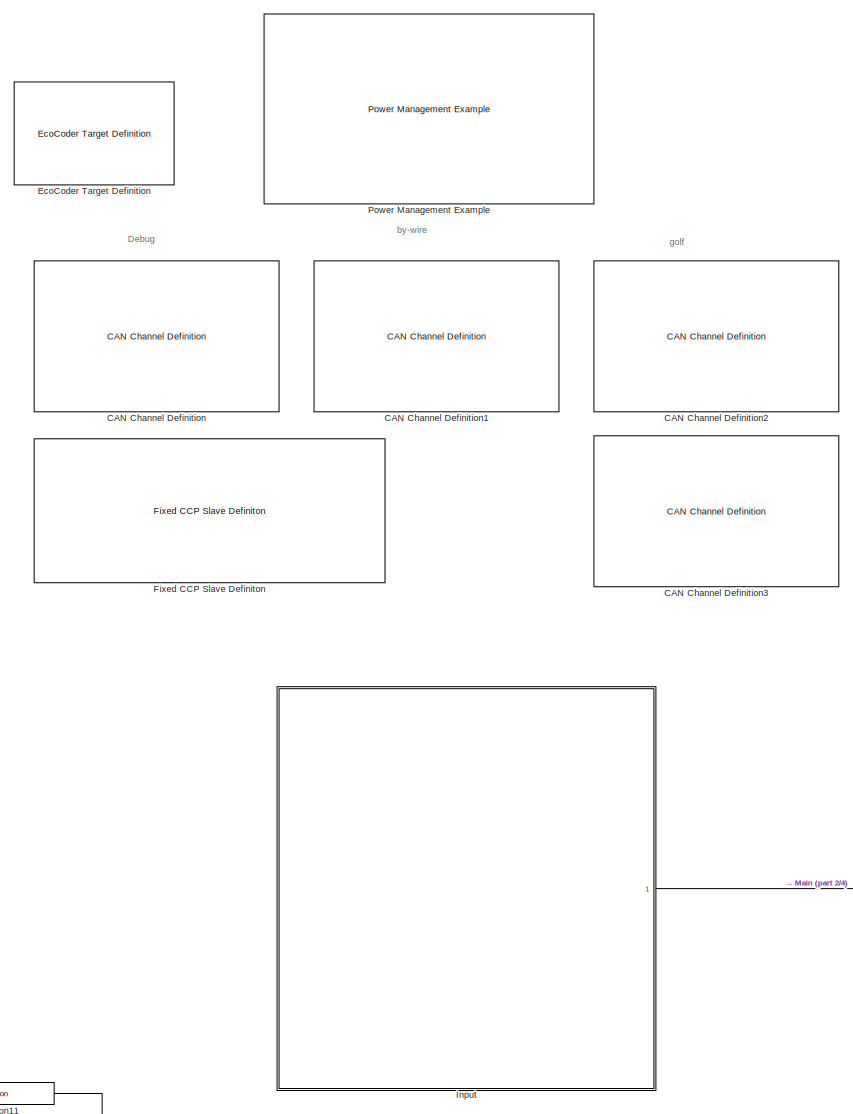
[diagram: root canvas - part 1/4, left side, full height]
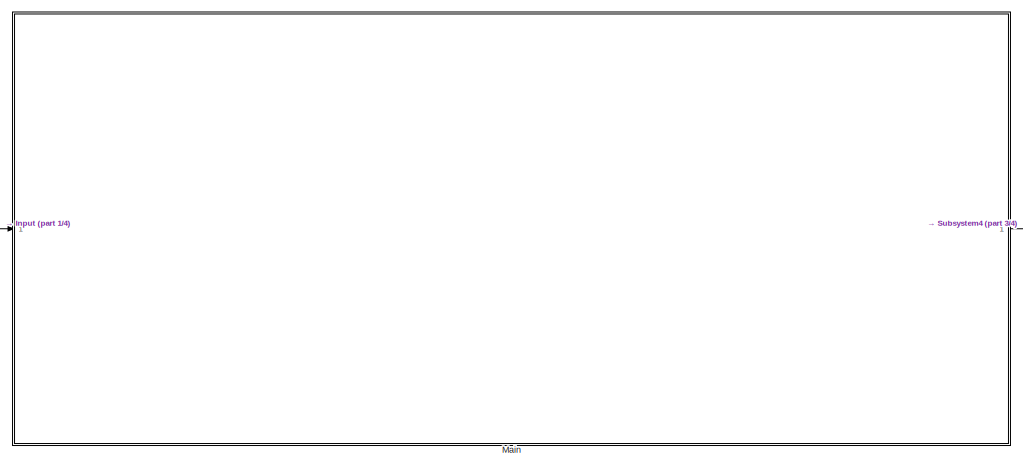
[diagram: root canvas - part 2/4, bottom center region]
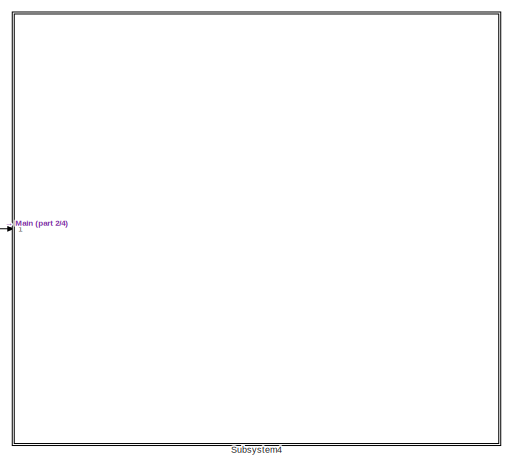
[diagram: root canvas - part 3/4, bottom right region]
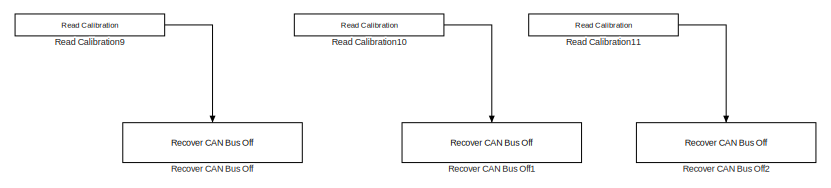
[diagram: root canvas - part 4/4, bottom left region]
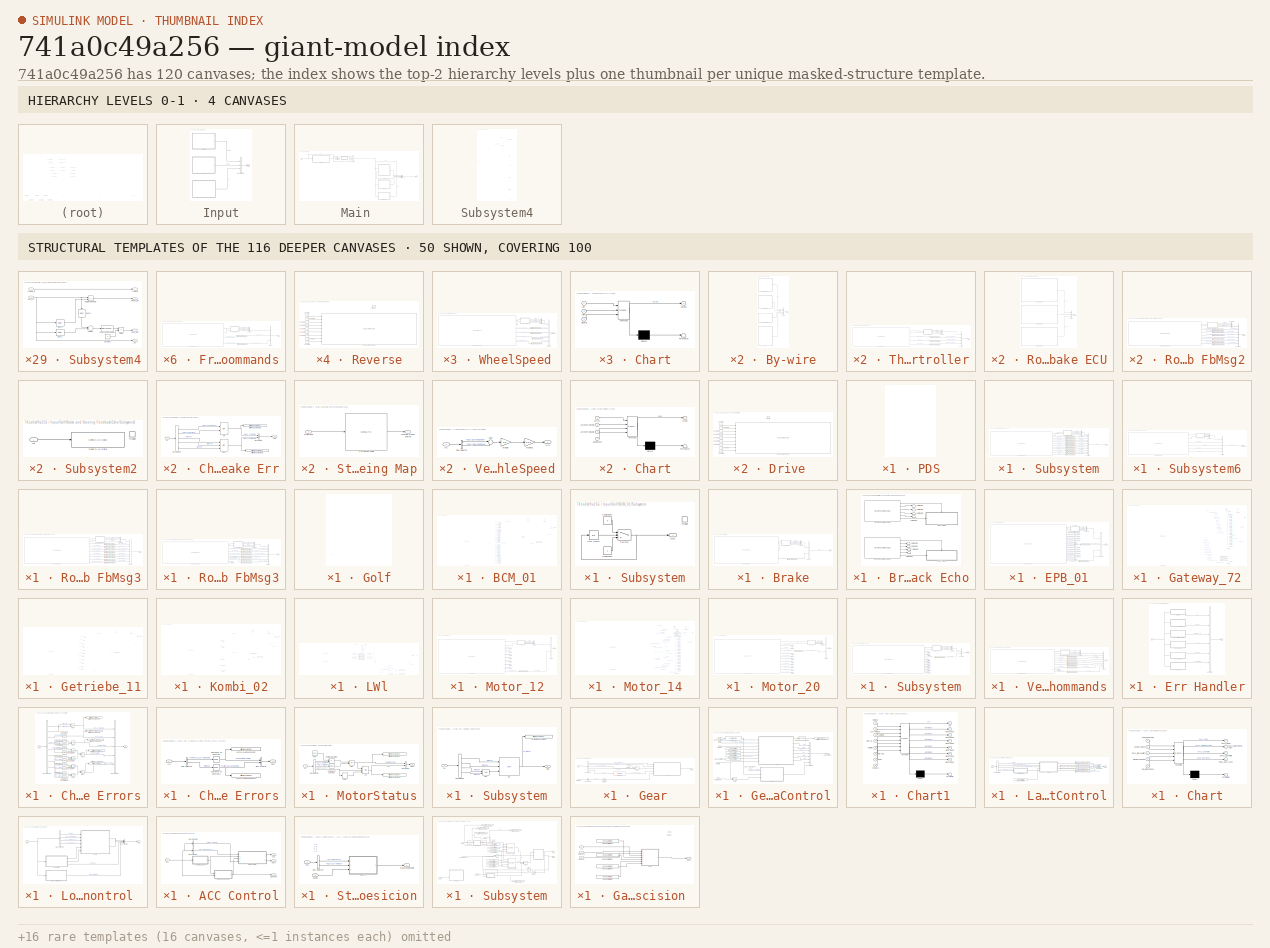
[diagram: thumbnail index - top-2 hierarchy levels (4 canvases) + 50 structural-template representatives of the remaining 116 canvases]
MODEL slx_741a0c49a256
KIND model
CONFIG AbsTol = auto
CONFIG EnableMultiTasking = on
CONFIG FixedStep = 0.001
CONFIG InitFcn = EcoCoder_PreCheckLic();\n
CONFIG MaxStep = auto
CONFIG MinStep = auto
CONFIG RelTol = 1e-3
CONFIG SampleTimeConstraint = Unconstrained
CONFIG Solver = FixedStepAuto
CONFIG SolverName = FixedStepAuto
CONFIG StartTime = 0.0
CONFIG StopTime = 1
BLOCK [Reference] CAN Channel Definition  REF=CoderSF_BSW_Libs/CAN/CAN Channel Definition
  Ports = []
  SourceBlock = CoderSF_BSW_Libs/CAN/CAN Channel Definition
  SourceProductName = EcoCoder Blocks
  SourceType = CAN Channel Definition
BLOCK [Reference] CAN Channel Definition1  REF=CoderSF_BSW_Libs/CAN/CAN Channel Definition
  Ports = []
  SourceBlock = CoderSF_BSW_Libs/CAN/CAN Channel Definition
  SourceProductName = EcoCoder Blocks
  SourceType = CAN Channel Definition
BLOCK [Reference] CAN Channel Definition2  REF=CoderSF_BSW_Libs/CAN/CAN Channel Definition
  Ports = []
  SourceBlock = CoderSF_BSW_Libs/CAN/CAN Channel Definition
  SourceProductName = EcoCoder Blocks
  SourceType = CAN Channel Definition
BLOCK [Reference] CAN Channel Definition3  REF=CoderSF_BSW_Libs/CAN/CAN Channel Definition
  Ports = []
  SourceBlock = CoderSF_BSW_Libs/CAN/CAN Channel Definition
  SourceProductName = EcoCoder Blocks
  SourceType = CAN Channel Definition
BLOCK [Reference] EcoCoder Target Definition  REF=CoderSF_BSW_Libs/EcoCoder Target Definition
  AttributesFormatString = Target :%<targetECU>
  Ports = []
  SourceBlock = CoderSF_BSW_Libs/EcoCoder Target Definition
  SourceProductName = EcoCoder Blocks
  SourceType = EcoCoder Target Definition
BLOCK [Reference] Fixed CCP Slave Definiton  REF=CoderSF_BSW_Libs/CCP/Fixed CCP Slave Definiton
  Ports = []
  SourceBlock = CoderSF_BSW_Libs/CCP/Fixed CCP Slave Definiton
  SourceProductName = EcoCoder Blocks
  SourceType = CCP21 Slave Definiton
BLOCK [SubSystem] Input
  Ports = [0, 1]
  RequestExecContextInheritance = off
BLOCK [BusCreator] Input/Bus Creator
  DisplayOption = bar
  InheritFromInputs = on
  Inputs = 3
  Ports = [3, 1]
BLOCK [SubSystem] Input/By-wire
  Ports = [0, 1]
  RequestExecContextInheritance = off
BLOCK [BusCreator] Input/By-wire/Bus Creator
  DisplayOption = bar
  InheritFromInputs = on
  Inputs = 4
  Ports = [4, 1]
BLOCK [SubSystem] Input/By-wire/PDS
  Ports = [0, 1]
  RequestExecContextInheritance = off
BLOCK [BusCreator] Input/By-wire/PDS/Bus Creator13
  DisplayOption = bar
  InheritFromInputs = on
  Inputs = 6
  Ports = [6, 1]
BLOCK [Outport] Input/By-wire/PDS/PDS
  IconDisplay = Port number
BLOCK [SubSystem] Input/By-wire/PDS/Subsystem
  Ports = [0, 1]
  RequestExecContextInheritance = off
BLOCK [BusCreator] Input/By-wire/PDS/Subsystem/Bus Creator1
  DisplayOption = bar
  InheritFromInputs = off
  Inputs = 4
  OutDataTypeStr = Bus: Msg
  Ports = [4, 1]
BLOCK [BusCreator] Input/By-wire/PDS/Subsystem/Bus Creator6
  DisplayOption = bar
  InheritFromInputs = on
  Inputs = 12
  Ports = [12, 1]
BLOCK [Reference] Input/By-wire/PDS/Subsystem/Read CAN Message  REF=SF_CanService_Libs/Read CAN Message
  Ports = [0, 13]
  SourceBlock = SF_CanService_Libs/Read CAN Message
  SourceType = Read CAN Message
BLOCK [Outport] Input/By-wire/PDS/Subsystem/Status
  IconDisplay = Port number
BLOCK [SubSystem] Input/By-wire/PDS/Subsystem/Subsystem4
  Ports = [2, 4]
  RequestExecContextInheritance = off
BLOCK [Outport] Input/By-wire/PDS/Subsystem/Subsystem4/Available 
  IconDisplay = Port number
BLOCK [Inport] Input/By-wire/PDS/Subsystem/Subsystem4/Available_in 
  IconDisplay = Port number
BLOCK [Outport] Input/By-wire/PDS/Subsystem/Subsystem4/Cnt
  IconDisplay = Port number
  Port = 2
BLOCK [Constant] Input/By-wire/PDS/Subsystem/Subsystem4/Constant
  OutDataTypeStr = single
  Value = 3
BLOCK [DataTypeConversion] Input/By-wire/PDS/Subsystem/Subsystem4/Data Type Conversion
  OutDataTypeStr = single
  RndMeth = Floor
  SaturateOnIntegerOverflow = off
BLOCK [Delay] Input/By-wire/PDS/Subsystem/Subsystem4/Delay1
  InitialCondition = 0
  InputPortMap = u0
  Ports = [1, 1]
  SampleTime = 0.5
BLOCK [Delay] Input/By-wire/PDS/Subsystem/Subsystem4/Delay2
  DelayLength = 6
  InitialCondition = 0
  InputPortMap = u0
  Ports = [1, 1]
  SampleTime = 0.5
BLOCK [Delay] Input/By-wire/PDS/Subsystem/Subsystem4/Delay3
  DelayLength = 0
  InitialCondition = 0
  InputPortMap = u0
  Ports = [1, 1]
  SampleTime = 0.5
BLOCK [Product] Input/By-wire/PDS/Subsystem/Subsystem4/Divide
  InputSameDT = off
  Inputs = */
  OutDataTypeStr = Inherit: Inherit via internal rule
  Ports = [2, 1]
  RndMeth = Floor
  SaturateOnIntegerOverflow = off
BLOCK [Outport] Input/By-wire/PDS/Subsystem/Subsystem4/Msg_Freq
  IconDisplay = Port number
  Port = 4
BLOCK [Inport] Input/By-wire/PDS/Subsystem/Subsystem4/Msg_cnt
  IconDisplay = Port number
  Port = 2
BLOCK [RelationalOperator] Input/By-wire/PDS/Subsystem/Subsystem4/Relational Operator
  InputSameDT = off
  Operator = ==
  OutDataTypeStr = boolean
  Ports = [2, 1]
  RndMeth = Simplest
BLOCK [Sum] Input/By-wire/PDS/Subsystem/Subsystem4/Subtract
  InputSameDT = off
  Inputs = +-
  OutDataTypeStr = Inherit: Inherit via internal rule
  Ports = [2, 1]
  SaturateOnIntegerOverflow = off
BLOCK [Outport] Input/By-wire/PDS/Subsystem/Subsystem4/Timeout_Err
  IconDisplay = Port number
  Port = 3
BLOCK [Reference] Input/By-wire/PDS/Subsystem/Write and Read Measurement  REF=CoderSF_BSW_Libs/Calibration & Measurement/Write and Read Measurement
  AttributesFormatString = type:%<variable_type> Dimensions:%<numD>
  Ports = [1, 1]
  SourceBlock = CoderSF_BSW_Libs/Calibration & Measurement/Write and Read Measurement
  SourceProductName = EcoCoder Blocks
  SourceType = Write and Read Measurement
BLOCK [Reference] Input/By-wire/PDS/Subsystem/Write and Read Measurement1  REF=CoderSF_BSW_Libs/Calibration & Measurement/Write and Read Measurement
  AttributesFormatString = type:%<variable_type> Dimensions:%<numD>
  Ports = [1, 1]
  SourceBlock = CoderSF_BSW_Libs/Calibration & Measurement/Write and Read Measurement
  SourceProductName = EcoCoder Blocks
  SourceType = Write and Read Measurement
BLOCK [Reference] Input/By-wire/PDS/Subsystem/Write and Read Measurement10  REF=CoderSF_BSW_Libs/Calibration & Measurement/Write and Read Measurement
  AttributesFormatString = type:%<variable_type> Dimensions:%<numD>
  Ports = [1, 1]
  SourceBlock = CoderSF_BSW_Libs/Calibration & Measurement/Write and Read Measurement
  SourceProductName = EcoCoder Blocks
  SourceType = Write and Read Measurement
BLOCK [Reference] Input/By-wire/PDS/Subsystem/Write and Read Measurement2  REF=CoderSF_BSW_Libs/Calibration & Measurement/Write and Read Measurement
  AttributesFormatString = type:%<variable_type> Dimensions:%<numD>
  Ports = [1, 1]
  SourceBlock = CoderSF_BSW_Libs/Calibration & Measurement/Write and Read Measurement
  SourceProductName = EcoCoder Blocks
  SourceType = Write and Read Measurement
BLOCK [Reference] Input/By-wire/PDS/Subsystem/Write and Read Measurement3  REF=CoderSF_BSW_Libs/Calibration & Measurement/Write and Read Measurement
  AttributesFormatString = type:%<variable_type> Dimensions:%<numD>
  Ports = [1, 1]
  SourceBlock = CoderSF_BSW_Libs/Calibration & Measurement/Write and Read Measurement
  SourceProductName = EcoCoder Blocks
  SourceType = Write and Read Measurement
BLOCK [Reference] Input/By-wire/PDS/Subsystem/Write and Read Measurement4  REF=CoderSF_BSW_Libs/Calibration & Measurement/Write and Read Measurement
  AttributesFormatString = type:%<variable_type> Dimensions:%<numD>
  Ports = [1, 1]
  SourceBlock = CoderSF_BSW_Libs/Calibration & Measurement/Write and Read Measurement
  SourceProductName = EcoCoder Blocks
  SourceType = Write and Read Measurement
BLOCK [Reference] Input/By-wire/PDS/Subsystem/Write and Read Measurement5  REF=CoderSF_BSW_Libs/Calibration & Measurement/Write and Read Measurement
  AttributesFormatString = type:%<variable_type> Dimensions:%<numD>
  Ports = [1, 1]
  SourceBlock = CoderSF_BSW_Libs/Calibration & Measurement/Write and Read Measurement
  SourceProductName = EcoCoder Blocks
  SourceType = Write and Read Measurement
BLOCK [Reference] Input/By-wire/PDS/Subsystem/Write and Read Measurement6  REF=CoderSF_BSW_Libs/Calibration & Measurement/Write and Read Measurement
  AttributesFormatString = type:%<variable_type> Dimensions:%<numD>
  Ports = [1, 1]
  SourceBlock = CoderSF_BSW_Libs/Calibration & Measurement/Write and Read Measurement
  SourceProductName = EcoCoder Blocks
  SourceType = Write and Read Measurement
BLOCK [Reference] Input/By-wire/PDS/Subsystem/Write and Read Measurement7  REF=CoderSF_BSW_Libs/Calibration & Measurement/Write and Read Measurement
  AttributesFormatString = type:%<variable_type> Dimensions:%<numD>
  Ports = [1, 1]
  SourceBlock = CoderSF_BSW_Libs/Calibration & Measurement/Write and Read Measurement
  SourceProductName = EcoCoder Blocks
  SourceType = Write and Read Measurement
BLOCK [Reference] Input/By-wire/PDS/Subsystem/Write and Read Measurement8  REF=CoderSF_BSW_Libs/Calibration & Measurement/Write and Read Measurement
  AttributesFormatString = type:%<variable_type> Dimensions:%<numD>
  Ports = [1, 1]
  SourceBlock = CoderSF_BSW_Libs/Calibration & Measurement/Write and Read Measurement
  SourceProductName = EcoCoder Blocks
  SourceType = Write and Read Measurement
BLOCK [Reference] Input/By-wire/PDS/Subsystem/Write and Read Measurement9  REF=CoderSF_BSW_Libs/Calibration & Measurement/Write and Read Measurement
  AttributesFormatString = type:%<variable_type> Dimensions:%<numD>
  Ports = [1, 1]
  SourceBlock = CoderSF_BSW_Libs/Calibration & Measurement/Write and Read Measurement
  SourceProductName = EcoCoder Blocks
  SourceType = Write and Read Measurement
BLOCK [SubSystem] Input/By-wire/PDS/Subsystem1
  Ports = [0, 1]
  RequestExecContextInheritance = off
BLOCK [BusCreator] Input/By-wire/PDS/Subsystem1/Bus Creator7
  DisplayOption = bar
  InheritFromInputs = on
  Inputs = 3
  Ports = [3, 1]
BLOCK [BusCreator] Input/By-wire/PDS/Subsystem1/Bus Creator8
  DisplayOption = bar
  InheritFromInputs = off
  Inputs = 4
  OutDataTypeStr = Bus: Msg
  Ports = [4, 1]
BLOCK [Outport] Input/By-wire/PDS/Subsystem1/Current3
  IconDisplay = Port number
BLOCK [Reference] Input/By-wire/PDS/Subsystem1/Read CAN Message4  REF=SF_CanService_Libs/Read CAN Message
  Ports = [0, 4]
  SourceBlock = SF_CanService_Libs/Read CAN Message
  SourceType = Read CAN Message
BLOCK [SubSystem] Input/By-wire/PDS/Subsystem1/Subsystem6
  Ports = [2, 4]
  RequestExecContextInheritance = off
BLOCK [Outport] Input/By-wire/PDS/Subsystem1/Subsystem6/Available 
  IconDisplay = Port number
BLOCK [Inport] Input/By-wire/PDS/Subsystem1/Subsystem6/Available_in 
  IconDisplay = Port number
BLOCK [Outport] Input/By-wire/PDS/Subsystem1/Subsystem6/Cnt
  IconDisplay = Port number
  Port = 2
BLOCK [Constant] Input/By-wire/PDS/Subsystem1/Subsystem6/Constant
  OutDataTypeStr = single
  Value = 3
BLOCK [DataTypeConversion] Input/By-wire/PDS/Subsystem1/Subsystem6/Data Type Conversion
  OutDataTypeStr = single
  RndMeth = Floor
  SaturateOnIntegerOverflow = off
BLOCK [Delay] Input/By-wire/PDS/Subsystem1/Subsystem6/Delay1
  InitialCondition = 0
  InputPortMap = u0
  Ports = [1, 1]
  SampleTime = 0.5
BLOCK [Delay] Input/By-wire/PDS/Subsystem1/Subsystem6/Delay2
  DelayLength = 6
  InitialCondition = 0
  InputPortMap = u0
  Ports = [1, 1]
  SampleTime = 0.5
BLOCK [Delay] Input/By-wire/PDS/Subsystem1/Subsystem6/Delay3
  DelayLength = 0
  InitialCondition = 0
  InputPortMap = u0
  Ports = [1, 1]
  SampleTime = 0.5
BLOCK [Product] Input/By-wire/PDS/Subsystem1/Subsystem6/Divide
  InputSameDT = off
  Inputs = */
  OutDataTypeStr = Inherit: Inherit via internal rule
  Ports = [2, 1]
  RndMeth = Floor
  SaturateOnIntegerOverflow = off
BLOCK [Outport] Input/By-wire/PDS/Subsystem1/Subsystem6/Msg_Freq
  IconDisplay = Port number
  Port = 4
BLOCK [Inport] Input/By-wire/PDS/Subsystem1/Subsystem6/Msg_cnt
  IconDisplay = Port number
  Port = 2
BLOCK [RelationalOperator] Input/By-wire/PDS/Subsystem1/Subsystem6/Relational Operator
  InputSameDT = off
  Operator = ==
  OutDataTypeStr = boolean
  Ports = [2, 1]
  RndMeth = Simplest
BLOCK [Sum] Input/By-wire/PDS/Subsystem1/Subsystem6/Subtract
  InputSameDT = off
  Inputs = +-
  OutDataTypeStr = Inherit: Inherit via internal rule
  Ports = [2, 1]
  SaturateOnIntegerOverflow = off
BLOCK [Outport] Input/By-wire/PDS/Subsystem1/Subsystem6/Timeout_Err
  IconDisplay = Port number
  Port = 3
BLOCK [Reference] Input/By-wire/PDS/Subsystem1/Write and Read Measurement  REF=CoderSF_BSW_Libs/Calibration & Measurement/Write and Read Measurement
  AttributesFormatString = type:%<variable_type> Dimensions:%<numD>
  Ports = [1, 1]
  SourceBlock = CoderSF_BSW_Libs/Calibration & Measurement/Write and Read Measurement
  SourceProductName = EcoCoder Blocks
  SourceType = Write and Read Measurement
BLOCK [Reference] Input/By-wire/PDS/Subsystem1/Write and Read Measurement1  REF=CoderSF_BSW_Libs/Calibration & Measurement/Write and Read Measurement
  AttributesFormatString = type:%<variable_type> Dimensions:%<numD>
  Ports = [1, 1]
  SourceBlock = CoderSF_BSW_Libs/Calibration & Measurement/Write and Read Measurement
  SourceProductName = EcoCoder Blocks
  SourceType = Write and Read Measurement
BLOCK [SubSystem] Input/By-wire/PDS/Subsystem2
  Ports = [0, 1]
  RequestExecContextInheritance = off
BLOCK [BusCreator] Input/By-wire/PDS/Subsystem2/Bus Creator4
  DisplayOption = bar
  InheritFromInputs = on
  Inputs = 5
  Ports = [5, 1]
BLOCK [BusCreator] Input/By-wire/PDS/Subsystem2/Bus Creator5
  DisplayOption = bar
  InheritFromInputs = off
  Inputs = 4
  OutDataTypeStr = Bus: Msg
  Ports = [4, 1]
BLOCK [Outport] Input/By-wire/PDS/Subsystem2/Current2
  IconDisplay = Port number
BLOCK [Reference] Input/By-wire/PDS/Subsystem2/Read CAN Message3  REF=SF_CanService_Libs/Read CAN Message
  Ports = [0, 6]
  SourceBlock = SF_CanService_Libs/Read CAN Message
  SourceType = Read CAN Message
BLOCK [SubSystem] Input/By-wire/PDS/Subsystem2/Subsystem1
  Ports = [2, 4]
  RequestExecContextInheritance = off
BLOCK [Outport] Input/By-wire/PDS/Subsystem2/Subsystem1/Available 
  IconDisplay = Port number
BLOCK [Inport] Input/By-wire/PDS/Subsystem2/Subsystem1/Available_in 
  IconDisplay = Port number
BLOCK [Outport] Input/By-wire/PDS/Subsystem2/Subsystem1/Cnt
  IconDisplay = Port number
  Port = 2
BLOCK [Constant] Input/By-wire/PDS/Subsystem2/Subsystem1/Constant
  OutDataTypeStr = single
  Value = 3
BLOCK [DataTypeConversion] Input/By-wire/PDS/Subsystem2/Subsystem1/Data Type Conversion
  OutDataTypeStr = single
  RndMeth = Floor
  SaturateOnIntegerOverflow = off
BLOCK [Delay] Input/By-wire/PDS/Subsystem2/Subsystem1/Delay1
  InitialCondition = 0
  InputPortMap = u0
  Ports = [1, 1]
  SampleTime = 0.5
BLOCK [Delay] Input/By-wire/PDS/Subsystem2/Subsystem1/Delay2
  DelayLength = 6
  InitialCondition = 0
  InputPortMap = u0
  Ports = [1, 1]
  SampleTime = 0.5
BLOCK [Delay] Input/By-wire/PDS/Subsystem2/Subsystem1/Delay3
  DelayLength = 0
  InitialCondition = 0
  InputPortMap = u0
  Ports = [1, 1]
  SampleTime = 0.5
BLOCK [Product] Input/By-wire/PDS/Subsystem2/Subsystem1/Divide
  InputSameDT = off
  Inputs = */
  OutDataTypeStr = Inherit: Inherit via internal rule
  Ports = [2, 1]
  RndMeth = Floor
  SaturateOnIntegerOverflow = off
BLOCK [Outport] Input/By-wire/PDS/Subsystem2/Subsystem1/Msg_Freq
  IconDisplay = Port number
  Port = 4
BLOCK [Inport] Input/By-wire/PDS/Subsystem2/Subsystem1/Msg_cnt
  IconDisplay = Port number
  Port = 2
BLOCK [RelationalOperator] Input/By-wire/PDS/Subsystem2/Subsystem1/Relational Operator
  InputSameDT = off
  Operator = ==
  OutDataTypeStr = boolean
  Ports = [2, 1]
  RndMeth = Simplest
BLOCK [Sum] Input/By-wire/PDS/Subsystem2/Subsystem1/Subtract
  InputSameDT = off
  Inputs = +-
  OutDataTypeStr = Inherit: Inherit via internal rule
  Ports = [2, 1]
  SaturateOnIntegerOverflow = off
BLOCK [Outport] Input/By-wire/PDS/Subsystem2/Subsystem1/Timeout_Err
  IconDisplay = Port number
  Port = 3
BLOCK [Reference] Input/By-wire/PDS/Subsystem2/Write and Read Measurement  REF=CoderSF_BSW_Libs/Calibration & Measurement/Write and Read Measurement
  AttributesFormatString = type:%<variable_type> Dimensions:%<numD>
  Ports = [1, 1]
  SourceBlock = CoderSF_BSW_Libs/Calibration & Measurement/Write and Read Measurement
  SourceProductName = EcoCoder Blocks
  SourceType = Write and Read Measurement
BLOCK [Reference] Input/By-wire/PDS/Subsystem2/Write and Read Measurement1  REF=CoderSF_BSW_Libs/Calibration & Measurement/Write and Read Measurement
  AttributesFormatString = type:%<variable_type> Dimensions:%<numD>
  Ports = [1, 1]
  SourceBlock = CoderSF_BSW_Libs/Calibration & Measurement/Write and Read Measurement
  SourceProductName = EcoCoder Blocks
  SourceType = Write and Read Measurement
BLOCK [Reference] Input/By-wire/PDS/Subsystem2/Write and Read Measurement2  REF=CoderSF_BSW_Libs/Calibration & Measurement/Write and Read Measurement
  AttributesFormatString = type:%<variable_type> Dimensions:%<numD>
  Ports = [1, 1]
  SourceBlock = CoderSF_BSW_Libs/Calibration & Measurement/Write and Read Measurement
  SourceProductName = EcoCoder Blocks
  SourceType = Write and Read Measurement
BLOCK [Reference] Input/By-wire/PDS/Subsystem2/Write and Read Measurement3  REF=CoderSF_BSW_Libs/Calibration & Measurement/Write and Read Measurement
  AttributesFormatString = type:%<variable_type> Dimensions:%<numD>
  Ports = [1, 1]
  SourceBlock = CoderSF_BSW_Libs/Calibration & Measurement/Write and Read Measurement
  SourceProductName = EcoCoder Blocks
  SourceType = Write and Read Measurement
BLOCK [SubSystem] Input/By-wire/PDS/Subsystem3
  Ports = [0, 1]
  RequestExecContextInheritance = off
BLOCK [BusCreator] Input/By-wire/PDS/Subsystem3/Bus Creator10
  DisplayOption = bar
  InheritFromInputs = on
  Inputs = 5
  Ports = [5, 1]
BLOCK [BusCreator] Input/By-wire/PDS/Subsystem3/Bus Creator3
  DisplayOption = bar
  InheritFromInputs = off
  Inputs = 4
  OutDataTypeStr = Bus: Msg
  Ports = [4, 1]
BLOCK [Outport] Input/By-wire/PDS/Subsystem3/Current1
  IconDisplay = Port number
BLOCK [Reference] Input/By-wire/PDS/Subsystem3/Read CAN Message2  REF=SF_CanService_Libs/Read CAN Message
  Ports = [0, 6]
  SourceBlock = SF_CanService_Libs/Read CAN Message
  SourceType = Read CAN Message
BLOCK [SubSystem] Input/By-wire/PDS/Subsystem3/Subsystem2
  Ports = [2, 4]
  RequestExecContextInheritance = off
BLOCK [Outport] Input/By-wire/PDS/Subsystem3/Subsystem2/Available 
  IconDisplay = Port number
BLOCK [Inport] Input/By-wire/PDS/Subsystem3/Subsystem2/Available_in 
  IconDisplay = Port number
BLOCK [Outport] Input/By-wire/PDS/Subsystem3/Subsystem2/Cnt
  IconDisplay = Port number
  Port = 2
BLOCK [Constant] Input/By-wire/PDS/Subsystem3/Subsystem2/Constant
  OutDataTypeStr = single
  Value = 3
BLOCK [DataTypeConversion] Input/By-wire/PDS/Subsystem3/Subsystem2/Data Type Conversion
  OutDataTypeStr = single
  RndMeth = Floor
  SaturateOnIntegerOverflow = off
BLOCK [Delay] Input/By-wire/PDS/Subsystem3/Subsystem2/Delay1
  InitialCondition = 0
  InputPortMap = u0
  Ports = [1, 1]
  SampleTime = 0.5
BLOCK [Delay] Input/By-wire/PDS/Subsystem3/Subsystem2/Delay2
  DelayLength = 6
  InitialCondition = 0
  InputPortMap = u0
  Ports = [1, 1]
  SampleTime = 0.5
BLOCK [Delay] Input/By-wire/PDS/Subsystem3/Subsystem2/Delay3
  DelayLength = 0
  InitialCondition = 0
  InputPortMap = u0
  Ports = [1, 1]
  SampleTime = 0.5
BLOCK [Product] Input/By-wire/PDS/Subsystem3/Subsystem2/Divide
  InputSameDT = off
  Inputs = */
  OutDataTypeStr = Inherit: Inherit via internal rule
  Ports = [2, 1]
  RndMeth = Floor
  SaturateOnIntegerOverflow = off
BLOCK [Outport] Input/By-wire/PDS/Subsystem3/Subsystem2/Msg_Freq
  IconDisplay = Port number
  Port = 4
BLOCK [Inport] Input/By-wire/PDS/Subsystem3/Subsystem2/Msg_cnt
  IconDisplay = Port number
  Port = 2
BLOCK [RelationalOperator] Input/By-wire/PDS/Subsystem3/Subsystem2/Relational Operator
  InputSameDT = off
  Operator = ==
  OutDataTypeStr = boolean
  Ports = [2, 1]
  RndMeth = Simplest
BLOCK [Sum] Input/By-wire/PDS/Subsystem3/Subsystem2/Subtract
  InputSameDT = off
  Inputs = +-
  OutDataTypeStr = Inherit: Inherit via internal rule
  Ports = [2, 1]
  SaturateOnIntegerOverflow = off
BLOCK [Outport] Input/By-wire/PDS/Subsystem3/Subsystem2/Timeout_Err
  IconDisplay = Port number
  Port = 3
BLOCK [Reference] Input/By-wire/PDS/Subsystem3/Write and Read Measurement  REF=CoderSF_BSW_Libs/Calibration & Measurement/Write and Read Measurement
  AttributesFormatString = type:%<variable_type> Dimensions:%<numD>
  Ports = [1, 1]
  SourceBlock = CoderSF_BSW_Libs/Calibration & Measurement/Write and Read Measurement
  SourceProductName = EcoCoder Blocks
  SourceType = Write and Read Measurement
BLOCK [Reference] Input/By-wire/PDS/Subsystem3/Write and Read Measurement1  REF=CoderSF_BSW_Libs/Calibration & Measurement/Write and Read Measurement
  AttributesFormatString = type:%<variable_type> Dimensions:%<numD>
  Ports = [1, 1]
  SourceBlock = CoderSF_BSW_Libs/Calibration & Measurement/Write and Read Measurement
  SourceProductName = EcoCoder Blocks
  SourceType = Write and Read Measurement
BLOCK [Reference] Input/By-wire/PDS/Subsystem3/Write and Read Measurement2  REF=CoderSF_BSW_Libs/Calibration & Measurement/Write and Read Measurement
  AttributesFormatString = type:%<variable_type> Dimensions:%<numD>
  Ports = [1, 1]
  SourceBlock = CoderSF_BSW_Libs/Calibration & Measurement/Write and Read Measurement
  SourceProductName = EcoCoder Blocks
  SourceType = Write and Read Measurement
BLOCK [Reference] Input/By-wire/PDS/Subsystem3/Write and Read Measurement3  REF=CoderSF_BSW_Libs/Calibration & Measurement/Write and Read Measurement
  AttributesFormatString = type:%<variable_type> Dimensions:%<numD>
  Ports = [1, 1]
  SourceBlock = CoderSF_BSW_Libs/Calibration & Measurement/Write and Read Measurement
  SourceProductName = EcoCoder Blocks
  SourceType = Write and Read Measurement
BLOCK [SubSystem] Input/By-wire/PDS/Subsystem4
  Ports = [0, 1]
  RequestExecContextInheritance = off
BLOCK [BusCreator] Input/By-wire/PDS/Subsystem4/Bus Creator2
  DisplayOption = bar
  InheritFromInputs = off
  Inputs = 4
  OutDataTypeStr = Bus: Msg
  Ports = [4, 1]
BLOCK [BusCreator] Input/By-wire/PDS/Subsystem4/Bus Creator9
  DisplayOption = bar
  InheritFromInputs = on
  Inputs = 4
  Ports = [4, 1]
BLOCK [Reference] Input/By-wire/PDS/Subsystem4/Read CAN Message1  REF=SF_CanService_Libs/Read CAN Message
  Ports = [0, 5]
  SourceBlock = SF_CanService_Libs/Read CAN Message
  SourceType = Read CAN Message
BLOCK [Outport] Input/By-wire/PDS/Subsystem4/Status2
  IconDisplay = Port number
BLOCK [SubSystem] Input/By-wire/PDS/Subsystem4/Subsystem3
  Ports = [2, 4]
  RequestExecContextInheritance = off
BLOCK [Outport] Input/By-wire/PDS/Subsystem4/Subsystem3/Available 
  IconDisplay = Port number
BLOCK [Inport] Input/By-wire/PDS/Subsystem4/Subsystem3/Available_in 
  IconDisplay = Port number
BLOCK [Outport] Input/By-wire/PDS/Subsystem4/Subsystem3/Cnt
  IconDisplay = Port number
  Port = 2
BLOCK [Constant] Input/By-wire/PDS/Subsystem4/Subsystem3/Constant
  OutDataTypeStr = single
  Value = 3
BLOCK [DataTypeConversion] Input/By-wire/PDS/Subsystem4/Subsystem3/Data Type Conversion
  OutDataTypeStr = single
  RndMeth = Floor
  SaturateOnIntegerOverflow = off
BLOCK [Delay] Input/By-wire/PDS/Subsystem4/Subsystem3/Delay1
  InitialCondition = 0
  InputPortMap = u0
  Ports = [1, 1]
  SampleTime = 0.5
BLOCK [Delay] Input/By-wire/PDS/Subsystem4/Subsystem3/Delay2
  DelayLength = 6
  InitialCondition = 0
  InputPortMap = u0
  Ports = [1, 1]
  SampleTime = 0.5
BLOCK [Delay] Input/By-wire/PDS/Subsystem4/Subsystem3/Delay3
  DelayLength = 0
  InitialCondition = 0
  InputPortMap = u0
  Ports = [1, 1]
  SampleTime = 0.5
BLOCK [Product] Input/By-wire/PDS/Subsystem4/Subsystem3/Divide
  InputSameDT = off
  Inputs = */
  OutDataTypeStr = Inherit: Inherit via internal rule
  Ports = [2, 1]
  RndMeth = Floor
  SaturateOnIntegerOverflow = off
BLOCK [Outport] Input/By-wire/PDS/Subsystem4/Subsystem3/Msg_Freq
  IconDisplay = Port number
  Port = 4
BLOCK [Inport] Input/By-wire/PDS/Subsystem4/Subsystem3/Msg_cnt
  IconDisplay = Port number
  Port = 2
BLOCK [RelationalOperator] Input/By-wire/PDS/Subsystem4/Subsystem3/Relational Operator
  InputSameDT = off
  Operator = ==
  OutDataTypeStr = boolean
  Ports = [2, 1]
  RndMeth = Simplest
BLOCK [Sum] Input/By-wire/PDS/Subsystem4/Subsystem3/Subtract
  InputSameDT = off
  Inputs = +-
  OutDataTypeStr = Inherit: Inherit via internal rule
  Ports = [2, 1]
  SaturateOnIntegerOverflow = off
BLOCK [Outport] Input/By-wire/PDS/Subsystem4/Subsystem3/Timeout_Err
  IconDisplay = Port number
  Port = 3
BLOCK [Reference] Input/By-wire/PDS/Subsystem4/Write and Read Measurement  REF=CoderSF_BSW_Libs/Calibration & Measurement/Write and Read Measurement
  AttributesFormatString = type:%<variable_type> Dimensions:%<numD>
  Ports = [1, 1]
  SourceBlock = CoderSF_BSW_Libs/Calibration & Measurement/Write and Read Measurement
  SourceProductName = EcoCoder Blocks
  SourceType = Write and Read Measurement
BLOCK [Reference] Input/By-wire/PDS/Subsystem4/Write and Read Measurement1  REF=CoderSF_BSW_Libs/Calibration & Measurement/Write and Read Measurement
  AttributesFormatString = type:%<variable_type> Dimensions:%<numD>
  Ports = [1, 1]
  SourceBlock = CoderSF_BSW_Libs/Calibration & Measurement/Write and Read Measurement
  SourceProductName = EcoCoder Blocks
  SourceType = Write and Read Measurement
BLOCK [Reference] Input/By-wire/PDS/Subsystem4/Write and Read Measurement2  REF=CoderSF_BSW_Libs/Calibration & Measurement/Write and Read Measurement
  AttributesFormatString = type:%<variable_type> Dimensions:%<numD>
  Ports = [1, 1]
  SourceBlock = CoderSF_BSW_Libs/Calibration & Measurement/Write and Read Measurement
  SourceProductName = EcoCoder Blocks
  SourceType = Write and Read Measurement
BLOCK [SubSystem] Input/By-wire/PDS/Subsystem6
  Ports = [0, 1]
  RequestExecContextInheritance = off
BLOCK [BusCreator] Input/By-wire/PDS/Subsystem6/Bus Creator11
  DisplayOption = bar
  InheritFromInputs = off
  Inputs = 4
  OutDataTypeStr = Bus: Msg
  Ports = [4, 1]
BLOCK [BusCreator] Input/By-wire/PDS/Subsystem6/Bus Creator12
  DisplayOption = bar
  InheritFromInputs = on
  Inputs = 5
  Ports = [5, 1]
BLOCK [Reference] Input/By-wire/PDS/Subsystem6/Read CAN Message5  REF=SF_CanService_Libs/Read CAN Message
  Ports = [0, 6]
  SourceBlock = SF_CanService_Libs/Read CAN Message
  SourceType = Read CAN Message
BLOCK [SubSystem] Input/By-wire/PDS/Subsystem6/Subsystem5
  Ports = [2, 4]
  RequestExecContextInheritance = off
BLOCK [Outport] Input/By-wire/PDS/Subsystem6/Subsystem5/Available 
  IconDisplay = Port number
BLOCK [Inport] Input/By-wire/PDS/Subsystem6/Subsystem5/Available_in 
  IconDisplay = Port number
BLOCK [Outport] Input/By-wire/PDS/Subsystem6/Subsystem5/Cnt
  IconDisplay = Port number
  Port = 2
BLOCK [Constant] Input/By-wire/PDS/Subsystem6/Subsystem5/Constant
  OutDataTypeStr = single
  Value = 3
BLOCK [DataTypeConversion] Input/By-wire/PDS/Subsystem6/Subsystem5/Data Type Conversion
  OutDataTypeStr = single
  RndMeth = Floor
  SaturateOnIntegerOverflow = off
BLOCK [Delay] Input/By-wire/PDS/Subsystem6/Subsystem5/Delay1
  InitialCondition = 0
  InputPortMap = u0
  Ports = [1, 1]
  SampleTime = 0.5
BLOCK [Delay] Input/By-wire/PDS/Subsystem6/Subsystem5/Delay2
  DelayLength = 6
  InitialCondition = 0
  InputPortMap = u0
  Ports = [1, 1]
  SampleTime = 0.5
BLOCK [Delay] Input/By-wire/PDS/Subsystem6/Subsystem5/Delay3
  DelayLength = 0
  InitialCondition = 0
  InputPortMap = u0
  Ports = [1, 1]
  SampleTime = 0.5
BLOCK [Product] Input/By-wire/PDS/Subsystem6/Subsystem5/Divide
  InputSameDT = off
  Inputs = */
  OutDataTypeStr = Inherit: Inherit via internal rule
  Ports = [2, 1]
  RndMeth = Floor
  SaturateOnIntegerOverflow = off
BLOCK [Outport] Input/By-wire/PDS/Subsystem6/Subsystem5/Msg_Freq
  IconDisplay = Port number
  Port = 4
BLOCK [Inport] Input/By-wire/PDS/Subsystem6/Subsystem5/Msg_cnt
  IconDisplay = Port number
  Port = 2
BLOCK [RelationalOperator] Input/By-wire/PDS/Subsystem6/Subsystem5/Relational Operator
  InputSameDT = off
  Operator = ==
  OutDataTypeStr = boolean
  Ports = [2, 1]
  RndMeth = Simplest
BLOCK [Sum] Input/By-wire/PDS/Subsystem6/Subsystem5/Subtract
  InputSameDT = off
  Inputs = +-
  OutDataTypeStr = Inherit: Inherit via internal rule
  Ports = [2, 1]
  SaturateOnIntegerOverflow = off
BLOCK [Outport] Input/By-wire/PDS/Subsystem6/Subsystem5/Timeout_Err
  IconDisplay = Port number
  Port = 3
BLOCK [Outport] Input/By-wire/PDS/Subsystem6/UnitedChannels
  IconDisplay = Port number
BLOCK [SubSystem] Input/By-wire/Robeff Brake ECU
  Ports = [0, 1]
  RequestExecContextInheritance = off
BLOCK [BusCreator] Input/By-wire/Robeff Brake ECU/Bus Creator
  DisplayOption = bar
  InheritFromInputs = on
  Inputs = 3
  Ports = [3, 1]
BLOCK [Outport] Input/By-wire/Robeff Brake ECU/RBF_Brake
  IconDisplay = Port number
BLOCK [SubSystem] Input/By-wire/Robeff Brake ECU/Robeff Brake FbMsg1
  Ports = [0, 1]
  RequestExecContextInheritance = off
BLOCK [BusCreator] Input/By-wire/Robeff Brake ECU/Robeff Brake FbMsg1/Bus Creator
  DisplayOption = bar
  InheritFromInputs = on
  Inputs = 3
  Ports = [3, 1]
BLOCK [BusCreator] Input/By-wire/Robeff Brake ECU/Robeff Brake FbMsg1/Bus Creator1
  DisplayOption = bar
  InheritFromInputs = off
  Inputs = 4
  OutDataTypeStr = Bus: Msg
  Ports = [4, 1]
BLOCK [Outport] Input/By-wire/Robeff Brake ECU/Robeff Brake FbMsg1/Msg1
  IconDisplay = Port number
BLOCK [Reference] Input/By-wire/Robeff Brake ECU/Robeff Brake FbMsg1/Read CAN Message2  REF=SF_CanService_Libs/Read CAN Message
  Ports = [0, 4]
  SourceBlock = SF_CanService_Libs/Read CAN Message
  SourceType = Read CAN Message
BLOCK [SubSystem] Input/By-wire/Robeff Brake ECU/Robeff Brake FbMsg1/Subsystem4
  Ports = [2, 4]
  RequestExecContextInheritance = off
BLOCK [Outport] Input/By-wire/Robeff Brake ECU/Robeff Brake FbMsg1/Subsystem4/Available 
  IconDisplay = Port number
BLOCK [Inport] Input/By-wire/Robeff Brake ECU/Robeff Brake FbMsg1/Subsystem4/Available_in 
  IconDisplay = Port number
BLOCK [Outport] Input/By-wire/Robeff Brake ECU/Robeff Brake FbMsg1/Subsystem4/Cnt
  IconDisplay = Port number
  Port = 2
BLOCK [Constant] Input/By-wire/Robeff Brake ECU/Robeff Brake FbMsg1/Subsystem4/Constant
  OutDataTypeStr = single
  Value = 3
BLOCK [DataTypeConversion] Input/By-wire/Robeff Brake ECU/Robeff Brake FbMsg1/Subsystem4/Data Type Conversion
  OutDataTypeStr = single
  RndMeth = Floor
  SaturateOnIntegerOverflow = off
BLOCK [Delay] Input/By-wire/Robeff Brake ECU/Robeff Brake FbMsg1/Subsystem4/Delay1
  InitialCondition = 0
  InputPortMap = u0
  Ports = [1, 1]
  SampleTime = 0.5
BLOCK [Delay] Input/By-wire/Robeff Brake ECU/Robeff Brake FbMsg1/Subsystem4/Delay2
  DelayLength = 6
  InitialCondition = 0
  InputPortMap = u0
  Ports = [1, 1]
  SampleTime = 0.5
BLOCK [Delay] Input/By-wire/Robeff Brake ECU/Robeff Brake FbMsg1/Subsystem4/Delay3
  DelayLength = 0
  InitialCondition = 0
  InputPortMap = u0
  Ports = [1, 1]
  SampleTime = 0.5
BLOCK [Product] Input/By-wire/Robeff Brake ECU/Robeff Brake FbMsg1/Subsystem4/Divide
  InputSameDT = off
  Inputs = */
  OutDataTypeStr = Inherit: Inherit via internal rule
  Ports = [2, 1]
  RndMeth = Floor
  SaturateOnIntegerOverflow = off
BLOCK [Outport] Input/By-wire/Robeff Brake ECU/Robeff Brake FbMsg1/Subsystem4/Msg_Freq
  IconDisplay = Port number
  Port = 4
BLOCK [Inport] Input/By-wire/Robeff Brake ECU/Robeff Brake FbMsg1/Subsystem4/Msg_cnt
  IconDisplay = Port number
  Port = 2
BLOCK [RelationalOperator] Input/By-wire/Robeff Brake ECU/Robeff Brake FbMsg1/Subsystem4/Relational Operator
  InputSameDT = off
  Operator = ==
  OutDataTypeStr = boolean
  Ports = [2, 1]
  RndMeth = Simplest
BLOCK [Sum] Input/By-wire/Robeff Brake ECU/Robeff Brake FbMsg1/Subsystem4/Subtract
  InputSameDT = off
  Inputs = +-
  OutDataTypeStr = Inherit: Inherit via internal rule
  Ports = [2, 1]
  SaturateOnIntegerOverflow = off
BLOCK [Outport] Input/By-wire/Robeff Brake ECU/Robeff Brake FbMsg1/Subsystem4/Timeout_Err
  IconDisplay = Port number
  Port = 3
BLOCK [Reference] Input/By-wire/Robeff Brake ECU/Robeff Brake FbMsg1/Write and Read Measurement  REF=CoderSF_BSW_Libs/Calibration & Measurement/Write and Read Measurement
  AttributesFormatString = type:%<variable_type> Dimensions:%<numD>
  Ports = [1, 1]
  SourceBlock = CoderSF_BSW_Libs/Calibration & Measurement/Write and Read Measurement
  SourceProductName = EcoCoder Blocks
  SourceType = Write and Read Measurement
BLOCK [Reference] Input/By-wire/Robeff Brake ECU/Robeff Brake FbMsg1/Write and Read Measurement1  REF=CoderSF_BSW_Libs/Calibration & Measurement/Write and Read Measurement
  AttributesFormatString = type:%<variable_type> Dimensions:%<numD>
  Ports = [1, 1]
  SourceBlock = CoderSF_BSW_Libs/Calibration & Measurement/Write and Read Measurement
  SourceProductName = EcoCoder Blocks
  SourceType = Write and Read Measurement
BLOCK [SubSystem] Input/By-wire/Robeff Brake ECU/Robeff Brake FbMsg2
  Ports = [0, 1]
  RequestExecContextInheritance = off
BLOCK [BusCreator] Input/By-wire/Robeff Brake ECU/Robeff Brake FbMsg2/Bus Creator
  DisplayOption = bar
  InheritFromInputs = on
  Inputs = 7
  Ports = [7, 1]
BLOCK [BusCreator] Input/By-wire/Robeff Brake ECU/Robeff Brake FbMsg2/Bus Creator1
  DisplayOption = bar
  InheritFromInputs = off
  Inputs = 4
  OutDataTypeStr = Bus: Msg
  Ports = [4, 1]
BLOCK [Outport] Input/By-wire/Robeff Brake ECU/Robeff Brake FbMsg2/Msg2
  IconDisplay = Port number
BLOCK [Reference] Input/By-wire/Robeff Brake ECU/Robeff Brake FbMsg2/Read CAN Message3  REF=SF_CanService_Libs/Read CAN Message
  Ports = [0, 8]
  SourceBlock = SF_CanService_Libs/Read CAN Message
  SourceType = Read CAN Message
BLOCK [SubSystem] Input/By-wire/Robeff Brake ECU/Robeff Brake FbMsg2/Subsystem4
  Ports = [2, 4]
  RequestExecContextInheritance = off
BLOCK [Outport] Input/By-wire/Robeff Brake ECU/Robeff Brake FbMsg2/Subsystem4/Available 
  IconDisplay = Port number
BLOCK [Inport] Input/By-wire/Robeff Brake ECU/Robeff Brake FbMsg2/Subsystem4/Available_in 
  IconDisplay = Port number
BLOCK [Outport] Input/By-wire/Robeff Brake ECU/Robeff Brake FbMsg2/Subsystem4/Cnt
  IconDisplay = Port number
  Port = 2
BLOCK [Constant] Input/By-wire/Robeff Brake ECU/Robeff Brake FbMsg2/Subsystem4/Constant
  OutDataTypeStr = single
  Value = 3
BLOCK [DataTypeConversion] Input/By-wire/Robeff Brake ECU/Robeff Brake FbMsg2/Subsystem4/Data Type Conversion
  OutDataTypeStr = single
  RndMeth = Floor
  SaturateOnIntegerOverflow = off
BLOCK [Delay] Input/By-wire/Robeff Brake ECU/Robeff Brake FbMsg2/Subsystem4/Delay1
  InitialCondition = 0
  InputPortMap = u0
  Ports = [1, 1]
  SampleTime = 0.5
BLOCK [Delay] Input/By-wire/Robeff Brake ECU/Robeff Brake FbMsg2/Subsystem4/Delay2
  DelayLength = 6
  InitialCondition = 0
  InputPortMap = u0
  Ports = [1, 1]
  SampleTime = 0.5
BLOCK [Delay] Input/By-wire/Robeff Brake ECU/Robeff Brake FbMsg2/Subsystem4/Delay3
  DelayLength = 0
  InitialCondition = 0
  InputPortMap = u0
  Ports = [1, 1]
  SampleTime = 0.5
BLOCK [Product] Input/By-wire/Robeff Brake ECU/Robeff Brake FbMsg2/Subsystem4/Divide
  InputSameDT = off
  Inputs = */
  OutDataTypeStr = Inherit: Inherit via internal rule
  Ports = [2, 1]
  RndMeth = Floor
  SaturateOnIntegerOverflow = off
BLOCK [Outport] Input/By-wire/Robeff Brake ECU/Robeff Brake FbMsg2/Subsystem4/Msg_Freq
  IconDisplay = Port number
  Port = 4
BLOCK [Inport] Input/By-wire/Robeff Brake ECU/Robeff Brake FbMsg2/Subsystem4/Msg_cnt
  IconDisplay = Port number
  Port = 2
BLOCK [RelationalOperator] Input/By-wire/Robeff Brake ECU/Robeff Brake FbMsg2/Subsystem4/Relational Operator
  InputSameDT = off
  Operator = ==
  OutDataTypeStr = boolean
  Ports = [2, 1]
  RndMeth = Simplest
BLOCK [Sum] Input/By-wire/Robeff Brake ECU/Robeff Brake FbMsg2/Subsystem4/Subtract
  InputSameDT = off
  Inputs = +-
  OutDataTypeStr = Inherit: Inherit via internal rule
  Ports = [2, 1]
  SaturateOnIntegerOverflow = off
BLOCK [Outport] Input/By-wire/Robeff Brake ECU/Robeff Brake FbMsg2/Subsystem4/Timeout_Err
  IconDisplay = Port number
  Port = 3
BLOCK [Reference] Input/By-wire/Robeff Brake ECU/Robeff Brake FbMsg2/Write and Read Measurement  REF=CoderSF_BSW_Libs/Calibration & Measurement/Write and Read Measurement
  AttributesFormatString = type:%<variable_type> Dimensions:%<numD>
  Ports = [1, 1]
  SourceBlock = CoderSF_BSW_Libs/Calibration & Measurement/Write and Read Measurement
  SourceProductName = EcoCoder Blocks
  SourceType = Write and Read Measurement
BLOCK [Reference] Input/By-wire/Robeff Brake ECU/Robeff Brake FbMsg2/Write and Read Measurement1  REF=CoderSF_BSW_Libs/Calibration & Measurement/Write and Read Measurement
  AttributesFormatString = type:%<variable_type> Dimensions:%<numD>
  Ports = [1, 1]
  SourceBlock = CoderSF_BSW_Libs/Calibration & Measurement/Write and Read Measurement
  SourceProductName = EcoCoder Blocks
  SourceType = Write and Read Measurement
BLOCK [Reference] Input/By-wire/Robeff Brake ECU/Robeff Brake FbMsg2/Write and Read Measurement2  REF=CoderSF_BSW_Libs/Calibration & Measurement/Write and Read Measurement
  AttributesFormatString = type:%<variable_type> Dimensions:%<numD>
  Ports = [1, 1]
  SourceBlock = CoderSF_BSW_Libs/Calibration & Measurement/Write and Read Measurement
  SourceProductName = EcoCoder Blocks
  SourceType = Write and Read Measurement
BLOCK [Reference] Input/By-wire/Robeff Brake ECU/Robeff Brake FbMsg2/Write and Read Measurement3  REF=CoderSF_BSW_Libs/Calibration & Measurement/Write and Read Measurement
  AttributesFormatString = type:%<variable_type> Dimensions:%<numD>
  Ports = [1, 1]
  SourceBlock = CoderSF_BSW_Libs/Calibration & Measurement/Write and Read Measurement
  SourceProductName = EcoCoder Blocks
  SourceType = Write and Read Measurement
BLOCK [Reference] Input/By-wire/Robeff Brake ECU/Robeff Brake FbMsg2/Write and Read Measurement5  REF=CoderSF_BSW_Libs/Calibration & Measurement/Write and Read Measurement
  AttributesFormatString = type:%<variable_type> Dimensions:%<numD>
  Ports = [1, 1]
  SourceBlock = CoderSF_BSW_Libs/Calibration & Measurement/Write and Read Measurement
  SourceProductName = EcoCoder Blocks
  SourceType = Write and Read Measurement
BLOCK [Reference] Input/By-wire/Robeff Brake ECU/Robeff Brake FbMsg2/Write and Read Measurement6  REF=CoderSF_BSW_Libs/Calibration & Measurement/Write and Read Measurement
  AttributesFormatString = type:%<variable_type> Dimensions:%<numD>
  Ports = [1, 1]
  SourceBlock = CoderSF_BSW_Libs/Calibration & Measurement/Write and Read Measurement
  SourceProductName = EcoCoder Blocks
  SourceType = Write and Read Measurement
BLOCK [SubSystem] Input/By-wire/Robeff Brake ECU/Robeff Brake FbMsg3
  Ports = [0, 1]
  RequestExecContextInheritance = off
BLOCK [BusCreator] Input/By-wire/Robeff Brake ECU/Robeff Brake FbMsg3/Bus Creator
  DisplayOption = bar
  InheritFromInputs = on
  Inputs = 9
  Ports = [9, 1]
BLOCK [BusCreator] Input/By-wire/Robeff Brake ECU/Robeff Brake FbMsg3/Bus Creator1
  DisplayOption = bar
  InheritFromInputs = off
  Inputs = 4
  OutDataTypeStr = Bus: Msg
  Ports = [4, 1]
BLOCK [Outport] Input/By-wire/Robeff Brake ECU/Robeff Brake FbMsg3/Msg3 
  IconDisplay = Port number
BLOCK [Reference] Input/By-wire/Robeff Brake ECU/Robeff Brake FbMsg3/Read CAN Message3  REF=SF_CanService_Libs/Read CAN Message
  Ports = [0, 10]
  SourceBlock = SF_CanService_Libs/Read CAN Message
  SourceType = Read CAN Message
BLOCK [SubSystem] Input/By-wire/Robeff Brake ECU/Robeff Brake FbMsg3/Subsystem4
  Ports = [2, 4]
  RequestExecContextInheritance = off
BLOCK [Outport] Input/By-wire/Robeff Brake ECU/Robeff Brake FbMsg3/Subsystem4/Available 
  IconDisplay = Port number
BLOCK [Inport] Input/By-wire/Robeff Brake ECU/Robeff Brake FbMsg3/Subsystem4/Available_in 
  IconDisplay = Port number
BLOCK [Outport] Input/By-wire/Robeff Brake ECU/Robeff Brake FbMsg3/Subsystem4/Cnt
  IconDisplay = Port number
  Port = 2
BLOCK [Constant] Input/By-wire/Robeff Brake ECU/Robeff Brake FbMsg3/Subsystem4/Constant
  OutDataTypeStr = single
  Value = 3
BLOCK [DataTypeConversion] Input/By-wire/Robeff Brake ECU/Robeff Brake FbMsg3/Subsystem4/Data Type Conversion
  OutDataTypeStr = single
  RndMeth = Floor
  SaturateOnIntegerOverflow = off
BLOCK [Delay] Input/By-wire/Robeff Brake ECU/Robeff Brake FbMsg3/Subsystem4/Delay1
  InitialCondition = 0
  InputPortMap = u0
  Ports = [1, 1]
  SampleTime = 0.5
BLOCK [Delay] Input/By-wire/Robeff Brake ECU/Robeff Brake FbMsg3/Subsystem4/Delay2
  DelayLength = 6
  InitialCondition = 0
  InputPortMap = u0
  Ports = [1, 1]
  SampleTime = 0.5
BLOCK [Delay] Input/By-wire/Robeff Brake ECU/Robeff Brake FbMsg3/Subsystem4/Delay3
  DelayLength = 0
  InitialCondition = 0
  InputPortMap = u0
  Ports = [1, 1]
  SampleTime = 0.5
BLOCK [Product] Input/By-wire/Robeff Brake ECU/Robeff Brake FbMsg3/Subsystem4/Divide
  InputSameDT = off
  Inputs = */
  OutDataTypeStr = Inherit: Inherit via internal rule
  Ports = [2, 1]
  RndMeth = Floor
  SaturateOnIntegerOverflow = off
BLOCK [Outport] Input/By-wire/Robeff Brake ECU/Robeff Brake FbMsg3/Subsystem4/Msg_Freq
  IconDisplay = Port number
  Port = 4
BLOCK [Inport] Input/By-wire/Robeff Brake ECU/Robeff Brake FbMsg3/Subsystem4/Msg_cnt
  IconDisplay = Port number
  Port = 2
BLOCK [RelationalOperator] Input/By-wire/Robeff Brake ECU/Robeff Brake FbMsg3/Subsystem4/Relational Operator
  InputSameDT = off
  Operator = ==
  OutDataTypeStr = boolean
  Ports = [2, 1]
  RndMeth = Simplest
BLOCK [Sum] Input/By-wire/Robeff Brake ECU/Robeff Brake FbMsg3/Subsystem4/Subtract
  InputSameDT = off
  Inputs = +-
  OutDataTypeStr = Inherit: Inherit via internal rule
  Ports = [2, 1]
  SaturateOnIntegerOverflow = off
BLOCK [Outport] Input/By-wire/Robeff Brake ECU/Robeff Brake FbMsg3/Subsystem4/Timeout_Err
  IconDisplay = Port number
  Port = 3
BLOCK [Reference] Input/By-wire/Robeff Brake ECU/Robeff Brake FbMsg3/Write and Read Measurement  REF=CoderSF_BSW_Libs/Calibration & Measurement/Write and Read Measurement
  AttributesFormatString = type:%<variable_type> Dimensions:%<numD>
  Ports = [1, 1]
  SourceBlock = CoderSF_BSW_Libs/Calibration & Measurement/Write and Read Measurement
  SourceProductName = EcoCoder Blocks
  SourceType = Write and Read Measurement
BLOCK [Reference] Input/By-wire/Robeff Brake ECU/Robeff Brake FbMsg3/Write and Read Measurement1  REF=CoderSF_BSW_Libs/Calibration & Measurement/Write and Read Measurement
  AttributesFormatString = type:%<variable_type> Dimensions:%<numD>
  Ports = [1, 1]
  SourceBlock = CoderSF_BSW_Libs/Calibration & Measurement/Write and Read Measurement
  SourceProductName = EcoCoder Blocks
  SourceType = Write and Read Measurement
BLOCK [Reference] Input/By-wire/Robeff Brake ECU/Robeff Brake FbMsg3/Write and Read Measurement2  REF=CoderSF_BSW_Libs/Calibration & Measurement/Write and Read Measurement
  AttributesFormatString = type:%<variable_type> Dimensions:%<numD>
  Ports = [1, 1]
  SourceBlock = CoderSF_BSW_Libs/Calibration & Measurement/Write and Read Measurement
  SourceProductName = EcoCoder Blocks
  SourceType = Write and Read Measurement
BLOCK [Reference] Input/By-wire/Robeff Brake ECU/Robeff Brake FbMsg3/Write and Read Measurement3  REF=CoderSF_BSW_Libs/Calibration & Measurement/Write and Read Measurement
  AttributesFormatString = type:%<variable_type> Dimensions:%<numD>
  Ports = [1, 1]
  SourceBlock = CoderSF_BSW_Libs/Calibration & Measurement/Write and Read Measurement
  SourceProductName = EcoCoder Blocks
  SourceType = Write and Read Measurement
BLOCK [Reference] Input/By-wire/Robeff Brake ECU/Robeff Brake FbMsg3/Write and Read Measurement4  REF=CoderSF_BSW_Libs/Calibration & Measurement/Write and Read Measurement
  AttributesFormatString = type:%<variable_type> Dimensions:%<numD>
  Ports = [1, 1]
  SourceBlock = CoderSF_BSW_Libs/Calibration & Measurement/Write and Read Measurement
  SourceProductName = EcoCoder Blocks
  SourceType = Write and Read Measurement
BLOCK [Reference] Input/By-wire/Robeff Brake ECU/Robeff Brake FbMsg3/Write and Read Measurement5  REF=CoderSF_BSW_Libs/Calibration & Measurement/Write and Read Measurement
  AttributesFormatString = type:%<variable_type> Dimensions:%<numD>
  Ports = [1, 1]
  SourceBlock = CoderSF_BSW_Libs/Calibration & Measurement/Write and Read Measurement
  SourceProductName = EcoCoder Blocks
  SourceType = Write and Read Measurement
BLOCK [Reference] Input/By-wire/Robeff Brake ECU/Robeff Brake FbMsg3/Write and Read Measurement6  REF=CoderSF_BSW_Libs/Calibration & Measurement/Write and Read Measurement
  AttributesFormatString = type:%<variable_type> Dimensions:%<numD>
  Ports = [1, 1]
  SourceBlock = CoderSF_BSW_Libs/Calibration & Measurement/Write and Read Measurement
  SourceProductName = EcoCoder Blocks
  SourceType = Write and Read Measurement
BLOCK [Reference] Input/By-wire/Robeff Brake ECU/Robeff Brake FbMsg3/Write and Read Measurement7  REF=CoderSF_BSW_Libs/Calibration & Measurement/Write and Read Measurement
  AttributesFormatString = type:%<variable_type> Dimensions:%<numD>
  Ports = [1, 1]
  SourceBlock = CoderSF_BSW_Libs/Calibration & Measurement/Write and Read Measurement
  SourceProductName = EcoCoder Blocks
  SourceType = Write and Read Measurement
BLOCK [SubSystem] Input/By-wire/Robeff EPAS ECU
  Ports = [0, 1]
  RequestExecContextInheritance = off
BLOCK [BusCreator] Input/By-wire/Robeff EPAS ECU/Bus Creator
  DisplayOption = bar
  InheritFromInputs = on
  Inputs = 3
  Ports = [3, 1]
BLOCK [Outport] Input/By-wire/Robeff EPAS ECU/EPAS
  IconDisplay = Port number
BLOCK [SubSystem] Input/By-wire/Robeff EPAS ECU/Robeff EPAS FbMsg1
  Ports = [0, 1]
  RequestExecContextInheritance = off
BLOCK [BusCreator] Input/By-wire/Robeff EPAS ECU/Robeff EPAS FbMsg1/Bus Creator
  DisplayOption = bar
  InheritFromInputs = on
  Inputs = 3
  Ports = [3, 1]
BLOCK [BusCreator] Input/By-wire/Robeff EPAS ECU/Robeff EPAS FbMsg1/Bus Creator1
  DisplayOption = bar
  InheritFromInputs = off
  Inputs = 4
  OutDataTypeStr = Bus: Msg
  Ports = [4, 1]
BLOCK [Outport] Input/By-wire/Robeff EPAS ECU/Robeff EPAS FbMsg1/Msg1
  IconDisplay = Port number
BLOCK [Reference] Input/By-wire/Robeff EPAS ECU/Robeff EPAS FbMsg1/Read CAN Message2  REF=SF_CanService_Libs/Read CAN Message
  Ports = [0, 4]
  SourceBlock = SF_CanService_Libs/Read CAN Message
  SourceType = Read CAN Message
BLOCK [SubSystem] Input/By-wire/Robeff EPAS ECU/Robeff EPAS FbMsg1/Subsystem4
  Ports = [2, 4]
  RequestExecContextInheritance = off
BLOCK [Outport] Input/By-wire/Robeff EPAS ECU/Robeff EPAS FbMsg1/Subsystem4/Available 
  IconDisplay = Port number
BLOCK [Inport] Input/By-wire/Robeff EPAS ECU/Robeff EPAS FbMsg1/Subsystem4/Available_in 
  IconDisplay = Port number
BLOCK [Outport] Input/By-wire/Robeff EPAS ECU/Robeff EPAS FbMsg1/Subsystem4/Cnt
  IconDisplay = Port number
  Port = 2
BLOCK [Constant] Input/By-wire/Robeff EPAS ECU/Robeff EPAS FbMsg1/Subsystem4/Constant
  Value = 3
BLOCK [DataTypeConversion] Input/By-wire/Robeff EPAS ECU/Robeff EPAS FbMsg1/Subsystem4/Data Type Conversion
  OutDataTypeStr = single
  RndMeth = Floor
  SaturateOnIntegerOverflow = off
BLOCK [Delay] Input/By-wire/Robeff EPAS ECU/Robeff EPAS FbMsg1/Subsystem4/Delay1
  InitialCondition = 0
  InputPortMap = u0
  Ports = [1, 1]
  SampleTime = 0.5
BLOCK [Delay] Input/By-wire/Robeff EPAS ECU/Robeff EPAS FbMsg1/Subsystem4/Delay2
  DelayLength = 6
  InitialCondition = 0
  InputPortMap = u0
  Ports = [1, 1]
  SampleTime = 0.5
BLOCK [Delay] Input/By-wire/Robeff EPAS ECU/Robeff EPAS FbMsg1/Subsystem4/Delay3
  DelayLength = 0
  InitialCondition = 0
  InputPortMap = u0
  Ports = [1, 1]
  SampleTime = 0.5
BLOCK [Product] Input/By-wire/Robeff EPAS ECU/Robeff EPAS FbMsg1/Subsystem4/Divide
  InputSameDT = off
  Inputs = */
  OutDataTypeStr = single
  Ports = [2, 1]
  RndMeth = Floor
  SaturateOnIntegerOverflow = off
BLOCK [Outport] Input/By-wire/Robeff EPAS ECU/Robeff EPAS FbMsg1/Subsystem4/Msg_Freq
  IconDisplay = Port number
  Port = 4
BLOCK [Inport] Input/By-wire/Robeff EPAS ECU/Robeff EPAS FbMsg1/Subsystem4/Msg_cnt
  IconDisplay = Port number
  Port = 2
BLOCK [RelationalOperator] Input/By-wire/Robeff EPAS ECU/Robeff EPAS FbMsg1/Subsystem4/Relational Operator
  InputSameDT = off
  Operator = ==
  OutDataTypeStr = boolean
  Ports = [2, 1]
  RndMeth = Simplest
BLOCK [Sum] Input/By-wire/Robeff EPAS ECU/Robeff EPAS FbMsg1/Subsystem4/Subtract
  InputSameDT = off
  Inputs = +-
  OutDataTypeStr = Inherit: Inherit via internal rule
  Ports = [2, 1]
  SaturateOnIntegerOverflow = off
BLOCK [Outport] Input/By-wire/Robeff EPAS ECU/Robeff EPAS FbMsg1/Subsystem4/Timeout_Err
  IconDisplay = Port number
  Port = 3
BLOCK [Reference] Input/By-wire/Robeff EPAS ECU/Robeff EPAS FbMsg1/Write and Read Measurement  REF=CoderSF_BSW_Libs/Calibration & Measurement/Write and Read Measurement
  AttributesFormatString = type:%<variable_type> Dimensions:%<numD>
  Ports = [1, 1]
  SourceBlock = CoderSF_BSW_Libs/Calibration & Measurement/Write and Read Measurement
  SourceProductName = EcoCoder Blocks
  SourceType = Write and Read Measurement
BLOCK [Reference] Input/By-wire/Robeff EPAS ECU/Robeff EPAS FbMsg1/Write and Read Measurement1  REF=CoderSF_BSW_Libs/Calibration & Measurement/Write and Read Measurement
  AttributesFormatString = type:%<variable_type> Dimensions:%<numD>
  Ports = [1, 1]
  SourceBlock = CoderSF_BSW_Libs/Calibration & Measurement/Write and Read Measurement
  SourceProductName = EcoCoder Blocks
  SourceType = Write and Read Measurement
BLOCK [SubSystem] Input/By-wire/Robeff EPAS ECU/Robeff EPAS FbMsg2
  Ports = [0, 1]
  RequestExecContextInheritance = off
BLOCK [BusCreator] Input/By-wire/Robeff EPAS ECU/Robeff EPAS FbMsg2/Bus Creator
  DisplayOption = bar
  InheritFromInputs = on
  Inputs = 7
  Ports = [7, 1]
BLOCK [BusCreator] Input/By-wire/Robeff EPAS ECU/Robeff EPAS FbMsg2/Bus Creator1
  DisplayOption = bar
  InheritFromInputs = off
  Inputs = 4
  OutDataTypeStr = Bus: Msg
  Ports = [4, 1]
BLOCK [Outport] Input/By-wire/Robeff EPAS ECU/Robeff EPAS FbMsg2/Msg2
  IconDisplay = Port number
BLOCK [Reference] Input/By-wire/Robeff EPAS ECU/Robeff EPAS FbMsg2/Read CAN Message3  REF=SF_CanService_Libs/Read CAN Message
  Ports = [0, 8]
  SourceBlock = SF_CanService_Libs/Read CAN Message
  SourceType = Read CAN Message
BLOCK [SubSystem] Input/By-wire/Robeff EPAS ECU/Robeff EPAS FbMsg2/Subsystem4
  Ports = [2, 4]
  RequestExecContextInheritance = off
BLOCK [Outport] Input/By-wire/Robeff EPAS ECU/Robeff EPAS FbMsg2/Subsystem4/Available 
  IconDisplay = Port number
BLOCK [Inport] Input/By-wire/Robeff EPAS ECU/Robeff EPAS FbMsg2/Subsystem4/Available_in 
  IconDisplay = Port number
BLOCK [Outport] Input/By-wire/Robeff EPAS ECU/Robeff EPAS FbMsg2/Subsystem4/Cnt
  IconDisplay = Port number
  Port = 2
BLOCK [Constant] Input/By-wire/Robeff EPAS ECU/Robeff EPAS FbMsg2/Subsystem4/Constant
  Value = 3
BLOCK [DataTypeConversion] Input/By-wire/Robeff EPAS ECU/Robeff EPAS FbMsg2/Subsystem4/Data Type Conversion
  OutDataTypeStr = single
  RndMeth = Floor
  SaturateOnIntegerOverflow = off
BLOCK [Delay] Input/By-wire/Robeff EPAS ECU/Robeff EPAS FbMsg2/Subsystem4/Delay1
  InitialCondition = 0
  InputPortMap = u0
  Ports = [1, 1]
  SampleTime = 0.5
BLOCK [Delay] Input/By-wire/Robeff EPAS ECU/Robeff EPAS FbMsg2/Subsystem4/Delay2
  DelayLength = 6
  InitialCondition = 0
  InputPortMap = u0
  Ports = [1, 1]
  SampleTime = 0.5
BLOCK [Delay] Input/By-wire/Robeff EPAS ECU/Robeff EPAS FbMsg2/Subsystem4/Delay3
  DelayLength = 0
  InitialCondition = 0
  InputPortMap = u0
  Ports = [1, 1]
  SampleTime = 0.5
BLOCK [Product] Input/By-wire/Robeff EPAS ECU/Robeff EPAS FbMsg2/Subsystem4/Divide
  InputSameDT = off
  Inputs = */
  OutDataTypeStr = single
  Ports = [2, 1]
  RndMeth = Floor
  SaturateOnIntegerOverflow = off
BLOCK [Outport] Input/By-wire/Robeff EPAS ECU/Robeff EPAS FbMsg2/Subsystem4/Msg_Freq
  IconDisplay = Port number
  Port = 4
BLOCK [Inport] Input/By-wire/Robeff EPAS ECU/Robeff EPAS FbMsg2/Subsystem4/Msg_cnt
  IconDisplay = Port number
  Port = 2
BLOCK [RelationalOperator] Input/By-wire/Robeff EPAS ECU/Robeff EPAS FbMsg2/Subsystem4/Relational Operator
  InputSameDT = off
  Operator = ==
  OutDataTypeStr = boolean
  Ports = [2, 1]
  RndMeth = Simplest
BLOCK [Sum] Input/By-wire/Robeff EPAS ECU/Robeff EPAS FbMsg2/Subsystem4/Subtract
  InputSameDT = off
  Inputs = +-
  OutDataTypeStr = Inherit: Inherit via internal rule
  Ports = [2, 1]
  SaturateOnIntegerOverflow = off
BLOCK [Outport] Input/By-wire/Robeff EPAS ECU/Robeff EPAS FbMsg2/Subsystem4/Timeout_Err
  IconDisplay = Port number
  Port = 3
BLOCK [Reference] Input/By-wire/Robeff EPAS ECU/Robeff EPAS FbMsg2/Write and Read Measurement1  REF=CoderSF_BSW_Libs/Calibration & Measurement/Write and Read Measurement
  AttributesFormatString = type:%<variable_type> Dimensions:%<numD>
  Ports = [1, 1]
  SourceBlock = CoderSF_BSW_Libs/Calibration & Measurement/Write and Read Measurement
  SourceProductName = EcoCoder Blocks
  SourceType = Write and Read Measurement
BLOCK [Reference] Input/By-wire/Robeff EPAS ECU/Robeff EPAS FbMsg2/Write and Read Measurement2  REF=CoderSF_BSW_Libs/Calibration & Measurement/Write and Read Measurement
  AttributesFormatString = type:%<variable_type> Dimensions:%<numD>
  Ports = [1, 1]
  SourceBlock = CoderSF_BSW_Libs/Calibration & Measurement/Write and Read Measurement
  SourceProductName = EcoCoder Blocks
  SourceType = Write and Read Measurement
BLOCK [Reference] Input/By-wire/Robeff EPAS ECU/Robeff EPAS FbMsg2/Write and Read Measurement3  REF=CoderSF_BSW_Libs/Calibration & Measurement/Write and Read Measurement
  AttributesFormatString = type:%<variable_type> Dimensions:%<numD>
  Ports = [1, 1]
  SourceBlock = CoderSF_BSW_Libs/Calibration & Measurement/Write and Read Measurement
  SourceProductName = EcoCoder Blocks
  SourceType = Write and Read Measurement
BLOCK [Reference] Input/By-wire/Robeff EPAS ECU/Robeff EPAS FbMsg2/Write and Read Measurement4  REF=CoderSF_BSW_Libs/Calibration & Measurement/Write and Read Measurement
  AttributesFormatString = type:%<variable_type> Dimensions:%<numD>
  Ports = [1, 1]
  SourceBlock = CoderSF_BSW_Libs/Calibration & Measurement/Write and Read Measurement
  SourceProductName = EcoCoder Blocks
  SourceType = Write and Read Measurement
BLOCK [Reference] Input/By-wire/Robeff EPAS ECU/Robeff EPAS FbMsg2/Write and Read Measurement5  REF=CoderSF_BSW_Libs/Calibration & Measurement/Write and Read Measurement
  AttributesFormatString = type:%<variable_type> Dimensions:%<numD>
  Ports = [1, 1]
  SourceBlock = CoderSF_BSW_Libs/Calibration & Measurement/Write and Read Measurement
  SourceProductName = EcoCoder Blocks
  SourceType = Write and Read Measurement
BLOCK [Reference] Input/By-wire/Robeff EPAS ECU/Robeff EPAS FbMsg2/Write and Read Measurement6  REF=CoderSF_BSW_Libs/Calibration & Measurement/Write and Read Measurement
  AttributesFormatString = type:%<variable_type> Dimensions:%<numD>
  Ports = [1, 1]
  SourceBlock = CoderSF_BSW_Libs/Calibration & Measurement/Write and Read Measurement
  SourceProductName = EcoCoder Blocks
  SourceType = Write and Read Measurement
BLOCK [SubSystem] Input/By-wire/Robeff EPAS ECU/Robeff EPAS FbMsg3
  Ports = [0, 1]
  RequestExecContextInheritance = off
BLOCK [BusCreator] Input/By-wire/Robeff EPAS ECU/Robeff EPAS FbMsg3/Bus Creator
  DisplayOption = bar
  InheritFromInputs = on
  Inputs = 7
  Ports = [7, 1]
BLOCK [BusCreator] Input/By-wire/Robeff EPAS ECU/Robeff EPAS FbMsg3/Bus Creator1
  DisplayOption = bar
  InheritFromInputs = off
  Inputs = 4
  OutDataTypeStr = Bus: Msg
  Ports = [4, 1]
BLOCK [Outport] Input/By-wire/Robeff EPAS ECU/Robeff EPAS FbMsg3/Msg3 
  IconDisplay = Port number
BLOCK [Reference] Input/By-wire/Robeff EPAS ECU/Robeff EPAS FbMsg3/Read CAN Message3  REF=SF_CanService_Libs/Read CAN Message
  Ports = [0, 9]
  SourceBlock = SF_CanService_Libs/Read CAN Message
  SourceType = Read CAN Message
BLOCK [SubSystem] Input/By-wire/Robeff EPAS ECU/Robeff EPAS FbMsg3/Subsystem4
  Ports = [2, 4]
  RequestExecContextInheritance = off
BLOCK [Outport] Input/By-wire/Robeff EPAS ECU/Robeff EPAS FbMsg3/Subsystem4/Available 
  IconDisplay = Port number
BLOCK [Inport] Input/By-wire/Robeff EPAS ECU/Robeff EPAS FbMsg3/Subsystem4/Available_in 
  IconDisplay = Port number
BLOCK [Outport] Input/By-wire/Robeff EPAS ECU/Robeff EPAS FbMsg3/Subsystem4/Cnt
  IconDisplay = Port number
  Port = 2
BLOCK [Constant] Input/By-wire/Robeff EPAS ECU/Robeff EPAS FbMsg3/Subsystem4/Constant
  Value = 3
BLOCK [DataTypeConversion] Input/By-wire/Robeff EPAS ECU/Robeff EPAS FbMsg3/Subsystem4/Data Type Conversion
  OutDataTypeStr = single
  RndMeth = Floor
  SaturateOnIntegerOverflow = off
BLOCK [Delay] Input/By-wire/Robeff EPAS ECU/Robeff EPAS FbMsg3/Subsystem4/Delay1
  InitialCondition = 0
  InputPortMap = u0
  Ports = [1, 1]
  SampleTime = 0.5
BLOCK [Delay] Input/By-wire/Robeff EPAS ECU/Robeff EPAS FbMsg3/Subsystem4/Delay2
  DelayLength = 6
  InitialCondition = 0
  InputPortMap = u0
  Ports = [1, 1]
  SampleTime = 0.5
BLOCK [Delay] Input/By-wire/Robeff EPAS ECU/Robeff EPAS FbMsg3/Subsystem4/Delay3
  DelayLength = 0
  InitialCondition = 0
  InputPortMap = u0
  Ports = [1, 1]
  SampleTime = 0.5
BLOCK [Product] Input/By-wire/Robeff EPAS ECU/Robeff EPAS FbMsg3/Subsystem4/Divide
  InputSameDT = off
  Inputs = */
  OutDataTypeStr = single
  Ports = [2, 1]
  RndMeth = Floor
  SaturateOnIntegerOverflow = off
BLOCK [Outport] Input/By-wire/Robeff EPAS ECU/Robeff EPAS FbMsg3/Subsystem4/Msg_Freq
  IconDisplay = Port number
  Port = 4
BLOCK [Inport] Input/By-wire/Robeff EPAS ECU/Robeff EPAS FbMsg3/Subsystem4/Msg_cnt
  IconDisplay = Port number
  Port = 2
BLOCK [RelationalOperator] Input/By-wire/Robeff EPAS ECU/Robeff EPAS FbMsg3/Subsystem4/Relational Operator
  InputSameDT = off
  Operator = ==
  OutDataTypeStr = boolean
  Ports = [2, 1]
  RndMeth = Simplest
BLOCK [Sum] Input/By-wire/Robeff EPAS ECU/Robeff EPAS FbMsg3/Subsystem4/Subtract
  InputSameDT = off
  Inputs = +-
  OutDataTypeStr = Inherit: Inherit via internal rule
  Ports = [2, 1]
  SaturateOnIntegerOverflow = off
BLOCK [Outport] Input/By-wire/Robeff EPAS ECU/Robeff EPAS FbMsg3/Subsystem4/Timeout_Err
  IconDisplay = Port number
  Port = 3
BLOCK [Terminator] Input/By-wire/Robeff EPAS ECU/Robeff EPAS FbMsg3/Terminator
BLOCK [Reference] Input/By-wire/Robeff EPAS ECU/Robeff EPAS FbMsg3/Write and Read Measurement  REF=CoderSF_BSW_Libs/Calibration & Measurement/Write and Read Measurement
  AttributesFormatString = type:%<variable_type> Dimensions:%<numD>
  Ports = [1, 1]
  SourceBlock = CoderSF_BSW_Libs/Calibration & Measurement/Write and Read Measurement
  SourceProductName = EcoCoder Blocks
  SourceType = Write and Read Measurement
BLOCK [Reference] Input/By-wire/Robeff EPAS ECU/Robeff EPAS FbMsg3/Write and Read Measurement1  REF=CoderSF_BSW_Libs/Calibration & Measurement/Write and Read Measurement
  AttributesFormatString = type:%<variable_type> Dimensions:%<numD>
  Ports = [1, 1]
  SourceBlock = CoderSF_BSW_Libs/Calibration & Measurement/Write and Read Measurement
  SourceProductName = EcoCoder Blocks
  SourceType = Write and Read Measurement
BLOCK [Reference] Input/By-wire/Robeff EPAS ECU/Robeff EPAS FbMsg3/Write and Read Measurement2  REF=CoderSF_BSW_Libs/Calibration & Measurement/Write and Read Measurement
  AttributesFormatString = type:%<variable_type> Dimensions:%<numD>
  Ports = [1, 1]
  SourceBlock = CoderSF_BSW_Libs/Calibration & Measurement/Write and Read Measurement
  SourceProductName = EcoCoder Blocks
  SourceType = Write and Read Measurement
BLOCK [Reference] Input/By-wire/Robeff EPAS ECU/Robeff EPAS FbMsg3/Write and Read Measurement3  REF=CoderSF_BSW_Libs/Calibration & Measurement/Write and Read Measurement
  AttributesFormatString = type:%<variable_type> Dimensions:%<numD>
  Ports = [1, 1]
  SourceBlock = CoderSF_BSW_Libs/Calibration & Measurement/Write and Read Measurement
  SourceProductName = EcoCoder Blocks
  SourceType = Write and Read Measurement
BLOCK [Reference] Input/By-wire/Robeff EPAS ECU/Robeff EPAS FbMsg3/Write and Read Measurement4  REF=CoderSF_BSW_Libs/Calibration & Measurement/Write and Read Measurement
  AttributesFormatString = type:%<variable_type> Dimensions:%<numD>
  Ports = [1, 1]
  SourceBlock = CoderSF_BSW_Libs/Calibration & Measurement/Write and Read Measurement
  SourceProductName = EcoCoder Blocks
  SourceType = Write and Read Measurement
BLOCK [Reference] Input/By-wire/Robeff EPAS ECU/Robeff EPAS FbMsg3/Write and Read Measurement5  REF=CoderSF_BSW_Libs/Calibration & Measurement/Write and Read Measurement
  AttributesFormatString = type:%<variable_type> Dimensions:%<numD>
  Ports = [1, 1]
  SourceBlock = CoderSF_BSW_Libs/Calibration & Measurement/Write and Read Measurement
  SourceProductName = EcoCoder Blocks
  SourceType = Write and Read Measurement
BLOCK [SubSystem] Input/By-wire/Throttle Controller
  Ports = [0, 1]
  RequestExecContextInheritance = off
BLOCK [BusCreator] Input/By-wire/Throttle Controller/Bus Creator
  DisplayOption = bar
  InheritFromInputs = on
  Inputs = 4
  Ports = [4, 1]
BLOCK [BusCreator] Input/By-wire/Throttle Controller/Bus Creator1
  DisplayOption = bar
  InheritFromInputs = off
  Inputs = 4
  OutDataTypeStr = Bus: Msg
  Ports = [4, 1]
BLOCK [Reference] Input/By-wire/Throttle Controller/Read CAN Message  REF=SF_CanService_Libs/Read CAN Message
  Ports = [0, 5]
  SourceBlock = SF_CanService_Libs/Read CAN Message
  SourceType = Read CAN Message
BLOCK [SubSystem] Input/By-wire/Throttle Controller/Subsystem4
  Ports = [2, 4]
  RequestExecContextInheritance = off
BLOCK [Outport] Input/By-wire/Throttle Controller/Subsystem4/Available 
  IconDisplay = Port number
BLOCK [Inport] Input/By-wire/Throttle Controller/Subsystem4/Available_in 
  IconDisplay = Port number
BLOCK [Outport] Input/By-wire/Throttle Controller/Subsystem4/Cnt
  IconDisplay = Port number
  Port = 2
BLOCK [Constant] Input/By-wire/Throttle Controller/Subsystem4/Constant
  OutDataTypeStr = single
  Value = 3
BLOCK [DataTypeConversion] Input/By-wire/Throttle Controller/Subsystem4/Data Type Conversion
  OutDataTypeStr = single
  RndMeth = Floor
  SaturateOnIntegerOverflow = off
BLOCK [Delay] Input/By-wire/Throttle Controller/Subsystem4/Delay1
  InitialCondition = 0
  InputPortMap = u0
  Ports = [1, 1]
  SampleTime = 0.5
BLOCK [Delay] Input/By-wire/Throttle Controller/Subsystem4/Delay2
  DelayLength = 6
  InitialCondition = 0
  InputPortMap = u0
  Ports = [1, 1]
  SampleTime = 0.5
BLOCK [Delay] Input/By-wire/Throttle Controller/Subsystem4/Delay3
  DelayLength = 0
  InitialCondition = 0
  InputPortMap = u0
  Ports = [1, 1]
  SampleTime = 0.5
BLOCK [Product] Input/By-wire/Throttle Controller/Subsystem4/Divide
  InputSameDT = off
  Inputs = */
  OutDataTypeStr = Inherit: Inherit via internal rule
  Ports = [2, 1]
  RndMeth = Floor
  SaturateOnIntegerOverflow = off
BLOCK [Outport] Input/By-wire/Throttle Controller/Subsystem4/Msg_Freq
  IconDisplay = Port number
  Port = 4
BLOCK [Inport] Input/By-wire/Throttle Controller/Subsystem4/Msg_cnt
  IconDisplay = Port number
  Port = 2
BLOCK [RelationalOperator] Input/By-wire/Throttle Controller/Subsystem4/Relational Operator
  InputSameDT = off
  Operator = ==
  OutDataTypeStr = boolean
  Ports = [2, 1]
  RndMeth = Simplest
BLOCK [Sum] Input/By-wire/Throttle Controller/Subsystem4/Subtract
  InputSameDT = off
  Inputs = +-
  OutDataTypeStr = Inherit: Inherit via internal rule
  Ports = [2, 1]
  SaturateOnIntegerOverflow = off
BLOCK [Outport] Input/By-wire/Throttle Controller/Subsystem4/Timeout_Err
  IconDisplay = Port number
  Port = 3
BLOCK [Outport] Input/By-wire/Throttle Controller/Throttle
  IconDisplay = Port number
BLOCK [Reference] Input/By-wire/Throttle Controller/Write and Read Measurement  REF=CoderSF_BSW_Libs/Calibration & Measurement/Write and Read Measurement
  AttributesFormatString = type:%<variable_type> Dimensions:%<numD>
  Ports = [1, 1]
  SourceBlock = CoderSF_BSW_Libs/Calibration & Measurement/Write and Read Measurement
  SourceProductName = EcoCoder Blocks
  SourceType = Write and Read Measurement
BLOCK [Reference] Input/By-wire/Throttle Controller/Write and Read Measurement1  REF=CoderSF_BSW_Libs/Calibration & Measurement/Write and Read Measurement
  AttributesFormatString = type:%<variable_type> Dimensions:%<numD>
  Ports = [1, 1]
  SourceBlock = CoderSF_BSW_Libs/Calibration & Measurement/Write and Read Measurement
  SourceProductName = EcoCoder Blocks
  SourceType = Write and Read Measurement
BLOCK [Reference] Input/By-wire/Throttle Controller/Write and Read Measurement2  REF=CoderSF_BSW_Libs/Calibration & Measurement/Write and Read Measurement
  AttributesFormatString = type:%<variable_type> Dimensions:%<numD>
  Ports = [1, 1]
  SourceBlock = CoderSF_BSW_Libs/Calibration & Measurement/Write and Read Measurement
  SourceProductName = EcoCoder Blocks
  SourceType = Write and Read Measurement
BLOCK [Outport] Input/By-wire/bywire
  IconDisplay = Port number
BLOCK [SubSystem] Input/Golf
  Ports = [0, 1]
  RequestExecContextInheritance = off
BLOCK [SubSystem] Input/Golf/BCM_01
  Ports = [0, 1]
  RequestExecContextInheritance = off
BLOCK [BusCreator] Input/Golf/BCM_01/Bus Creator
  DisplayOption = bar
  InheritFromInputs = on
  Inputs = 2
  Ports = [2, 1]
BLOCK [BusCreator] Input/Golf/BCM_01/Bus Creator1
  DisplayOption = bar
  InheritFromInputs = off
  Inputs = 4
  OutDataTypeStr = Bus: Msg
  Ports = [4, 1]
BLOCK [Outport] Input/Golf/BCM_01/HazardLight
  IconDisplay = Port number
BLOCK [Reference] Input/Golf/BCM_01/Read CAN Message1  REF=SF_CanService_Libs/Read CAN Message
  Ports = [0, 28]
  SourceBlock = SF_CanService_Libs/Read CAN Message
  SourceType = Read CAN Message
BLOCK [Reference] Input/Golf/BCM_01/Rising Edge  REF=CoderSF_BSW_Libs/Application Base Blocks/Rising Edge
  Ports = [1, 1]
  SourceBlock = CoderSF_BSW_Libs/Application Base Blocks/Rising Edge
  SourceProductName = EcoCoder Blocks
  SourceType = Rising Edge
BLOCK [SubSystem] Input/Golf/BCM_01/Subsystem
  Ports = [0, 1, 0, 1]
  RequestExecContextInheritance = off
BLOCK [Constant] Input/Golf/BCM_01/Subsystem/Constant1
  OutDataTypeStr = boolean
  Value = 0
BLOCK [Constant] Input/Golf/BCM_01/Subsystem/Constant2
  OutDataTypeStr = boolean
BLOCK [Outport] Input/Golf/BCM_01/Subsystem/Out1
  IconDisplay = Port number
BLOCK [Switch] Input/Golf/BCM_01/Subsystem/Switch
  Criteria = u2 > Threshold
  InputSameDT = off
  SaturateOnIntegerOverflow = off
BLOCK [TriggerPort] Input/Golf/BCM_01/Subsystem/Trigger
  PortDimensions = 1
  Ports = []
  StatesWhenEnabling = held
  VariantControl = Variant
BLOCK [UnitDelay] Input/Golf/BCM_01/Subsystem/Unit Delay
  HasFrameUpgradeWarning = on
  SampleTime = -1
BLOCK [SubSystem] Input/Golf/BCM_01/Subsystem1
  Ports = [2, 4]
  RequestExecContextInheritance = off
BLOCK [Outport] Input/Golf/BCM_01/Subsystem1/Available 
  IconDisplay = Port number
BLOCK [Inport] Input/Golf/BCM_01/Subsystem1/Available_in 
  IconDisplay = Port number
BLOCK [Outport] Input/Golf/BCM_01/Subsystem1/Cnt
  IconDisplay = Port number
  Port = 2
BLOCK [Constant] Input/Golf/BCM_01/Subsystem1/Constant
  OutDataTypeStr = single
  Value = 3
BLOCK [DataTypeConversion] Input/Golf/BCM_01/Subsystem1/Data Type Conversion
  OutDataTypeStr = single
  RndMeth = Floor
  SaturateOnIntegerOverflow = off
BLOCK [Delay] Input/Golf/BCM_01/Subsystem1/Delay1
  InitialCondition = 0
  InputPortMap = u0
  Ports = [1, 1]
  SampleTime = 0.5
BLOCK [Delay] Input/Golf/BCM_01/Subsystem1/Delay2
  DelayLength = 6
  InitialCondition = 0
  InputPortMap = u0
  Ports = [1, 1]
  SampleTime = 0.5
BLOCK [Delay] Input/Golf/BCM_01/Subsystem1/Delay3
  DelayLength = 0
  InitialCondition = 0
  InputPortMap = u0
  Ports = [1, 1]
  SampleTime = 0.5
BLOCK [Product] Input/Golf/BCM_01/Subsystem1/Divide
  InputSameDT = off
  Inputs = */
  OutDataTypeStr = Inherit: Inherit via internal rule
  Ports = [2, 1]
  RndMeth = Floor
  SaturateOnIntegerOverflow = off
BLOCK [Outport] Input/Golf/BCM_01/Subsystem1/Msg_Freq
  IconDisplay = Port number
  Port = 4
BLOCK [Inport] Input/Golf/BCM_01/Subsystem1/Msg_cnt
  IconDisplay = Port number
  Port = 2
BLOCK [RelationalOperator] Input/Golf/BCM_01/Subsystem1/Relational Operator
  InputSameDT = off
  Operator = ==
  OutDataTypeStr = boolean
  Ports = [2, 1]
  RndMeth = Simplest
BLOCK [Sum] Input/Golf/BCM_01/Subsystem1/Subtract
  InputSameDT = off
  Inputs = +-
  OutDataTypeStr = Inherit: Inherit via internal rule
  Ports = [2, 1]
  SaturateOnIntegerOverflow = off
BLOCK [Outport] Input/Golf/BCM_01/Subsystem1/Timeout_Err
  IconDisplay = Port number
  Port = 3
BLOCK [Terminator] Input/Golf/BCM_01/Terminator1
BLOCK [Terminator] Input/Golf/BCM_01/Terminator10
BLOCK [Terminator] Input/Golf/BCM_01/Terminator11
BLOCK [Terminator] Input/Golf/BCM_01/Terminator12
BLOCK [Terminator] Input/Golf/BCM_01/Terminator13
BLOCK [Terminator] Input/Golf/BCM_01/Terminator14
BLOCK [Terminator] Input/Golf/BCM_01/Terminator15
BLOCK [Terminator] Input/Golf/BCM_01/Terminator16
BLOCK [Terminator] Input/Golf/BCM_01/Terminator17
BLOCK [Terminator] Input/Golf/BCM_01/Terminator18
BLOCK [Terminator] Input/Golf/BCM_01/Terminator19
BLOCK [Terminator] Input/Golf/BCM_01/Terminator2
BLOCK [Terminator] Input/Golf/BCM_01/Terminator20
BLOCK [Terminator] Input/Golf/BCM_01/Terminator21
BLOCK [Terminator] Input/Golf/BCM_01/Terminator22
BLOCK [Terminator] Input/Golf/BCM_01/Terminator23
BLOCK [Terminator] Input/Golf/BCM_01/Terminator24
BLOCK [Terminator] Input/Golf/BCM_01/Terminator25
BLOCK [Terminator] Input/Golf/BCM_01/Terminator3
BLOCK [Terminator] Input/Golf/BCM_01/Terminator4
BLOCK [Terminator] Input/Golf/BCM_01/Terminator5
BLOCK [Terminator] Input/Golf/BCM_01/Terminator6
BLOCK [Terminator] Input/Golf/BCM_01/Terminator7
BLOCK [Terminator] Input/Golf/BCM_01/Terminator8
BLOCK [Terminator] Input/Golf/BCM_01/Terminator9
BLOCK [Reference] Input/Golf/BCM_01/Write and Read Measurement  REF=CoderSF_BSW_Libs/Calibration & Measurement/Write and Read Measurement
  AttributesFormatString = type:%<variable_type> Dimensions:%<numD>
  Ports = [1, 1]
  SourceBlock = CoderSF_BSW_Libs/Calibration & Measurement/Write and Read Measurement
  SourceProductName = EcoCoder Blocks
  SourceType = Write and Read Measurement
BLOCK [SubSystem] Input/Golf/Brake
  Ports = [0, 1]
  RequestExecContextInheritance = off
BLOCK [SubSystem] Input/Golf/Brake and Steering Feedback Echo
  Ports = []
  RequestExecContextInheritance = off
BLOCK [Reference] Input/Golf/Brake and Steering Feedback Echo/Receive CAN Message  REF=CoderSF_BSW_Libs/CAN/Receive CAN Message
  Ports = [0, 6]
  SourceBlock = CoderSF_BSW_Libs/CAN/Receive CAN Message
  SourceProductName = EcoCoder Blocks
  SourceType = Receive CAN Message
BLOCK [Reference] Input/Golf/Brake and Steering Feedback Echo/Receive CAN Message1  REF=CoderSF_BSW_Libs/CAN/Receive CAN Message
  Ports = [0, 6]
  SourceBlock = CoderSF_BSW_Libs/CAN/Receive CAN Message
  SourceProductName = EcoCoder Blocks
  SourceType = Receive CAN Message
BLOCK [SubSystem] Input/Golf/Brake and Steering Feedback Echo/Subsystem2
  Ports = [1, 0, 0, 1]
  RequestExecContextInheritance = off
BLOCK [Inport] Input/Golf/Brake and Steering Feedback Echo/Subsystem2/In1
  IconDisplay = Port number
BLOCK [Reference] Input/Golf/Brake and Steering Feedback Echo/Subsystem2/Send CAN Data  REF=CoderSF_BSW_Libs/CAN/Send CAN Data
  Ports = [1]
  SourceBlock = CoderSF_BSW_Libs/CAN/Send CAN Data
  SourceProductName = EcoCoder Blocks
  SourceType = Send CAN Data
BLOCK [TriggerPort] Input/Golf/Brake and Steering Feedback Echo/Subsystem2/Trigger
  PortDimensions = 1
  Ports = []
  StatesWhenEnabling = held
  VariantControl = Variant
BLOCK [SubSystem] Input/Golf/Brake and Steering Feedback Echo/Subsystem7
  Ports = [1, 0, 0, 1]
  RequestExecContextInheritance = off
BLOCK [Inport] Input/Golf/Brake and Steering Feedback Echo/Subsystem7/In1
  IconDisplay = Port number
BLOCK [Reference] Input/Golf/Brake and Steering Feedback Echo/Subsystem7/Send CAN Data  REF=CoderSF_BSW_Libs/CAN/Send CAN Data
  Ports = [1]
  SourceBlock = CoderSF_BSW_Libs/CAN/Send CAN Data
  SourceProductName = EcoCoder Blocks
  SourceType = Send CAN Data
BLOCK [TriggerPort] Input/Golf/Brake and Steering Feedback Echo/Subsystem7/Trigger
  PortDimensions = 1
  Ports = []
  StatesWhenEnabling = held
  VariantControl = Variant
BLOCK [Terminator] Input/Golf/Brake and Steering Feedback Echo/Terminator2
BLOCK [Terminator] Input/Golf/Brake and Steering Feedback Echo/Terminator3
BLOCK [Terminator] Input/Golf/Brake and Steering Feedback Echo/Terminator4
BLOCK [Terminator] Input/Golf/Brake and Steering Feedback Echo/Terminator5
BLOCK [Terminator] Input/Golf/Brake and Steering Feedback Echo/Terminator6
BLOCK [Terminator] Input/Golf/Brake and Steering Feedback Echo/Terminator7
BLOCK [Terminator] Input/Golf/Brake and Steering Feedback Echo/Terminator8
BLOCK [Terminator] Input/Golf/Brake and Steering Feedback Echo/Terminator9
BLOCK [Outport] Input/Golf/Brake/Brake
  IconDisplay = Port number
BLOCK [BusCreator] Input/Golf/Brake/Bus Creator
  DisplayOption = bar
  InheritFromInputs = on
  Inputs = 2
  Ports = [2, 1]
BLOCK [BusCreator] Input/Golf/Brake/Bus Creator1
  DisplayOption = bar
  InheritFromInputs = off
  Inputs = 4
  OutDataTypeStr = Bus: Msg
  Ports = [4, 1]
BLOCK [Reference] Input/Golf/Brake/Read CAN Message  REF=SF_CanService_Libs/Read CAN Message
  Ports = [0, 3]
  SourceBlock = SF_CanService_Libs/Read CAN Message
  SourceType = Read CAN Message
BLOCK [SubSystem] Input/Golf/Brake/Subsystem1
  Ports = [2, 4]
  RequestExecContextInheritance = off
BLOCK [Outport] Input/Golf/Brake/Subsystem1/Available 
  IconDisplay = Port number
BLOCK [Inport] Input/Golf/Brake/Subsystem1/Available_in 
  IconDisplay = Port number
BLOCK [Outport] Input/Golf/Brake/Subsystem1/Cnt
  IconDisplay = Port number
  Port = 2
BLOCK [Constant] Input/Golf/Brake/Subsystem1/Constant
  OutDataTypeStr = single
  Value = 3
BLOCK [DataTypeConversion] Input/Golf/Brake/Subsystem1/Data Type Conversion
  OutDataTypeStr = single
  RndMeth = Floor
  SaturateOnIntegerOverflow = off
BLOCK [Delay] Input/Golf/Brake/Subsystem1/Delay1
  InitialCondition = 0
  InputPortMap = u0
  Ports = [1, 1]
  SampleTime = 0.5
BLOCK [Delay] Input/Golf/Brake/Subsystem1/Delay2
  DelayLength = 6
  InitialCondition = 0
  InputPortMap = u0
  Ports = [1, 1]
  SampleTime = 0.5
BLOCK [Delay] Input/Golf/Brake/Subsystem1/Delay3
  DelayLength = 0
  InitialCondition = 0
  InputPortMap = u0
  Ports = [1, 1]
  SampleTime = 0.5
BLOCK [Product] Input/Golf/Brake/Subsystem1/Divide
  InputSameDT = off
  Inputs = */
  OutDataTypeStr = Inherit: Inherit via internal rule
  Ports = [2, 1]
  RndMeth = Floor
  SaturateOnIntegerOverflow = off
BLOCK [Outport] Input/Golf/Brake/Subsystem1/Msg_Freq
  IconDisplay = Port number
  Port = 4
BLOCK [Inport] Input/Golf/Brake/Subsystem1/Msg_cnt
  IconDisplay = Port number
  Port = 2
BLOCK [RelationalOperator] Input/Golf/Brake/Subsystem1/Relational Operator
  InputSameDT = off
  Operator = ==
  OutDataTypeStr = boolean
  Ports = [2, 1]
  RndMeth = Simplest
BLOCK [Sum] Input/Golf/Brake/Subsystem1/Subtract
  InputSameDT = off
  Inputs = +-
  OutDataTypeStr = Inherit: Inherit via internal rule
  Ports = [2, 1]
  SaturateOnIntegerOverflow = off
BLOCK [Outport] Input/Golf/Brake/Subsystem1/Timeout_Err
  IconDisplay = Port number
  Port = 3
BLOCK [Reference] Input/Golf/Brake/Write and Read Measurement  REF=CoderSF_BSW_Libs/Calibration & Measurement/Write and Read Measurement
  AttributesFormatString = type:%<variable_type> Dimensions:%<numD>
  Ports = [1, 1]
  SourceBlock = CoderSF_BSW_Libs/Calibration & Measurement/Write and Read Measurement
  SourceProductName = EcoCoder Blocks
  SourceType = Write and Read Measurement
BLOCK [BusCreator] Input/Golf/Bus Creator
  DisplayOption = bar
  InheritFromInputs = on
  Inputs = 12
  Ports = [12, 1]
BLOCK [SubSystem] Input/Golf/EPB_01
  Ports = [0, 1]
  RequestExecContextInheritance = off
BLOCK [Outport] Input/Golf/EPB_01/Acceleration
  IconDisplay = Port number
BLOCK [BusCreator] Input/Golf/EPB_01/Bus Creator1
  DisplayOption = bar
  InheritFromInputs = off
  Inputs = 4
  OutDataTypeStr = Bus: Msg
  Ports = [4, 1]
BLOCK [BusCreator] Input/Golf/EPB_01/Bus Creator2
  DisplayOption = bar
  InheritFromInputs = on
  Inputs = 3
  Ports = [3, 1]
BLOCK [Reference] Input/Golf/EPB_01/Read CAN Message  REF=SF_CanService_Libs/Read CAN Message
  Ports = [0, 19]
  SourceBlock = SF_CanService_Libs/Read CAN Message
  SourceType = Read CAN Message
BLOCK [SubSystem] Input/Golf/EPB_01/Subsystem1
  Ports = [2, 4]
  RequestExecContextInheritance = off
BLOCK [Outport] Input/Golf/EPB_01/Subsystem1/Available 
  IconDisplay = Port number
BLOCK [Inport] Input/Golf/EPB_01/Subsystem1/Available_in 
  IconDisplay = Port number
BLOCK [Outport] Input/Golf/EPB_01/Subsystem1/Cnt
  IconDisplay = Port number
  Port = 2
BLOCK [Constant] Input/Golf/EPB_01/Subsystem1/Constant
  OutDataTypeStr = single
  Value = 3
BLOCK [DataTypeConversion] Input/Golf/EPB_01/Subsystem1/Data Type Conversion
  OutDataTypeStr = single
  RndMeth = Floor
  SaturateOnIntegerOverflow = off
BLOCK [Delay] Input/Golf/EPB_01/Subsystem1/Delay1
  InitialCondition = 0
  InputPortMap = u0
  Ports = [1, 1]
  SampleTime = 0.5
BLOCK [Delay] Input/Golf/EPB_01/Subsystem1/Delay2
  DelayLength = 6
  InitialCondition = 0
  InputPortMap = u0
  Ports = [1, 1]
  SampleTime = 0.5
BLOCK [Delay] Input/Golf/EPB_01/Subsystem1/Delay3
  DelayLength = 0
  InitialCondition = 0
  InputPortMap = u0
  Ports = [1, 1]
  SampleTime = 0.5
BLOCK [Product] Input/Golf/EPB_01/Subsystem1/Divide
  InputSameDT = off
  Inputs = */
  OutDataTypeStr = Inherit: Inherit via internal rule
  Ports = [2, 1]
  RndMeth = Floor
  SaturateOnIntegerOverflow = off
BLOCK [Outport] Input/Golf/EPB_01/Subsystem1/Msg_Freq
  IconDisplay = Port number
  Port = 4
BLOCK [Inport] Input/Golf/EPB_01/Subsystem1/Msg_cnt
  IconDisplay = Port number
  Port = 2
BLOCK [RelationalOperator] Input/Golf/EPB_01/Subsystem1/Relational Operator
  InputSameDT = off
  Operator = ==
  OutDataTypeStr = boolean
  Ports = [2, 1]
  RndMeth = Simplest
BLOCK [Sum] Input/Golf/EPB_01/Subsystem1/Subtract
  InputSameDT = off
  Inputs = +-
  OutDataTypeStr = Inherit: Inherit via internal rule
  Ports = [2, 1]
  SaturateOnIntegerOverflow = off
BLOCK [Outport] Input/Golf/EPB_01/Subsystem1/Timeout_Err
  IconDisplay = Port number
  Port = 3
BLOCK [Terminator] Input/Golf/EPB_01/Terminator
BLOCK [Terminator] Input/Golf/EPB_01/Terminator1
BLOCK [Terminator] Input/Golf/EPB_01/Terminator10
BLOCK [Terminator] Input/Golf/EPB_01/Terminator11
BLOCK [Terminator] Input/Golf/EPB_01/Terminator12
BLOCK [Terminator] Input/Golf/EPB_01/Terminator13
BLOCK [Terminator] Input/Golf/EPB_01/Terminator14
BLOCK [Terminator] Input/Golf/EPB_01/Terminator2
BLOCK [Terminator] Input/Golf/EPB_01/Terminator3
BLOCK [Terminator] Input/Golf/EPB_01/Terminator4
BLOCK [Terminator] Input/Golf/EPB_01/Terminator5
BLOCK [Terminator] Input/Golf/EPB_01/Terminator6
BLOCK [Terminator] Input/Golf/EPB_01/Terminator7
BLOCK [Terminator] Input/Golf/EPB_01/Terminator8
BLOCK [Terminator] Input/Golf/EPB_01/Terminator9
BLOCK [Reference] Input/Golf/EPB_01/Write and Read Measurement  REF=CoderSF_BSW_Libs/Calibration & Measurement/Write and Read Measurement
  AttributesFormatString = type:%<variable_type> Dimensions:%<numD>
  Ports = [1, 1]
  SourceBlock = CoderSF_BSW_Libs/Calibration & Measurement/Write and Read Measurement
  SourceProductName = EcoCoder Blocks
  SourceType = Write and Read Measurement
BLOCK [Reference] Input/Golf/EPB_01/Write and Read Measurement1  REF=CoderSF_BSW_Libs/Calibration & Measurement/Write and Read Measurement
  AttributesFormatString = type:%<variable_type> Dimensions:%<numD>
  Ports = [1, 1]
  SourceBlock = CoderSF_BSW_Libs/Calibration & Measurement/Write and Read Measurement
  SourceProductName = EcoCoder Blocks
  SourceType = Write and Read Measurement
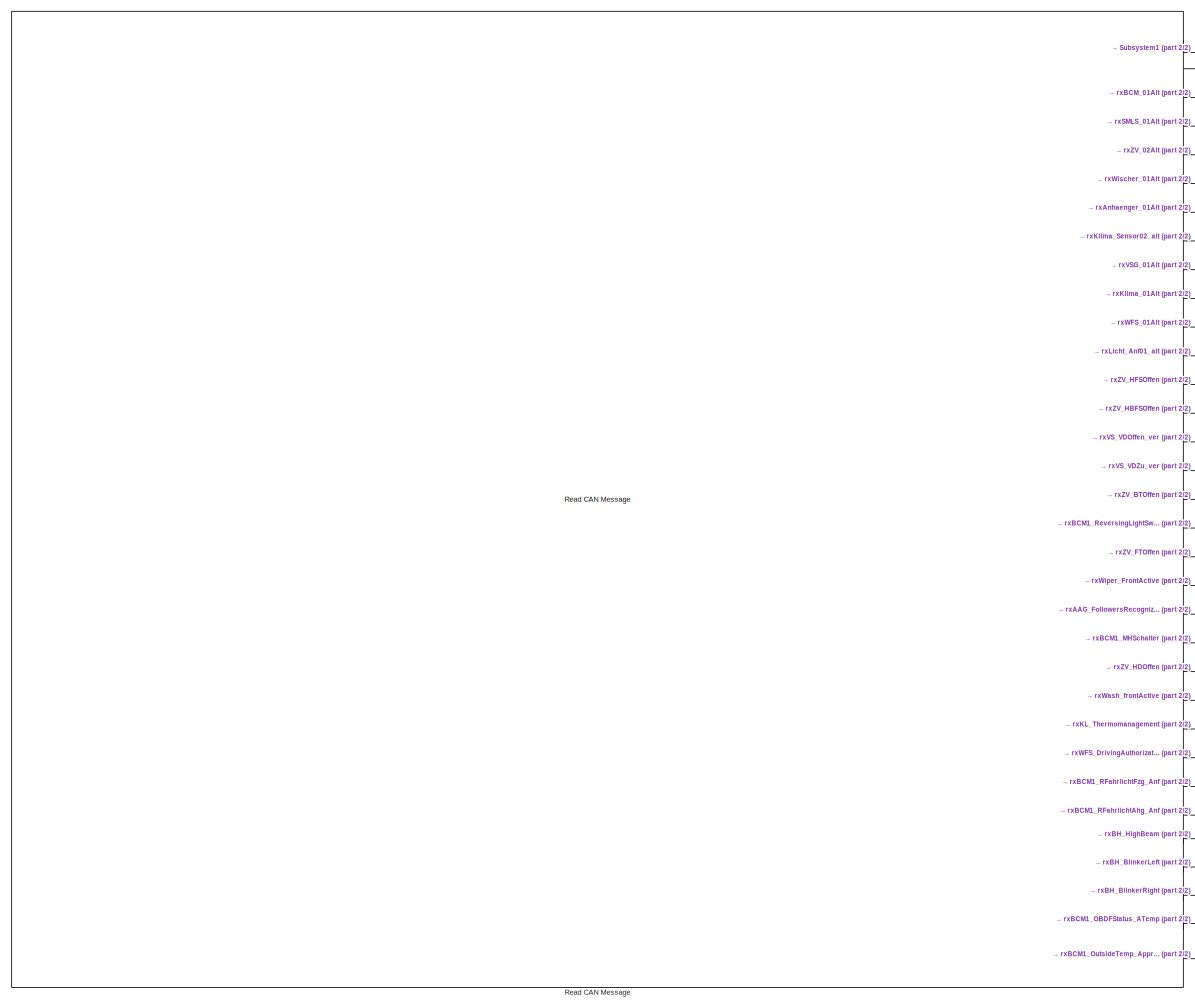
[diagram: Input/Golf/Gateway_72 - part 1/2, left side, full height]
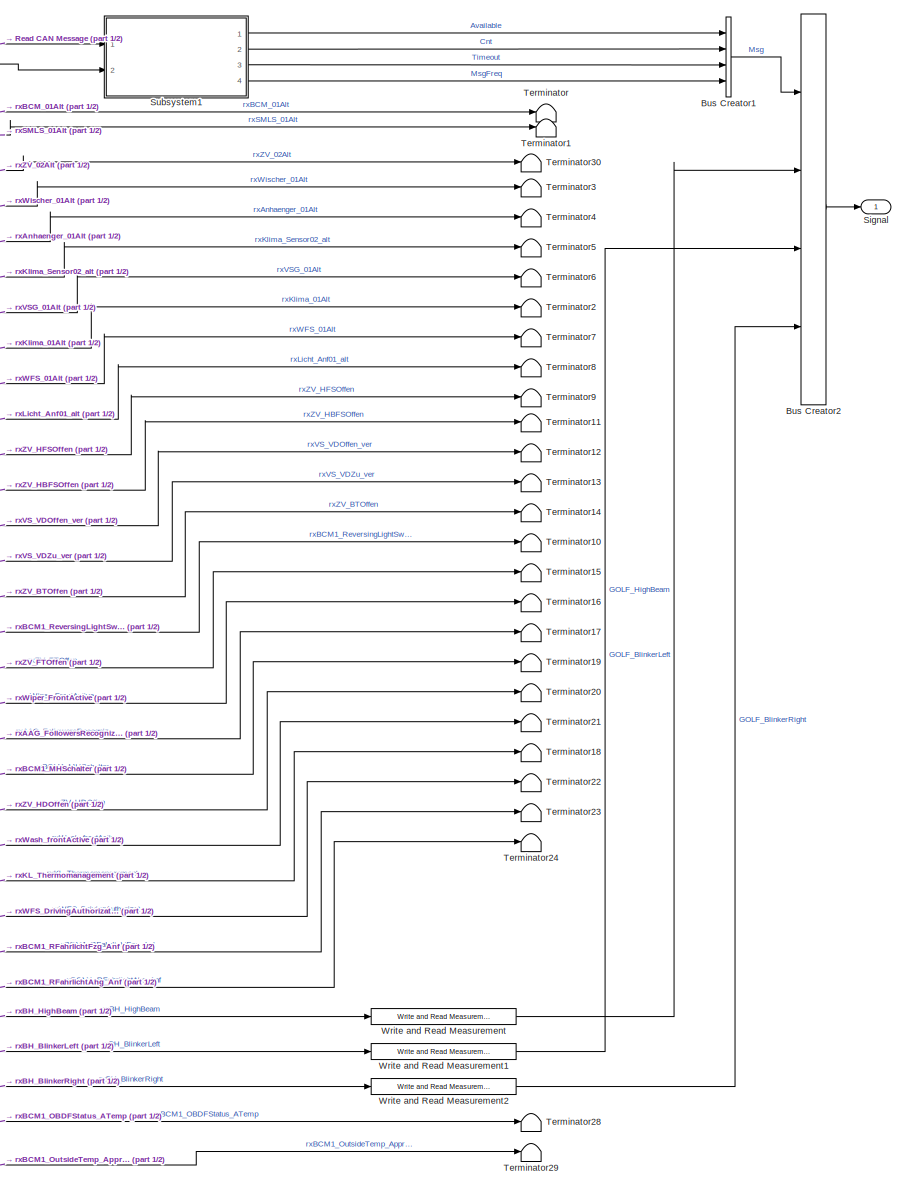
[diagram: Input/Golf/Gateway_72 - part 2/2, right side, full height]
BLOCK [SubSystem] Input/Golf/Gateway_72
  Ports = [0, 1]
  RequestExecContextInheritance = off
BLOCK [BusCreator] Input/Golf/Gateway_72/Bus Creator1
  DisplayOption = bar
  InheritFromInputs = off
  Inputs = 4
  OutDataTypeStr = Bus: Msg
  Ports = [4, 1]
BLOCK [BusCreator] Input/Golf/Gateway_72/Bus Creator2
  DisplayOption = bar
  InheritFromInputs = on
  Inputs = 4
  Ports = [4, 1]
BLOCK [Reference] Input/Golf/Gateway_72/Read CAN Message  REF=SF_CanService_Libs/Read CAN Message
  Ports = [0, 33]
  SourceBlock = SF_CanService_Libs/Read CAN Message
  SourceType = Read CAN Message
BLOCK [Outport] Input/Golf/Gateway_72/Signal
  IconDisplay = Port number
BLOCK [SubSystem] Input/Golf/Gateway_72/Subsystem1
  Ports = [2, 4]
  RequestExecContextInheritance = off
BLOCK [Outport] Input/Golf/Gateway_72/Subsystem1/Available 
  IconDisplay = Port number
BLOCK [Inport] Input/Golf/Gateway_72/Subsystem1/Available_in 
  IconDisplay = Port number
BLOCK [Outport] Input/Golf/Gateway_72/Subsystem1/Cnt
  IconDisplay = Port number
  Port = 2
BLOCK [Constant] Input/Golf/Gateway_72/Subsystem1/Constant
  OutDataTypeStr = single
  Value = 3
BLOCK [DataTypeConversion] Input/Golf/Gateway_72/Subsystem1/Data Type Conversion
  OutDataTypeStr = single
  RndMeth = Floor
  SaturateOnIntegerOverflow = off
BLOCK [Delay] Input/Golf/Gateway_72/Subsystem1/Delay1
  InitialCondition = 0
  InputPortMap = u0
  Ports = [1, 1]
  SampleTime = 0.5
BLOCK [Delay] Input/Golf/Gateway_72/Subsystem1/Delay2
  DelayLength = 6
  InitialCondition = 0
  InputPortMap = u0
  Ports = [1, 1]
  SampleTime = 0.5
BLOCK [Delay] Input/Golf/Gateway_72/Subsystem1/Delay3
  DelayLength = 0
  InitialCondition = 0
  InputPortMap = u0
  Ports = [1, 1]
  SampleTime = 0.5
BLOCK [Product] Input/Golf/Gateway_72/Subsystem1/Divide
  InputSameDT = off
  Inputs = */
  OutDataTypeStr = Inherit: Inherit via internal rule
  Ports = [2, 1]
  RndMeth = Floor
  SaturateOnIntegerOverflow = off
BLOCK [Outport] Input/Golf/Gateway_72/Subsystem1/Msg_Freq
  IconDisplay = Port number
  Port = 4
BLOCK [Inport] Input/Golf/Gateway_72/Subsystem1/Msg_cnt
  IconDisplay = Port number
  Port = 2
BLOCK [RelationalOperator] Input/Golf/Gateway_72/Subsystem1/Relational Operator
  InputSameDT = off
  Operator = ==
  OutDataTypeStr = boolean
  Ports = [2, 1]
  RndMeth = Simplest
BLOCK [Sum] Input/Golf/Gateway_72/Subsystem1/Subtract
  InputSameDT = off
  Inputs = +-
  OutDataTypeStr = Inherit: Inherit via internal rule
  Ports = [2, 1]
  SaturateOnIntegerOverflow = off
BLOCK [Outport] Input/Golf/Gateway_72/Subsystem1/Timeout_Err
  IconDisplay = Port number
  Port = 3
BLOCK [Terminator] Input/Golf/Gateway_72/Terminator
BLOCK [Terminator] Input/Golf/Gateway_72/Terminator1
BLOCK [Terminator] Input/Golf/Gateway_72/Terminator10
BLOCK [Terminator] Input/Golf/Gateway_72/Terminator11
BLOCK [Terminator] Input/Golf/Gateway_72/Terminator12
BLOCK [Terminator] Input/Golf/Gateway_72/Terminator13
BLOCK [Terminator] Input/Golf/Gateway_72/Terminator14
BLOCK [Terminator] Input/Golf/Gateway_72/Terminator15
BLOCK [Terminator] Input/Golf/Gateway_72/Terminator16
BLOCK [Terminator] Input/Golf/Gateway_72/Terminator17
BLOCK [Terminator] Input/Golf/Gateway_72/Terminator18
BLOCK [Terminator] Input/Golf/Gateway_72/Terminator19
BLOCK [Terminator] Input/Golf/Gateway_72/Terminator2
BLOCK [Terminator] Input/Golf/Gateway_72/Terminator20
BLOCK [Terminator] Input/Golf/Gateway_72/Terminator21
BLOCK [Terminator] Input/Golf/Gateway_72/Terminator22
BLOCK [Terminator] Input/Golf/Gateway_72/Terminator23
BLOCK [Terminator] Input/Golf/Gateway_72/Terminator24
BLOCK [Terminator] Input/Golf/Gateway_72/Terminator28
BLOCK [Terminator] Input/Golf/Gateway_72/Terminator29
BLOCK [Terminator] Input/Golf/Gateway_72/Terminator3
BLOCK [Terminator] Input/Golf/Gateway_72/Terminator30
BLOCK [Terminator] Input/Golf/Gateway_72/Terminator4
BLOCK [Terminator] Input/Golf/Gateway_72/Terminator5
BLOCK [Terminator] Input/Golf/Gateway_72/Terminator6
BLOCK [Terminator] Input/Golf/Gateway_72/Terminator7
BLOCK [Terminator] Input/Golf/Gateway_72/Terminator8
BLOCK [Terminator] Input/Golf/Gateway_72/Terminator9
BLOCK [Reference] Input/Golf/Gateway_72/Write and Read Measurement  REF=CoderSF_BSW_Libs/Calibration & Measurement/Write and Read Measurement
  AttributesFormatString = type:%<variable_type> Dimensions:%<numD>
  Ports = [1, 1]
  SourceBlock = CoderSF_BSW_Libs/Calibration & Measurement/Write and Read Measurement
  SourceProductName = EcoCoder Blocks
  SourceType = Write and Read Measurement
BLOCK [Reference] Input/Golf/Gateway_72/Write and Read Measurement1  REF=CoderSF_BSW_Libs/Calibration & Measurement/Write and Read Measurement
  AttributesFormatString = type:%<variable_type> Dimensions:%<numD>
  Ports = [1, 1]
  SourceBlock = CoderSF_BSW_Libs/Calibration & Measurement/Write and Read Measurement
  SourceProductName = EcoCoder Blocks
  SourceType = Write and Read Measurement
BLOCK [Reference] Input/Golf/Gateway_72/Write and Read Measurement2  REF=CoderSF_BSW_Libs/Calibration & Measurement/Write and Read Measurement
  AttributesFormatString = type:%<variable_type> Dimensions:%<numD>
  Ports = [1, 1]
  SourceBlock = CoderSF_BSW_Libs/Calibration & Measurement/Write and Read Measurement
  SourceProductName = EcoCoder Blocks
  SourceType = Write and Read Measurement
BLOCK [SubSystem] Input/Golf/Getriebe_11
  Ports = [0, 1]
  RequestExecContextInheritance = off
BLOCK [BusCreator] Input/Golf/Getriebe_11/Bus Creator
  DisplayOption = bar
  InheritFromInputs = on
  Inputs = 2
  Ports = [2, 1]
BLOCK [BusCreator] Input/Golf/Getriebe_11/Bus Creator1
  DisplayOption = bar
  InheritFromInputs = off
  Inputs = 4
  OutDataTypeStr = Bus: Msg
  Ports = [4, 1]
BLOCK [Delay] Input/Golf/Getriebe_11/Delay
  DelayLength = 100
  InputPortMap = u0
  Ports = [1, 1]
  SampleTime = 0.01
BLOCK [Outport] Input/Golf/Getriebe_11/Gearnumber
  IconDisplay = Port number
BLOCK [Reference] Input/Golf/Getriebe_11/Read CAN Message1  REF=SF_CanService_Libs/Read CAN Message
  Ports = [0, 14]
  SourceBlock = SF_CanService_Libs/Read CAN Message
  SourceType = Read CAN Message
BLOCK [SubSystem] Input/Golf/Getriebe_11/Subsystem1
  Ports = [2, 4]
  RequestExecContextInheritance = off
BLOCK [Outport] Input/Golf/Getriebe_11/Subsystem1/Available 
  IconDisplay = Port number
BLOCK [Inport] Input/Golf/Getriebe_11/Subsystem1/Available_in 
  IconDisplay = Port number
BLOCK [Outport] Input/Golf/Getriebe_11/Subsystem1/Cnt
  IconDisplay = Port number
  Port = 2
BLOCK [Constant] Input/Golf/Getriebe_11/Subsystem1/Constant
  OutDataTypeStr = single
  Value = 3
BLOCK [DataTypeConversion] Input/Golf/Getriebe_11/Subsystem1/Data Type Conversion
  OutDataTypeStr = single
  RndMeth = Floor
  SaturateOnIntegerOverflow = off
BLOCK [Delay] Input/Golf/Getriebe_11/Subsystem1/Delay1
  InitialCondition = 0
  InputPortMap = u0
  Ports = [1, 1]
  SampleTime = 0.5
BLOCK [Delay] Input/Golf/Getriebe_11/Subsystem1/Delay2
  DelayLength = 6
  InitialCondition = 0
  InputPortMap = u0
  Ports = [1, 1]
  SampleTime = 0.5
BLOCK [Delay] Input/Golf/Getriebe_11/Subsystem1/Delay3
  DelayLength = 0
  InitialCondition = 0
  InputPortMap = u0
  Ports = [1, 1]
  SampleTime = 0.5
BLOCK [Product] Input/Golf/Getriebe_11/Subsystem1/Divide
  InputSameDT = off
  Inputs = */
  OutDataTypeStr = Inherit: Inherit via internal rule
  Ports = [2, 1]
  RndMeth = Floor
  SaturateOnIntegerOverflow = off
BLOCK [Outport] Input/Golf/Getriebe_11/Subsystem1/Msg_Freq
  IconDisplay = Port number
  Port = 4
BLOCK [Inport] Input/Golf/Getriebe_11/Subsystem1/Msg_cnt
  IconDisplay = Port number
  Port = 2
BLOCK [RelationalOperator] Input/Golf/Getriebe_11/Subsystem1/Relational Operator
  InputSameDT = off
  Operator = ==
  OutDataTypeStr = boolean
  Ports = [2, 1]
  RndMeth = Simplest
BLOCK [Sum] Input/Golf/Getriebe_11/Subsystem1/Subtract
  InputSameDT = off
  Inputs = +-
  OutDataTypeStr = Inherit: Inherit via internal rule
  Ports = [2, 1]
  SaturateOnIntegerOverflow = off
BLOCK [Outport] Input/Golf/Getriebe_11/Subsystem1/Timeout_Err
  IconDisplay = Port number
  Port = 3
BLOCK [Terminator] Input/Golf/Getriebe_11/Terminator
BLOCK [Terminator] Input/Golf/Getriebe_11/Terminator1
BLOCK [Terminator] Input/Golf/Getriebe_11/Terminator10
BLOCK [Terminator] Input/Golf/Getriebe_11/Terminator2
BLOCK [Terminator] Input/Golf/Getriebe_11/Terminator3
BLOCK [Terminator] Input/Golf/Getriebe_11/Terminator4
BLOCK [Terminator] Input/Golf/Getriebe_11/Terminator5
BLOCK [Terminator] Input/Golf/Getriebe_11/Terminator6
BLOCK [Terminator] Input/Golf/Getriebe_11/Terminator7
BLOCK [Terminator] Input/Golf/Getriebe_11/Terminator8
BLOCK [Terminator] Input/Golf/Getriebe_11/Terminator9
BLOCK [Reference] Input/Golf/Getriebe_11/Write and Read Measurement  REF=CoderSF_BSW_Libs/Calibration & Measurement/Write and Read Measurement
  AttributesFormatString = type:%<variable_type> Dimensions:%<numD>
  Ports = [1, 1]
  SourceBlock = CoderSF_BSW_Libs/Calibration & Measurement/Write and Read Measurement
  SourceProductName = EcoCoder Blocks
  SourceType = Write and Read Measurement
BLOCK [Outport] Input/Golf/Golf 
  IconDisplay = Port number
BLOCK [SubSystem] Input/Golf/Kombi_02
  Ports = [0, 1]
  RequestExecContextInheritance = off
BLOCK [BusCreator] Input/Golf/Kombi_02/Bus Creator
  DisplayOption = bar
  InheritFromInputs = on
  Inputs = 3
  Ports = [3, 1]
BLOCK [BusCreator] Input/Golf/Kombi_02/Bus Creator1
  DisplayOption = bar
  InheritFromInputs = off
  Inputs = 4
  OutDataTypeStr = Bus: Msg
  Ports = [4, 1]
BLOCK [Constant] Input/Golf/Kombi_02/Constant
  Value = 55
BLOCK [Product] Input/Golf/Kombi_02/Divide
  InputSameDT = off
  Inputs = */
  OutDataTypeStr = single
  Ports = [2, 1]
  RndMeth = Floor
  SaturateOnIntegerOverflow = off
BLOCK [Outport] Input/Golf/Kombi_02/Fuel_Tank
  IconDisplay = Port number
BLOCK [Reference] Input/Golf/Kombi_02/Read CAN Message1  REF=SF_CanService_Libs/Read CAN Message
  Ports = [0, 8]
  SourceBlock = SF_CanService_Libs/Read CAN Message
  SourceType = Read CAN Message
BLOCK [SubSystem] Input/Golf/Kombi_02/Subsystem1
  Ports = [2, 4]
  RequestExecContextInheritance = off
BLOCK [Outport] Input/Golf/Kombi_02/Subsystem1/Available 
  IconDisplay = Port number
BLOCK [Inport] Input/Golf/Kombi_02/Subsystem1/Available_in 
  IconDisplay = Port number
BLOCK [Outport] Input/Golf/Kombi_02/Subsystem1/Cnt
  IconDisplay = Port number
  Port = 2
BLOCK [Constant] Input/Golf/Kombi_02/Subsystem1/Constant
  OutDataTypeStr = single
  Value = 3
BLOCK [DataTypeConversion] Input/Golf/Kombi_02/Subsystem1/Data Type Conversion
  OutDataTypeStr = single
  RndMeth = Floor
  SaturateOnIntegerOverflow = off
BLOCK [Delay] Input/Golf/Kombi_02/Subsystem1/Delay1
  InitialCondition = 0
  InputPortMap = u0
  Ports = [1, 1]
  SampleTime = 0.5
BLOCK [Delay] Input/Golf/Kombi_02/Subsystem1/Delay2
  DelayLength = 6
  InitialCondition = 0
  InputPortMap = u0
  Ports = [1, 1]
  SampleTime = 0.5
BLOCK [Delay] Input/Golf/Kombi_02/Subsystem1/Delay3
  DelayLength = 0
  InitialCondition = 0
  InputPortMap = u0
  Ports = [1, 1]
  SampleTime = 0.5
BLOCK [Product] Input/Golf/Kombi_02/Subsystem1/Divide
  InputSameDT = off
  Inputs = */
  OutDataTypeStr = Inherit: Inherit via internal rule
  Ports = [2, 1]
  RndMeth = Floor
  SaturateOnIntegerOverflow = off
BLOCK [Outport] Input/Golf/Kombi_02/Subsystem1/Msg_Freq
  IconDisplay = Port number
  Port = 4
BLOCK [Inport] Input/Golf/Kombi_02/Subsystem1/Msg_cnt
  IconDisplay = Port number
  Port = 2
BLOCK [RelationalOperator] Input/Golf/Kombi_02/Subsystem1/Relational Operator
  InputSameDT = off
  Operator = ==
  OutDataTypeStr = boolean
  Ports = [2, 1]
  RndMeth = Simplest
BLOCK [Sum] Input/Golf/Kombi_02/Subsystem1/Subtract
  InputSameDT = off
  Inputs = +-
  OutDataTypeStr = Inherit: Inherit via internal rule
  Ports = [2, 1]
  SaturateOnIntegerOverflow = off
BLOCK [Outport] Input/Golf/Kombi_02/Subsystem1/Timeout_Err
  IconDisplay = Port number
  Port = 3
BLOCK [Terminator] Input/Golf/Kombi_02/Terminator
BLOCK [Terminator] Input/Golf/Kombi_02/Terminator1
BLOCK [Terminator] Input/Golf/Kombi_02/Terminator2
BLOCK [Terminator] Input/Golf/Kombi_02/Terminator3
BLOCK [Terminator] Input/Golf/Kombi_02/Terminator4
BLOCK [Reference] Input/Golf/Kombi_02/Write and Read Measurement  REF=CoderSF_BSW_Libs/Calibration & Measurement/Write and Read Measurement
  AttributesFormatString = type:%<variable_type> Dimensions:%<numD>
  Ports = [1, 1]
  SourceBlock = CoderSF_BSW_Libs/Calibration & Measurement/Write and Read Measurement
  SourceProductName = EcoCoder Blocks
  SourceType = Write and Read Measurement
BLOCK [Reference] Input/Golf/Kombi_02/Write and Read Measurement1  REF=CoderSF_BSW_Libs/Calibration & Measurement/Write and Read Measurement
  AttributesFormatString = type:%<variable_type> Dimensions:%<numD>
  Ports = [1, 1]
  SourceBlock = CoderSF_BSW_Libs/Calibration & Measurement/Write and Read Measurement
  SourceProductName = EcoCoder Blocks
  SourceType = Write and Read Measurement
BLOCK [SubSystem] Input/Golf/LWl
  Ports = [0, 1]
  RequestExecContextInheritance = off
BLOCK [BusCreator] Input/Golf/LWl/Bus Creator
  DisplayOption = bar
  InheritFromInputs = on
  Inputs = 11
  Ports = [11, 1]
BLOCK [BusCreator] Input/Golf/LWl/Bus Creator1
  DisplayOption = bar
  InheritFromInputs = off
  Inputs = 4
  OutDataTypeStr = Bus: Msg
  Ports = [4, 1]
BLOCK [BusCreator] Input/Golf/LWl/Bus Creator2
  DisplayOption = bar
  InheritFromInputs = on
  Inputs = 3
  Ports = [3, 1]
BLOCK [BusSelector] Input/Golf/LWl/Bus Selector
  OutputAsBus = off
  OutputSignals = GOLF_LWIVZ_SteeringWheelAngle,GOLF_LWI_SteeringWheelAngle,GOLF_LWIVZ_SteeringWheelAngle_Speed,GOLF_LWI_SteeringWheelAngle_Speed
  Ports = [1, 4]
BLOCK [Constant] Input/Golf/LWl/Constant
BLOCK [Constant] Input/Golf/LWl/Constant1
  Value = -1
BLOCK [Constant] Input/Golf/LWl/Constant2
BLOCK [Constant] Input/Golf/LWl/Constant3
  Value = -1
BLOCK [Outport] Input/Golf/LWl/LWI
  IconDisplay = Port number
BLOCK [Product] Input/Golf/LWl/Product
  InputSameDT = off
  OutDataTypeStr = Inherit: Inherit via internal rule
  Ports = [2, 1]
  RndMeth = Floor
  SaturateOnIntegerOverflow = off
BLOCK [Product] Input/Golf/LWl/Product1
  InputSameDT = off
  OutDataTypeStr = Inherit: Inherit via internal rule
  Ports = [2, 1]
  RndMeth = Floor
  SaturateOnIntegerOverflow = off
BLOCK [Reference] Input/Golf/LWl/Read CAN Message  REF=SF_CanService_Libs/Read CAN Message
  Ports = [0, 12]
  SourceBlock = SF_CanService_Libs/Read CAN Message
  SourceType = Read CAN Message
BLOCK [SubSystem] Input/Golf/LWl/Subsystem1
  Ports = [2, 4]
  RequestExecContextInheritance = off
BLOCK [Outport] Input/Golf/LWl/Subsystem1/Available 
  IconDisplay = Port number
BLOCK [Inport] Input/Golf/LWl/Subsystem1/Available_in 
  IconDisplay = Port number
BLOCK [Outport] Input/Golf/LWl/Subsystem1/Cnt
  IconDisplay = Port number
  Port = 2
BLOCK [Constant] Input/Golf/LWl/Subsystem1/Constant
  OutDataTypeStr = single
  Value = 3
BLOCK [DataTypeConversion] Input/Golf/LWl/Subsystem1/Data Type Conversion
  OutDataTypeStr = single
  RndMeth = Floor
  SaturateOnIntegerOverflow = off
BLOCK [Delay] Input/Golf/LWl/Subsystem1/Delay1
  InitialCondition = 0
  InputPortMap = u0
  Ports = [1, 1]
  SampleTime = 0.5
BLOCK [Delay] Input/Golf/LWl/Subsystem1/Delay2
  DelayLength = 6
  InitialCondition = 0
  InputPortMap = u0
  Ports = [1, 1]
  SampleTime = 0.5
BLOCK [Delay] Input/Golf/LWl/Subsystem1/Delay3
  DelayLength = 0
  InitialCondition = 0
  InputPortMap = u0
  Ports = [1, 1]
  SampleTime = 0.5
BLOCK [Product] Input/Golf/LWl/Subsystem1/Divide
  InputSameDT = off
  Inputs = */
  OutDataTypeStr = Inherit: Inherit via internal rule
  Ports = [2, 1]
  RndMeth = Floor
  SaturateOnIntegerOverflow = off
BLOCK [Outport] Input/Golf/LWl/Subsystem1/Msg_Freq
  IconDisplay = Port number
  Port = 4
BLOCK [Inport] Input/Golf/LWl/Subsystem1/Msg_cnt
  IconDisplay = Port number
  Port = 2
BLOCK [RelationalOperator] Input/Golf/LWl/Subsystem1/Relational Operator
  InputSameDT = off
  Operator = ==
  OutDataTypeStr = boolean
  Ports = [2, 1]
  RndMeth = Simplest
BLOCK [Sum] Input/Golf/LWl/Subsystem1/Subtract
  InputSameDT = off
  Inputs = +-
  OutDataTypeStr = Inherit: Inherit via internal rule
  Ports = [2, 1]
  SaturateOnIntegerOverflow = off
BLOCK [Outport] Input/Golf/LWl/Subsystem1/Timeout_Err
  IconDisplay = Port number
  Port = 3
BLOCK [Switch] Input/Golf/LWl/Switch
  Criteria = u2 > Threshold
  InputSameDT = off
  OutDataTypeStr = single
  SaturateOnIntegerOverflow = off
  Threshold = 0.5
BLOCK [Switch] Input/Golf/LWl/Switch1
  Criteria = u2 > Threshold
  InputSameDT = off
  OutDataTypeStr = single
  SaturateOnIntegerOverflow = off
  Threshold = 0.5
BLOCK [Reference] Input/Golf/LWl/Write and Read Measurement  REF=CoderSF_BSW_Libs/Calibration & Measurement/Write and Read Measurement
  AttributesFormatString = type:%<variable_type> Dimensions:%<numD>
  Ports = [1, 1]
  SourceBlock = CoderSF_BSW_Libs/Calibration & Measurement/Write and Read Measurement
  SourceProductName = EcoCoder Blocks
  SourceType = Write and Read Measurement
BLOCK [Reference] Input/Golf/LWl/Write and Read Measurement1  REF=CoderSF_BSW_Libs/Calibration & Measurement/Write and Read Measurement
  AttributesFormatString = type:%<variable_type> Dimensions:%<numD>
  Ports = [1, 1]
  SourceBlock = CoderSF_BSW_Libs/Calibration & Measurement/Write and Read Measurement
  SourceProductName = EcoCoder Blocks
  SourceType = Write and Read Measurement
BLOCK [Reference] Input/Golf/LWl/Write and Read Measurement2  REF=CoderSF_BSW_Libs/Calibration & Measurement/Write and Read Measurement
  AttributesFormatString = type:%<variable_type> Dimensions:%<numD>
  Ports = [1, 1]
  SourceBlock = CoderSF_BSW_Libs/Calibration & Measurement/Write and Read Measurement
  SourceProductName = EcoCoder Blocks
  SourceType = Write and Read Measurement
BLOCK [Reference] Input/Golf/LWl/Write and Read Measurement3  REF=CoderSF_BSW_Libs/Calibration & Measurement/Write and Read Measurement
  AttributesFormatString = type:%<variable_type> Dimensions:%<numD>
  Ports = [1, 1]
  SourceBlock = CoderSF_BSW_Libs/Calibration & Measurement/Write and Read Measurement
  SourceProductName = EcoCoder Blocks
  SourceType = Write and Read Measurement
BLOCK [Reference] Input/Golf/LWl/Write and Read Measurement4  REF=CoderSF_BSW_Libs/Calibration & Measurement/Write and Read Measurement
  AttributesFormatString = type:%<variable_type> Dimensions:%<numD>
  Ports = [1, 1]
  SourceBlock = CoderSF_BSW_Libs/Calibration & Measurement/Write and Read Measurement
  SourceProductName = EcoCoder Blocks
  SourceType = Write and Read Measurement
BLOCK [Reference] Input/Golf/LWl/Write and Read Measurement5  REF=CoderSF_BSW_Libs/Calibration & Measurement/Write and Read Measurement
  AttributesFormatString = type:%<variable_type> Dimensions:%<numD>
  Ports = [1, 1]
  SourceBlock = CoderSF_BSW_Libs/Calibration & Measurement/Write and Read Measurement
  SourceProductName = EcoCoder Blocks
  SourceType = Write and Read Measurement
BLOCK [Reference] Input/Golf/LWl/Write and Read Measurement6  REF=CoderSF_BSW_Libs/Calibration & Measurement/Write and Read Measurement
  AttributesFormatString = type:%<variable_type> Dimensions:%<numD>
  Ports = [1, 1]
  SourceBlock = CoderSF_BSW_Libs/Calibration & Measurement/Write and Read Measurement
  SourceProductName = EcoCoder Blocks
  SourceType = Write and Read Measurement
BLOCK [SubSystem] Input/Golf/Motor_12
  Ports = [0, 1]
  RequestExecContextInheritance = off
BLOCK [BusCreator] Input/Golf/Motor_12/Bus Creator1
  DisplayOption = bar
  InheritFromInputs = off
  Inputs = 4
  OutDataTypeStr = Bus: Msg
  Ports = [4, 1]
BLOCK [BusCreator] Input/Golf/Motor_12/Bus Creator2
  DisplayOption = bar
  InheritFromInputs = on
  Inputs = 2
  Ports = [2, 1]
BLOCK [Outport] Input/Golf/Motor_12/MatorRPM
  IconDisplay = Port number
BLOCK [Reference] Input/Golf/Motor_12/Read CAN Message  REF=SF_CanService_Libs/Read CAN Message
  Ports = [0, 10]
  SourceBlock = SF_CanService_Libs/Read CAN Message
  SourceType = Read CAN Message
BLOCK [SubSystem] Input/Golf/Motor_12/Subsystem1
  Ports = [2, 4]
  RequestExecContextInheritance = off
BLOCK [Outport] Input/Golf/Motor_12/Subsystem1/Available 
  IconDisplay = Port number
BLOCK [Inport] Input/Golf/Motor_12/Subsystem1/Available_in 
  IconDisplay = Port number
BLOCK [Outport] Input/Golf/Motor_12/Subsystem1/Cnt
  IconDisplay = Port number
  Port = 2
BLOCK [Constant] Input/Golf/Motor_12/Subsystem1/Constant
  OutDataTypeStr = single
  Value = 3
BLOCK [DataTypeConversion] Input/Golf/Motor_12/Subsystem1/Data Type Conversion
  OutDataTypeStr = single
  RndMeth = Floor
  SaturateOnIntegerOverflow = off
BLOCK [Delay] Input/Golf/Motor_12/Subsystem1/Delay1
  InitialCondition = 0
  InputPortMap = u0
  Ports = [1, 1]
  SampleTime = 0.5
BLOCK [Delay] Input/Golf/Motor_12/Subsystem1/Delay2
  DelayLength = 6
  InitialCondition = 0
  InputPortMap = u0
  Ports = [1, 1]
  SampleTime = 0.5
BLOCK [Delay] Input/Golf/Motor_12/Subsystem1/Delay3
  DelayLength = 0
  InitialCondition = 0
  InputPortMap = u0
  Ports = [1, 1]
  SampleTime = 0.5
BLOCK [Product] Input/Golf/Motor_12/Subsystem1/Divide
  InputSameDT = off
  Inputs = */
  OutDataTypeStr = Inherit: Inherit via internal rule
  Ports = [2, 1]
  RndMeth = Floor
  SaturateOnIntegerOverflow = off
BLOCK [Outport] Input/Golf/Motor_12/Subsystem1/Msg_Freq
  IconDisplay = Port number
  Port = 4
BLOCK [Inport] Input/Golf/Motor_12/Subsystem1/Msg_cnt
  IconDisplay = Port number
  Port = 2
BLOCK [RelationalOperator] Input/Golf/Motor_12/Subsystem1/Relational Operator
  InputSameDT = off
  Operator = ==
  OutDataTypeStr = boolean
  Ports = [2, 1]
  RndMeth = Simplest
BLOCK [Sum] Input/Golf/Motor_12/Subsystem1/Subtract
  InputSameDT = off
  Inputs = +-
  OutDataTypeStr = Inherit: Inherit via internal rule
  Ports = [2, 1]
  SaturateOnIntegerOverflow = off
BLOCK [Outport] Input/Golf/Motor_12/Subsystem1/Timeout_Err
  IconDisplay = Port number
  Port = 3
BLOCK [Terminator] Input/Golf/Motor_12/Terminator
BLOCK [Terminator] Input/Golf/Motor_12/Terminator1
BLOCK [Terminator] Input/Golf/Motor_12/Terminator2
BLOCK [Terminator] Input/Golf/Motor_12/Terminator3
BLOCK [Terminator] Input/Golf/Motor_12/Terminator4
BLOCK [Terminator] Input/Golf/Motor_12/Terminator5
BLOCK [Terminator] Input/Golf/Motor_12/Terminator6
BLOCK [Reference] Input/Golf/Motor_12/Write and Read Measurement  REF=CoderSF_BSW_Libs/Calibration & Measurement/Write and Read Measurement
  AttributesFormatString = type:%<variable_type> Dimensions:%<numD>
  Ports = [1, 1]
  SourceBlock = CoderSF_BSW_Libs/Calibration & Measurement/Write and Read Measurement
  SourceProductName = EcoCoder Blocks
  SourceType = Write and Read Measurement
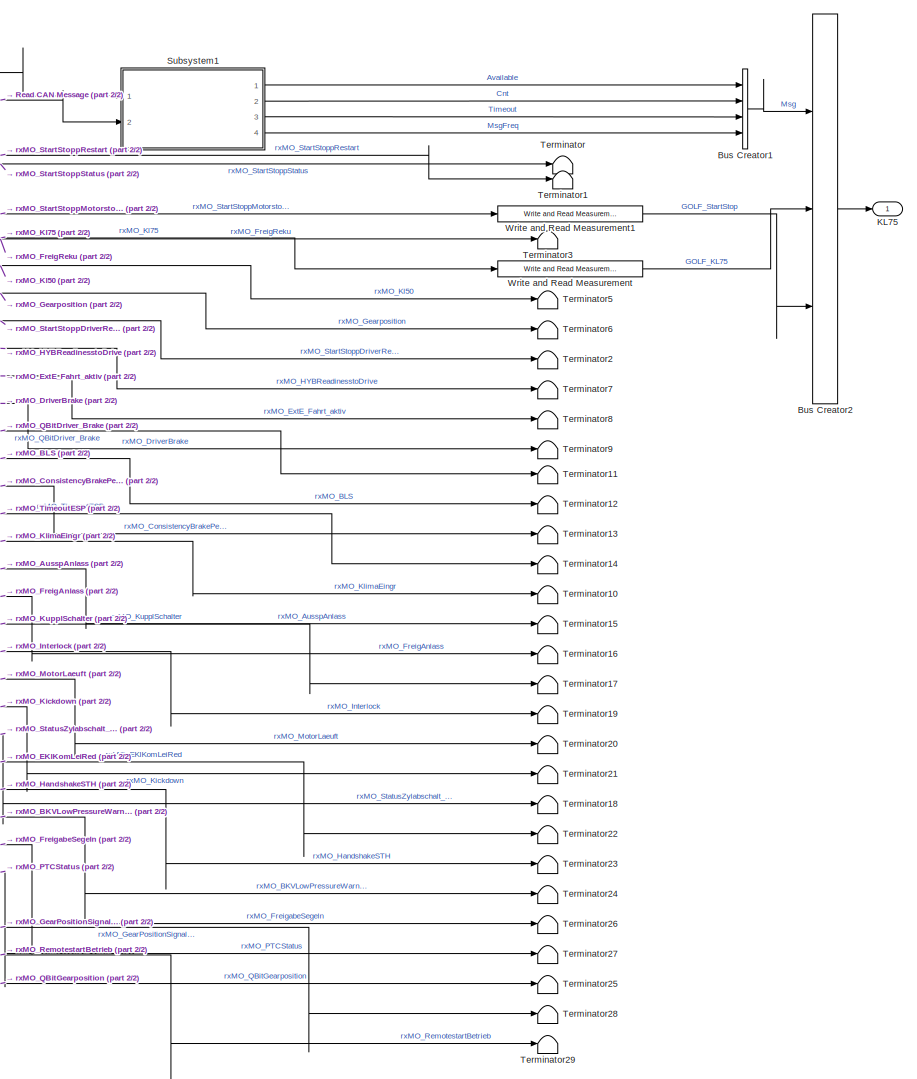
[diagram: Input/Golf/Motor_14 - part 1/2, right side, full height]
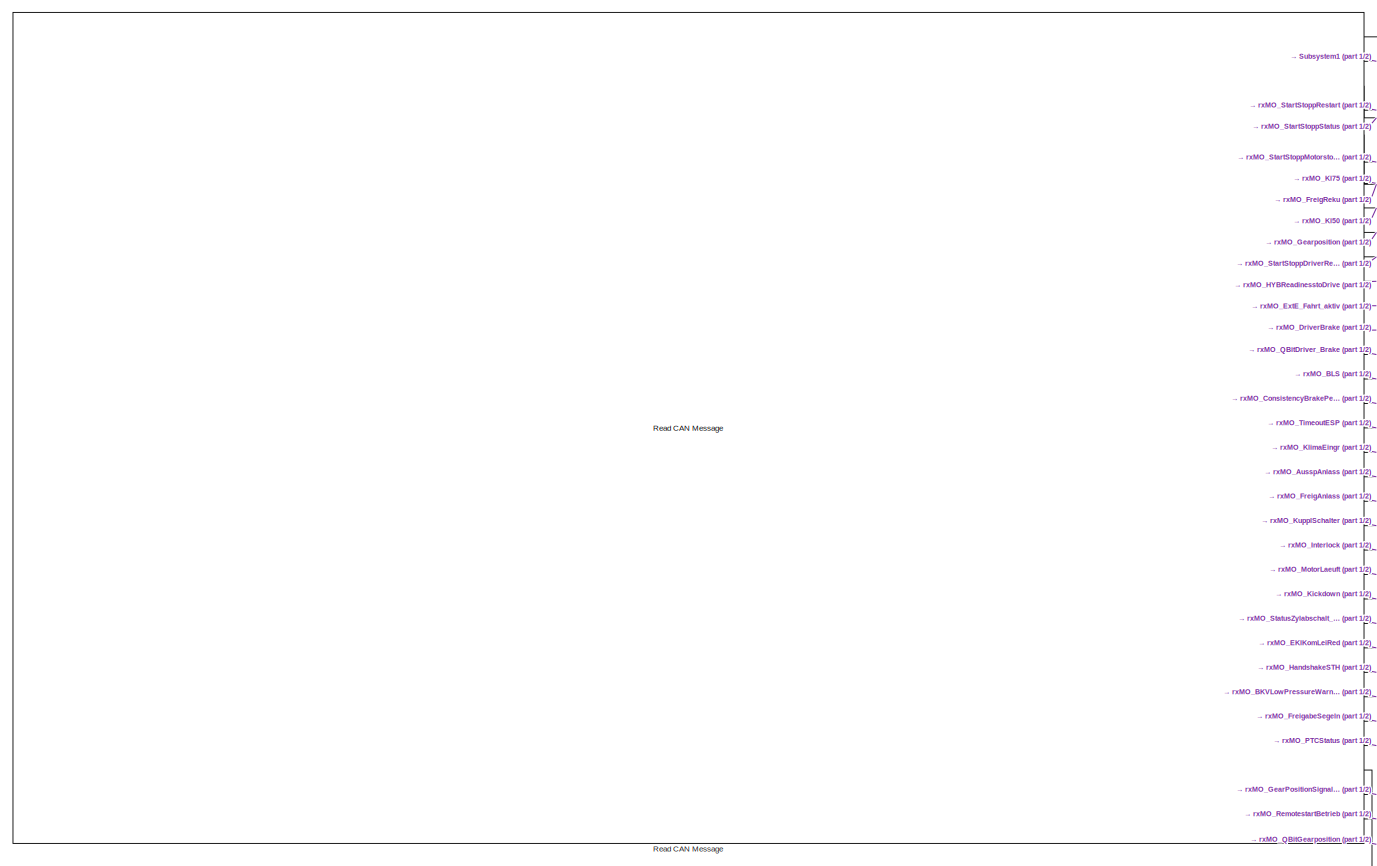
[diagram: Input/Golf/Motor_14 - part 2/2, left side, full height]
BLOCK [SubSystem] Input/Golf/Motor_14
  Ports = [0, 1]
  RequestExecContextInheritance = off
BLOCK [BusCreator] Input/Golf/Motor_14/Bus Creator1
  DisplayOption = bar
  InheritFromInputs = off
  Inputs = 4
  OutDataTypeStr = Bus: Msg
  Ports = [4, 1]
BLOCK [BusCreator] Input/Golf/Motor_14/Bus Creator2
  DisplayOption = bar
  InheritFromInputs = on
  Inputs = 3
  Ports = [3, 1]
BLOCK [Outport] Input/Golf/Motor_14/KL75
  IconDisplay = Port number
BLOCK [Reference] Input/Golf/Motor_14/Read CAN Message  REF=SF_CanService_Libs/Read CAN Message
  Ports = [0, 33]
  SourceBlock = SF_CanService_Libs/Read CAN Message
  SourceType = Read CAN Message
BLOCK [SubSystem] Input/Golf/Motor_14/Subsystem1
  Ports = [2, 4]
  RequestExecContextInheritance = off
BLOCK [Outport] Input/Golf/Motor_14/Subsystem1/Available 
  IconDisplay = Port number
BLOCK [Inport] Input/Golf/Motor_14/Subsystem1/Available_in 
  IconDisplay = Port number
BLOCK [Outport] Input/Golf/Motor_14/Subsystem1/Cnt
  IconDisplay = Port number
  Port = 2
BLOCK [Constant] Input/Golf/Motor_14/Subsystem1/Constant
  OutDataTypeStr = single
  Value = 3
BLOCK [DataTypeConversion] Input/Golf/Motor_14/Subsystem1/Data Type Conversion
  OutDataTypeStr = single
  RndMeth = Floor
  SaturateOnIntegerOverflow = off
BLOCK [Delay] Input/Golf/Motor_14/Subsystem1/Delay1
  InitialCondition = 0
  InputPortMap = u0
  Ports = [1, 1]
  SampleTime = 0.5
BLOCK [Delay] Input/Golf/Motor_14/Subsystem1/Delay2
  DelayLength = 6
  InitialCondition = 0
  InputPortMap = u0
  Ports = [1, 1]
  SampleTime = 0.5
BLOCK [Delay] Input/Golf/Motor_14/Subsystem1/Delay3
  DelayLength = 0
  InitialCondition = 0
  InputPortMap = u0
  Ports = [1, 1]
  SampleTime = 0.5
BLOCK [Product] Input/Golf/Motor_14/Subsystem1/Divide
  InputSameDT = off
  Inputs = */
  OutDataTypeStr = Inherit: Inherit via internal rule
  Ports = [2, 1]
  RndMeth = Floor
  SaturateOnIntegerOverflow = off
BLOCK [Outport] Input/Golf/Motor_14/Subsystem1/Msg_Freq
  IconDisplay = Port number
  Port = 4
BLOCK [Inport] Input/Golf/Motor_14/Subsystem1/Msg_cnt
  IconDisplay = Port number
  Port = 2
BLOCK [RelationalOperator] Input/Golf/Motor_14/Subsystem1/Relational Operator
  InputSameDT = off
  Operator = ==
  OutDataTypeStr = boolean
  Ports = [2, 1]
  RndMeth = Simplest
BLOCK [Sum] Input/Golf/Motor_14/Subsystem1/Subtract
  InputSameDT = off
  Inputs = +-
  OutDataTypeStr = Inherit: Inherit via internal rule
  Ports = [2, 1]
  SaturateOnIntegerOverflow = off
BLOCK [Outport] Input/Golf/Motor_14/Subsystem1/Timeout_Err
  IconDisplay = Port number
  Port = 3
BLOCK [Terminator] Input/Golf/Motor_14/Terminator
BLOCK [Terminator] Input/Golf/Motor_14/Terminator1
BLOCK [Terminator] Input/Golf/Motor_14/Terminator10
BLOCK [Terminator] Input/Golf/Motor_14/Terminator11
BLOCK [Terminator] Input/Golf/Motor_14/Terminator12
BLOCK [Terminator] Input/Golf/Motor_14/Terminator13
BLOCK [Terminator] Input/Golf/Motor_14/Terminator14
BLOCK [Terminator] Input/Golf/Motor_14/Terminator15
BLOCK [Terminator] Input/Golf/Motor_14/Terminator16
BLOCK [Terminator] Input/Golf/Motor_14/Terminator17
BLOCK [Terminator] Input/Golf/Motor_14/Terminator18
BLOCK [Terminator] Input/Golf/Motor_14/Terminator19
BLOCK [Terminator] Input/Golf/Motor_14/Terminator2
BLOCK [Terminator] Input/Golf/Motor_14/Terminator20
BLOCK [Terminator] Input/Golf/Motor_14/Terminator21
BLOCK [Terminator] Input/Golf/Motor_14/Terminator22
BLOCK [Terminator] Input/Golf/Motor_14/Terminator23
BLOCK [Terminator] Input/Golf/Motor_14/Terminator24
BLOCK [Terminator] Input/Golf/Motor_14/Terminator25
BLOCK [Terminator] Input/Golf/Motor_14/Terminator26
BLOCK [Terminator] Input/Golf/Motor_14/Terminator27
BLOCK [Terminator] Input/Golf/Motor_14/Terminator28
BLOCK [Terminator] Input/Golf/Motor_14/Terminator29
BLOCK [Terminator] Input/Golf/Motor_14/Terminator3
BLOCK [Terminator] Input/Golf/Motor_14/Terminator5
BLOCK [Terminator] Input/Golf/Motor_14/Terminator6
BLOCK [Terminator] Input/Golf/Motor_14/Terminator7
BLOCK [Terminator] Input/Golf/Motor_14/Terminator8
BLOCK [Terminator] Input/Golf/Motor_14/Terminator9
BLOCK [Reference] Input/Golf/Motor_14/Write and Read Measurement  REF=CoderSF_BSW_Libs/Calibration & Measurement/Write and Read Measurement
  AttributesFormatString = type:%<variable_type> Dimensions:%<numD>
  Ports = [1, 1]
  SourceBlock = CoderSF_BSW_Libs/Calibration & Measurement/Write and Read Measurement
  SourceProductName = EcoCoder Blocks
  SourceType = Write and Read Measurement
BLOCK [Reference] Input/Golf/Motor_14/Write and Read Measurement1  REF=CoderSF_BSW_Libs/Calibration & Measurement/Write and Read Measurement
  AttributesFormatString = type:%<variable_type> Dimensions:%<numD>
  Ports = [1, 1]
  SourceBlock = CoderSF_BSW_Libs/Calibration & Measurement/Write and Read Measurement
  SourceProductName = EcoCoder Blocks
  SourceType = Write and Read Measurement
BLOCK [SubSystem] Input/Golf/Motor_20
  Ports = [0, 1]
  RequestExecContextInheritance = off
BLOCK [Outport] Input/Golf/Motor_20/Accelerator_Pedal
  IconDisplay = Port number
BLOCK [BusCreator] Input/Golf/Motor_20/Bus Creator1
  DisplayOption = bar
  InheritFromInputs = off
  Inputs = 4
  OutDataTypeStr = Bus: Msg
  Ports = [4, 1]
BLOCK [BusCreator] Input/Golf/Motor_20/Bus Creator2
  DisplayOption = bar
  InheritFromInputs = on
  Inputs = 2
  Ports = [2, 1]
BLOCK [Reference] Input/Golf/Motor_20/Read CAN Message  REF=SF_CanService_Libs/Read CAN Message
  Ports = [0, 13]
  SourceBlock = SF_CanService_Libs/Read CAN Message
  SourceType = Read CAN Message
BLOCK [SubSystem] Input/Golf/Motor_20/Subsystem1
  Ports = [2, 4]
  RequestExecContextInheritance = off
BLOCK [Outport] Input/Golf/Motor_20/Subsystem1/Available 
  IconDisplay = Port number
BLOCK [Inport] Input/Golf/Motor_20/Subsystem1/Available_in 
  IconDisplay = Port number
BLOCK [Outport] Input/Golf/Motor_20/Subsystem1/Cnt
  IconDisplay = Port number
  Port = 2
BLOCK [Constant] Input/Golf/Motor_20/Subsystem1/Constant
  OutDataTypeStr = single
  Value = 3
BLOCK [DataTypeConversion] Input/Golf/Motor_20/Subsystem1/Data Type Conversion
  OutDataTypeStr = single
  RndMeth = Floor
  SaturateOnIntegerOverflow = off
BLOCK [Delay] Input/Golf/Motor_20/Subsystem1/Delay1
  InitialCondition = 0
  InputPortMap = u0
  Ports = [1, 1]
  SampleTime = 0.5
BLOCK [Delay] Input/Golf/Motor_20/Subsystem1/Delay2
  DelayLength = 6
  InitialCondition = 0
  InputPortMap = u0
  Ports = [1, 1]
  SampleTime = 0.5
BLOCK [Delay] Input/Golf/Motor_20/Subsystem1/Delay3
  DelayLength = 0
  InitialCondition = 0
  InputPortMap = u0
  Ports = [1, 1]
  SampleTime = 0.5
BLOCK [Product] Input/Golf/Motor_20/Subsystem1/Divide
  InputSameDT = off
  Inputs = */
  OutDataTypeStr = Inherit: Inherit via internal rule
  Ports = [2, 1]
  RndMeth = Floor
  SaturateOnIntegerOverflow = off
BLOCK [Outport] Input/Golf/Motor_20/Subsystem1/Msg_Freq
  IconDisplay = Port number
  Port = 4
BLOCK [Inport] Input/Golf/Motor_20/Subsystem1/Msg_cnt
  IconDisplay = Port number
  Port = 2
BLOCK [RelationalOperator] Input/Golf/Motor_20/Subsystem1/Relational Operator
  InputSameDT = off
  Operator = ==
  OutDataTypeStr = boolean
  Ports = [2, 1]
  RndMeth = Simplest
BLOCK [Sum] Input/Golf/Motor_20/Subsystem1/Subtract
  InputSameDT = off
  Inputs = +-
  OutDataTypeStr = Inherit: Inherit via internal rule
  Ports = [2, 1]
  SaturateOnIntegerOverflow = off
BLOCK [Outport] Input/Golf/Motor_20/Subsystem1/Timeout_Err
  IconDisplay = Port number
  Port = 3
BLOCK [Terminator] Input/Golf/Motor_20/Terminator
BLOCK [Terminator] Input/Golf/Motor_20/Terminator1
BLOCK [Terminator] Input/Golf/Motor_20/Terminator2
BLOCK [Terminator] Input/Golf/Motor_20/Terminator3
BLOCK [Terminator] Input/Golf/Motor_20/Terminator4
BLOCK [Terminator] Input/Golf/Motor_20/Terminator5
BLOCK [Terminator] Input/Golf/Motor_20/Terminator6
BLOCK [Terminator] Input/Golf/Motor_20/Terminator7
BLOCK [Terminator] Input/Golf/Motor_20/Terminator8
BLOCK [Terminator] Input/Golf/Motor_20/Terminator9
BLOCK [Reference] Input/Golf/Motor_20/Write and Read Measurement  REF=CoderSF_BSW_Libs/Calibration & Measurement/Write and Read Measurement
  AttributesFormatString = type:%<variable_type> Dimensions:%<numD>
  Ports = [1, 1]
  SourceBlock = CoderSF_BSW_Libs/Calibration & Measurement/Write and Read Measurement
  SourceProductName = EcoCoder Blocks
  SourceType = Write and Read Measurement
BLOCK [SubSystem] Input/Golf/Subsystem
  Ports = [0, 1]
  RequestExecContextInheritance = off
BLOCK [BusCreator] Input/Golf/Subsystem/Bus Creator1
  DisplayOption = bar
  InheritFromInputs = off
  Inputs = 4
  OutDataTypeStr = Bus: Msg
  Ports = [4, 1]
BLOCK [BusCreator] Input/Golf/Subsystem/Bus Creator2
  DisplayOption = bar
  InheritFromInputs = on
  Inputs = 2
  Ports = [2, 1]
BLOCK [Outport] Input/Golf/Subsystem/GearSwitch
  IconDisplay = Port number
BLOCK [Reference] Input/Golf/Subsystem/Read CAN Message  REF=SF_CanService_Libs/Read CAN Message
  Ports = [0, 11]
  SourceBlock = SF_CanService_Libs/Read CAN Message
  SourceType = Read CAN Message
BLOCK [SubSystem] Input/Golf/Subsystem/Subsystem1
  Ports = [2, 4]
  RequestExecContextInheritance = off
BLOCK [Outport] Input/Golf/Subsystem/Subsystem1/Available 
  IconDisplay = Port number
BLOCK [Inport] Input/Golf/Subsystem/Subsystem1/Available_in 
  IconDisplay = Port number
BLOCK [Outport] Input/Golf/Subsystem/Subsystem1/Cnt
  IconDisplay = Port number
  Port = 2
BLOCK [Constant] Input/Golf/Subsystem/Subsystem1/Constant
  OutDataTypeStr = single
  Value = 3
BLOCK [DataTypeConversion] Input/Golf/Subsystem/Subsystem1/Data Type Conversion
  OutDataTypeStr = single
  RndMeth = Floor
  SaturateOnIntegerOverflow = off
BLOCK [Delay] Input/Golf/Subsystem/Subsystem1/Delay1
  InitialCondition = 0
  InputPortMap = u0
  Ports = [1, 1]
  SampleTime = 0.5
BLOCK [Delay] Input/Golf/Subsystem/Subsystem1/Delay2
  DelayLength = 6
  InitialCondition = 0
  InputPortMap = u0
  Ports = [1, 1]
  SampleTime = 0.5
BLOCK [Delay] Input/Golf/Subsystem/Subsystem1/Delay3
  DelayLength = 0
  InitialCondition = 0
  InputPortMap = u0
  Ports = [1, 1]
  SampleTime = 0.5
BLOCK [Product] Input/Golf/Subsystem/Subsystem1/Divide
  InputSameDT = off
  Inputs = */
  OutDataTypeStr = Inherit: Inherit via internal rule
  Ports = [2, 1]
  RndMeth = Floor
  SaturateOnIntegerOverflow = off
BLOCK [Outport] Input/Golf/Subsystem/Subsystem1/Msg_Freq
  IconDisplay = Port number
  Port = 4
BLOCK [Inport] Input/Golf/Subsystem/Subsystem1/Msg_cnt
  IconDisplay = Port number
  Port = 2
BLOCK [RelationalOperator] Input/Golf/Subsystem/Subsystem1/Relational Operator
  InputSameDT = off
  Operator = ==
  OutDataTypeStr = boolean
  Ports = [2, 1]
  RndMeth = Simplest
BLOCK [Sum] Input/Golf/Subsystem/Subsystem1/Subtract
  InputSameDT = off
  Inputs = +-
  OutDataTypeStr = Inherit: Inherit via internal rule
  Ports = [2, 1]
  SaturateOnIntegerOverflow = off
BLOCK [Outport] Input/Golf/Subsystem/Subsystem1/Timeout_Err
  IconDisplay = Port number
  Port = 3
BLOCK [Terminator] Input/Golf/Subsystem/Terminator1
BLOCK [Terminator] Input/Golf/Subsystem/Terminator10
BLOCK [Terminator] Input/Golf/Subsystem/Terminator11
BLOCK [Terminator] Input/Golf/Subsystem/Terminator5
BLOCK [Terminator] Input/Golf/Subsystem/Terminator6
BLOCK [Terminator] Input/Golf/Subsystem/Terminator7
BLOCK [Terminator] Input/Golf/Subsystem/Terminator8
BLOCK [Terminator] Input/Golf/Subsystem/Terminator9
BLOCK [Reference] Input/Golf/Subsystem/Write and Read Measurement  REF=CoderSF_BSW_Libs/Calibration & Measurement/Write and Read Measurement
  AttributesFormatString = type:%<variable_type> Dimensions:%<numD>
  Ports = [1, 1]
  SourceBlock = CoderSF_BSW_Libs/Calibration & Measurement/Write and Read Measurement
  SourceProductName = EcoCoder Blocks
  SourceType = Write and Read Measurement
BLOCK [SubSystem] Input/Golf/WheelSpeed
  Ports = [0, 1]
  RequestExecContextInheritance = off
BLOCK [BusCreator] Input/Golf/WheelSpeed/Bus Creator
  DisplayOption = bar
  InheritFromInputs = on
  Inputs = 5
  Ports = [5, 1]
BLOCK [BusCreator] Input/Golf/WheelSpeed/Bus Creator1
  DisplayOption = bar
  InheritFromInputs = off
  Inputs = 4
  OutDataTypeStr = Bus: Msg
  Ports = [4, 1]
BLOCK [Reference] Input/Golf/WheelSpeed/Read CAN Message  REF=SF_CanService_Libs/Read CAN Message
  Ports = [0, 6]
  SourceBlock = SF_CanService_Libs/Read CAN Message
  SourceType = Read CAN Message
BLOCK [SubSystem] Input/Golf/WheelSpeed/Subsystem1
  Ports = [2, 4]
  RequestExecContextInheritance = off
BLOCK [Outport] Input/Golf/WheelSpeed/Subsystem1/Available 
  IconDisplay = Port number
BLOCK [Inport] Input/Golf/WheelSpeed/Subsystem1/Available_in 
  IconDisplay = Port number
BLOCK [Outport] Input/Golf/WheelSpeed/Subsystem1/Cnt
  IconDisplay = Port number
  Port = 2
BLOCK [Constant] Input/Golf/WheelSpeed/Subsystem1/Constant
  OutDataTypeStr = single
  Value = 3
BLOCK [DataTypeConversion] Input/Golf/WheelSpeed/Subsystem1/Data Type Conversion
  OutDataTypeStr = single
  RndMeth = Floor
  SaturateOnIntegerOverflow = off
BLOCK [Delay] Input/Golf/WheelSpeed/Subsystem1/Delay1
  InitialCondition = 0
  InputPortMap = u0
  Ports = [1, 1]
  SampleTime = 0.5
BLOCK [Delay] Input/Golf/WheelSpeed/Subsystem1/Delay2
  DelayLength = 6
  InitialCondition = 0
  InputPortMap = u0
  Ports = [1, 1]
  SampleTime = 0.5
BLOCK [Delay] Input/Golf/WheelSpeed/Subsystem1/Delay3
  DelayLength = 0
  InitialCondition = 0
  InputPortMap = u0
  Ports = [1, 1]
  SampleTime = 0.5
BLOCK [Product] Input/Golf/WheelSpeed/Subsystem1/Divide
  InputSameDT = off
  Inputs = */
  OutDataTypeStr = Inherit: Inherit via internal rule
  Ports = [2, 1]
  RndMeth = Floor
  SaturateOnIntegerOverflow = off
BLOCK [Outport] Input/Golf/WheelSpeed/Subsystem1/Msg_Freq
  IconDisplay = Port number
  Port = 4
BLOCK [Inport] Input/Golf/WheelSpeed/Subsystem1/Msg_cnt
  IconDisplay = Port number
  Port = 2
BLOCK [RelationalOperator] Input/Golf/WheelSpeed/Subsystem1/Relational Operator
  InputSameDT = off
  Operator = ==
  OutDataTypeStr = boolean
  Ports = [2, 1]
  RndMeth = Simplest
BLOCK [Sum] Input/Golf/WheelSpeed/Subsystem1/Subtract
  InputSameDT = off
  Inputs = +-
  OutDataTypeStr = Inherit: Inherit via internal rule
  Ports = [2, 1]
  SaturateOnIntegerOverflow = off
BLOCK [Outport] Input/Golf/WheelSpeed/Subsystem1/Timeout_Err
  IconDisplay = Port number
  Port = 3
BLOCK [Outport] Input/Golf/WheelSpeed/WheelSpeed 
  IconDisplay = Port number
BLOCK [Reference] Input/Golf/WheelSpeed/Write and Read Measurement  REF=CoderSF_BSW_Libs/Calibration & Measurement/Write and Read Measurement
  AttributesFormatString = type:%<variable_type> Dimensions:%<numD>
  Ports = [1, 1]
  SourceBlock = CoderSF_BSW_Libs/Calibration & Measurement/Write and Read Measurement
  SourceProductName = EcoCoder Blocks
  SourceType = Write and Read Measurement
BLOCK [Reference] Input/Golf/WheelSpeed/Write and Read Measurement1  REF=CoderSF_BSW_Libs/Calibration & Measurement/Write and Read Measurement
  AttributesFormatString = type:%<variable_type> Dimensions:%<numD>
  Ports = [1, 1]
  SourceBlock = CoderSF_BSW_Libs/Calibration & Measurement/Write and Read Measurement
  SourceProductName = EcoCoder Blocks
  SourceType = Write and Read Measurement
BLOCK [Reference] Input/Golf/WheelSpeed/Write and Read Measurement2  REF=CoderSF_BSW_Libs/Calibration & Measurement/Write and Read Measurement
  AttributesFormatString = type:%<variable_type> Dimensions:%<numD>
  Ports = [1, 1]
  SourceBlock = CoderSF_BSW_Libs/Calibration & Measurement/Write and Read Measurement
  SourceProductName = EcoCoder Blocks
  SourceType = Write and Read Measurement
BLOCK [Reference] Input/Golf/WheelSpeed/Write and Read Measurement3  REF=CoderSF_BSW_Libs/Calibration & Measurement/Write and Read Measurement
  AttributesFormatString = type:%<variable_type> Dimensions:%<numD>
  Ports = [1, 1]
  SourceBlock = CoderSF_BSW_Libs/Calibration & Measurement/Write and Read Measurement
  SourceProductName = EcoCoder Blocks
  SourceType = Write and Read Measurement
BLOCK [Outport] Input/Out1
  IconDisplay = Port number
BLOCK [SubSystem] Input/PC
  Ports = [0, 1]
  RequestExecContextInheritance = off
BLOCK [BusCreator] Input/PC/Bus Creator
  DisplayOption = bar
  InheritFromInputs = on
  Inputs = 4
  Ports = [4, 1]
BLOCK [SubSystem] Input/PC/FrontWheelCommands
  Ports = [0, 1]
  RequestExecContextInheritance = off
BLOCK [BusCreator] Input/PC/FrontWheelCommands/Bus Creator
  DisplayOption = bar
  InheritFromInputs = on
  Inputs = 3
  Ports = [3, 1]
BLOCK [BusCreator] Input/PC/FrontWheelCommands/Bus Creator1
  DisplayOption = bar
  InheritFromInputs = off
  Inputs = 4
  OutDataTypeStr = Bus: Msg
  Ports = [4, 1]
BLOCK [Outport] Input/PC/FrontWheelCommands/Out2
  IconDisplay = Port number
BLOCK [Reference] Input/PC/FrontWheelCommands/Read CAN Message  REF=SF_CanService_Libs/Read CAN Message
  Ports = [0, 4]
  SourceBlock = SF_CanService_Libs/Read CAN Message
  SourceType = Read CAN Message
BLOCK [SubSystem] Input/PC/FrontWheelCommands/Subsystem1
  Ports = [2, 4]
  RequestExecContextInheritance = off
BLOCK [Outport] Input/PC/FrontWheelCommands/Subsystem1/Available 
  IconDisplay = Port number
BLOCK [Inport] Input/PC/FrontWheelCommands/Subsystem1/Available_in 
  IconDisplay = Port number
BLOCK [Outport] Input/PC/FrontWheelCommands/Subsystem1/Cnt
  IconDisplay = Port number
  Port = 2
BLOCK [Constant] Input/PC/FrontWheelCommands/Subsystem1/Constant
  OutDataTypeStr = single
  Value = 3
BLOCK [DataTypeConversion] Input/PC/FrontWheelCommands/Subsystem1/Data Type Conversion
  OutDataTypeStr = single
  RndMeth = Floor
  SaturateOnIntegerOverflow = off
BLOCK [Delay] Input/PC/FrontWheelCommands/Subsystem1/Delay1
  InitialCondition = 0
  InputPortMap = u0
  Ports = [1, 1]
  SampleTime = 0.5
BLOCK [Delay] Input/PC/FrontWheelCommands/Subsystem1/Delay2
  DelayLength = 6
  InitialCondition = 0
  InputPortMap = u0
  Ports = [1, 1]
  SampleTime = 0.5
BLOCK [Delay] Input/PC/FrontWheelCommands/Subsystem1/Delay3
  DelayLength = 0
  InitialCondition = 0
  InputPortMap = u0
  Ports = [1, 1]
  SampleTime = 0.5
BLOCK [Product] Input/PC/FrontWheelCommands/Subsystem1/Divide
  InputSameDT = off
  Inputs = */
  OutDataTypeStr = Inherit: Inherit via internal rule
  Ports = [2, 1]
  RndMeth = Floor
  SaturateOnIntegerOverflow = off
BLOCK [Outport] Input/PC/FrontWheelCommands/Subsystem1/Msg_Freq
  IconDisplay = Port number
  Port = 4
BLOCK [Inport] Input/PC/FrontWheelCommands/Subsystem1/Msg_cnt
  IconDisplay = Port number
  Port = 2
BLOCK [RelationalOperator] Input/PC/FrontWheelCommands/Subsystem1/Relational Operator
  InputSameDT = off
  Operator = ==
  OutDataTypeStr = boolean
  Ports = [2, 1]
  RndMeth = Simplest
BLOCK [Sum] Input/PC/FrontWheelCommands/Subsystem1/Subtract
  InputSameDT = off
  Inputs = +-
  OutDataTypeStr = Inherit: Inherit via internal rule
  Ports = [2, 1]
  SaturateOnIntegerOverflow = off
BLOCK [Outport] Input/PC/FrontWheelCommands/Subsystem1/Timeout_Err
  IconDisplay = Port number
  Port = 3
BLOCK [Reference] Input/PC/FrontWheelCommands/Write and Read Measurement  REF=CoderSF_BSW_Libs/Calibration & Measurement/Write and Read Measurement
  AttributesFormatString = type:%<variable_type> Dimensions:%<numD>
  Ports = [1, 1]
  SourceBlock = CoderSF_BSW_Libs/Calibration & Measurement/Write and Read Measurement
  SourceProductName = EcoCoder Blocks
  SourceType = Write and Read Measurement
BLOCK [Reference] Input/PC/FrontWheelCommands/Write and Read Measurement1  REF=CoderSF_BSW_Libs/Calibration & Measurement/Write and Read Measurement
  AttributesFormatString = type:%<variable_type> Dimensions:%<numD>
  Ports = [1, 1]
  SourceBlock = CoderSF_BSW_Libs/Calibration & Measurement/Write and Read Measurement
  SourceProductName = EcoCoder Blocks
  SourceType = Write and Read Measurement
BLOCK [SubSystem] Input/PC/LongitudinalCommands
  Ports = [0, 1]
  RequestExecContextInheritance = off
BLOCK [BusCreator] Input/PC/LongitudinalCommands/Bus Creator
  DisplayOption = bar
  InheritFromInputs = on
  Inputs = 3
  Ports = [3, 1]
BLOCK [BusCreator] Input/PC/LongitudinalCommands/Bus Creator1
  DisplayOption = bar
  InheritFromInputs = off
  Inputs = 4
  OutDataTypeStr = Bus: Msg
  Ports = [4, 1]
BLOCK [Outport] Input/PC/LongitudinalCommands/Out2
  IconDisplay = Port number
BLOCK [Reference] Input/PC/LongitudinalCommands/Read CAN Message  REF=SF_CanService_Libs/Read CAN Message
  Ports = [0, 4]
  SourceBlock = SF_CanService_Libs/Read CAN Message
  SourceType = Read CAN Message
BLOCK [SubSystem] Input/PC/LongitudinalCommands/Subsystem1
  Ports = [2, 4]
  RequestExecContextInheritance = off
BLOCK [Outport] Input/PC/LongitudinalCommands/Subsystem1/Available 
  IconDisplay = Port number
BLOCK [Inport] Input/PC/LongitudinalCommands/Subsystem1/Available_in 
  IconDisplay = Port number
BLOCK [Outport] Input/PC/LongitudinalCommands/Subsystem1/Cnt
  IconDisplay = Port number
  Port = 2
BLOCK [Constant] Input/PC/LongitudinalCommands/Subsystem1/Constant
  OutDataTypeStr = single
  Value = 3
BLOCK [DataTypeConversion] Input/PC/LongitudinalCommands/Subsystem1/Data Type Conversion
  OutDataTypeStr = single
  RndMeth = Floor
  SaturateOnIntegerOverflow = off
BLOCK [Delay] Input/PC/LongitudinalCommands/Subsystem1/Delay1
  InitialCondition = 0
  InputPortMap = u0
  Ports = [1, 1]
  SampleTime = 0.5
BLOCK [Delay] Input/PC/LongitudinalCommands/Subsystem1/Delay2
  DelayLength = 6
  InitialCondition = 0
  InputPortMap = u0
  Ports = [1, 1]
  SampleTime = 0.5
BLOCK [Delay] Input/PC/LongitudinalCommands/Subsystem1/Delay3
  DelayLength = 0
  InitialCondition = 0
  InputPortMap = u0
  Ports = [1, 1]
  SampleTime = 0.5
BLOCK [Product] Input/PC/LongitudinalCommands/Subsystem1/Divide
  InputSameDT = off
  Inputs = */
  OutDataTypeStr = Inherit: Inherit via internal rule
  Ports = [2, 1]
  RndMeth = Floor
  SaturateOnIntegerOverflow = off
BLOCK [Outport] Input/PC/LongitudinalCommands/Subsystem1/Msg_Freq
  IconDisplay = Port number
  Port = 4
BLOCK [Inport] Input/PC/LongitudinalCommands/Subsystem1/Msg_cnt
  IconDisplay = Port number
  Port = 2
BLOCK [RelationalOperator] Input/PC/LongitudinalCommands/Subsystem1/Relational Operator
  InputSameDT = off
  Operator = ==
  OutDataTypeStr = boolean
  Ports = [2, 1]
  RndMeth = Simplest
BLOCK [Sum] Input/PC/LongitudinalCommands/Subsystem1/Subtract
  InputSameDT = off
  Inputs = +-
  OutDataTypeStr = Inherit: Inherit via internal rule
  Ports = [2, 1]
  SaturateOnIntegerOverflow = off
BLOCK [Outport] Input/PC/LongitudinalCommands/Subsystem1/Timeout_Err
  IconDisplay = Port number
  Port = 3
BLOCK [Reference] Input/PC/LongitudinalCommands/Write and Read Measurement  REF=CoderSF_BSW_Libs/Calibration & Measurement/Write and Read Measurement
  AttributesFormatString = type:%<variable_type> Dimensions:%<numD>
  Ports = [1, 1]
  SourceBlock = CoderSF_BSW_Libs/Calibration & Measurement/Write and Read Measurement
  SourceProductName = EcoCoder Blocks
  SourceType = Write and Read Measurement
BLOCK [Reference] Input/PC/LongitudinalCommands/Write and Read Measurement1  REF=CoderSF_BSW_Libs/Calibration & Measurement/Write and Read Measurement
  AttributesFormatString = type:%<variable_type> Dimensions:%<numD>
  Ports = [1, 1]
  SourceBlock = CoderSF_BSW_Libs/Calibration & Measurement/Write and Read Measurement
  SourceProductName = EcoCoder Blocks
  SourceType = Write and Read Measurement
BLOCK [SubSystem] Input/PC/LongitudinalCommandsV2
  Ports = [0, 1]
  RequestExecContextInheritance = off
BLOCK [BusCreator] Input/PC/LongitudinalCommandsV2/Bus Creator
  DisplayOption = bar
  InheritFromInputs = on
  Inputs = 3
  Ports = [3, 1]
BLOCK [BusCreator] Input/PC/LongitudinalCommandsV2/Bus Creator1
  DisplayOption = bar
  InheritFromInputs = off
  Inputs = 4
  OutDataTypeStr = Bus: Msg
  Ports = [4, 1]
BLOCK [Outport] Input/PC/LongitudinalCommandsV2/Out2
  IconDisplay = Port number
BLOCK [Reference] Input/PC/LongitudinalCommandsV2/Read CAN Message  REF=SF_CanService_Libs/Read CAN Message
  Ports = [0, 4]
  SourceBlock = SF_CanService_Libs/Read CAN Message
  SourceType = Read CAN Message
BLOCK [SubSystem] Input/PC/LongitudinalCommandsV2/Subsystem1
  Ports = [2, 4]
  RequestExecContextInheritance = off
BLOCK [Outport] Input/PC/LongitudinalCommandsV2/Subsystem1/Available 
  IconDisplay = Port number
BLOCK [Inport] Input/PC/LongitudinalCommandsV2/Subsystem1/Available_in 
  IconDisplay = Port number
BLOCK [Outport] Input/PC/LongitudinalCommandsV2/Subsystem1/Cnt
  IconDisplay = Port number
  Port = 2
BLOCK [Constant] Input/PC/LongitudinalCommandsV2/Subsystem1/Constant
  OutDataTypeStr = single
  Value = 3
BLOCK [DataTypeConversion] Input/PC/LongitudinalCommandsV2/Subsystem1/Data Type Conversion
  OutDataTypeStr = single
  RndMeth = Floor
  SaturateOnIntegerOverflow = off
BLOCK [Delay] Input/PC/LongitudinalCommandsV2/Subsystem1/Delay1
  InitialCondition = 0
  InputPortMap = u0
  Ports = [1, 1]
  SampleTime = 0.5
BLOCK [Delay] Input/PC/LongitudinalCommandsV2/Subsystem1/Delay2
  DelayLength = 6
  InitialCondition = 0
  InputPortMap = u0
  Ports = [1, 1]
  SampleTime = 0.5
BLOCK [Delay] Input/PC/LongitudinalCommandsV2/Subsystem1/Delay3
  DelayLength = 0
  InitialCondition = 0
  InputPortMap = u0
  Ports = [1, 1]
  SampleTime = 0.5
BLOCK [Product] Input/PC/LongitudinalCommandsV2/Subsystem1/Divide
  InputSameDT = off
  Inputs = */
  OutDataTypeStr = Inherit: Inherit via internal rule
  Ports = [2, 1]
  RndMeth = Floor
  SaturateOnIntegerOverflow = off
BLOCK [Outport] Input/PC/LongitudinalCommandsV2/Subsystem1/Msg_Freq
  IconDisplay = Port number
  Port = 4
BLOCK [Inport] Input/PC/LongitudinalCommandsV2/Subsystem1/Msg_cnt
  IconDisplay = Port number
  Port = 2
BLOCK [RelationalOperator] Input/PC/LongitudinalCommandsV2/Subsystem1/Relational Operator
  InputSameDT = off
  Operator = ==
  OutDataTypeStr = boolean
  Ports = [2, 1]
  RndMeth = Simplest
BLOCK [Sum] Input/PC/LongitudinalCommandsV2/Subsystem1/Subtract
  InputSameDT = off
  Inputs = +-
  OutDataTypeStr = Inherit: Inherit via internal rule
  Ports = [2, 1]
  SaturateOnIntegerOverflow = off
BLOCK [Outport] Input/PC/LongitudinalCommandsV2/Subsystem1/Timeout_Err
  IconDisplay = Port number
  Port = 3
BLOCK [Reference] Input/PC/LongitudinalCommandsV2/Write and Read Measurement  REF=CoderSF_BSW_Libs/Calibration & Measurement/Write and Read Measurement
  AttributesFormatString = type:%<variable_type> Dimensions:%<numD>
  Ports = [1, 1]
  SourceBlock = CoderSF_BSW_Libs/Calibration & Measurement/Write and Read Measurement
  SourceProductName = EcoCoder Blocks
  SourceType = Write and Read Measurement
BLOCK [Reference] Input/PC/LongitudinalCommandsV2/Write and Read Measurement1  REF=CoderSF_BSW_Libs/Calibration & Measurement/Write and Read Measurement
  AttributesFormatString = type:%<variable_type> Dimensions:%<numD>
  Ports = [1, 1]
  SourceBlock = CoderSF_BSW_Libs/Calibration & Measurement/Write and Read Measurement
  SourceProductName = EcoCoder Blocks
  SourceType = Write and Read Measurement
BLOCK [Outport] Input/PC/Output
  IconDisplay = Port number
BLOCK [SubSystem] Input/PC/Vehicle_Commands
  Ports = [0, 1]
  RequestExecContextInheritance = off
BLOCK [BusCreator] Input/PC/Vehicle_Commands/Bus Creator
  DisplayOption = bar
  InheritFromInputs = on
  Inputs = 8
  Ports = [8, 1]
BLOCK [BusCreator] Input/PC/Vehicle_Commands/Bus Creator1
  DisplayOption = bar
  InheritFromInputs = off
  Inputs = 4
  OutDataTypeStr = Bus: Msg
  Ports = [4, 1]
BLOCK [Outport] Input/PC/Vehicle_Commands/Out1
  IconDisplay = Port number
BLOCK [Reference] Input/PC/Vehicle_Commands/Read CAN Message  REF=SF_CanService_Libs/Read CAN Message
  Ports = [0, 10]
  SourceBlock = SF_CanService_Libs/Read CAN Message
  SourceType = Read CAN Message
BLOCK [SubSystem] Input/PC/Vehicle_Commands/Subsystem1
  Ports = [2, 4]
  RequestExecContextInheritance = off
BLOCK [Outport] Input/PC/Vehicle_Commands/Subsystem1/Available 
  IconDisplay = Port number
BLOCK [Inport] Input/PC/Vehicle_Commands/Subsystem1/Available_in 
  IconDisplay = Port number
BLOCK [Outport] Input/PC/Vehicle_Commands/Subsystem1/Cnt
  IconDisplay = Port number
  Port = 2
BLOCK [Constant] Input/PC/Vehicle_Commands/Subsystem1/Constant
  OutDataTypeStr = single
  Value = 3
BLOCK [DataTypeConversion] Input/PC/Vehicle_Commands/Subsystem1/Data Type Conversion
  OutDataTypeStr = single
  RndMeth = Floor
  SaturateOnIntegerOverflow = off
BLOCK [Delay] Input/PC/Vehicle_Commands/Subsystem1/Delay1
  InitialCondition = 0
  InputPortMap = u0
  Ports = [1, 1]
  SampleTime = 0.5
BLOCK [Delay] Input/PC/Vehicle_Commands/Subsystem1/Delay2
  DelayLength = 6
  InitialCondition = 0
  InputPortMap = u0
  Ports = [1, 1]
  SampleTime = 0.5
BLOCK [Delay] Input/PC/Vehicle_Commands/Subsystem1/Delay3
  DelayLength = 0
  InitialCondition = 0
  InputPortMap = u0
  Ports = [1, 1]
  SampleTime = 0.5
BLOCK [Product] Input/PC/Vehicle_Commands/Subsystem1/Divide
  InputSameDT = off
  Inputs = */
  OutDataTypeStr = Inherit: Inherit via internal rule
  Ports = [2, 1]
  RndMeth = Floor
  SaturateOnIntegerOverflow = off
BLOCK [Outport] Input/PC/Vehicle_Commands/Subsystem1/Msg_Freq
  IconDisplay = Port number
  Port = 4
BLOCK [Inport] Input/PC/Vehicle_Commands/Subsystem1/Msg_cnt
  IconDisplay = Port number
  Port = 2
BLOCK [RelationalOperator] Input/PC/Vehicle_Commands/Subsystem1/Relational Operator
  InputSameDT = off
  Operator = ==
  OutDataTypeStr = boolean
  Ports = [2, 1]
  RndMeth = Simplest
BLOCK [Sum] Input/PC/Vehicle_Commands/Subsystem1/Subtract
  InputSameDT = off
  Inputs = +-
  OutDataTypeStr = Inherit: Inherit via internal rule
  Ports = [2, 1]
  SaturateOnIntegerOverflow = off
BLOCK [Outport] Input/PC/Vehicle_Commands/Subsystem1/Timeout_Err
  IconDisplay = Port number
  Port = 3
BLOCK [Terminator] Input/PC/Vehicle_Commands/Terminator1
BLOCK [Reference] Input/PC/Vehicle_Commands/Write and Read Measurement  REF=CoderSF_BSW_Libs/Calibration & Measurement/Write and Read Measurement
  AttributesFormatString = type:%<variable_type> Dimensions:%<numD>
  Ports = [1, 1]
  SourceBlock = CoderSF_BSW_Libs/Calibration & Measurement/Write and Read Measurement
  SourceProductName = EcoCoder Blocks
  SourceType = Write and Read Measurement
BLOCK [Reference] Input/PC/Vehicle_Commands/Write and Read Measurement1  REF=CoderSF_BSW_Libs/Calibration & Measurement/Write and Read Measurement
  AttributesFormatString = type:%<variable_type> Dimensions:%<numD>
  Ports = [1, 1]
  SourceBlock = CoderSF_BSW_Libs/Calibration & Measurement/Write and Read Measurement
  SourceProductName = EcoCoder Blocks
  SourceType = Write and Read Measurement
BLOCK [Reference] Input/PC/Vehicle_Commands/Write and Read Measurement2  REF=CoderSF_BSW_Libs/Calibration & Measurement/Write and Read Measurement
  AttributesFormatString = type:%<variable_type> Dimensions:%<numD>
  Ports = [1, 1]
  SourceBlock = CoderSF_BSW_Libs/Calibration & Measurement/Write and Read Measurement
  SourceProductName = EcoCoder Blocks
  SourceType = Write and Read Measurement
BLOCK [Reference] Input/PC/Vehicle_Commands/Write and Read Measurement3  REF=CoderSF_BSW_Libs/Calibration & Measurement/Write and Read Measurement
  AttributesFormatString = type:%<variable_type> Dimensions:%<numD>
  Ports = [1, 1]
  SourceBlock = CoderSF_BSW_Libs/Calibration & Measurement/Write and Read Measurement
  SourceProductName = EcoCoder Blocks
  SourceType = Write and Read Measurement
BLOCK [Reference] Input/PC/Vehicle_Commands/Write and Read Measurement4  REF=CoderSF_BSW_Libs/Calibration & Measurement/Write and Read Measurement
  AttributesFormatString = type:%<variable_type> Dimensions:%<numD>
  Ports = [1, 1]
  SourceBlock = CoderSF_BSW_Libs/Calibration & Measurement/Write and Read Measurement
  SourceProductName = EcoCoder Blocks
  SourceType = Write and Read Measurement
BLOCK [Reference] Input/PC/Vehicle_Commands/Write and Read Measurement5  REF=CoderSF_BSW_Libs/Calibration & Measurement/Write and Read Measurement
  AttributesFormatString = type:%<variable_type> Dimensions:%<numD>
  Ports = [1, 1]
  SourceBlock = CoderSF_BSW_Libs/Calibration & Measurement/Write and Read Measurement
  SourceProductName = EcoCoder Blocks
  SourceType = Write and Read Measurement
BLOCK [Reference] Input/PC/Vehicle_Commands/Write and Read Measurement6  REF=CoderSF_BSW_Libs/Calibration & Measurement/Write and Read Measurement
  AttributesFormatString = type:%<variable_type> Dimensions:%<numD>
  Ports = [1, 1]
  SourceBlock = CoderSF_BSW_Libs/Calibration & Measurement/Write and Read Measurement
  SourceProductName = EcoCoder Blocks
  SourceType = Write and Read Measurement
BLOCK [SubSystem] Main 
  Ports = [1, 1]
  RequestExecContextInheritance = off
BLOCK [BusCreator] Main /Bus Creator
  DisplayOption = bar
  InheritFromInputs = on
  Inputs = 2
  Ports = [2, 1]
BLOCK [BusCreator] Main /Bus Creator1
  DisplayOption = bar
  InheritFromInputs = on
  Inputs = 3
  Ports = [3, 1]
BLOCK [BusCreator] Main /Bus Creator2
  DisplayOption = bar
  InheritFromInputs = on
  Inputs = 4
  Ports = [4, 1]
BLOCK [SubSystem] Main /Err Handler
  Ports = [1, 1]
  RequestExecContextInheritance = off
BLOCK [BusCreator] Main /Err Handler/Bus Creator
  DisplayOption = bar
  InheritFromInputs = on
  Inputs = 6
  Ports = [6, 1]
BLOCK [SubSystem] Main /Err Handler/Check Brake Err
  Ports = [1, 1]
  RequestExecContextInheritance = off
BLOCK [BusCreator] Main /Err Handler/Check Brake Err/Bus Creator
  DisplayOption = bar
  InheritFromInputs = on
  Inputs = 2
  Ports = [2, 1]
BLOCK [BusSelector] Main /Err Handler/Check Brake Err/Bus Selector
  OutputAsBus = off
  OutputSignals = By-wire.RBF_Brake.EPAS_Msg3.BBW_UnderVoltage,By-wire.RBF_Brake.EPAS_Msg3.BBW_OverCurrent,By-wire.RBF_Brake.EPAS_Msg1.Msg.timeout,By-wire.RBF_Brake.EPAS_Msg2.Msg.timeout,By-wire.RBF_Brake.EPAS_Msg3.Msg.timeout
  Ports = [1, 5]
BLOCK [Inport] Main /Err Handler/Check Brake Err/In1
  IconDisplay = Port number
BLOCK [Logic] Main /Err Handler/Check Brake Err/OR
  AllPortsSameDT = off
  IconShape = distinctive
  Operator = OR
  OutDataTypeStr = boolean
  Ports = [2, 1]
BLOCK [Logic] Main /Err Handler/Check Brake Err/OR1
  AllPortsSameDT = off
  IconShape = distinctive
  Inputs = 3
  Operator = OR
  OutDataTypeStr = boolean
  Ports = [3, 1]
BLOCK [Outport] Main /Err Handler/Check Brake Err/Out1
  IconDisplay = Port number
BLOCK [Reference] Main /Err Handler/Check Brake Err/Write Measurement1  REF=CoderSF_BSW_Libs/Calibration & Measurement/Write Measurement
  AttributesFormatString = type:%<variable_type> Dimensions:%<numD>
  Ports = [1]
  SourceBlock = CoderSF_BSW_Libs/Calibration & Measurement/Write Measurement
  SourceProductName = EcoCoder Blocks
  SourceType = Write Measurement
BLOCK [Reference] Main /Err Handler/Check Brake Err/Write Measurement2  REF=CoderSF_BSW_Libs/Calibration & Measurement/Write Measurement
  AttributesFormatString = type:%<variable_type> Dimensions:%<numD>
  Ports = [1]
  SourceBlock = CoderSF_BSW_Libs/Calibration & Measurement/Write Measurement
  SourceProductName = EcoCoder Blocks
  SourceType = Write Measurement
BLOCK [SubSystem] Main /Err Handler/Check EPAS Err
  Ports = [1, 1]
  RequestExecContextInheritance = off
BLOCK [BusCreator] Main /Err Handler/Check EPAS Err/Bus Creator
  DisplayOption = bar
  InheritFromInputs = on
  Inputs = 2
  Ports = [2, 1]
BLOCK [BusSelector] Main /Err Handler/Check EPAS Err/Bus Selector
  OutputAsBus = off
  OutputSignals = By-wire.EPAS.EPAS_Msg3.EPAS_UnderVoltage,By-wire.EPAS.EPAS_Msg3.EPAS_OverCurrent,By-wire.EPAS.EPAS_Msg1.Msg.timeout,By-wire.EPAS.EPAS_Msg2.Msg.timeout,By-wire.EPAS.EPAS_Msg3.Msg.timeout
  Ports = [1, 5]
BLOCK [Outport] Main /Err Handler/Check EPAS Err/Epas_Errors
  IconDisplay = Port number
BLOCK [Inport] Main /Err Handler/Check EPAS Err/In1
  IconDisplay = Port number
BLOCK [Logic] Main /Err Handler/Check EPAS Err/OR
  AllPortsSameDT = off
  IconShape = distinctive
  Operator = OR
  OutDataTypeStr = boolean
  Ports = [2, 1]
BLOCK [Logic] Main /Err Handler/Check EPAS Err/OR1
  AllPortsSameDT = off
  IconShape = distinctive
  Inputs = 3
  Operator = OR
  OutDataTypeStr = boolean
  Ports = [3, 1]
BLOCK [Reference] Main /Err Handler/Check EPAS Err/Write Measurement1  REF=CoderSF_BSW_Libs/Calibration & Measurement/Write Measurement
  AttributesFormatString = type:%<variable_type> Dimensions:%<numD>
  Ports = [1]
  SourceBlock = CoderSF_BSW_Libs/Calibration & Measurement/Write Measurement
  SourceProductName = EcoCoder Blocks
  SourceType = Write Measurement
BLOCK [Reference] Main /Err Handler/Check EPAS Err/Write Measurement2  REF=CoderSF_BSW_Libs/Calibration & Measurement/Write Measurement
  AttributesFormatString = type:%<variable_type> Dimensions:%<numD>
  Ports = [1]
  SourceBlock = CoderSF_BSW_Libs/Calibration & Measurement/Write Measurement
  SourceProductName = EcoCoder Blocks
  SourceType = Write Measurement
BLOCK [SubSystem] Main /Err Handler/Check PDS Errors
  Ports = [1, 1]
  RequestExecContextInheritance = off
BLOCK [BusCreator] Main /Err Handler/Check PDS Errors/Bus Creator
  DisplayOption = bar
  InheritFromInputs = on
  Inputs = 5
  Ports = [5, 1]
BLOCK [BusSelector] Main /Err Handler/Check PDS Errors/Bus Selector
  OutputAsBus = off
  OutputSignals = By-wire.PDS.Status.Msg.timeout,By-wire.PDS.Status2.Msg.timeout,By-wire.PDS.Status.PDS_Errors,By-wire.PDS.Status.PDS_Status6,By-wire.PDS.Status.PDS_Status7,By-wire.PDS.Status.PDS_Status8,By-wire.PDS.Status.PDS_Status9,By-wire.PDS.Status.PDS_Status10
  Ports = [1, 8]
BLOCK [Reference] Main /Err Handler/Check PDS Errors/Compare To Constant  REF=simulink/Logic and Bit
Operations/Compare
To Constant
  Ports = [1, 1]
  SourceBlock = simulink/Logic and Bit\nOperations/Compare\nTo Constant
  SourceProductBaseCode = SL
  SourceProductName = Simulink
  SourceType = Compare To Constant
BLOCK [Reference] Main /Err Handler/Check PDS Errors/Compare To Constant1  REF=simulink/Logic and Bit
Operations/Compare
To Constant
  Ports = [1, 1]
  SourceBlock = simulink/Logic and Bit\nOperations/Compare\nTo Constant
  SourceProductBaseCode = SL
  SourceProductName = Simulink
  SourceType = Compare To Constant
BLOCK [Reference] Main /Err Handler/Check PDS Errors/Compare To Constant10  REF=simulink/Logic and Bit
Operations/Compare
To Constant
  Ports = [1, 1]
  SourceBlock = simulink/Logic and Bit\nOperations/Compare\nTo Constant
  SourceProductBaseCode = SL
  SourceProductName = Simulink
  SourceType = Compare To Constant
BLOCK [Reference] Main /Err Handler/Check PDS Errors/Compare To Constant2  REF=simulink/Logic and Bit
Operations/Compare
To Constant
  Ports = [1, 1]
  SourceBlock = simulink/Logic and Bit\nOperations/Compare\nTo Constant
  SourceProductBaseCode = SL
  SourceProductName = Simulink
  SourceType = Compare To Constant
BLOCK [Reference] Main /Err Handler/Check PDS Errors/Compare To Constant3  REF=simulink/Logic and Bit
Operations/Compare
To Constant
  Ports = [1, 1]
  SourceBlock = simulink/Logic and Bit\nOperations/Compare\nTo Constant
  SourceProductBaseCode = SL
  SourceProductName = Simulink
  SourceType = Compare To Constant
BLOCK [Reference] Main /Err Handler/Check PDS Errors/Compare To Constant4  REF=simulink/Logic and Bit
Operations/Compare
To Constant
  Ports = [1, 1]
  SourceBlock = simulink/Logic and Bit\nOperations/Compare\nTo Constant
  SourceProductBaseCode = SL
  SourceProductName = Simulink
  SourceType = Compare To Constant
BLOCK [Reference] Main /Err Handler/Check PDS Errors/Compare To Constant5  REF=simulink/Logic and Bit
Operations/Compare
To Constant
  Ports = [1, 1]
  SourceBlock = simulink/Logic and Bit\nOperations/Compare\nTo Constant
  SourceProductBaseCode = SL
  SourceProductName = Simulink
  SourceType = Compare To Constant
BLOCK [Reference] Main /Err Handler/Check PDS Errors/Compare To Constant6  REF=simulink/Logic and Bit
Operations/Compare
To Constant
  Ports = [1, 1]
  SourceBlock = simulink/Logic and Bit\nOperations/Compare\nTo Constant
  SourceProductBaseCode = SL
  SourceProductName = Simulink
  SourceType = Compare To Constant
BLOCK [Reference] Main /Err Handler/Check PDS Errors/Compare To Constant7  REF=simulink/Logic and Bit
Operations/Compare
To Constant
  Ports = [1, 1]
  SourceBlock = simulink/Logic and Bit\nOperations/Compare\nTo Constant
  SourceProductBaseCode = SL
  SourceProductName = Simulink
  SourceType = Compare To Constant
BLOCK [Reference] Main /Err Handler/Check PDS Errors/Compare To Constant8  REF=simulink/Logic and Bit
Operations/Compare
To Constant
  Ports = [1, 1]
  SourceBlock = simulink/Logic and Bit\nOperations/Compare\nTo Constant
  SourceProductBaseCode = SL
  SourceProductName = Simulink
  SourceType = Compare To Constant
BLOCK [Reference] Main /Err Handler/Check PDS Errors/Compare To Constant9  REF=simulink/Logic and Bit
Operations/Compare
To Constant
  Ports = [1, 1]
  SourceBlock = simulink/Logic and Bit\nOperations/Compare\nTo Constant
  SourceProductBaseCode = SL
  SourceProductName = Simulink
  SourceType = Compare To Constant
BLOCK [Inport] Main /Err Handler/Check PDS Errors/In1
  IconDisplay = Port number
BLOCK [Logic] Main /Err Handler/Check PDS Errors/OR
  AllPortsSameDT = off
  IconShape = distinctive
  Operator = OR
  OutDataTypeStr = boolean
  Ports = [2, 1]
BLOCK [Logic] Main /Err Handler/Check PDS Errors/OR1
  AllPortsSameDT = off
  IconShape = distinctive
  OutDataTypeStr = boolean
  Ports = [2, 1]
BLOCK [Logic] Main /Err Handler/Check PDS Errors/OR2
  AllPortsSameDT = off
  IconShape = distinctive
  OutDataTypeStr = boolean
  Ports = [2, 1]
BLOCK [Logic] Main /Err Handler/Check PDS Errors/OR3
  AllPortsSameDT = off
  IconShape = distinctive
  OutDataTypeStr = boolean
  Ports = [2, 1]
BLOCK [Logic] Main /Err Handler/Check PDS Errors/OR4
  AllPortsSameDT = off
  IconShape = distinctive
  OutDataTypeStr = boolean
  Ports = [2, 1]
BLOCK [Logic] Main /Err Handler/Check PDS Errors/OR5
  AllPortsSameDT = off
  IconShape = distinctive
  OutDataTypeStr = boolean
  Ports = [2, 1]
BLOCK [Logic] Main /Err Handler/Check PDS Errors/OR6
  AllPortsSameDT = off
  IconShape = distinctive
  Operator = OR
  OutDataTypeStr = boolean
  Ports = [2, 1]
BLOCK [Logic] Main /Err Handler/Check PDS Errors/OR7
  AllPortsSameDT = off
  IconShape = distinctive
  Operator = OR
  OutDataTypeStr = boolean
  Ports = [2, 1]
BLOCK [Outport] Main /Err Handler/Check PDS Errors/Out1
  IconDisplay = Port number
BLOCK [Reference] Main /Err Handler/Check PDS Errors/Write Measurement1  REF=CoderSF_BSW_Libs/Calibration & Measurement/Write Measurement
  AttributesFormatString = type:%<variable_type> Dimensions:%<numD>
  Ports = [1]
  SourceBlock = CoderSF_BSW_Libs/Calibration & Measurement/Write Measurement
  SourceProductName = EcoCoder Blocks
  SourceType = Write Measurement
BLOCK [Reference] Main /Err Handler/Check PDS Errors/Write Measurement2  REF=CoderSF_BSW_Libs/Calibration & Measurement/Write Measurement
  AttributesFormatString = type:%<variable_type> Dimensions:%<numD>
  Ports = [1]
  SourceBlock = CoderSF_BSW_Libs/Calibration & Measurement/Write Measurement
  SourceProductName = EcoCoder Blocks
  SourceType = Write Measurement
BLOCK [Reference] Main /Err Handler/Check PDS Errors/Write Measurement3  REF=CoderSF_BSW_Libs/Calibration & Measurement/Write Measurement
  AttributesFormatString = type:%<variable_type> Dimensions:%<numD>
  Ports = [1]
  SourceBlock = CoderSF_BSW_Libs/Calibration & Measurement/Write Measurement
  SourceProductName = EcoCoder Blocks
  SourceType = Write Measurement
BLOCK [Reference] Main /Err Handler/Check PDS Errors/Write Measurement4  REF=CoderSF_BSW_Libs/Calibration & Measurement/Write Measurement
  AttributesFormatString = type:%<variable_type> Dimensions:%<numD>
  Ports = [1]
  SourceBlock = CoderSF_BSW_Libs/Calibration & Measurement/Write Measurement
  SourceProductName = EcoCoder Blocks
  SourceType = Write Measurement
BLOCK [Reference] Main /Err Handler/Check PDS Errors/Write Measurement5  REF=CoderSF_BSW_Libs/Calibration & Measurement/Write Measurement
  AttributesFormatString = type:%<variable_type> Dimensions:%<numD>
  Ports = [1]
  SourceBlock = CoderSF_BSW_Libs/Calibration & Measurement/Write Measurement
  SourceProductName = EcoCoder Blocks
  SourceType = Write Measurement
BLOCK [SubSystem] Main /Err Handler/Check Throttle ECU Errors
  Ports = [1, 1]
  RequestExecContextInheritance = off
BLOCK [BusCreator] Main /Err Handler/Check Throttle ECU Errors/Bus Creator
  DisplayOption = bar
  InheritFromInputs = on
  Inputs = 2
  Ports = [2, 1]
BLOCK [BusSelector] Main /Err Handler/Check Throttle ECU Errors/Bus Selector
  OutputAsBus = off
  OutputSignals = By-wire.Throttle.THROTTLE_CurrentPedalPos,By-wire.Throttle.Msg.timeout
  Ports = [1, 2]
BLOCK [Reference] Main /Err Handler/Check Throttle ECU Errors/Compare To Constant  REF=simulink/Logic and Bit
Operations/Compare
To Constant
  Ports = [1, 1]
  SourceBlock = simulink/Logic and Bit\nOperations/Compare\nTo Constant
  SourceProductBaseCode = SL
  SourceProductName = Simulink
  SourceType = Compare To Constant
BLOCK [Reference] Main /Err Handler/Check Throttle ECU Errors/Compare To Constant1  REF=simulink/Logic and Bit
Operations/Compare
To Constant
  Ports = [1, 1]
  SourceBlock = simulink/Logic and Bit\nOperations/Compare\nTo Constant
  SourceProductBaseCode = SL
  SourceProductName = Simulink
  SourceType = Compare To Constant
BLOCK [Inport] Main /Err Handler/Check Throttle ECU Errors/In1
  IconDisplay = Port number
BLOCK [Outport] Main /Err Handler/Check Throttle ECU Errors/Out1
  IconDisplay = Port number
BLOCK [Reference] Main /Err Handler/Check Throttle ECU Errors/Write Measurement  REF=CoderSF_BSW_Libs/Calibration & Measurement/Write Measurement
  AttributesFormatString = type:%<variable_type> Dimensions:%<numD>
  Ports = [1]
  SourceBlock = CoderSF_BSW_Libs/Calibration & Measurement/Write Measurement
  SourceProductName = EcoCoder Blocks
  SourceType = Write Measurement
BLOCK [Reference] Main /Err Handler/Check Throttle ECU Errors/Write Measurement1  REF=CoderSF_BSW_Libs/Calibration & Measurement/Write Measurement
  AttributesFormatString = type:%<variable_type> Dimensions:%<numD>
  Ports = [1]
  SourceBlock = CoderSF_BSW_Libs/Calibration & Measurement/Write Measurement
  SourceProductName = EcoCoder Blocks
  SourceType = Write Measurement
BLOCK [Inport] Main /Err Handler/In1
  IconDisplay = Port number
BLOCK [SubSystem] Main /Err Handler/MotorStatus
  Ports = [1, 1]
  RequestExecContextInheritance = off
BLOCK [BusCreator] Main /Err Handler/MotorStatus/Bus Creator
  DisplayOption = bar
  InheritFromInputs = on
  Inputs = 2
  Ports = [2, 1]
BLOCK [BusSelector] Main /Err Handler/MotorStatus/Bus Selector
  OutputAsBus = off
  OutputSignals = vehicle.MotorRotationSpeed.GOLF_MotorRPM,vehicle.Kontak.GOLF_StartStop,vehicle.Kontak.GOLF_KL75
  Ports = [1, 3]
BLOCK [Reference] Main /Err Handler/MotorStatus/Compare To Constant  REF=simulink/Logic and Bit
Operations/Compare
To Constant
  Ports = [1, 1]
  SourceBlock = simulink/Logic and Bit\nOperations/Compare\nTo Constant
  SourceProductBaseCode = SL
  SourceProductName = Simulink
  SourceType = Compare To Constant
BLOCK [Delay] Main /Err Handler/MotorStatus/Delay
  DelayLength = 10
  InputPortMap = u0
  Ports = [1, 1]
  SampleTime = 0.1
BLOCK [Inport] Main /Err Handler/MotorStatus/In1
  IconDisplay = Port number
BLOCK [Outport] Main /Err Handler/MotorStatus/Motor
  IconDisplay = Port number
BLOCK [Logic] Main /Err Handler/MotorStatus/OR
  AllPortsSameDT = off
  IconShape = distinctive
  Inputs = 3
  Operator = OR
  OutDataTypeStr = boolean
  Ports = [3, 1]
BLOCK [Logic] Main /Err Handler/MotorStatus/OR1
  AllPortsSameDT = off
  IconShape = distinctive
  Operator = OR
  OutDataTypeStr = boolean
  Ports = [2, 1]
BLOCK [Constant] Main /Err Handler/MotorStatus/RPM
  OutDataTypeStr = single
  Value = 600
BLOCK [RelationalOperator] Main /Err Handler/MotorStatus/Relational Operator
  InputSameDT = off
  Operator = <=
  OutDataTypeStr = boolean
  Ports = [2, 1]
  RndMeth = Simplest
BLOCK [Reference] Main /Err Handler/MotorStatus/Write Measurement  REF=CoderSF_BSW_Libs/Calibration & Measurement/Write Measurement
  AttributesFormatString = type:%<variable_type> Dimensions:%<numD>
  Ports = [1]
  SourceBlock = CoderSF_BSW_Libs/Calibration & Measurement/Write Measurement
  SourceProductName = EcoCoder Blocks
  SourceType = Write Measurement
BLOCK [Reference] Main /Err Handler/MotorStatus/Write Measurement1  REF=CoderSF_BSW_Libs/Calibration & Measurement/Write Measurement
  AttributesFormatString = type:%<variable_type> Dimensions:%<numD>
  Ports = [1]
  SourceBlock = CoderSF_BSW_Libs/Calibration & Measurement/Write Measurement
  SourceProductName = EcoCoder Blocks
  SourceType = Write Measurement
BLOCK [Outport] Main /Err Handler/Out1
  IconDisplay = Port number
BLOCK [SubSystem] Main /Err Handler/Subsystem
  Ports = [1, 1]
  RequestExecContextInheritance = off
BLOCK [Logic] Main /Err Handler/Subsystem/AND
  AllPortsSameDT = off
  IconShape = distinctive
  OutDataTypeStr = boolean
  Ports = [2, 1]
BLOCK [BusSelector] Main /Err Handler/Subsystem/Bus Selector
  OutputAsBus = off
  OutputSignals = PC.VehicleCMD.Msg.timeout,PC.FrontWheelCMD.Msg.timeout,PC.LongCMD.Msg.timeout,PC.LongV2CMD.Msg.timeout
  Ports = [1, 4]
BLOCK [Inport] Main /Err Handler/Subsystem/In1
  IconDisplay = Port number
BLOCK [Logic] Main /Err Handler/Subsystem/OR
  AllPortsSameDT = off
  IconShape = distinctive
  Inputs = 3
  Operator = OR
  OutDataTypeStr = boolean
  Ports = [3, 1]
BLOCK [Outport] Main /Err Handler/Subsystem/Out1
  IconDisplay = Port number
BLOCK [Reference] Main /Err Handler/Subsystem/Write Measurement1  REF=CoderSF_BSW_Libs/Calibration & Measurement/Write Measurement
  AttributesFormatString = type:%<variable_type> Dimensions:%<numD>
  Ports = [1]
  SourceBlock = CoderSF_BSW_Libs/Calibration & Measurement/Write Measurement
  SourceProductName = EcoCoder Blocks
  SourceType = Write Measurement
BLOCK [SubSystem] Main /Gear
  Ports = [2, 1]
  RequestExecContextInheritance = off
BLOCK [Reference] Main /Gear/ Override Probe  REF=CoderSF_BSW_Libs/Calibration & Measurement/ Override Probe
  Ports = [1, 1]
  SourceBlock = CoderSF_BSW_Libs/Calibration & Measurement/ Override Probe
  SourceProductName = EcoCoder Blocks
  SourceType = Override Probe
BLOCK [BusSelector] Main /Gear/Bus Selector
  OutputAsBus = off
  OutputSignals = input.vehicle.gear.GOLF_CurrentGear,input.vehicle.gear.Msg.Available,input.vehicle.Acceleration.GOLF_HandBrakeStatus,input.PC.VehicleCMD.PC_gear,mode
  Ports = [1, 5]
BLOCK [BusSelector] Main /Gear/Bus Selector1
  OutputAsBus = off
  OutputSignals = stopMode
  Ports = [1, 1]
BLOCK [Reference] Main /Gear/Compare To Constant  REF=simulink/Logic and Bit
Operations/Compare
To Constant
  Ports = [1, 1]
  SourceBlock = simulink/Logic and Bit\nOperations/Compare\nTo Constant
  SourceProductBaseCode = SL
  SourceProductName = Simulink
  SourceType = Compare To Constant
BLOCK [Constant] Main /Gear/Constant
  OutDataTypeStr = uint8
BLOCK [SubSystem] Main /Gear/Gear_Control
  Ports = [5, 1]
  RequestExecContextInheritance = off
BLOCK [Reference] Main /Gear/Gear_Control/ Override Probe  REF=CoderSF_BSW_Libs/Calibration & Measurement/ Override Probe
  Ports = [1, 1]
  SourceBlock = CoderSF_BSW_Libs/Calibration & Measurement/ Override Probe
  SourceProductName = EcoCoder Blocks
  SourceType = Override Probe
BLOCK [Logic] Main /Gear/Gear_Control/AND
  AllPortsSameDT = off
  IconShape = distinctive
  OutDataTypeStr = boolean
  Ports = [2, 1]
BLOCK [Inport] Main /Gear/Gear_Control/Available
  IconDisplay = Port number
  Port = 2
BLOCK [BusCreator] Main /Gear/Gear_Control/Bus Creator
  DisplayOption = bar
  InheritFromInputs = on
  Inputs = 7
  Ports = [7, 1]
BLOCK [SubSystem] Main /Gear/Gear_Control/Chart
  BlockKeywords = __PRM__SERIALIZED__DATA__:Stateflow Chart,Stateflow Diagram
  ErrorFcn = Stateflow.Translate.translate
  PermitHierarchicalResolution = ExplicitOnly
  Ports = [3, 1]
  RequestExecContextInheritance = off
  SFBlockType = Chart
  TreatAsAtomicUnit = on
BLOCK [Demux] Main /Gear/Gear_Control/Chart/ Demux 
  Outputs = 1
  Ports = [1, 1]
BLOCK [S-Function] Main /Gear/Gear_Control/Chart/ SFunction 
  EnableBusSupport = on
  FunctionName = sf_sfun
  PortCounts = [3 2]
  Ports = [3, 2]
  SFcnIsStateOwnerBlock = off
  SFunctionDeploymentMode = off
  Tag = Stateflow S-Function 7
BLOCK [Terminator] Main /Gear/Gear_Control/Chart/ Terminator 
BLOCK [Inport] Main /Gear/Gear_Control/Chart/CurrentGear
  IconDisplay = Port number
BLOCK [Inport] Main /Gear/Gear_Control/Chart/ENABLE
  IconDisplay = Port number
  Port = 3
BLOCK [Outport] Main /Gear/Gear_Control/Chart/Parktrigger
  IconDisplay = Port number
BLOCK [Inport] Main /Gear/Gear_Control/Chart/SetGear
  IconDisplay = Port number
  Port = 2
BLOCK [SubSystem] Main /Gear/Gear_Control/Chart1
  BlockKeywords = __PRM__SERIALIZED__DATA__:Stateflow Chart,Stateflow Diagram
  ErrorFcn = Stateflow.Translate.translate
  PermitHierarchicalResolution = ExplicitOnly
  Ports = [8, 7]
  RequestExecContextInheritance = off
  SFBlockType = Chart
  TreatAsAtomicUnit = on
BLOCK [Demux] Main /Gear/Gear_Control/Chart1/ Demux 
  Outputs = 1
  Ports = [1, 1]
BLOCK [S-Function] Main /Gear/Gear_Control/Chart1/ SFunction 
  EnableBusSupport = on
  FunctionName = sf_sfun
  PortCounts = [8 8]
  Ports = [8, 8]
  SFcnIsStateOwnerBlock = off
  SFunctionDeploymentMode = off
  Tag = Stateflow S-Function 1
BLOCK [Terminator] Main /Gear/Gear_Control/Chart1/ Terminator 
BLOCK [Inport] Main /Gear/Gear_Control/Chart1/Available
  IconDisplay = Port number
  Port = 3
BLOCK [Inport] Main /Gear/Gear_Control/Chart1/CurrentGear
  IconDisplay = Port number
  Port = 2
BLOCK [Outport] Main /Gear/Gear_Control/Chart1/DtoNTrigger
  IconDisplay = Port number
  Port = 4
BLOCK [Inport] Main /Gear/Gear_Control/Chart1/ENABLE
  IconDisplay = Port number
  Port = 8
BLOCK [Outport] Main /Gear/Gear_Control/Chart1/NtoDTrigger
  IconDisplay = Port number
  Port = 5
BLOCK [Outport] Main /Gear/Gear_Control/Chart1/NtoRTrigger
  IconDisplay = Port number
  Port = 6
BLOCK [Outport] Main /Gear/Gear_Control/Chart1/PtoDTrigger
  IconDisplay = Port number
  Port = 3
BLOCK [Outport] Main /Gear/Gear_Control/Chart1/PtoNTrigger
  IconDisplay = Port number
  Port = 2
BLOCK [Outport] Main /Gear/Gear_Control/Chart1/RtoNTrigger
  IconDisplay = Port number
  Port = 7
BLOCK [Inport] Main /Gear/Gear_Control/Chart1/SetGear
  IconDisplay = Port number
BLOCK [Outport] Main /Gear/Gear_Control/Chart1/cnt
  IconDisplay = Port number
BLOCK [Inport] Main /Gear/Gear_Control/Chart1/delay
  IconDisplay = Port number
  Port = 7
BLOCK [Inport] Main /Gear/Gear_Control/Chart1/interval
  IconDisplay = Port number
  Port = 4
BLOCK [Inport] Main /Gear/Gear_Control/Chart1/interval2
  IconDisplay = Port number
  Port = 6
BLOCK [Inport] Main /Gear/Gear_Control/Chart1/msglimit
  IconDisplay = Port number
  Port = 5
BLOCK [DataTypeConversion] Main /Gear/Gear_Control/Data Type Conversion2
  OutDataTypeStr = single
  RndMeth = Floor
  SaturateOnIntegerOverflow = off
BLOCK [Inport] Main /Gear/Gear_Control/Enable
  IconDisplay = Port number
  Port = 4
BLOCK [Inport] Main /Gear/Gear_Control/GOLF_CurrentGear
  IconDisplay = Port number
BLOCK [InportShadow] Main /Gear/Gear_Control/GOLF_CurrentGear1
  IconDisplay = Port number
BLOCK [Outport] Main /Gear/Gear_Control/Gear_Trigger
  IconDisplay = Port number
BLOCK [Inport] Main /Gear/Gear_Control/ParkEnable
  IconDisplay = Port number
  Port = 5
BLOCK [Reference] Main /Gear/Gear_Control/Read Calibration16  REF=CoderSF_BSW_Libs/Calibration & Measurement/Read Calibration
  AttributesFormatString = value:%<variable_value> type:%<variable_type> max:%<variable_max> Min:%<variable_min>
  Ports = [0, 1]
  SourceBlock = CoderSF_BSW_Libs/Calibration & Measurement/Read Calibration
  SourceProductName = EcoCoder Blocks
  SourceType = Read Calibration
BLOCK [Reference] Main /Gear/Gear_Control/Read Calibration17  REF=CoderSF_BSW_Libs/Calibration & Measurement/Read Calibration
  AttributesFormatString = value:%<variable_value> type:%<variable_type> max:%<variable_max> Min:%<variable_min>
  Ports = [0, 1]
  SourceBlock = CoderSF_BSW_Libs/Calibration & Measurement/Read Calibration
  SourceProductName = EcoCoder Blocks
  SourceType = Read Calibration
BLOCK [Reference] Main /Gear/Gear_Control/Read Calibration18  REF=CoderSF_BSW_Libs/Calibration & Measurement/Read Calibration
  AttributesFormatString = value:%<variable_value> type:%<variable_type> max:%<variable_max> Min:%<variable_min>
  Ports = [0, 1]
  SourceBlock = CoderSF_BSW_Libs/Calibration & Measurement/Read Calibration
  SourceProductName = EcoCoder Blocks
  SourceType = Read Calibration
BLOCK [Reference] Main /Gear/Gear_Control/Read Calibration19  REF=CoderSF_BSW_Libs/Calibration & Measurement/Read Calibration
  AttributesFormatString = value:%<variable_value> type:%<variable_type> max:%<variable_max> Min:%<variable_min>
  Ports = [0, 1]
  SourceBlock = CoderSF_BSW_Libs/Calibration & Measurement/Read Calibration
  SourceProductName = EcoCoder Blocks
  SourceType = Read Calibration
BLOCK [Inport] Main /Gear/Gear_Control/Set_gear 
  IconDisplay = Port number
  OutDataTypeStr = uint8
  Port = 3
BLOCK [Reference] Main /Gear/Gear_Control/Write Measurement2  REF=CoderSF_BSW_Libs/Calibration & Measurement/Write Measurement
  AttributesFormatString = type:%<variable_type> Dimensions:%<numD>
  Ports = [1]
  SourceBlock = CoderSF_BSW_Libs/Calibration & Measurement/Write Measurement
  SourceProductName = EcoCoder Blocks
  SourceType = Write Measurement
BLOCK [Outport] Main /Gear/Output
  IconDisplay = Port number
BLOCK [Switch] Main /Gear/Switch
  Criteria = u2 > Threshold
  InputSameDT = off
  SaturateOnIntegerOverflow = off
  Threshold = 0.5
BLOCK [Inport] Main /Gear/input
  IconDisplay = Port number
BLOCK [Inport] Main /Gear/longitudinal
  IconDisplay = Port number
  Port = 2
BLOCK [Inport] Main /In1
  IconDisplay = Port number
BLOCK [SubSystem] Main /LateralControl
  Ports = [1, 1]
  RequestExecContextInheritance = off
BLOCK [BusCreator] Main /LateralControl/Bus Creator
  DisplayOption = bar
  InheritFromInputs = on
  Inputs = 4
  Ports = [4, 1]
BLOCK [BusSelector] Main /LateralControl/Bus Selector
  OutputAsBus = off
  OutputSignals = mode,input.vehicle.WheelSpeed.GOLF_BRWheelSpeed,input.By-wire.EPAS.EPAS_Msg3.EPAS_DriverIntervention,input.PC.FrontWheelCMD.PC_SetFrontWheelAngle
  Ports = [1, 4]
BLOCK [SubSystem] Main /LateralControl/Chart
  BlockKeywords = __PRM__SERIALIZED__DATA__:Stateflow Chart,Stateflow Diagram
  ErrorFcn = Stateflow.Translate.translate
  PermitHierarchicalResolution = ExplicitOnly
  Ports = [5, 4]
  RequestExecContextInheritance = off
  SFBlockType = Chart
  TreatAsAtomicUnit = on
BLOCK [Demux] Main /LateralControl/Chart/ Demux 
  Outputs = 1
  Ports = [1, 1]
BLOCK [S-Function] Main /LateralControl/Chart/ SFunction 
  EnableBusSupport = on
  FunctionName = sf_sfun
  PortCounts = [5 5]
  Ports = [5, 5]
  SFcnIsStateOwnerBlock = off
  SFunctionDeploymentMode = off
  Tag = Stateflow S-Function 2
BLOCK [Terminator] Main /LateralControl/Chart/ Terminator 
BLOCK [Inport] Main /LateralControl/Chart/AutonomyEnable
  IconDisplay = Port number
BLOCK [Outport] Main /LateralControl/Chart/EPAS_Speedlimit
  IconDisplay = Port number
  Port = 3
BLOCK [Outport] Main /LateralControl/Chart/EPAS_SteeringPosCMD
  IconDisplay = Port number
  Port = 2
BLOCK [Inport] Main /LateralControl/Chart/EPAS_intervention
  IconDisplay = Port number
  Port = 3
BLOCK [Outport] Main /LateralControl/Chart/EPAS_mode
  IconDisplay = Port number
BLOCK [Outport] Main /LateralControl/Chart/Epas_ECU_reset
  IconDisplay = Port number
  Port = 4
BLOCK [Inport] Main /LateralControl/Chart/MaxEPASSpeed
  IconDisplay = Port number
  Port = 4
BLOCK [Inport] Main /LateralControl/Chart/Set_SteeringPos
  IconDisplay = Port number
  Port = 5
BLOCK [Inport] Main /LateralControl/Chart/Vehicle_Speed
  IconDisplay = Port number
  Port = 2
BLOCK [Inport] Main /LateralControl/In1
  IconDisplay = Port number
BLOCK [Outport] Main /LateralControl/Out1
  IconDisplay = Port number
BLOCK [Reference] Main /LateralControl/Read Calibration  REF=CoderSF_BSW_Libs/Calibration & Measurement/Read Calibration
  AttributesFormatString = value:%<variable_value> type:%<variable_type> max:%<variable_max> Min:%<variable_min>
  Ports = [0, 1]
  SourceBlock = CoderSF_BSW_Libs/Calibration & Measurement/Read Calibration
  SourceProductName = EcoCoder Blocks
  SourceType = Read Calibration
BLOCK [SubSystem] Main /LateralControl/Steering Map
  Ports = [1, 1]
  RequestExecContextInheritance = off
BLOCK [Lookup_n-D] Main /LateralControl/Steering Map/1-D Lookup Table
  BreakpointsForDimension1 = flip([0.622018422\n0.581306074\n0.508862045\n0.432192387\n0.361979045\n0.299078174\n0.236699122\n0.175735552\n0.115478074\n0.086050309\n0.056357315\n0.021289452\n0.009409804\n0.003356737\n-0.006137322\n-0.011877895\n-0.023670812\n-0.059559667\n-0.089293954\n-0.118457225\n-0.17645621\n-0.234858963\n-0.297543446\n-0.355219971\n-0.4203094\n-0.486732906\n-0.557493058\n-0.588388039\n])
  InternalRulePriority = Speed
  NumberOfTableDimensions = 1
  Ports = [1, 1]
  RndMeth = Simplest
  Table = flip([470\n450\n400\n350\n300\n250\n200\n150\n100\n75\n50\n20\n10\n5\n-5\n-10\n-20\n-50\n-75\n-100\n-150\n-200\n-250\n-300\n-350\n-400\n-450\n-470\n])
BLOCK [Outport] Main /LateralControl/Steering Map/Steering Wheel Degree
  IconDisplay = Port number
BLOCK [Inport] Main /LateralControl/Steering Map/Wheel Rad
  IconDisplay = Port number
BLOCK [Reference] Main /LateralControl/Write and Read Measurement  REF=CoderSF_BSW_Libs/Calibration & Measurement/Write and Read Measurement
  AttributesFormatString = type:%<variable_type> Dimensions:%<numD>
  Ports = [1, 1]
  SourceBlock = CoderSF_BSW_Libs/Calibration & Measurement/Write and Read Measurement
  SourceProductName = EcoCoder Blocks
  SourceType = Write and Read Measurement
BLOCK [Reference] Main /LateralControl/Write and Read Measurement1  REF=CoderSF_BSW_Libs/Calibration & Measurement/Write and Read Measurement
  AttributesFormatString = type:%<variable_type> Dimensions:%<numD>
  Ports = [1, 1]
  SourceBlock = CoderSF_BSW_Libs/Calibration & Measurement/Write and Read Measurement
  SourceProductName = EcoCoder Blocks
  SourceType = Write and Read Measurement
BLOCK [Reference] Main /LateralControl/Write and Read Measurement2  REF=CoderSF_BSW_Libs/Calibration & Measurement/Write and Read Measurement
  AttributesFormatString = type:%<variable_type> Dimensions:%<numD>
  Ports = [1, 1]
  SourceBlock = CoderSF_BSW_Libs/Calibration & Measurement/Write and Read Measurement
  SourceProductName = EcoCoder Blocks
  SourceType = Write and Read Measurement
BLOCK [Reference] Main /LateralControl/Write and Read Measurement3  REF=CoderSF_BSW_Libs/Calibration & Measurement/Write and Read Measurement
  AttributesFormatString = type:%<variable_type> Dimensions:%<numD>
  Ports = [1, 1]
  SourceBlock = CoderSF_BSW_Libs/Calibration & Measurement/Write and Read Measurement
  SourceProductName = EcoCoder Blocks
  SourceType = Write and Read Measurement
BLOCK [SubSystem] Main /LongControl 
  Ports = [1, 1]
  RequestExecContextInheritance = off
BLOCK [SubSystem] Main /LongControl /ACC Control
  Ports = [1, 3]
  RequestExecContextInheritance = off
BLOCK [BusSelector] Main /LongControl /ACC Control/Bus Selector
  OutputAsBus = off
  OutputSignals = input.PC.LongCMD.PC_SetLongAcc
  Ports = [1, 1]
BLOCK [BusSelector] Main /LongControl /ACC Control/Bus Selector1
  OutputAsBus = off
  OutputSignals = input.vehicle.N_Gear.GOLF_NGear
  Ports = [1, 1]
BLOCK [Inport] Main /LongControl /ACC Control/In2
  IconDisplay = Port number
BLOCK [Outport] Main /LongControl /ACC Control/StopMode
  IconDisplay = Port number
  Port = 3
BLOCK [SubSystem] Main /LongControl /ACC Control/StopModeDesicion
  Ports = [2, 1]
  RequestExecContextInheritance = off
BLOCK [BusSelector] Main /LongControl /ACC Control/StopModeDesicion/Bus Selector
  OutputAsBus = off
  OutputSignals = input.PC.LongCMD.PC_SetLongAcc,input.vehicle.gear.GOLF_CurrentGear
  Ports = [1, 2]
BLOCK [SubSystem] Main /LongControl /ACC Control/StopModeDesicion/Chart1
  BlockKeywords = __PRM__SERIALIZED__DATA__:Stateflow Chart,Stateflow Diagram
  ErrorFcn = Stateflow.Translate.translate
  PermitHierarchicalResolution = ExplicitOnly
  Ports = [3, 1]
  RequestExecContextInheritance = off
  SFBlockType = Chart
  TreatAsAtomicUnit = on
BLOCK [Demux] Main /LongControl /ACC Control/StopModeDesicion/Chart1/ Demux 
  Outputs = 1
  Ports = [1, 1]
BLOCK [S-Function] Main /LongControl /ACC Control/StopModeDesicion/Chart1/ SFunction 
  EnableBusSupport = on
  FunctionName = sf_sfun
  PortCounts = [3 2]
  Ports = [3, 2]
  SFcnIsStateOwnerBlock = off
  SFunctionDeploymentMode = off
  Tag = Stateflow S-Function 8
BLOCK [Terminator] Main /LongControl /ACC Control/StopModeDesicion/Chart1/ Terminator 
BLOCK [Inport] Main /LongControl /ACC Control/StopModeDesicion/Chart1/Acc
  IconDisplay = Port number
BLOCK [Inport] Main /LongControl /ACC Control/StopModeDesicion/Chart1/Gear
  IconDisplay = Port number
  Port = 2
BLOCK [Inport] Main /LongControl /ACC Control/StopModeDesicion/Chart1/Speed
  IconDisplay = Port number
  Port = 3
BLOCK [Outport] Main /LongControl /ACC Control/StopModeDesicion/Chart1/Stopmode
  IconDisplay = Port number
BLOCK [Outport] Main /LongControl /ACC Control/StopModeDesicion/StopModeEnable
  IconDisplay = Port number
BLOCK [Inport] Main /LongControl /ACC Control/StopModeDesicion/bus
  IconDisplay = Port number
  Port = 2
BLOCK [Inport] Main /LongControl /ACC Control/StopModeDesicion/speed
  IconDisplay = Port number
BLOCK [SubSystem] Main /LongControl /ACC Control/Subsystem
  Ports = [4, 2]
  RequestExecContextInheritance = off
BLOCK [Inport] Main /LongControl /ACC Control/Subsystem/ACC cmd
  IconDisplay = Port number
BLOCK [InportShadow] Main /LongControl /ACC Control/Subsystem/ACC cmd1
  IconDisplay = Port number
BLOCK [Reference] Main /LongControl /ACC Control/Subsystem/Discrete PID Controller  REF=simulink/Continuous/PID Controller
  Ports = [5, 1]
  SourceBlock = simulink/Continuous/PID Controller
  SourceProductBaseCode = SL
  SourceProductName = Simulink
  SourceType = PID 1dof
BLOCK [Reference] Main /LongControl /ACC Control/Subsystem/Discrete PID Controller1  REF=simulink/Continuous/PID Controller
  Ports = [5, 1]
  SourceBlock = simulink/Continuous/PID Controller
  SourceProductBaseCode = SL
  SourceProductName = Simulink
  SourceType = PID 1dof
BLOCK [SubSystem] Main /LongControl /ACC Control/Subsystem/GasBrake decision 
  Ports = [3, 1]
  RequestExecContextInheritance = off
BLOCK [Inport] Main /LongControl /ACC Control/Subsystem/GasBrake decision /Acc 
  IconDisplay = Port number
BLOCK [SubSystem] Main /LongControl /ACC Control/Subsystem/GasBrake decision /Chart
  BlockKeywords = __PRM__SERIALIZED__DATA__:Stateflow Chart,Stateflow Diagram
  ErrorFcn = Stateflow.Translate.translate
  PermitHierarchicalResolution = ExplicitOnly
  Ports = [7, 1]
  RequestExecContextInheritance = off
  SFBlockType = Chart
  TreatAsAtomicUnit = on
BLOCK [Demux] Main /LongControl /ACC Control/Subsystem/GasBrake decision /Chart/ Demux 
  Outputs = 1
  Ports = [1, 1]
BLOCK [S-Function] Main /LongControl /ACC Control/Subsystem/GasBrake decision /Chart/ SFunction 
  EnableBusSupport = on
  FunctionName = sf_sfun
  PortCounts = [7 2]
  Ports = [7, 2]
  SFcnIsStateOwnerBlock = off
  SFunctionDeploymentMode = off
  Tag = Stateflow S-Function 10
BLOCK [Terminator] Main /LongControl /ACC Control/Subsystem/GasBrake decision /Chart/ Terminator 
BLOCK [Inport] Main /LongControl /ACC Control/Subsystem/GasBrake decision /Chart/ACC
  IconDisplay = Port number
  Port = 3
BLOCK [Inport] Main /LongControl /ACC Control/Subsystem/GasBrake decision /Chart/ACCthreshold
  IconDisplay = Port number
  Port = 4
BLOCK [Inport] Main /LongControl /ACC Control/Subsystem/GasBrake decision /Chart/BrakePos
  IconDisplay = Port number
BLOCK [Inport] Main /LongControl /ACC Control/Subsystem/GasBrake decision /Chart/Brakethrshld
  IconDisplay = Port number
  Port = 5
BLOCK [Inport] Main /LongControl /ACC Control/Subsystem/GasBrake decision /Chart/DeccThreshold
  IconDisplay = Port number
  Port = 7
BLOCK [Inport] Main /LongControl /ACC Control/Subsystem/GasBrake decision /Chart/GasPos
  IconDisplay = Port number
  Port = 2
BLOCK [Inport] Main /LongControl /ACC Control/Subsystem/GasBrake decision /Chart/GasThreshold
  IconDisplay = Port number
  Port = 6
BLOCK [Outport] Main /LongControl /ACC Control/Subsystem/GasBrake decision /Chart/Mode
  IconDisplay = Port number
BLOCK [Inport] Main /LongControl /ACC Control/Subsystem/GasBrake decision /Gaspos
  IconDisplay = Port number
  Port = 2
BLOCK [Outport] Main /LongControl /ACC Control/Subsystem/GasBrake decision /Mode
  IconDisplay = Port number
BLOCK [Reference] Main /LongControl /ACC Control/Subsystem/GasBrake decision /Read Calibration  REF=CoderSF_BSW_Libs/Calibration & Measurement/Read Calibration
  AttributesFormatString = value:%<variable_value> type:%<variable_type> max:%<variable_max> Min:%<variable_min>
  Ports = [0, 1]
  SourceBlock = CoderSF_BSW_Libs/Calibration & Measurement/Read Calibration
  SourceProductName = EcoCoder Blocks
  SourceType = Read Calibration
BLOCK [Reference] Main /LongControl /ACC Control/Subsystem/GasBrake decision /Read Calibration1  REF=CoderSF_BSW_Libs/Calibration & Measurement/Read Calibration
  AttributesFormatString = value:%<variable_value> type:%<variable_type> max:%<variable_max> Min:%<variable_min>
  Ports = [0, 1]
  SourceBlock = CoderSF_BSW_Libs/Calibration & Measurement/Read Calibration
  SourceProductName = EcoCoder Blocks
  SourceType = Read Calibration
BLOCK [Reference] Main /LongControl /ACC Control/Subsystem/GasBrake decision /Read Calibration2  REF=CoderSF_BSW_Libs/Calibration & Measurement/Read Calibration
  AttributesFormatString = value:%<variable_value> type:%<variable_type> max:%<variable_max> Min:%<variable_min>
  Ports = [0, 1]
  SourceBlock = CoderSF_BSW_Libs/Calibration & Measurement/Read Calibration
  SourceProductName = EcoCoder Blocks
  SourceType = Read Calibration
BLOCK [Reference] Main /LongControl /ACC Control/Subsystem/GasBrake decision /Read Calibration3  REF=CoderSF_BSW_Libs/Calibration & Measurement/Read Calibration
  AttributesFormatString = value:%<variable_value> type:%<variable_type> max:%<variable_max> Min:%<variable_min>
  Ports = [0, 1]
  SourceBlock = CoderSF_BSW_Libs/Calibration & Measurement/Read Calibration
  SourceProductName = EcoCoder Blocks
  SourceType = Read Calibration
BLOCK [Inport] Main /LongControl /ACC Control/Subsystem/GasBrake decision /brakepos
  IconDisplay = Port number
  Port = 3
BLOCK [SubSystem] Main /LongControl /ACC Control/Subsystem/Long Map 
  Commented = on
  Ports = [2, 1]
  RequestExecContextInheritance = off
BLOCK [Lookup_n-D] Main /LongControl /ACC Control/Subsystem/Long Map /1-D Lookup Table
  BreakpointsForDimension1 = [0 1.6 3 4.5]
  InternalRulePriority = Speed
  NumberOfTableDimensions = 1
  Ports = [1, 1]
  RndMeth = Simplest
  Table = [0 20 40 100]
BLOCK [Lookup_n-D] Main /LongControl /ACC Control/Subsystem/Long Map /1-D Lookup Table1
  BreakpointsForDimension1 = [0.69 0.89 2.2]
  InternalRulePriority = Speed
  NumberOfTableDimensions = 1
  Ports = [1, 1]
  RndMeth = Simplest
  Table = [26 40 100]
BLOCK [Lookup_n-D] Main /LongControl /ACC Control/Subsystem/Long Map /1-D Lookup Table2
  BreakpointsForDimension1 = [0.42 0.84 1.8]
  InternalRulePriority = Speed
  NumberOfTableDimensions = 1
  Ports = [1, 1]
  RndMeth = Simplest
  Table = [26 40 100]
BLOCK [Lookup_n-D] Main /LongControl /ACC Control/Subsystem/Long Map /1-D Lookup Table3
  BreakpointsForDimension1 = [0.37 0.82 1.4]
  InternalRulePriority = Speed
  NumberOfTableDimensions = 1
  Ports = [1, 1]
  RndMeth = Simplest
  Table = [26 40 100]
BLOCK [Lookup_n-D] Main /LongControl /ACC Control/Subsystem/Long Map /1-D Lookup Table4
  BreakpointsForDimension1 = [0.36 0.72 0.9]
  InternalRulePriority = Speed
  NumberOfTableDimensions = 1
  Ports = [1, 1]
  RndMeth = Simplest
  Table = [26 40 100]
BLOCK [Lookup_n-D] Main /LongControl /ACC Control/Subsystem/Long Map /1-D Lookup Table5
  BreakpointsForDimension1 = [0 0.9 1.9 3.7]
  InternalRulePriority = Speed
  NumberOfTableDimensions = 1
  Ports = [1, 1]
  RndMeth = Simplest
  Table = [15 35 50 75]
BLOCK [Constant] Main /LongControl /ACC Control/Subsystem/Long Map /Constant
BLOCK [Gain] Main /LongControl /ACC Control/Subsystem/Long Map /Gain
  Gain = 0.01
  OutDataTypeStr = Inherit: Inherit via internal rule
  ParamDataTypeStr = Inherit: Inherit via internal rule
  SaturateOnIntegerOverflow = off
BLOCK [Inport] Main /LongControl /ACC Control/Subsystem/Long Map /Gear
  IconDisplay = Port number
  Port = 2
BLOCK [Gain] Main /LongControl /ACC Control/Subsystem/Long Map /Multiply
  Gain = -1
  OutDataTypeStr = Inherit: Inherit via internal rule
  ParamDataTypeStr = Inherit: Inherit via internal rule
  SaturateOnIntegerOverflow = off
BLOCK [Gain] Main /LongControl /ACC Control/Subsystem/Long Map /Multiply1
  Gain = -1
  OutDataTypeStr = Inherit: Inherit via internal rule
  ParamDataTypeStr = Inherit: Inherit via internal rule
  SaturateOnIntegerOverflow = off
BLOCK [MultiPortSwitch] Main /LongControl /ACC Control/Subsystem/Long Map /Multiport Switch
  DataPortForDefault = Additional data port
  InputSameDT = off
  Inputs = 5
  Ports = [7, 1]
  SaturateOnIntegerOverflow = off
BLOCK [Outport] Main /LongControl /ACC Control/Subsystem/Long Map /Out1
  IconDisplay = Port number
BLOCK [Inport] Main /LongControl /ACC Control/Subsystem/Long Map /SetAcc
  IconDisplay = Port number
BLOCK [Switch] Main /LongControl /ACC Control/Subsystem/Long Map /Switch
  Criteria = u2 > Threshold
  InputSameDT = off
  SaturateOnIntegerOverflow = off
BLOCK [Reference] Main /LongControl /ACC Control/Subsystem/Moving Average1  REF=dspstat3/Moving
Average
  Ports = [1, 1]
  SourceBlock = dspstat3/Moving\nAverage
  SourceProductBaseCode = DS
  SourceProductName = DSP System Toolbox
  SourceType = dsp.simulink.MovingAverage
BLOCK [Reference] Main /LongControl /ACC Control/Subsystem/Moving Average2  REF=dspstat3/Moving
Average
  Ports = [1, 1]
  SourceBlock = dspstat3/Moving\nAverage
  SourceProductBaseCode = DS
  SourceProductName = DSP System Toolbox
  SourceType = dsp.simulink.MovingAverage
BLOCK [Inport] Main /LongControl /ACC Control/Subsystem/N_Gear
  IconDisplay = Port number
  Port = 4
BLOCK [Logic] Main /LongControl /ACC Control/Subsystem/OR
  AllPortsSameDT = off
  IconShape = distinctive
  Operator = OR
  OutDataTypeStr = boolean
  Ports = [2, 1]
BLOCK [Reference] Main /LongControl /ACC Control/Subsystem/Read Calibration  REF=CoderSF_BSW_Libs/Calibration & Measurement/Read Calibration
  AttributesFormatString = value:%<variable_value> type:%<variable_type> max:%<variable_max> Min:%<variable_min>
  Ports = [0, 1]
  SourceBlock = CoderSF_BSW_Libs/Calibration & Measurement/Read Calibration
  SourceProductName = EcoCoder Blocks
  SourceType = Read Calibration
BLOCK [Reference] Main /LongControl /ACC Control/Subsystem/Read Calibration1  REF=CoderSF_BSW_Libs/Calibration & Measurement/Read Calibration
  AttributesFormatString = value:%<variable_value> type:%<variable_type> max:%<variable_max> Min:%<variable_min>
  Ports = [0, 1]
  SourceBlock = CoderSF_BSW_Libs/Calibration & Measurement/Read Calibration
  SourceProductName = EcoCoder Blocks
  SourceType = Read Calibration
BLOCK [Reference] Main /LongControl /ACC Control/Subsystem/Read Calibration2  REF=CoderSF_BSW_Libs/Calibration & Measurement/Read Calibration
  AttributesFormatString = value:%<variable_value> type:%<variable_type> max:%<variable_max> Min:%<variable_min>
  Ports = [0, 1]
  SourceBlock = CoderSF_BSW_Libs/Calibration & Measurement/Read Calibration
  SourceProductName = EcoCoder Blocks
  SourceType = Read Calibration
BLOCK [Reference] Main /LongControl /ACC Control/Subsystem/Read Calibration3  REF=CoderSF_BSW_Libs/Calibration & Measurement/Read Calibration
  AttributesFormatString = value:%<variable_value> type:%<variable_type> max:%<variable_max> Min:%<variable_min>
  Ports = [0, 1]
  SourceBlock = CoderSF_BSW_Libs/Calibration & Measurement/Read Calibration
  SourceProductName = EcoCoder Blocks
  SourceType = Read Calibration
BLOCK [Reference] Main /LongControl /ACC Control/Subsystem/Read Calibration4  REF=CoderSF_BSW_Libs/Calibration & Measurement/Read Calibration
  AttributesFormatString = value:%<variable_value> type:%<variable_type> max:%<variable_max> Min:%<variable_min>
  Ports = [0, 1]
  SourceBlock = CoderSF_BSW_Libs/Calibration & Measurement/Read Calibration
  SourceProductName = EcoCoder Blocks
  SourceType = Read Calibration
BLOCK [Reference] Main /LongControl /ACC Control/Subsystem/Read Calibration5  REF=CoderSF_BSW_Libs/Calibration & Measurement/Read Calibration
  AttributesFormatString = value:%<variable_value> type:%<variable_type> max:%<variable_max> Min:%<variable_min>
  Ports = [0, 1]
  SourceBlock = CoderSF_BSW_Libs/Calibration & Measurement/Read Calibration
  SourceProductName = EcoCoder Blocks
  SourceType = Read Calibration
BLOCK [Inport] Main /LongControl /ACC Control/Subsystem/StopModeEnable
  IconDisplay = Port number
  Port = 3
BLOCK [SubSystem] Main /LongControl /ACC Control/Subsystem/Subsystem1
  Ports = [2, 2]
  RequestExecContextInheritance = off
BLOCK [Outport] Main /LongControl /ACC Control/Subsystem/Subsystem1/Brake
  IconDisplay = Port number
  Port = 2
BLOCK [Constant] Main /LongControl /ACC Control/Subsystem/Subsystem1/Constant
  Value = 50
BLOCK [Constant] Main /LongControl /ACC Control/Subsystem/Subsystem1/Constant1
  Value = 0
BLOCK [Gain] Main /LongControl /ACC Control/Subsystem/Subsystem1/Gain
  Gain = -1
  OutDataTypeStr = Inherit: Inherit via internal rule
  ParamDataTypeStr = Inherit: Inherit via internal rule
  SaturateOnIntegerOverflow = off
BLOCK [Gain] Main /LongControl /ACC Control/Subsystem/Subsystem1/Gain1
  Gain = 100
  OutDataTypeStr = Inherit: Inherit via internal rule
  ParamDataTypeStr = Inherit: Inherit via internal rule
  SaturateOnIntegerOverflow = off
BLOCK [Gain] Main /LongControl /ACC Control/Subsystem/Subsystem1/Gain2
  Gain = 120
  OutDataTypeStr = Inherit: Inherit via internal rule
  ParamDataTypeStr = Inherit: Inherit via internal rule
  SaturateOnIntegerOverflow = off
BLOCK [Outport] Main /LongControl /ACC Control/Subsystem/Subsystem1/Gas
  IconDisplay = Port number
BLOCK [Inport] Main /LongControl /ACC Control/Subsystem/Subsystem1/Pi in
  IconDisplay = Port number
BLOCK [Saturate] Main /LongControl /ACC Control/Subsystem/Subsystem1/Saturation
  InputPortMap = u0
  LowerLimit = 0
  Ports = [1, 1]
  UpperLimit = 1
BLOCK [Saturate] Main /LongControl /ACC Control/Subsystem/Subsystem1/Saturation1
  InputPortMap = u0
  LowerLimit = 0
  Ports = [1, 1]
  UpperLimit = 1
BLOCK [Inport] Main /LongControl /ACC Control/Subsystem/Subsystem1/StopMode
  IconDisplay = Port number
  Port = 2
BLOCK [Switch] Main /LongControl /ACC Control/Subsystem/Subsystem1/Switch
  Criteria = u2 > Threshold
  InputSameDT = off
  SaturateOnIntegerOverflow = off
BLOCK [Switch] Main /LongControl /ACC Control/Subsystem/Subsystem1/Switch1
  Criteria = u2 > Threshold
  InputSameDT = off
  SaturateOnIntegerOverflow = off
BLOCK [Sum] Main /LongControl /ACC Control/Subsystem/Subtract
  InputSameDT = off
  Inputs = +-
  OutDataTypeStr = Inherit: Inherit via internal rule
  Ports = [2, 1]
  SaturateOnIntegerOverflow = off
BLOCK [Switch] Main /LongControl /ACC Control/Subsystem/Switch
  Criteria = u2 > Threshold
  InputSameDT = off
  SaturateOnIntegerOverflow = off
BLOCK [UnitDelay] Main /LongControl /ACC Control/Subsystem/Unit Delay
  HasFrameUpgradeWarning = on
  SampleTime = -1
BLOCK [UnitDelay] Main /LongControl /ACC Control/Subsystem/Unit Delay1
  HasFrameUpgradeWarning = on
  SampleTime = -1
BLOCK [Reference] Main /LongControl /ACC Control/Subsystem/Write Measurement  REF=CoderSF_BSW_Libs/Calibration & Measurement/Write Measurement
  AttributesFormatString = type:%<variable_type> Dimensions:%<numD>
  Ports = [1]
  SourceBlock = CoderSF_BSW_Libs/Calibration & Measurement/Write Measurement
  SourceProductName = EcoCoder Blocks
  SourceType = Write Measurement
BLOCK [Reference] Main /LongControl /ACC Control/Subsystem/Write Measurement1  REF=CoderSF_BSW_Libs/Calibration & Measurement/Write Measurement
  AttributesFormatString = type:%<variable_type> Dimensions:%<numD>
  Ports = [1]
  SourceBlock = CoderSF_BSW_Libs/Calibration & Measurement/Write Measurement
  SourceProductName = EcoCoder Blocks
  SourceType = Write Measurement
BLOCK [Reference] Main /LongControl /ACC Control/Subsystem/Write Measurement2  REF=CoderSF_BSW_Libs/Calibration & Measurement/Write Measurement
  AttributesFormatString = type:%<variable_type> Dimensions:%<numD>
  Ports = [1]
  SourceBlock = CoderSF_BSW_Libs/Calibration & Measurement/Write Measurement
  SourceProductName = EcoCoder Blocks
  SourceType = Write Measurement
BLOCK [Reference] Main /LongControl /ACC Control/Subsystem/Write Measurement3  REF=CoderSF_BSW_Libs/Calibration & Measurement/Write Measurement
  AttributesFormatString = type:%<variable_type> Dimensions:%<numD>
  Ports = [1]
  SourceBlock = CoderSF_BSW_Libs/Calibration & Measurement/Write Measurement
  SourceProductName = EcoCoder Blocks
  SourceType = Write Measurement
BLOCK [Reference] Main /LongControl /ACC Control/Subsystem/Write Measurement4  REF=CoderSF_BSW_Libs/Calibration & Measurement/Write Measurement
  AttributesFormatString = type:%<variable_type> Dimensions:%<numD>
  Ports = [1]
  SourceBlock = CoderSF_BSW_Libs/Calibration & Measurement/Write Measurement
  SourceProductName = EcoCoder Blocks
  SourceType = Write Measurement
BLOCK [SubSystem] Main /LongControl /ACC Control/Subsystem/basic derivative1
  Ports = [1, 1]
  RequestExecContextInheritance = off
BLOCK [Constant] Main /LongControl /ACC Control/Subsystem/basic derivative1/Constant
  OutDataTypeStr = single
  Value = 0.001
BLOCK [Product] Main /LongControl /ACC Control/Subsystem/basic derivative1/Divide
  InputSameDT = off
  Inputs = */
  OutDataTypeStr = Inherit: Inherit via internal rule
  Ports = [2, 1]
  RndMeth = Floor
  SaturateOnIntegerOverflow = off
BLOCK [Inport] Main /LongControl /ACC Control/Subsystem/basic derivative1/In1
  IconDisplay = Port number
BLOCK [Outport] Main /LongControl /ACC Control/Subsystem/basic derivative1/Out1
  IconDisplay = Port number
BLOCK [Sum] Main /LongControl /ACC Control/Subsystem/basic derivative1/Subtract
  InputSameDT = off
  Inputs = +-
  OutDataTypeStr = Inherit: Inherit via internal rule
  Ports = [2, 1]
  SaturateOnIntegerOverflow = off
BLOCK [UnitDelay] Main /LongControl /ACC Control/Subsystem/basic derivative1/Unit Delay
  HasFrameUpgradeWarning = on
  SampleTime = -1
BLOCK [Outport] Main /LongControl /ACC Control/Subsystem/brake
  IconDisplay = Port number
  Port = 2
BLOCK [Outport] Main /LongControl /ACC Control/Subsystem/gas
  IconDisplay = Port number
BLOCK [Inport] Main /LongControl /ACC Control/Subsystem/speed
  IconDisplay = Port number
  Port = 2
BLOCK [SubSystem] Main /LongControl /ACC Control/VehicleSpeed
  Ports = [1, 1]
  RequestExecContextInheritance = off
BLOCK [BusSelector] Main /LongControl /ACC Control/VehicleSpeed/Bus Selector
  OutputAsBus = off
  OutputSignals = input.vehicle.WheelSpeed.GOLF_BLWheelSpeed,input.vehicle.WheelSpeed.GOLF_BRWheelSpeed
  Ports = [1, 2]
BLOCK [Inport] Main /LongControl /ACC Control/VehicleSpeed/In1
  IconDisplay = Port number
BLOCK [Gain] Main /LongControl /ACC Control/VehicleSpeed/Multiply
  Gain = 0.5
  OutDataTypeStr = Inherit: Inherit via internal rule
  ParamDataTypeStr = Inherit: Inherit via internal rule
  SaturateOnIntegerOverflow = off
BLOCK [Gain] Main /LongControl /ACC Control/VehicleSpeed/Multiply1
  Gain = 1/3.6
  OutDataTypeStr = Inherit: Inherit via internal rule
  ParamDataTypeStr = Inherit: Inherit via internal rule
  SaturateOnIntegerOverflow = off
BLOCK [Sum] Main /LongControl /ACC Control/VehicleSpeed/Sum
  IconShape = round
  InputSameDT = off
  Inputs = |++
  OutDataTypeStr = Inherit: Inherit via internal rule
  Ports = [2, 1]
  SaturateOnIntegerOverflow = off
BLOCK [Outport] Main /LongControl /ACC Control/VehicleSpeed/m//s
  IconDisplay = Port number
BLOCK [Outport] Main /LongControl /ACC Control/brake
  IconDisplay = Port number
  Port = 2
BLOCK [Outport] Main /LongControl /ACC Control/gas
  IconDisplay = Port number
BLOCK [SubSystem] Main /LongControl /Brake Calib logic
  Ports = [1, 1]
  RequestExecContextInheritance = off
BLOCK [Reference] Main /LongControl /Brake Calib logic/ Override Probe  REF=CoderSF_BSW_Libs/Calibration & Measurement/ Override Probe
  Ports = [1, 1]
  SourceBlock = CoderSF_BSW_Libs/Calibration & Measurement/ Override Probe
  SourceProductName = EcoCoder Blocks
  SourceType = Override Probe
BLOCK [BusSelector] Main /LongControl /Brake Calib logic/Bus Selector
  OutputAsBus = off
  OutputSignals = Errors.Motor.isMotorRunning,input.vehicle.BrakePedal.GOLF_BrakePedalPos,input.By-wire.RBF_Brake.EPAS_Msg3.BBW_OnCalibration,input.By-wire.RBF_Brake.EPAS_Msg3.BBW_CalibrationErr
  Ports = [1, 4]
BLOCK [SubSystem] Main /LongControl /Brake Calib logic/Chart
  BlockKeywords = __PRM__SERIALIZED__DATA__:Stateflow Chart,Stateflow Diagram
  ErrorFcn = Stateflow.Translate.translate
  PermitHierarchicalResolution = ExplicitOnly
  Ports = [4, 1]
  RequestExecContextInheritance = off
  SFBlockType = Chart
  TreatAsAtomicUnit = on
BLOCK [Demux] Main /LongControl /Brake Calib logic/Chart/ Demux 
  Outputs = 1
  Ports = [1, 1]
BLOCK [S-Function] Main /LongControl /Brake Calib logic/Chart/ SFunction 
  EnableBusSupport = on
  FunctionName = sf_sfun
  PortCounts = [4 2]
  Ports = [4, 2]
  SFcnIsStateOwnerBlock = off
  SFunctionDeploymentMode = off
  Tag = Stateflow S-Function 5
BLOCK [Terminator] Main /LongControl /Brake Calib logic/Chart/ Terminator 
BLOCK [Inport] Main /LongControl /Brake Calib logic/Chart/BBW_CalibrationErr
  IconDisplay = Port number
  Port = 4
BLOCK [Inport] Main /LongControl /Brake Calib logic/Chart/BBW_OnCalibration
  IconDisplay = Port number
  Port = 3
BLOCK [Inport] Main /LongControl /Brake Calib logic/Chart/BrakePedalPos
  IconDisplay = Port number
  Port = 2
BLOCK [Outport] Main /LongControl /Brake Calib logic/Chart/Calib_CMD
  IconDisplay = Port number
BLOCK [Inport] Main /LongControl /Brake Calib logic/Chart/isMotorRunning
  IconDisplay = Port number
BLOCK [Inport] Main /LongControl /Brake Calib logic/In1
  IconDisplay = Port number
BLOCK [Outport] Main /LongControl /Brake Calib logic/Out1
  IconDisplay = Port number
BLOCK [BusCreator] Main /LongControl /Bus Creator
  DisplayOption = bar
  InheritFromInputs = on
  Inputs = 4
  Ports = [4, 1]
BLOCK [BusSelector] Main /LongControl /Bus Selector
  OutputAsBus = off
  OutputSignals = mode,input.PC.VehicleCMD.PC_LongMode,input.PC.LongV2CMD.PC_SetBrakePos,input.PC.LongV2CMD.PC_SetGasPos
  Ports = [1, 4]
BLOCK [SubSystem] Main /LongControl /Chart
  BlockKeywords = __PRM__SERIALIZED__DATA__:Stateflow Chart,Stateflow Diagram
  ErrorFcn = Stateflow.Translate.translate
  PermitHierarchicalResolution = ExplicitOnly
  Ports = [6, 2]
  RequestExecContextInheritance = off
  SFBlockType = Chart
  TreatAsAtomicUnit = on
BLOCK [Demux] Main /LongControl /Chart/ Demux 
  Outputs = 1
  Ports = [1, 1]
BLOCK [S-Function] Main /LongControl /Chart/ SFunction 
  EnableBusSupport = on
  FunctionName = sf_sfun
  PortCounts = [6 3]
  Ports = [6, 3]
  SFcnIsStateOwnerBlock = off
  SFunctionDeploymentMode = off
  Tag = Stateflow S-Function 3
BLOCK [Terminator] Main /LongControl /Chart/ Terminator 
BLOCK [Inport] Main /LongControl /Chart/Acc_Brake
  IconDisplay = Port number
  Port = 6
BLOCK [Inport] Main /LongControl /Chart/Acc_Throttle
  IconDisplay = Port number
  Port = 5
BLOCK [Inport] Main /LongControl /Chart/AutonomyEnable
  IconDisplay = Port number
BLOCK [Outport] Main /LongControl /Chart/Brake_out
  IconDisplay = Port number
BLOCK [Inport] Main /LongControl /Chart/LongMode
  IconDisplay = Port number
  Port = 2
BLOCK [Inport] Main /LongControl /Chart/PC_Brake
  IconDisplay = Port number
  Port = 3
BLOCK [Inport] Main /LongControl /Chart/PC_Throttle
  IconDisplay = Port number
  Port = 4
BLOCK [Outport] Main /LongControl /Chart/Throttle_out
  IconDisplay = Port number
  Port = 2
BLOCK [Inport] Main /LongControl /In1
  IconDisplay = Port number
BLOCK [Outport] Main /LongControl /Out1
  IconDisplay = Port number
BLOCK [SubSystem] Main /Mode Select
  Ports = [1, 1]
  RequestExecContextInheritance = off
BLOCK [Reference] Main /Mode Select/ Override Probe  REF=CoderSF_BSW_Libs/Calibration & Measurement/ Override Probe
  Ports = [1, 1]
  SourceBlock = CoderSF_BSW_Libs/Calibration & Measurement/ Override Probe
  SourceProductName = EcoCoder Blocks
  SourceType = Override Probe
BLOCK [Reference] Main /Mode Select/ Override Probe1  REF=CoderSF_BSW_Libs/Calibration & Measurement/ Override Probe
  Ports = [1, 1]
  SourceBlock = CoderSF_BSW_Libs/Calibration & Measurement/ Override Probe
  SourceProductName = EcoCoder Blocks
  SourceType = Override Probe
BLOCK [BusSelector] Main /Mode Select/Bus Selector1
  OutputAsBus = off
  OutputSignals = Errors.Motor.isMotorRunning,Errors.Motor.Kl75,Errors.PDS_Err.PDS_HeartbeatErr,Errors.PDS_Err.PDS_BUSErr,Errors.PDS_Err.By-wirePowerErr,Errors.PDS_Err.EPASPowerErr,Errors.PDS_Err.BrakePowerErr,Errors.Throttle_ECU_Err.GasPedalintervention,Errors.Epas_Err.EPAS_SystemErr,Errors.Brake_Err.Brake_SystemErr,input.By-wire.EPAS.EPAS_Msg3.EPAS_DriverIntervention,input.By-wire.RBF_Brake.EPAS_Msg3.BBW_DriverIn...<+103ch>
  Ports = [1, 15]
BLOCK [BusSelector] Main /Mode Select/Bus Selector2
  OutputAsBus = off
  OutputSignals = input.PC.VehicleCMD.PC_mode,input.vehicle.Acceleration.GOLF_HandBrakeStatus
  Ports = [1, 2]
BLOCK [SubSystem] Main /Mode Select/Chart
  BlockKeywords = __PRM__SERIALIZED__DATA__:Stateflow Chart,Stateflow Diagram
  ErrorFcn = Stateflow.Translate.translate
  PermitHierarchicalResolution = ExplicitOnly
  Ports = [4, 1]
  RequestExecContextInheritance = off
  SFBlockType = Chart
  TreatAsAtomicUnit = on
BLOCK [Demux] Main /Mode Select/Chart/ Demux 
  Outputs = 1
  Ports = [1, 1]
BLOCK [S-Function] Main /Mode Select/Chart/ SFunction 
  EnableBusSupport = on
  FunctionName = sf_sfun
  PortCounts = [4 2]
  Ports = [4, 2]
  SFcnIsStateOwnerBlock = off
  SFunctionDeploymentMode = off
  Tag = Stateflow S-Function 6
BLOCK [Terminator] Main /Mode Select/Chart/ Terminator 
BLOCK [Inport] Main /Mode Select/Chart/AutonomyDisable
  IconDisplay = Port number
  Port = 3
BLOCK [Inport] Main /Mode Select/Chart/AutonomyEnable
  IconDisplay = Port number
  Port = 2
BLOCK [Inport] Main /Mode Select/Chart/Errors
  IconDisplay = Port number
BLOCK [Inport] Main /Mode Select/Chart/HandBrake
  IconDisplay = Port number
  Port = 4
BLOCK [Outport] Main /Mode Select/Chart/Mode
  IconDisplay = Port number
BLOCK [Reference] Main /Mode Select/Compare To Constant  REF=simulink/Logic and Bit
Operations/Compare
To Constant
  Ports = [1, 1]
  SourceBlock = simulink/Logic and Bit\nOperations/Compare\nTo Constant
  SourceProductBaseCode = SL
  SourceProductName = Simulink
  SourceType = Compare To Constant
BLOCK [Reference] Main /Mode Select/Compare To Constant1  REF=simulink/Logic and Bit
Operations/Compare
To Constant
  Ports = [1, 1]
  SourceBlock = simulink/Logic and Bit\nOperations/Compare\nTo Constant
  SourceProductBaseCode = SL
  SourceProductName = Simulink
  SourceType = Compare To Constant
BLOCK [Inport] Main /Mode Select/In1
  IconDisplay = Port number
BLOCK [Logic] Main /Mode Select/NOT
  AllPortsSameDT = off
  IconShape = distinctive
  Operator = NOT
  OutDataTypeStr = boolean
  Ports = [1, 1]
BLOCK [Logic] Main /Mode Select/NOT1
  AllPortsSameDT = off
  IconShape = distinctive
  Operator = NOT
  OutDataTypeStr = boolean
  Ports = [1, 1]
BLOCK [Logic] Main /Mode Select/OR
  AllPortsSameDT = off
  IconShape = distinctive
  Inputs = 15
  Operator = OR
  OutDataTypeStr = boolean
  Ports = [15, 1]
BLOCK [Outport] Main /Mode Select/Output
  IconDisplay = Port number
BLOCK [Reference] Main /Mode Select/Rising Edge1  REF=CoderSF_BSW_Libs/Application Base Blocks/Rising Edge
  Ports = [1, 1]
  SourceBlock = CoderSF_BSW_Libs/Application Base Blocks/Rising Edge
  SourceProductName = EcoCoder Blocks
  SourceType = Rising Edge
BLOCK [Reference] Main /Mode Select/Rising Edge2  REF=CoderSF_BSW_Libs/Application Base Blocks/Rising Edge
  Ports = [1, 1]
  SourceBlock = CoderSF_BSW_Libs/Application Base Blocks/Rising Edge
  SourceProductName = EcoCoder Blocks
  SourceType = Rising Edge
BLOCK [Reference] Main /Mode Select/Rising Edge3  REF=CoderSF_BSW_Libs/Application Base Blocks/Rising Edge
  Ports = [1, 1]
  SourceBlock = CoderSF_BSW_Libs/Application Base Blocks/Rising Edge
  SourceProductName = EcoCoder Blocks
  SourceType = Rising Edge
BLOCK [Reference] Main /Mode Select/Write Measurement  REF=CoderSF_BSW_Libs/Calibration & Measurement/Write Measurement
  AttributesFormatString = type:%<variable_type> Dimensions:%<numD>
  Ports = [1]
  SourceBlock = CoderSF_BSW_Libs/Calibration & Measurement/Write Measurement
  SourceProductName = EcoCoder Blocks
  SourceType = Write Measurement
BLOCK [Reference] Main /Mode Select/Write Measurement3  REF=CoderSF_BSW_Libs/Calibration & Measurement/Write Measurement
  AttributesFormatString = type:%<variable_type> Dimensions:%<numD>
  Ports = [1]
  SourceBlock = CoderSF_BSW_Libs/Calibration & Measurement/Write Measurement
  SourceProductName = EcoCoder Blocks
  SourceType = Write Measurement
BLOCK [Outport] Main /Output
  IconDisplay = Port number
BLOCK [Reference] Power Management Example  REF=CoderSF_BSW_Libs/System Management Blocks/Power Management Example
  AttributesFormatString = Priority:%<Priority>
  Ports = []
  Priority = 1
  SourceBlock = CoderSF_BSW_Libs/System Management Blocks/Power Management Example
  SourceProductName = EcoCoder Blocks
  SourceType = Power Management Example
BLOCK [Reference] Read Calibration10  REF=CoderSF_BSW_Libs/Calibration & Measurement/Read Calibration
  AttributesFormatString = value:%<variable_value> type:%<variable_type> max:%<variable_max> Min:%<variable_min>
  Ports = [0, 1]
  SourceBlock = CoderSF_BSW_Libs/Calibration & Measurement/Read Calibration
  SourceProductName = EcoCoder Blocks
  SourceType = Read Calibration
BLOCK [Reference] Read Calibration11  REF=CoderSF_BSW_Libs/Calibration & Measurement/Read Calibration
  AttributesFormatString = value:%<variable_value> type:%<variable_type> max:%<variable_max> Min:%<variable_min>
  Ports = [0, 1]
  SourceBlock = CoderSF_BSW_Libs/Calibration & Measurement/Read Calibration
  SourceProductName = EcoCoder Blocks
  SourceType = Read Calibration
BLOCK [Reference] Read Calibration9  REF=CoderSF_BSW_Libs/Calibration & Measurement/Read Calibration
  AttributesFormatString = value:%<variable_value> type:%<variable_type> max:%<variable_max> Min:%<variable_min>
  Ports = [0, 1]
  SourceBlock = CoderSF_BSW_Libs/Calibration & Measurement/Read Calibration
  SourceProductName = EcoCoder Blocks
  SourceType = Read Calibration
BLOCK [Reference] Recover CAN Bus Off  REF=CoderSF_BSW_Libs/CAN/Recover CAN Bus Off
  Ports = [0, 0, 1]
  SourceBlock = CoderSF_BSW_Libs/CAN/Recover CAN Bus Off
  SourceProductName = EcoCoder Blocks
  SourceType = Recover CAN Bus Off
BLOCK [Reference] Recover CAN Bus Off1  REF=CoderSF_BSW_Libs/CAN/Recover CAN Bus Off
  Ports = [0, 0, 1]
  SourceBlock = CoderSF_BSW_Libs/CAN/Recover CAN Bus Off
  SourceProductName = EcoCoder Blocks
  SourceType = Recover CAN Bus Off
BLOCK [Reference] Recover CAN Bus Off2  REF=CoderSF_BSW_Libs/CAN/Recover CAN Bus Off
  Ports = [0, 0, 1]
  SourceBlock = CoderSF_BSW_Libs/CAN/Recover CAN Bus Off
  SourceProductName = EcoCoder Blocks
  SourceType = Recover CAN Bus Off
BLOCK [SubSystem] Subsystem4
  Ports = [1]
  RequestExecContextInheritance = off
BLOCK [SubSystem] Subsystem4/Brake
  Ports = [1]
  RequestExecContextInheritance = off
BLOCK [Reference] Subsystem4/Brake/ Override Probe  REF=CoderSF_BSW_Libs/Calibration & Measurement/ Override Probe
  Ports = [1, 1]
  SourceBlock = CoderSF_BSW_Libs/Calibration & Measurement/ Override Probe
  SourceProductName = EcoCoder Blocks
  SourceType = Override Probe
BLOCK [Reference] Subsystem4/Brake/ Override Probe1  REF=CoderSF_BSW_Libs/Calibration & Measurement/ Override Probe
  Ports = [1, 1]
  SourceBlock = CoderSF_BSW_Libs/Calibration & Measurement/ Override Probe
  SourceProductName = EcoCoder Blocks
  SourceType = Override Probe
BLOCK [BusSelector] Subsystem4/Brake/Bus Selector
  OutputAsBus = off
  OutputSignals = longitudinal.Brake_out,input.mode,Steer.debug_EPAS_ECU_reset,longitudinal.BrakeCalibCMD
  Ports = [1, 4]
BLOCK [Constant] Subsystem4/Brake/Constant6
  Value = 0
BLOCK [Inport] Subsystem4/Brake/Input
  IconDisplay = Port number
BLOCK [Reference] Subsystem4/Brake/Read Calibration1  REF=CoderSF_BSW_Libs/Calibration & Measurement/Read Calibration
  AttributesFormatString = value:%<variable_value> type:%<variable_type> max:%<variable_max> Min:%<variable_min>
  Ports = [0, 1]
  SourceBlock = CoderSF_BSW_Libs/Calibration & Measurement/Read Calibration
  SourceProductName = EcoCoder Blocks
  SourceType = Read Calibration
BLOCK [Reference] Subsystem4/Brake/Read Calibration19  REF=CoderSF_BSW_Libs/Calibration & Measurement/Read Calibration
  AttributesFormatString = value:%<variable_value> type:%<variable_type> max:%<variable_max> Min:%<variable_min>
  Ports = [0, 1]
  SourceBlock = CoderSF_BSW_Libs/Calibration & Measurement/Read Calibration
  SourceProductName = EcoCoder Blocks
  SourceType = Read Calibration
BLOCK [Reference] Subsystem4/Brake/Send CAN Message 2  REF=SF_CanService_Libs/Send CAN Message 
  Ports = [5]
  SourceBlock = SF_CanService_Libs/Send CAN Message
  SourceType = Send CAN Message
BLOCK [Switch] Subsystem4/Brake/Switch2
  Criteria = u2 > Threshold
  InputSameDT = off
  OutDataTypeStr = single
  SaturateOnIntegerOverflow = off
BLOCK [BusSelector] Subsystem4/Bus Selector
  OutputAsBus = off
  OutputSignals = Steer,gearMSGTrigger
  Ports = [1, 2]
BLOCK [SubSystem] Subsystem4/Button cntrl 
  Ports = [1]
  RequestExecContextInheritance = off
BLOCK [Reference] Subsystem4/Button cntrl / Override Probe  REF=CoderSF_BSW_Libs/Calibration & Measurement/ Override Probe
  Ports = [1, 1]
  SourceBlock = CoderSF_BSW_Libs/Calibration & Measurement/ Override Probe
  SourceProductName = EcoCoder Blocks
  SourceType = Override Probe
BLOCK [Reference] Subsystem4/Button cntrl / Override Probe1  REF=CoderSF_BSW_Libs/Calibration & Measurement/ Override Probe
  Ports = [1, 1]
  SourceBlock = CoderSF_BSW_Libs/Calibration & Measurement/ Override Probe
  SourceProductName = EcoCoder Blocks
  SourceType = Override Probe
BLOCK [Reference] Subsystem4/Button cntrl / Override Probe2  REF=CoderSF_BSW_Libs/Calibration & Measurement/ Override Probe
  Ports = [1, 1]
  SourceBlock = CoderSF_BSW_Libs/Calibration & Measurement/ Override Probe
  SourceProductName = EcoCoder Blocks
  SourceType = Override Probe
BLOCK [Reference] Subsystem4/Button cntrl / Override Probe3  REF=CoderSF_BSW_Libs/Calibration & Measurement/ Override Probe
  Ports = [1, 1]
  SourceBlock = CoderSF_BSW_Libs/Calibration & Measurement/ Override Probe
  SourceProductName = EcoCoder Blocks
  SourceType = Override Probe
BLOCK [Reference] Subsystem4/Button cntrl / Override Probe4  REF=CoderSF_BSW_Libs/Calibration & Measurement/ Override Probe
  Ports = [1, 1]
  SourceBlock = CoderSF_BSW_Libs/Calibration & Measurement/ Override Probe
  SourceProductName = EcoCoder Blocks
  SourceType = Override Probe
BLOCK [BusSelector] Subsystem4/Button cntrl /Bus Selector
  OutputAsBus = off
  OutputSignals = input.input.PC.VehicleCMD.PC_blinker,input.input.vehicle.Hazard.GOLF_HazardLight,input.input.PC.VehicleCMD.PC_headlight,input.mode,input.input.PC.VehicleCMD.Msg.timeout
  Ports = [1, 5]
BLOCK [SubSystem] Subsystem4/Button cntrl /Chart
  BlockKeywords = __PRM__SERIALIZED__DATA__:Stateflow Chart,Stateflow Diagram
  ErrorFcn = Stateflow.Translate.translate
  PermitHierarchicalResolution = ExplicitOnly
  Ports = [2, 1]
  RequestExecContextInheritance = off
  SFBlockType = Chart
  TreatAsAtomicUnit = on
BLOCK [Demux] Subsystem4/Button cntrl /Chart/ Demux 
  Outputs = 1
  Ports = [1, 1]
BLOCK [S-Function] Subsystem4/Button cntrl /Chart/ SFunction 
  EnableBusSupport = on
  FunctionName = sf_sfun
  PortCounts = [2 2]
  Ports = [2, 2]
  SFcnIsStateOwnerBlock = off
  SFunctionDeploymentMode = off
  Tag = Stateflow S-Function 9
BLOCK [Terminator] Subsystem4/Button cntrl /Chart/ Terminator 
BLOCK [Inport] Subsystem4/Button cntrl /Chart/HazardState
  IconDisplay = Port number
  Port = 2
BLOCK [Outport] Subsystem4/Button cntrl /Chart/Output
  IconDisplay = Port number
BLOCK [Inport] Subsystem4/Button cntrl /Chart/SetHazard
  IconDisplay = Port number
BLOCK [Reference] Subsystem4/Button cntrl /Compare To Constant  REF=simulink/Logic and Bit
Operations/Compare
To Constant
  Ports = [1, 1]
  SourceBlock = simulink/Logic and Bit\nOperations/Compare\nTo Constant
  SourceProductBaseCode = SL
  SourceProductName = Simulink
  SourceType = Compare To Constant
BLOCK [Reference] Subsystem4/Button cntrl /Compare To Constant1  REF=simulink/Logic and Bit
Operations/Compare
To Constant
  Ports = [1, 1]
  SourceBlock = simulink/Logic and Bit\nOperations/Compare\nTo Constant
  SourceProductBaseCode = SL
  SourceProductName = Simulink
  SourceType = Compare To Constant
BLOCK [Reference] Subsystem4/Button cntrl /Compare To Constant2  REF=simulink/Logic and Bit
Operations/Compare
To Constant
  Ports = [1, 1]
  SourceBlock = simulink/Logic and Bit\nOperations/Compare\nTo Constant
  SourceProductBaseCode = SL
  SourceProductName = Simulink
  SourceType = Compare To Constant
BLOCK [Reference] Subsystem4/Button cntrl /Compare To Constant3  REF=simulink/Logic and Bit
Operations/Compare
To Constant
  Ports = [1, 1]
  SourceBlock = simulink/Logic and Bit\nOperations/Compare\nTo Constant
  SourceProductBaseCode = SL
  SourceProductName = Simulink
  SourceType = Compare To Constant
BLOCK [Reference] Subsystem4/Button cntrl /Compare To Constant4  REF=simulink/Logic and Bit
Operations/Compare
To Constant
  Ports = [1, 1]
  SourceBlock = simulink/Logic and Bit\nOperations/Compare\nTo Constant
  SourceProductBaseCode = SL
  SourceProductName = Simulink
  SourceType = Compare To Constant
BLOCK [Constant] Subsystem4/Button cntrl /Constant
  OutDataTypeStr = boolean
  Value = 0
BLOCK [Reference] Subsystem4/Button cntrl /Hazard_Light  REF=CoderSF_BSW_Libs/Digital I//O/Switch Output
  Ports = [1]
  SourceBlock = CoderSF_BSW_Libs/Digital I//O/Switch Output
  SourceProductName = EcoCoder Blocks
  SourceType = Switch Output
BLOCK [Reference] Subsystem4/Button cntrl /HeadLight_Flasher  REF=CoderSF_BSW_Libs/Digital I//O/Switch Output
  Ports = [1]
  SourceBlock = CoderSF_BSW_Libs/Digital I//O/Switch Output
  SourceProductName = EcoCoder Blocks
  SourceType = Switch Output
BLOCK [Reference] Subsystem4/Button cntrl /High_Beam  REF=CoderSF_BSW_Libs/Digital I//O/Switch Output
  Ports = [1]
  SourceBlock = CoderSF_BSW_Libs/Digital I//O/Switch Output
  SourceProductName = EcoCoder Blocks
  SourceType = Switch Output
BLOCK [Inport] Subsystem4/Button cntrl /Input
  IconDisplay = Port number
BLOCK [Reference] Subsystem4/Button cntrl /Left_Blinker  REF=CoderSF_BSW_Libs/Digital I//O/Switch Output
  Ports = [1]
  SourceBlock = CoderSF_BSW_Libs/Digital I//O/Switch Output
  SourceProductName = EcoCoder Blocks
  SourceType = Switch Output
BLOCK [Reference] Subsystem4/Button cntrl /Right_Blinker  REF=CoderSF_BSW_Libs/Digital I//O/Switch Output
  Ports = [1]
  SourceBlock = CoderSF_BSW_Libs/Digital I//O/Switch Output
  SourceProductName = EcoCoder Blocks
  SourceType = Switch Output
BLOCK [SubSystem] Subsystem4/Button cntrl /Subsystem
  Ports = [1]
  RequestExecContextInheritance = off
BLOCK [Inport] Subsystem4/Button cntrl /Subsystem/Start-Stop 
  IconDisplay = Port number
BLOCK [Reference] Subsystem4/Button cntrl /Subsystem/Start_Stop1  REF=CoderSF_BSW_Libs/Digital I//O/Switch Output
  Ports = [1]
  SourceBlock = CoderSF_BSW_Libs/Digital I//O/Switch Output
  SourceProductName = EcoCoder Blocks
  SourceType = Switch Output
BLOCK [Reference] Subsystem4/Button cntrl /Subsystem/Start_Stop2  REF=CoderSF_BSW_Libs/Digital I//O/Switch Output
  Ports = [1]
  SourceBlock = CoderSF_BSW_Libs/Digital I//O/Switch Output
  SourceProductName = EcoCoder Blocks
  SourceType = Switch Output
BLOCK [UnitDelay] Subsystem4/Button cntrl /Subsystem/Unit Delay
  HasFrameUpgradeWarning = on
  SampleTime = 0.1
BLOCK [SubSystem] Subsystem4/Button cntrl /Subsystem1
  Ports = [7, 5]
  RequestExecContextInheritance = off
BLOCK [Logic] Subsystem4/Button cntrl /Subsystem1/AND
  AllPortsSameDT = off
  IconShape = distinctive
  OutDataTypeStr = boolean
  Ports = [2, 1]
BLOCK [Reference] Subsystem4/Button cntrl /Subsystem1/Compare To Constant  REF=simulink/Logic and Bit
Operations/Compare
To Constant
  Ports = [1, 1]
  SourceBlock = simulink/Logic and Bit\nOperations/Compare\nTo Constant
  SourceProductBaseCode = SL
  SourceProductName = Simulink
  SourceType = Compare To Constant
BLOCK [Reference] Subsystem4/Button cntrl /Subsystem1/Compare To Constant1  REF=simulink/Logic and Bit
Operations/Compare
To Constant
  Ports = [1, 1]
  SourceBlock = simulink/Logic and Bit\nOperations/Compare\nTo Constant
  SourceProductBaseCode = SL
  SourceProductName = Simulink
  SourceType = Compare To Constant
BLOCK [Constant] Subsystem4/Button cntrl /Subsystem1/Constant
  OutDataTypeStr = boolean
  Value = 0
BLOCK [Inport] Subsystem4/Button cntrl /Subsystem1/Flasher_in
  IconDisplay = Port number
  Port = 5
BLOCK [Outport] Subsystem4/Button cntrl /Subsystem1/Flasher_out
  IconDisplay = Port number
  Port = 5
BLOCK [Inport] Subsystem4/Button cntrl /Subsystem1/Hazard_in
  IconDisplay = Port number
  Port = 3
BLOCK [Outport] Subsystem4/Button cntrl /Subsystem1/Hazard_out
  IconDisplay = Port number
  Port = 3
BLOCK [Inport] Subsystem4/Button cntrl /Subsystem1/Headligh_in
  IconDisplay = Port number
  Port = 4
BLOCK [Outport] Subsystem4/Button cntrl /Subsystem1/Headlight_out
  IconDisplay = Port number
  Port = 4
BLOCK [Inport] Subsystem4/Button cntrl /Subsystem1/Left_in
  IconDisplay = Port number
BLOCK [Outport] Subsystem4/Button cntrl /Subsystem1/Left_out
  IconDisplay = Port number
BLOCK [Inport] Subsystem4/Button cntrl /Subsystem1/Mode
  IconDisplay = Port number
  Port = 6
BLOCK [Inport] Subsystem4/Button cntrl /Subsystem1/Right_in
  IconDisplay = Port number
  Port = 2
BLOCK [Outport] Subsystem4/Button cntrl /Subsystem1/Right_out
  IconDisplay = Port number
  Port = 2
BLOCK [Switch] Subsystem4/Button cntrl /Subsystem1/Switch
  Criteria = u2 > Threshold
  InputSameDT = off
  SaturateOnIntegerOverflow = off
BLOCK [Switch] Subsystem4/Button cntrl /Subsystem1/Switch1
  Criteria = u2 > Threshold
  InputSameDT = off
  SaturateOnIntegerOverflow = off
BLOCK [Switch] Subsystem4/Button cntrl /Subsystem1/Switch2
  Criteria = u2 > Threshold
  InputSameDT = off
  SaturateOnIntegerOverflow = off
BLOCK [Switch] Subsystem4/Button cntrl /Subsystem1/Switch3
  Criteria = u2 > Threshold
  InputSameDT = off
  SaturateOnIntegerOverflow = off
BLOCK [Switch] Subsystem4/Button cntrl /Subsystem1/Switch4
  Criteria = u2 > Threshold
  InputSameDT = off
  SaturateOnIntegerOverflow = off
BLOCK [Inport] Subsystem4/Button cntrl /Subsystem1/timeout
  IconDisplay = Port number
  Port = 7
BLOCK [SubSystem] Subsystem4/Gas
  Ports = [1]
  RequestExecContextInheritance = off
BLOCK [Reference] Subsystem4/Gas/ Override Probe  REF=CoderSF_BSW_Libs/Calibration & Measurement/ Override Probe
  Ports = [1, 1]
  SourceBlock = CoderSF_BSW_Libs/Calibration & Measurement/ Override Probe
  SourceProductName = EcoCoder Blocks
  SourceType = Override Probe
BLOCK [Reference] Subsystem4/Gas/ Override Probe1  REF=CoderSF_BSW_Libs/Calibration & Measurement/ Override Probe
  Ports = [1, 1]
  SourceBlock = CoderSF_BSW_Libs/Calibration & Measurement/ Override Probe
  SourceProductName = EcoCoder Blocks
  SourceType = Override Probe
BLOCK [BusSelector] Subsystem4/Gas/Bus Selector1
  OutputAsBus = off
  OutputSignals = longitudinal.Throttle_out,input.mode
  Ports = [1, 2]
BLOCK [RateTransition] Subsystem4/Gas/Rate Transition
  OutPortSampleTime = 0.1
BLOCK [Reference] Subsystem4/Gas/Send CAN Message 1  REF=SF_CanService_Libs/Send CAN Message 
  Ports = [2]
  SourceBlock = SF_CanService_Libs/Send CAN Message
  SourceType = Send CAN Message
BLOCK [Inport] Subsystem4/Gas/input
  IconDisplay = Port number
BLOCK [SubSystem] Subsystem4/Gear
  Ports = [1]
  RequestExecContextInheritance = off
BLOCK [BusSelector] Subsystem4/Gear/Bus Selector
  OutputAsBus = off
  OutputSignals = PtoD,NtoD,DtoN,NtoR,RtoN,PtoN,Parktrigger
  Ports = [1, 7]
BLOCK [SubSystem] Subsystem4/Gear/Drive 
  Ports = [0, 0, 1]
  RequestExecContextInheritance = off
BLOCK [Constant] Subsystem4/Gear/Drive /Constant
  Value = 11
BLOCK [Constant] Subsystem4/Gear/Drive /Constant1
  Value = 9
BLOCK [Constant] Subsystem4/Gear/Drive /Constant2
BLOCK [Constant] Subsystem4/Gear/Drive /Constant3
  Value = 150
BLOCK [Constant] Subsystem4/Gear/Drive /Constant4
  Value = 243
BLOCK [Constant] Subsystem4/Gear/Drive /Constant5
  Value = 61
BLOCK [Constant] Subsystem4/Gear/Drive /Constant6
  Value = 82
BLOCK [Constant] Subsystem4/Gear/Drive /Constant7
  Value = 6
BLOCK [Constant] Subsystem4/Gear/Drive /Constant8
  Value = 0
BLOCK [EnablePort] Subsystem4/Gear/Drive /Enable
  Ports = []
BLOCK [Reference] Subsystem4/Gear/Drive /Send CAN Message 1  REF=SF_CanService_Libs/Send CAN Message 
  Ports = [9]
  SourceBlock = SF_CanService_Libs/Send CAN Message
  SourceType = Send CAN Message
BLOCK [Inport] Subsystem4/Gear/Gear_trigger
  IconDisplay = Port number
BLOCK [SubSystem] Subsystem4/Gear/Neutral
  Ports = [0, 0, 1]
  RequestExecContextInheritance = off
BLOCK [Constant] Subsystem4/Gear/Neutral/Constant
  Value = 53
BLOCK [Constant] Subsystem4/Gear/Neutral/Constant1
  Value = 14
BLOCK [Constant] Subsystem4/Gear/Neutral/Constant2
  Value = 3
BLOCK [Constant] Subsystem4/Gear/Neutral/Constant3
  Value = 150
BLOCK [Constant] Subsystem4/Gear/Neutral/Constant4
  Value = 161
BLOCK [Constant] Subsystem4/Gear/Neutral/Constant5
  Value = 61
BLOCK [Constant] Subsystem4/Gear/Neutral/Constant6
  Value = 82
BLOCK [Constant] Subsystem4/Gear/Neutral/Constant7
  Value = 6
BLOCK [Constant] Subsystem4/Gear/Neutral/Constant8
  Value = 0
BLOCK [EnablePort] Subsystem4/Gear/Neutral/Enable
  Ports = []
BLOCK [Reference] Subsystem4/Gear/Neutral/Send CAN Message 1  REF=SF_CanService_Libs/Send CAN Message 
  Ports = [9]
  SourceBlock = SF_CanService_Libs/Send CAN Message
  SourceType = Send CAN Message
BLOCK [SubSystem] Subsystem4/Gear/Reverse
  Ports = [0, 0, 0, 1]
  RequestExecContextInheritance = off
BLOCK [Constant] Subsystem4/Gear/Reverse/Constant
  Value = 144
BLOCK [Constant] Subsystem4/Gear/Reverse/Constant1
  Value = 10
BLOCK [Constant] Subsystem4/Gear/Reverse/Constant2
  Value = 4
BLOCK [Constant] Subsystem4/Gear/Reverse/Constant3
  Value = 105
BLOCK [Constant] Subsystem4/Gear/Reverse/Constant4
  Value = 0
BLOCK [Constant] Subsystem4/Gear/Reverse/Constant5
  Value = 60
BLOCK [Constant] Subsystem4/Gear/Reverse/Constant6
  Value = 98
BLOCK [Constant] Subsystem4/Gear/Reverse/Constant7
  Value = 6
BLOCK [Constant] Subsystem4/Gear/Reverse/Constant8
  Value = 0
BLOCK [Reference] Subsystem4/Gear/Reverse/Send CAN Message 1  REF=SF_CanService_Libs/Send CAN Message 
  Ports = [9]
  SourceBlock = SF_CanService_Libs/Send CAN Message
  SourceType = Send CAN Message
BLOCK [TriggerPort] Subsystem4/Gear/Reverse/Trigger
  PortDimensions = 1
  Ports = []
  StatesWhenEnabling = held
  VariantControl = Variant
BLOCK [SubSystem] Subsystem4/Gear/Reverse1
  Ports = [0, 0, 0, 1]
  RequestExecContextInheritance = off
BLOCK [Constant] Subsystem4/Gear/Reverse1/Constant
  Value = 4
BLOCK [Constant] Subsystem4/Gear/Reverse1/Constant1
BLOCK [Constant] Subsystem4/Gear/Reverse1/Constant2
  Value = 3
BLOCK [Constant] Subsystem4/Gear/Reverse1/Constant3
  Value = 105
BLOCK [Constant] Subsystem4/Gear/Reverse1/Constant4
  Value = 0
BLOCK [Constant] Subsystem4/Gear/Reverse1/Constant5
  Value = 60
BLOCK [Constant] Subsystem4/Gear/Reverse1/Constant6
  Value = 114
BLOCK [Constant] Subsystem4/Gear/Reverse1/Constant7
  Value = 6
BLOCK [Constant] Subsystem4/Gear/Reverse1/Constant8
  Value = 0
BLOCK [Reference] Subsystem4/Gear/Reverse1/Send CAN Message 1  REF=SF_CanService_Libs/Send CAN Message 
  Ports = [9]
  SourceBlock = SF_CanService_Libs/Send CAN Message
  SourceType = Send CAN Message
BLOCK [TriggerPort] Subsystem4/Gear/Reverse1/Trigger
  PortDimensions = 1
  Ports = []
  StatesWhenEnabling = held
  VariantControl = Variant
BLOCK [SubSystem] Subsystem4/Gear/Reverse2
  Ports = [0, 0, 0, 1]
  RequestExecContextInheritance = off
BLOCK [Constant] Subsystem4/Gear/Reverse2/Constant
  Value = 171
BLOCK [Constant] Subsystem4/Gear/Reverse2/Constant1
  Value = 0
BLOCK [Constant] Subsystem4/Gear/Reverse2/Constant2
  Value = 2
BLOCK [Constant] Subsystem4/Gear/Reverse2/Constant3
  Value = 150
BLOCK [Constant] Subsystem4/Gear/Reverse2/Constant4
  Value = 63
BLOCK [Constant] Subsystem4/Gear/Reverse2/Constant5
  Value = 61
BLOCK [Constant] Subsystem4/Gear/Reverse2/Constant6
  Value = 98
BLOCK [Constant] Subsystem4/Gear/Reverse2/Constant7
  Value = 6
BLOCK [Constant] Subsystem4/Gear/Reverse2/Constant8
  Value = 0
BLOCK [Reference] Subsystem4/Gear/Reverse2/Send CAN Message 1  REF=SF_CanService_Libs/Send CAN Message 
  Ports = [9]
  SourceBlock = SF_CanService_Libs/Send CAN Message
  SourceType = Send CAN Message
BLOCK [TriggerPort] Subsystem4/Gear/Reverse2/Trigger
  PortDimensions = 1
  Ports = []
  StatesWhenEnabling = held
  VariantControl = Variant
BLOCK [SubSystem] Subsystem4/Gear/Reverse3
  Ports = [0, 0, 0, 1]
  RequestExecContextInheritance = off
BLOCK [Constant] Subsystem4/Gear/Reverse3/Constant
  Value = 228
BLOCK [Constant] Subsystem4/Gear/Reverse3/Constant1
  Value = 10
BLOCK [Constant] Subsystem4/Gear/Reverse3/Constant2
BLOCK [Constant] Subsystem4/Gear/Reverse3/Constant3
  Value = 105
BLOCK [Constant] Subsystem4/Gear/Reverse3/Constant4
  Value = 0
BLOCK [Constant] Subsystem4/Gear/Reverse3/Constant5
  Value = 60
BLOCK [Constant] Subsystem4/Gear/Reverse3/Constant6
  Value = 98
BLOCK [Constant] Subsystem4/Gear/Reverse3/Constant7
  Value = 6
BLOCK [Constant] Subsystem4/Gear/Reverse3/Constant8
  Value = 0
BLOCK [Reference] Subsystem4/Gear/Reverse3/Send CAN Message 1  REF=SF_CanService_Libs/Send CAN Message 
  Ports = [9]
  SourceBlock = SF_CanService_Libs/Send CAN Message
  SourceType = Send CAN Message
BLOCK [TriggerPort] Subsystem4/Gear/Reverse3/Trigger
  PortDimensions = 1
  Ports = []
  StatesWhenEnabling = held
  VariantControl = Variant
BLOCK [Reference] Subsystem4/Gear/Switch Output  REF=CoderSF_BSW_Libs/Digital I//O/Switch Output
  Ports = [1]
  SourceBlock = CoderSF_BSW_Libs/Digital I//O/Switch Output
  SourceProductName = EcoCoder Blocks
  SourceType = Switch Output
BLOCK [Inport] Subsystem4/In1
  IconDisplay = Port number
BLOCK [SubSystem] Subsystem4/PC
  Ports = [1]
  RequestExecContextInheritance = off
BLOCK [BusSelector] Subsystem4/PC/Bus Selector
  OutputAsBus = off
  OutputSignals = input.input.vehicle.MotorRotationSpeed.GOLF_MotorRPM,input.input.vehicle.Kontak.GOLF_KL75
  Ports = [1, 2]
BLOCK [BusSelector] Subsystem4/PC/Bus Selector1
  OutputAsBus = off
  OutputSignals = input.input.vehicle.Acc_Pedal_POS.GOLF_AcceleratorRawValue,input.input.vehicle.BrakePedal.GOLF_BrakePedalPos,input.input.vehicle.LWI.Steering_Angle
  Ports = [1, 3]
BLOCK [BusSelector] Subsystem4/PC/Bus Selector2
  OutputAsBus = off
  OutputSignals = input.input.vehicle.Signal.GOLF_BlinkerLeft,input.input.vehicle.Signal.GOLF_BlinkerRight,input.input.vehicle.Hazard.GOLF_HazardLight,input.input.vehicle.Signal.GOLF_HighBeam,input.input.vehicle.gear.GOLF_CurrentGear,input.mode,input.input.vehicle.Acceleration.GOLF_HandBrakeStatus
  Ports = [1, 7]
BLOCK [BusSelector] Subsystem4/PC/Bus Selector3
  OutputAsBus = off
  OutputSignals = input.input.vehicle.LWI.Steering_Angle
  Ports = [1, 1]
BLOCK [BusSelector] Subsystem4/PC/Bus Selector4
  OutputAsBus = off
  OutputSignals = input.input.By-wire.EPAS.EPAS_Msg3.EPAS_DriverIntervention,input.input.By-wire.RBF_Brake.EPAS_Msg3.BBW_DriverIntervention,input.Errors.Throttle_ECU_Err.GasPedalintervention
  Ports = [1, 3]
BLOCK [BusSelector] Subsystem4/PC/Bus Selector5
  OutputAsBus = off
  OutputSignals = input.Errors.Motor.isMotorRunning,input.Errors.Motor.Kl75,input.Errors.PDS_Err.PDS_HeartbeatErr,input.Errors.PDS_Err.PDS_BUSErr,input.Errors.PDS_Err.By-wirePowerErr,input.Errors.PDS_Err.EPASPowerErr,input.Errors.PDS_Err.BrakePowerErr,input.Errors.Throttle_ECU_Err.Throttle_ECU_HeartbeatErr,input.Errors.Epas_Err.EPAS_SystemErr,input.Errors.Epas_Err.EPAS_HeartbeatErr,input.Errors.Brake_Err.Brake_Syst...<+76ch>
  Ports = [1, 13]
BLOCK [BusSelector] Subsystem4/PC/Bus Selector6
  OutputAsBus = off
  OutputSignals = input.input.vehicle.Fuel.GOLF_Fuel
  Ports = [1, 1]
BLOCK [BusSelector] Subsystem4/PC/Bus Selector7
  OutputAsBus = off
  OutputSignals = input.input.vehicle.Acc_Pedal_POS.GOLF_AcceleratorRawValue,input.input.vehicle.BrakePedal.GOLF_BrakePedalPos
  Ports = [1, 2]
BLOCK [SubSystem] Subsystem4/PC/Chart
  BlockKeywords = __PRM__SERIALIZED__DATA__:Stateflow Chart,Stateflow Diagram
  ErrorFcn = Stateflow.Translate.translate
  PermitHierarchicalResolution = ExplicitOnly
  Ports = [3, 1]
  RequestExecContextInheritance = off
  SFBlockType = Chart
  TreatAsAtomicUnit = on
BLOCK [Demux] Subsystem4/PC/Chart/ Demux 
  Outputs = 1
  Ports = [1, 1]
BLOCK [S-Function] Subsystem4/PC/Chart/ SFunction 
  EnableBusSupport = on
  FunctionName = sf_sfun
  PortCounts = [3 2]
  Ports = [3, 2]
  SFcnIsStateOwnerBlock = off
  SFunctionDeploymentMode = off
  Tag = Stateflow S-Function 4
BLOCK [Terminator] Subsystem4/PC/Chart/ Terminator 
BLOCK [Inport] Subsystem4/PC/Chart/Hazard
  IconDisplay = Port number
  Port = 3
BLOCK [Inport] Subsystem4/PC/Chart/left
  IconDisplay = Port number
BLOCK [Outport] Subsystem4/PC/Chart/output
  IconDisplay = Port number
BLOCK [Inport] Subsystem4/PC/Chart/right
  IconDisplay = Port number
  Port = 2
BLOCK [Constant] Subsystem4/PC/Constant
BLOCK [Constant] Subsystem4/PC/Constant1
BLOCK [Constant] Subsystem4/PC/Constant2
BLOCK [Constant] Subsystem4/PC/Constant3
BLOCK [Constant] Subsystem4/PC/Constant5
BLOCK [Constant] Subsystem4/PC/Constant6
BLOCK [Inport] Subsystem4/PC/In1
  IconDisplay = Port number
BLOCK [Reference] Subsystem4/PC/Send CAN Message   REF=SF_CanService_Libs/Send CAN Message 
  Ports = [3]
  SourceBlock = SF_CanService_Libs/Send CAN Message
  SourceType = Send CAN Message
BLOCK [Reference] Subsystem4/PC/Send CAN Message 1  REF=SF_CanService_Libs/Send CAN Message 
  Ports = [8]
  SourceBlock = SF_CanService_Libs/Send CAN Message
  SourceType = Send CAN Message
BLOCK [Reference] Subsystem4/PC/Send CAN Message 2  REF=SF_CanService_Libs/Send CAN Message 
  Ports = [8]
  SourceBlock = SF_CanService_Libs/Send CAN Message
  SourceType = Send CAN Message
BLOCK [Reference] Subsystem4/PC/Send CAN Message 3  REF=SF_CanService_Libs/Send CAN Message 
  Ports = [2]
  SourceBlock = SF_CanService_Libs/Send CAN Message
  SourceType = Send CAN Message
BLOCK [Reference] Subsystem4/PC/Send CAN Message 4  REF=SF_CanService_Libs/Send CAN Message 
  Ports = [14]
  SourceBlock = SF_CanService_Libs/Send CAN Message
  SourceType = Send CAN Message
BLOCK [Reference] Subsystem4/PC/Send CAN Message 5  REF=SF_CanService_Libs/Send CAN Message 
  Ports = [2]
  SourceBlock = SF_CanService_Libs/Send CAN Message
  SourceType = Send CAN Message
BLOCK [SubSystem] Subsystem4/PC/Steering Map reverse
  Ports = [1, 1]
  RequestExecContextInheritance = off
BLOCK [Lookup_n-D] Subsystem4/PC/Steering Map reverse/1-D Lookup Table
  BreakpointsForDimension1 = flip([470\n450\n400\n350\n300\n250\n200\n150\n100\n75\n50\n20\n10\n5\n-5\n-10\n-20\n-50\n-75\n-100\n-150\n-200\n-250\n-300\n-350\n-400\n-450\n-470\n])
  InternalRulePriority = Speed
  NumberOfTableDimensions = 1
  Ports = [1, 1]
  RndMeth = Simplest
  Table = flip([0.622018422\n0.581306074\n0.508862045\n0.432192387\n0.361979045\n0.299078174\n0.236699122\n0.175735552\n0.115478074\n0.086050309\n0.056357315\n0.021289452\n0.009409804\n0.003356737\n-0.006137322\n-0.011877895\n-0.023670812\n-0.059559667\n-0.089293954\n-0.118457225\n-0.17645621\n-0.234858963\n-0.297543446\n-0.355219971\n-0.4203094\n-0.486732906\n-0.557493058\n-0.588388039\n])
BLOCK [Inport] Subsystem4/PC/Steering Map reverse/Steering Wheel degree
  IconDisplay = Port number
BLOCK [Outport] Subsystem4/PC/Steering Map reverse/Wheel Rad
  IconDisplay = Port number
BLOCK [SubSystem] Subsystem4/PC/VehicleSpeed
  Ports = [1, 1]
  RequestExecContextInheritance = off
BLOCK [BusSelector] Subsystem4/PC/VehicleSpeed/Bus Selector
  OutputAsBus = off
  OutputSignals = input.input.vehicle.WheelSpeed.GOLF_BLWheelSpeed,input.input.vehicle.WheelSpeed.GOLF_BRWheelSpeed
  Ports = [1, 2]
BLOCK [Inport] Subsystem4/PC/VehicleSpeed/In1
  IconDisplay = Port number
BLOCK [Gain] Subsystem4/PC/VehicleSpeed/Multiply
  Gain = 0.5
  OutDataTypeStr = Inherit: Inherit via internal rule
  ParamDataTypeStr = Inherit: Inherit via internal rule
  SaturateOnIntegerOverflow = off
BLOCK [Gain] Subsystem4/PC/VehicleSpeed/Multiply1
  Gain = 1/3.6
  OutDataTypeStr = Inherit: Inherit via internal rule
  ParamDataTypeStr = Inherit: Inherit via internal rule
  SaturateOnIntegerOverflow = off
BLOCK [Sum] Subsystem4/PC/VehicleSpeed/Sum
  IconShape = round
  InputSameDT = off
  Inputs = |++
  OutDataTypeStr = Inherit: Inherit via internal rule
  Ports = [2, 1]
  SaturateOnIntegerOverflow = off
BLOCK [Outport] Subsystem4/PC/VehicleSpeed/m//s
  IconDisplay = Port number
BLOCK [SubSystem] Subsystem4/Steering Control 
  Ports = [1]
  RequestExecContextInheritance = off
BLOCK [Reference] Subsystem4/Steering Control / Override Probe  REF=CoderSF_BSW_Libs/Calibration & Measurement/ Override Probe
  Ports = [1, 1]
  SourceBlock = CoderSF_BSW_Libs/Calibration & Measurement/ Override Probe
  SourceProductName = EcoCoder Blocks
  SourceType = Override Probe
BLOCK [Reference] Subsystem4/Steering Control / Override Probe1  REF=CoderSF_BSW_Libs/Calibration & Measurement/ Override Probe
  Ports = [1, 1]
  SourceBlock = CoderSF_BSW_Libs/Calibration & Measurement/ Override Probe
  SourceProductName = EcoCoder Blocks
  SourceType = Override Probe
BLOCK [Reference] Subsystem4/Steering Control / Override Probe2  REF=CoderSF_BSW_Libs/Calibration & Measurement/ Override Probe
  Ports = [1, 1]
  SourceBlock = CoderSF_BSW_Libs/Calibration & Measurement/ Override Probe
  SourceProductName = EcoCoder Blocks
  SourceType = Override Probe
BLOCK [Reference] Subsystem4/Steering Control / Override Probe3  REF=CoderSF_BSW_Libs/Calibration & Measurement/ Override Probe
  Ports = [1, 1]
  SourceBlock = CoderSF_BSW_Libs/Calibration & Measurement/ Override Probe
  SourceProductName = EcoCoder Blocks
  SourceType = Override Probe
BLOCK [BusSelector] Subsystem4/Steering Control /Bus Selector
  Commented = on
  OutputAsBus = off
  OutputSignals = input.vehicle.LWI.GOLF_LWIVZ_SteeringWheelAngle,input.vehicle.LWI.GOLF_LWI_SteeringWheelAngle,input.vehicle.LWI.GOLF_LWIVZ_SteeringWheelAngle_Speed,input.vehicle.LWI.GOLF_LWI_SteeringWheelAngle_Speed
  Ports = [1, 4]
BLOCK [BusSelector] Subsystem4/Steering Control /Bus Selector1
  OutputAsBus = off
  OutputSignals = debug_EPASmode,debug_EPASsetsteer,debug_EPASspeedlimit,debug_EPAS_ECU_reset
  Ports = [1, 4]
BLOCK [Constant] Subsystem4/Steering Control /Constant
  Commented = on
BLOCK [Constant] Subsystem4/Steering Control /Constant1
  Commented = on
  Value = -1
BLOCK [Constant] Subsystem4/Steering Control /Constant2
  Commented = on
BLOCK [Constant] Subsystem4/Steering Control /Constant3
  Commented = on
  Value = -1
BLOCK [Constant] Subsystem4/Steering Control /Constant4
  Value = 0
BLOCK [Goto] Subsystem4/Steering Control /Goto1
  Commented = on
  GotoTag = B
BLOCK [Product] Subsystem4/Steering Control /Product
  Commented = on
  InputSameDT = off
  OutDataTypeStr = Inherit: Inherit via internal rule
  Ports = [2, 1]
  RndMeth = Floor
  SaturateOnIntegerOverflow = off
BLOCK [Product] Subsystem4/Steering Control /Product1
  Commented = on
  InputSameDT = off
  OutDataTypeStr = Inherit: Inherit via internal rule
  Ports = [2, 1]
  RndMeth = Floor
  SaturateOnIntegerOverflow = off
BLOCK [Reference] Subsystem4/Steering Control /Send CAN Message 1  REF=SF_CanService_Libs/Send CAN Message 
  Ports = [1]
  SourceBlock = SF_CanService_Libs/Send CAN Message
  SourceType = Send CAN Message
BLOCK [Reference] Subsystem4/Steering Control /Send CAN Message 2  REF=SF_CanService_Libs/Send CAN Message 
  Ports = [4]
  SourceBlock = SF_CanService_Libs/Send CAN Message
  SourceType = Send CAN Message
BLOCK [Switch] Subsystem4/Steering Control /Switch
  Commented = on
  Criteria = u2 > Threshold
  InputSameDT = off
  OutDataTypeStr = single
  SaturateOnIntegerOverflow = off
  Threshold = 0.5
BLOCK [Switch] Subsystem4/Steering Control /Switch1
  Commented = on
  Criteria = u2 > Threshold
  InputSameDT = off
  OutDataTypeStr = single
  SaturateOnIntegerOverflow = off
  Threshold = 0.5
BLOCK [Terminator] Subsystem4/Steering Control /Terminator
  Commented = on
BLOCK [Terminator] Subsystem4/Steering Control /Terminator1
  Commented = on
BLOCK [Reference] Subsystem4/Steering Control /Write and Read Measurement  REF=CoderSF_BSW_Libs/Calibration & Measurement/Write and Read Measurement
  AttributesFormatString = type:%<variable_type> Dimensions:%<numD>
  Commented = on
  Ports = [1, 1]
  SourceBlock = CoderSF_BSW_Libs/Calibration & Measurement/Write and Read Measurement
  SourceProductName = EcoCoder Blocks
  SourceType = Write and Read Measurement
BLOCK [Reference] Subsystem4/Steering Control /Write and Read Measurement1  REF=CoderSF_BSW_Libs/Calibration & Measurement/Write and Read Measurement
  AttributesFormatString = type:%<variable_type> Dimensions:%<numD>
  Commented = on
  Ports = [1, 1]
  SourceBlock = CoderSF_BSW_Libs/Calibration & Measurement/Write and Read Measurement
  SourceProductName = EcoCoder Blocks
  SourceType = Write and Read Measurement
BLOCK [Inport] Subsystem4/Steering Control /inputBus
  IconDisplay = Port number
ANNOTATION (root): Debug
ANNOTATION (root): by-wire
ANNOTATION (root): golf
ANNOTATION Main /LongControl /ACC Control/StopModeDesicion: 1 P 2 R 3 N 4 D
ANNOTATION Main /LongControl /ACC Control/Subsystem/GasBrake decision : 0-Gas
ANNOTATION Main /LongControl /ACC Control/Subsystem/GasBrake decision : 1-Brake
ANNOTATION Subsystem4/Steering Control : qbit 1 sağa 0 sola
LINE Input/Bus Creator:1 -> Input/Out1:1
LINE Input/By-wire/Bus Creator:1 -> Input/By-wire/bywire:1
LINE Input/By-wire/PDS/Bus Creator13:1 -> Input/By-wire/PDS/PDS:1
LINE Input/By-wire/PDS/Subsystem/Bus Creator1:1 -> Input/By-wire/PDS/Subsystem/Bus Creator6:1
LINE Input/By-wire/PDS/Subsystem/Bus Creator6:1 -> Input/By-wire/PDS/Subsystem/Status:1
LINE Input/By-wire/PDS/Subsystem/Read CAN Message:1 -> Input/By-wire/PDS/Subsystem/Subsystem4:1
LINE Input/By-wire/PDS/Subsystem/Read CAN Message:10 -> Input/By-wire/PDS/Subsystem/Write and Read Measurement7:1
LINE Input/By-wire/PDS/Subsystem/Read CAN Message:11 -> Input/By-wire/PDS/Subsystem/Write and Read Measurement8:1
LINE Input/By-wire/PDS/Subsystem/Read CAN Message:12 -> Input/By-wire/PDS/Subsystem/Write and Read Measurement9:1
LINE Input/By-wire/PDS/Subsystem/Read CAN Message:13 -> Input/By-wire/PDS/Subsystem/Write and Read Measurement10:1
LINE Input/By-wire/PDS/Subsystem/Read CAN Message:2 -> Input/By-wire/PDS/Subsystem/Subsystem4:2
LINE Input/By-wire/PDS/Subsystem/Read CAN Message:3 -> Input/By-wire/PDS/Subsystem/Write and Read Measurement:1
LINE Input/By-wire/PDS/Subsystem/Read CAN Message:4 -> Input/By-wire/PDS/Subsystem/Write and Read Measurement1:1
LINE Input/By-wire/PDS/Subsystem/Read CAN Message:5 -> Input/By-wire/PDS/Subsystem/Write and Read Measurement2:1
LINE Input/By-wire/PDS/Subsystem/Read CAN Message:6 -> Input/By-wire/PDS/Subsystem/Write and Read Measurement3:1
LINE Input/By-wire/PDS/Subsystem/Read CAN Message:7 -> Input/By-wire/PDS/Subsystem/Write and Read Measurement4:1
LINE Input/By-wire/PDS/Subsystem/Read CAN Message:8 -> Input/By-wire/PDS/Subsystem/Write and Read Measurement5:1
LINE Input/By-wire/PDS/Subsystem/Read CAN Message:9 -> Input/By-wire/PDS/Subsystem/Write and Read Measurement6:1
LINE Input/By-wire/PDS/Subsystem/Subsystem4/Available_in :1 -> Input/By-wire/PDS/Subsystem/Subsystem4/Available :1
LINE Input/By-wire/PDS/Subsystem/Subsystem4/Constant:1 -> Input/By-wire/PDS/Subsystem/Subsystem4/Divide:2
LINE Input/By-wire/PDS/Subsystem/Subsystem4/Data Type Conversion:1 -> Input/By-wire/PDS/Subsystem/Subsystem4/Divide:1
LINE Input/By-wire/PDS/Subsystem/Subsystem4/Delay1:1 -> Input/By-wire/PDS/Subsystem/Subsystem4/Relational Operator:2
LINE Input/By-wire/PDS/Subsystem/Subsystem4/Delay2:1 -> Input/By-wire/PDS/Subsystem/Subsystem4/Subtract:2
LINE Input/By-wire/PDS/Subsystem/Subsystem4/Delay3:1 -> Input/By-wire/PDS/Subsystem/Subsystem4/Subtract:1
LINE Input/By-wire/PDS/Subsystem/Subsystem4/Divide:1 -> Input/By-wire/PDS/Subsystem/Subsystem4/Msg_Freq:1
NET Input/By-wire/PDS/Subsystem/Subsystem4/Msg_cnt:1 -> Input/By-wire/PDS/Subsystem/Subsystem4/Cnt:1, Input/By-wire/PDS/Subsystem/Subsystem4/Delay1:1, Input/By-wire/PDS/Subsystem/Subsystem4/Delay2:1, Input/By-wire/PDS/Subsystem/Subsystem4/Delay3:1, Input/By-wire/PDS/Subsystem/Subsystem4/Relational Operator:1
LINE Input/By-wire/PDS/Subsystem/Subsystem4/Relational Operator:1 -> Input/By-wire/PDS/Subsystem/Subsystem4/Timeout_Err:1
LINE Input/By-wire/PDS/Subsystem/Subsystem4/Subtract:1 -> Input/By-wire/PDS/Subsystem/Subsystem4/Data Type Conversion:1
LINE Input/By-wire/PDS/Subsystem/Subsystem4:1 -> Input/By-wire/PDS/Subsystem/Bus Creator1:1
LINE Input/By-wire/PDS/Subsystem/Subsystem4:2 -> Input/By-wire/PDS/Subsystem/Bus Creator1:2
LINE Input/By-wire/PDS/Subsystem/Subsystem4:3 -> Input/By-wire/PDS/Subsystem/Bus Creator1:3
LINE Input/By-wire/PDS/Subsystem/Subsystem4:4 -> Input/By-wire/PDS/Subsystem/Bus Creator1:4
LINE Input/By-wire/PDS/Subsystem/Write and Read Measurement10:1 -> Input/By-wire/PDS/Subsystem/Bus Creator6:12
LINE Input/By-wire/PDS/Subsystem/Write and Read Measurement1:1 -> Input/By-wire/PDS/Subsystem/Bus Creator6:3
LINE Input/By-wire/PDS/Subsystem/Write and Read Measurement2:1 -> Input/By-wire/PDS/Subsystem/Bus Creator6:4
LINE Input/By-wire/PDS/Subsystem/Write and Read Measurement3:1 -> Input/By-wire/PDS/Subsystem/Bus Creator6:5
LINE Input/By-wire/PDS/Subsystem/Write and Read Measurement4:1 -> Input/By-wire/PDS/Subsystem/Bus Creator6:6
LINE Input/By-wire/PDS/Subsystem/Write and Read Measurement5:1 -> Input/By-wire/PDS/Subsystem/Bus Creator6:7
LINE Input/By-wire/PDS/Subsystem/Write and Read Measurement6:1 -> Input/By-wire/PDS/Subsystem/Bus Creator6:8
LINE Input/By-wire/PDS/Subsystem/Write and Read Measurement7:1 -> Input/By-wire/PDS/Subsystem/Bus Creator6:9
LINE Input/By-wire/PDS/Subsystem/Write and Read Measurement8:1 -> Input/By-wire/PDS/Subsystem/Bus Creator6:10
LINE Input/By-wire/PDS/Subsystem/Write and Read Measurement9:1 -> Input/By-wire/PDS/Subsystem/Bus Creator6:11
LINE Input/By-wire/PDS/Subsystem/Write and Read Measurement:1 -> Input/By-wire/PDS/Subsystem/Bus Creator6:2
LINE Input/By-wire/PDS/Subsystem1/Bus Creator7:1 -> Input/By-wire/PDS/Subsystem1/Current3:1
LINE Input/By-wire/PDS/Subsystem1/Bus Creator8:1 -> Input/By-wire/PDS/Subsystem1/Bus Creator7:1
LINE Input/By-wire/PDS/Subsystem1/Read CAN Message4:1 -> Input/By-wire/PDS/Subsystem1/Subsystem6:1
LINE Input/By-wire/PDS/Subsystem1/Read CAN Message4:2 -> Input/By-wire/PDS/Subsystem1/Subsystem6:2
LINE Input/By-wire/PDS/Subsystem1/Read CAN Message4:3 -> Input/By-wire/PDS/Subsystem1/Write and Read Measurement:1
LINE Input/By-wire/PDS/Subsystem1/Read CAN Message4:4 -> Input/By-wire/PDS/Subsystem1/Write and Read Measurement1:1
LINE Input/By-wire/PDS/Subsystem1/Subsystem6/Available_in :1 -> Input/By-wire/PDS/Subsystem1/Subsystem6/Available :1
LINE Input/By-wire/PDS/Subsystem1/Subsystem6/Constant:1 -> Input/By-wire/PDS/Subsystem1/Subsystem6/Divide:2
LINE Input/By-wire/PDS/Subsystem1/Subsystem6/Data Type Conversion:1 -> Input/By-wire/PDS/Subsystem1/Subsystem6/Divide:1
LINE Input/By-wire/PDS/Subsystem1/Subsystem6/Delay1:1 -> Input/By-wire/PDS/Subsystem1/Subsystem6/Relational Operator:2
LINE Input/By-wire/PDS/Subsystem1/Subsystem6/Delay2:1 -> Input/By-wire/PDS/Subsystem1/Subsystem6/Subtract:2
LINE Input/By-wire/PDS/Subsystem1/Subsystem6/Delay3:1 -> Input/By-wire/PDS/Subsystem1/Subsystem6/Subtract:1
LINE Input/By-wire/PDS/Subsystem1/Subsystem6/Divide:1 -> Input/By-wire/PDS/Subsystem1/Subsystem6/Msg_Freq:1
NET Input/By-wire/PDS/Subsystem1/Subsystem6/Msg_cnt:1 -> Input/By-wire/PDS/Subsystem1/Subsystem6/Cnt:1, Input/By-wire/PDS/Subsystem1/Subsystem6/Delay1:1, Input/By-wire/PDS/Subsystem1/Subsystem6/Delay2:1, Input/By-wire/PDS/Subsystem1/Subsystem6/Delay3:1, Input/By-wire/PDS/Subsystem1/Subsystem6/Relational Operator:1
LINE Input/By-wire/PDS/Subsystem1/Subsystem6/Relational Operator:1 -> Input/By-wire/PDS/Subsystem1/Subsystem6/Timeout_Err:1
LINE Input/By-wire/PDS/Subsystem1/Subsystem6/Subtract:1 -> Input/By-wire/PDS/Subsystem1/Subsystem6/Data Type Conversion:1
LINE Input/By-wire/PDS/Subsystem1/Subsystem6:1 -> Input/By-wire/PDS/Subsystem1/Bus Creator8:1
LINE Input/By-wire/PDS/Subsystem1/Subsystem6:2 -> Input/By-wire/PDS/Subsystem1/Bus Creator8:2
LINE Input/By-wire/PDS/Subsystem1/Subsystem6:3 -> Input/By-wire/PDS/Subsystem1/Bus Creator8:3
LINE Input/By-wire/PDS/Subsystem1/Subsystem6:4 -> Input/By-wire/PDS/Subsystem1/Bus Creator8:4
LINE Input/By-wire/PDS/Subsystem1/Write and Read Measurement1:1 -> Input/By-wire/PDS/Subsystem1/Bus Creator7:3
LINE Input/By-wire/PDS/Subsystem1/Write and Read Measurement:1 -> Input/By-wire/PDS/Subsystem1/Bus Creator7:2
LINE Input/By-wire/PDS/Subsystem1:1 -> Input/By-wire/PDS/Bus Creator13:5
LINE Input/By-wire/PDS/Subsystem2/Bus Creator4:1 -> Input/By-wire/PDS/Subsystem2/Current2:1
LINE Input/By-wire/PDS/Subsystem2/Bus Creator5:1 -> Input/By-wire/PDS/Subsystem2/Bus Creator4:1
LINE Input/By-wire/PDS/Subsystem2/Read CAN Message3:1 -> Input/By-wire/PDS/Subsystem2/Subsystem1:1
LINE Input/By-wire/PDS/Subsystem2/Read CAN Message3:2 -> Input/By-wire/PDS/Subsystem2/Subsystem1:2
LINE Input/By-wire/PDS/Subsystem2/Read CAN Message3:3 -> Input/By-wire/PDS/Subsystem2/Write and Read Measurement:1
LINE Input/By-wire/PDS/Subsystem2/Read CAN Message3:4 -> Input/By-wire/PDS/Subsystem2/Write and Read Measurement1:1
LINE Input/By-wire/PDS/Subsystem2/Read CAN Message3:5 -> Input/By-wire/PDS/Subsystem2/Write and Read Measurement2:1
LINE Input/By-wire/PDS/Subsystem2/Read CAN Message3:6 -> Input/By-wire/PDS/Subsystem2/Write and Read Measurement3:1
LINE Input/By-wire/PDS/Subsystem2/Subsystem1/Available_in :1 -> Input/By-wire/PDS/Subsystem2/Subsystem1/Available :1
LINE Input/By-wire/PDS/Subsystem2/Subsystem1/Constant:1 -> Input/By-wire/PDS/Subsystem2/Subsystem1/Divide:2
LINE Input/By-wire/PDS/Subsystem2/Subsystem1/Data Type Conversion:1 -> Input/By-wire/PDS/Subsystem2/Subsystem1/Divide:1
LINE Input/By-wire/PDS/Subsystem2/Subsystem1/Delay1:1 -> Input/By-wire/PDS/Subsystem2/Subsystem1/Relational Operator:2
LINE Input/By-wire/PDS/Subsystem2/Subsystem1/Delay2:1 -> Input/By-wire/PDS/Subsystem2/Subsystem1/Subtract:2
LINE Input/By-wire/PDS/Subsystem2/Subsystem1/Delay3:1 -> Input/By-wire/PDS/Subsystem2/Subsystem1/Subtract:1
LINE Input/By-wire/PDS/Subsystem2/Subsystem1/Divide:1 -> Input/By-wire/PDS/Subsystem2/Subsystem1/Msg_Freq:1
NET Input/By-wire/PDS/Subsystem2/Subsystem1/Msg_cnt:1 -> Input/By-wire/PDS/Subsystem2/Subsystem1/Cnt:1, Input/By-wire/PDS/Subsystem2/Subsystem1/Delay1:1, Input/By-wire/PDS/Subsystem2/Subsystem1/Delay2:1, Input/By-wire/PDS/Subsystem2/Subsystem1/Delay3:1, Input/By-wire/PDS/Subsystem2/Subsystem1/Relational Operator:1
LINE Input/By-wire/PDS/Subsystem2/Subsystem1/Relational Operator:1 -> Input/By-wire/PDS/Subsystem2/Subsystem1/Timeout_Err:1
LINE Input/By-wire/PDS/Subsystem2/Subsystem1/Subtract:1 -> Input/By-wire/PDS/Subsystem2/Subsystem1/Data Type Conversion:1
LINE Input/By-wire/PDS/Subsystem2/Subsystem1:1 -> Input/By-wire/PDS/Subsystem2/Bus Creator5:1
LINE Input/By-wire/PDS/Subsystem2/Subsystem1:2 -> Input/By-wire/PDS/Subsystem2/Bus Creator5:2
LINE Input/By-wire/PDS/Subsystem2/Subsystem1:3 -> Input/By-wire/PDS/Subsystem2/Bus Creator5:3
LINE Input/By-wire/PDS/Subsystem2/Subsystem1:4 -> Input/By-wire/PDS/Subsystem2/Bus Creator5:4
LINE Input/By-wire/PDS/Subsystem2/Write and Read Measurement1:1 -> Input/By-wire/PDS/Subsystem2/Bus Creator4:3
LINE Input/By-wire/PDS/Subsystem2/Write and Read Measurement2:1 -> Input/By-wire/PDS/Subsystem2/Bus Creator4:4
LINE Input/By-wire/PDS/Subsystem2/Write and Read Measurement3:1 -> Input/By-wire/PDS/Subsystem2/Bus Creator4:5
LINE Input/By-wire/PDS/Subsystem2/Write and Read Measurement:1 -> Input/By-wire/PDS/Subsystem2/Bus Creator4:2
LINE Input/By-wire/PDS/Subsystem2:1 -> Input/By-wire/PDS/Bus Creator13:4
LINE Input/By-wire/PDS/Subsystem3/Bus Creator10:1 -> Input/By-wire/PDS/Subsystem3/Current1:1
LINE Input/By-wire/PDS/Subsystem3/Bus Creator3:1 -> Input/By-wire/PDS/Subsystem3/Bus Creator10:1
LINE Input/By-wire/PDS/Subsystem3/Read CAN Message2:1 -> Input/By-wire/PDS/Subsystem3/Subsystem2:1
LINE Input/By-wire/PDS/Subsystem3/Read CAN Message2:2 -> Input/By-wire/PDS/Subsystem3/Subsystem2:2
LINE Input/By-wire/PDS/Subsystem3/Read CAN Message2:3 -> Input/By-wire/PDS/Subsystem3/Write and Read Measurement:1
LINE Input/By-wire/PDS/Subsystem3/Read CAN Message2:4 -> Input/By-wire/PDS/Subsystem3/Write and Read Measurement1:1
LINE Input/By-wire/PDS/Subsystem3/Read CAN Message2:5 -> Input/By-wire/PDS/Subsystem3/Write and Read Measurement2:1
LINE Input/By-wire/PDS/Subsystem3/Read CAN Message2:6 -> Input/By-wire/PDS/Subsystem3/Write and Read Measurement3:1
LINE Input/By-wire/PDS/Subsystem3/Subsystem2/Available_in :1 -> Input/By-wire/PDS/Subsystem3/Subsystem2/Available :1
LINE Input/By-wire/PDS/Subsystem3/Subsystem2/Constant:1 -> Input/By-wire/PDS/Subsystem3/Subsystem2/Divide:2
LINE Input/By-wire/PDS/Subsystem3/Subsystem2/Data Type Conversion:1 -> Input/By-wire/PDS/Subsystem3/Subsystem2/Divide:1
LINE Input/By-wire/PDS/Subsystem3/Subsystem2/Delay1:1 -> Input/By-wire/PDS/Subsystem3/Subsystem2/Relational Operator:2
LINE Input/By-wire/PDS/Subsystem3/Subsystem2/Delay2:1 -> Input/By-wire/PDS/Subsystem3/Subsystem2/Subtract:2
LINE Input/By-wire/PDS/Subsystem3/Subsystem2/Delay3:1 -> Input/By-wire/PDS/Subsystem3/Subsystem2/Subtract:1
LINE Input/By-wire/PDS/Subsystem3/Subsystem2/Divide:1 -> Input/By-wire/PDS/Subsystem3/Subsystem2/Msg_Freq:1
NET Input/By-wire/PDS/Subsystem3/Subsystem2/Msg_cnt:1 -> Input/By-wire/PDS/Subsystem3/Subsystem2/Cnt:1, Input/By-wire/PDS/Subsystem3/Subsystem2/Delay1:1, Input/By-wire/PDS/Subsystem3/Subsystem2/Delay2:1, Input/By-wire/PDS/Subsystem3/Subsystem2/Delay3:1, Input/By-wire/PDS/Subsystem3/Subsystem2/Relational Operator:1
LINE Input/By-wire/PDS/Subsystem3/Subsystem2/Relational Operator:1 -> Input/By-wire/PDS/Subsystem3/Subsystem2/Timeout_Err:1
LINE Input/By-wire/PDS/Subsystem3/Subsystem2/Subtract:1 -> Input/By-wire/PDS/Subsystem3/Subsystem2/Data Type Conversion:1
LINE Input/By-wire/PDS/Subsystem3/Subsystem2:1 -> Input/By-wire/PDS/Subsystem3/Bus Creator3:1
LINE Input/By-wire/PDS/Subsystem3/Subsystem2:2 -> Input/By-wire/PDS/Subsystem3/Bus Creator3:2
LINE Input/By-wire/PDS/Subsystem3/Subsystem2:3 -> Input/By-wire/PDS/Subsystem3/Bus Creator3:3
LINE Input/By-wire/PDS/Subsystem3/Subsystem2:4 -> Input/By-wire/PDS/Subsystem3/Bus Creator3:4
LINE Input/By-wire/PDS/Subsystem3/Write and Read Measurement1:1 -> Input/By-wire/PDS/Subsystem3/Bus Creator10:3
LINE Input/By-wire/PDS/Subsystem3/Write and Read Measurement2:1 -> Input/By-wire/PDS/Subsystem3/Bus Creator10:4
LINE Input/By-wire/PDS/Subsystem3/Write and Read Measurement3:1 -> Input/By-wire/PDS/Subsystem3/Bus Creator10:5
LINE Input/By-wire/PDS/Subsystem3/Write and Read Measurement:1 -> Input/By-wire/PDS/Subsystem3/Bus Creator10:2
LINE Input/By-wire/PDS/Subsystem3:1 -> Input/By-wire/PDS/Bus Creator13:3
LINE Input/By-wire/PDS/Subsystem4/Bus Creator2:1 -> Input/By-wire/PDS/Subsystem4/Bus Creator9:1
LINE Input/By-wire/PDS/Subsystem4/Bus Creator9:1 -> Input/By-wire/PDS/Subsystem4/Status2:1
LINE Input/By-wire/PDS/Subsystem4/Read CAN Message1:1 -> Input/By-wire/PDS/Subsystem4/Subsystem3:1
LINE Input/By-wire/PDS/Subsystem4/Read CAN Message1:2 -> Input/By-wire/PDS/Subsystem4/Subsystem3:2
LINE Input/By-wire/PDS/Subsystem4/Read CAN Message1:3 -> Input/By-wire/PDS/Subsystem4/Write and Read Measurement:1
LINE Input/By-wire/PDS/Subsystem4/Read CAN Message1:4 -> Input/By-wire/PDS/Subsystem4/Write and Read Measurement1:1
LINE Input/By-wire/PDS/Subsystem4/Read CAN Message1:5 -> Input/By-wire/PDS/Subsystem4/Write and Read Measurement2:1
LINE Input/By-wire/PDS/Subsystem4/Subsystem3/Available_in :1 -> Input/By-wire/PDS/Subsystem4/Subsystem3/Available :1
LINE Input/By-wire/PDS/Subsystem4/Subsystem3/Constant:1 -> Input/By-wire/PDS/Subsystem4/Subsystem3/Divide:2
LINE Input/By-wire/PDS/Subsystem4/Subsystem3/Data Type Conversion:1 -> Input/By-wire/PDS/Subsystem4/Subsystem3/Divide:1
LINE Input/By-wire/PDS/Subsystem4/Subsystem3/Delay1:1 -> Input/By-wire/PDS/Subsystem4/Subsystem3/Relational Operator:2
LINE Input/By-wire/PDS/Subsystem4/Subsystem3/Delay2:1 -> Input/By-wire/PDS/Subsystem4/Subsystem3/Subtract:2
LINE Input/By-wire/PDS/Subsystem4/Subsystem3/Delay3:1 -> Input/By-wire/PDS/Subsystem4/Subsystem3/Subtract:1
LINE Input/By-wire/PDS/Subsystem4/Subsystem3/Divide:1 -> Input/By-wire/PDS/Subsystem4/Subsystem3/Msg_Freq:1
NET Input/By-wire/PDS/Subsystem4/Subsystem3/Msg_cnt:1 -> Input/By-wire/PDS/Subsystem4/Subsystem3/Cnt:1, Input/By-wire/PDS/Subsystem4/Subsystem3/Delay1:1, Input/By-wire/PDS/Subsystem4/Subsystem3/Delay2:1, Input/By-wire/PDS/Subsystem4/Subsystem3/Delay3:1, Input/By-wire/PDS/Subsystem4/Subsystem3/Relational Operator:1
LINE Input/By-wire/PDS/Subsystem4/Subsystem3/Relational Operator:1 -> Input/By-wire/PDS/Subsystem4/Subsystem3/Timeout_Err:1
LINE Input/By-wire/PDS/Subsystem4/Subsystem3/Subtract:1 -> Input/By-wire/PDS/Subsystem4/Subsystem3/Data Type Conversion:1
LINE Input/By-wire/PDS/Subsystem4/Subsystem3:1 -> Input/By-wire/PDS/Subsystem4/Bus Creator2:1
LINE Input/By-wire/PDS/Subsystem4/Subsystem3:2 -> Input/By-wire/PDS/Subsystem4/Bus Creator2:2
LINE Input/By-wire/PDS/Subsystem4/Subsystem3:3 -> Input/By-wire/PDS/Subsystem4/Bus Creator2:3
LINE Input/By-wire/PDS/Subsystem4/Subsystem3:4 -> Input/By-wire/PDS/Subsystem4/Bus Creator2:4
LINE Input/By-wire/PDS/Subsystem4/Write and Read Measurement1:1 -> Input/By-wire/PDS/Subsystem4/Bus Creator9:3
LINE Input/By-wire/PDS/Subsystem4/Write and Read Measurement2:1 -> Input/By-wire/PDS/Subsystem4/Bus Creator9:4
LINE Input/By-wire/PDS/Subsystem4/Write and Read Measurement:1 -> Input/By-wire/PDS/Subsystem4/Bus Creator9:2
LINE Input/By-wire/PDS/Subsystem4:1 -> Input/By-wire/PDS/Bus Creator13:2
LINE Input/By-wire/PDS/Subsystem6/Bus Creator11:1 -> Input/By-wire/PDS/Subsystem6/Bus Creator12:1
LINE Input/By-wire/PDS/Subsystem6/Bus Creator12:1 -> Input/By-wire/PDS/Subsystem6/UnitedChannels:1
LINE Input/By-wire/PDS/Subsystem6/Read CAN Message5:1 -> Input/By-wire/PDS/Subsystem6/Subsystem5:1
LINE Input/By-wire/PDS/Subsystem6/Read CAN Message5:2 -> Input/By-wire/PDS/Subsystem6/Subsystem5:2
LINE Input/By-wire/PDS/Subsystem6/Read CAN Message5:3 -> Input/By-wire/PDS/Subsystem6/Bus Creator12:2
LINE Input/By-wire/PDS/Subsystem6/Read CAN Message5:4 -> Input/By-wire/PDS/Subsystem6/Bus Creator12:3
LINE Input/By-wire/PDS/Subsystem6/Read CAN Message5:5 -> Input/By-wire/PDS/Subsystem6/Bus Creator12:4
LINE Input/By-wire/PDS/Subsystem6/Read CAN Message5:6 -> Input/By-wire/PDS/Subsystem6/Bus Creator12:5
LINE Input/By-wire/PDS/Subsystem6/Subsystem5/Available_in :1 -> Input/By-wire/PDS/Subsystem6/Subsystem5/Available :1
LINE Input/By-wire/PDS/Subsystem6/Subsystem5/Constant:1 -> Input/By-wire/PDS/Subsystem6/Subsystem5/Divide:2
LINE Input/By-wire/PDS/Subsystem6/Subsystem5/Data Type Conversion:1 -> Input/By-wire/PDS/Subsystem6/Subsystem5/Divide:1
LINE Input/By-wire/PDS/Subsystem6/Subsystem5/Delay1:1 -> Input/By-wire/PDS/Subsystem6/Subsystem5/Relational Operator:2
LINE Input/By-wire/PDS/Subsystem6/Subsystem5/Delay2:1 -> Input/By-wire/PDS/Subsystem6/Subsystem5/Subtract:2
LINE Input/By-wire/PDS/Subsystem6/Subsystem5/Delay3:1 -> Input/By-wire/PDS/Subsystem6/Subsystem5/Subtract:1
LINE Input/By-wire/PDS/Subsystem6/Subsystem5/Divide:1 -> Input/By-wire/PDS/Subsystem6/Subsystem5/Msg_Freq:1
NET Input/By-wire/PDS/Subsystem6/Subsystem5/Msg_cnt:1 -> Input/By-wire/PDS/Subsystem6/Subsystem5/Cnt:1, Input/By-wire/PDS/Subsystem6/Subsystem5/Delay1:1, Input/By-wire/PDS/Subsystem6/Subsystem5/Delay2:1, Input/By-wire/PDS/Subsystem6/Subsystem5/Delay3:1, Input/By-wire/PDS/Subsystem6/Subsystem5/Relational Operator:1
LINE Input/By-wire/PDS/Subsystem6/Subsystem5/Relational Operator:1 -> Input/By-wire/PDS/Subsystem6/Subsystem5/Timeout_Err:1
LINE Input/By-wire/PDS/Subsystem6/Subsystem5/Subtract:1 -> Input/By-wire/PDS/Subsystem6/Subsystem5/Data Type Conversion:1
LINE Input/By-wire/PDS/Subsystem6/Subsystem5:1 -> Input/By-wire/PDS/Subsystem6/Bus Creator11:1
LINE Input/By-wire/PDS/Subsystem6/Subsystem5:2 -> Input/By-wire/PDS/Subsystem6/Bus Creator11:2
LINE Input/By-wire/PDS/Subsystem6/Subsystem5:3 -> Input/By-wire/PDS/Subsystem6/Bus Creator11:3
LINE Input/By-wire/PDS/Subsystem6/Subsystem5:4 -> Input/By-wire/PDS/Subsystem6/Bus Creator11:4
LINE Input/By-wire/PDS/Subsystem6:1 -> Input/By-wire/PDS/Bus Creator13:6
LINE Input/By-wire/PDS/Subsystem:1 -> Input/By-wire/PDS/Bus Creator13:1
LINE Input/By-wire/PDS:1 -> Input/By-wire/Bus Creator:4
LINE Input/By-wire/Robeff Brake ECU/Bus Creator:1 -> Input/By-wire/Robeff Brake ECU/RBF_Brake:1
LINE Input/By-wire/Robeff Brake ECU/Robeff Brake FbMsg1/Bus Creator1:1 -> Input/By-wire/Robeff Brake ECU/Robeff Brake FbMsg1/Bus Creator:1
LINE Input/By-wire/Robeff Brake ECU/Robeff Brake FbMsg1/Bus Creator:1 -> Input/By-wire/Robeff Brake ECU/Robeff Brake FbMsg1/Msg1:1
LINE Input/By-wire/Robeff Brake ECU/Robeff Brake FbMsg1/Read CAN Message2:1 -> Input/By-wire/Robeff Brake ECU/Robeff Brake FbMsg1/Subsystem4:1
LINE Input/By-wire/Robeff Brake ECU/Robeff Brake FbMsg1/Read CAN Message2:2 -> Input/By-wire/Robeff Brake ECU/Robeff Brake FbMsg1/Subsystem4:2
LINE Input/By-wire/Robeff Brake ECU/Robeff Brake FbMsg1/Read CAN Message2:3 -> Input/By-wire/Robeff Brake ECU/Robeff Brake FbMsg1/Write and Read Measurement1:1
LINE Input/By-wire/Robeff Brake ECU/Robeff Brake FbMsg1/Read CAN Message2:4 -> Input/By-wire/Robeff Brake ECU/Robeff Brake FbMsg1/Write and Read Measurement:1
LINE Input/By-wire/Robeff Brake ECU/Robeff Brake FbMsg1/Subsystem4/Available_in :1 -> Input/By-wire/Robeff Brake ECU/Robeff Brake FbMsg1/Subsystem4/Available :1
LINE Input/By-wire/Robeff Brake ECU/Robeff Brake FbMsg1/Subsystem4/Constant:1 -> Input/By-wire/Robeff Brake ECU/Robeff Brake FbMsg1/Subsystem4/Divide:2
LINE Input/By-wire/Robeff Brake ECU/Robeff Brake FbMsg1/Subsystem4/Data Type Conversion:1 -> Input/By-wire/Robeff Brake ECU/Robeff Brake FbMsg1/Subsystem4/Divide:1
LINE Input/By-wire/Robeff Brake ECU/Robeff Brake FbMsg1/Subsystem4/Delay1:1 -> Input/By-wire/Robeff Brake ECU/Robeff Brake FbMsg1/Subsystem4/Relational Operator:2
LINE Input/By-wire/Robeff Brake ECU/Robeff Brake FbMsg1/Subsystem4/Delay2:1 -> Input/By-wire/Robeff Brake ECU/Robeff Brake FbMsg1/Subsystem4/Subtract:2
LINE Input/By-wire/Robeff Brake ECU/Robeff Brake FbMsg1/Subsystem4/Delay3:1 -> Input/By-wire/Robeff Brake ECU/Robeff Brake FbMsg1/Subsystem4/Subtract:1
LINE Input/By-wire/Robeff Brake ECU/Robeff Brake FbMsg1/Subsystem4/Divide:1 -> Input/By-wire/Robeff Brake ECU/Robeff Brake FbMsg1/Subsystem4/Msg_Freq:1
NET Input/By-wire/Robeff Brake ECU/Robeff Brake FbMsg1/Subsystem4/Msg_cnt:1 -> Input/By-wire/Robeff Brake ECU/Robeff Brake FbMsg1/Subsystem4/Cnt:1, Input/By-wire/Robeff Brake ECU/Robeff Brake FbMsg1/Subsystem4/Delay1:1, Input/By-wire/Robeff Brake ECU/Robeff Brake FbMsg1/Subsystem4/Delay2:1, Input/By-wire/Robeff Brake ECU/Robeff Brake FbMsg1/Subsystem4/Delay3:1, Input/By-wire/Robeff Brake ECU/Robeff Brake FbMsg1/Subsystem4/Relational Operator:1
LINE Input/By-wire/Robeff Brake ECU/Robeff Brake FbMsg1/Subsystem4/Relational Operator:1 -> Input/By-wire/Robeff Brake ECU/Robeff Brake FbMsg1/Subsystem4/Timeout_Err:1
LINE Input/By-wire/Robeff Brake ECU/Robeff Brake FbMsg1/Subsystem4/Subtract:1 -> Input/By-wire/Robeff Brake ECU/Robeff Brake FbMsg1/Subsystem4/Data Type Conversion:1
LINE Input/By-wire/Robeff Brake ECU/Robeff Brake FbMsg1/Subsystem4:1 -> Input/By-wire/Robeff Brake ECU/Robeff Brake FbMsg1/Bus Creator1:1
LINE Input/By-wire/Robeff Brake ECU/Robeff Brake FbMsg1/Subsystem4:2 -> Input/By-wire/Robeff Brake ECU/Robeff Brake FbMsg1/Bus Creator1:2
LINE Input/By-wire/Robeff Brake ECU/Robeff Brake FbMsg1/Subsystem4:3 -> Input/By-wire/Robeff Brake ECU/Robeff Brake FbMsg1/Bus Creator1:3
LINE Input/By-wire/Robeff Brake ECU/Robeff Brake FbMsg1/Subsystem4:4 -> Input/By-wire/Robeff Brake ECU/Robeff Brake FbMsg1/Bus Creator1:4
LINE Input/By-wire/Robeff Brake ECU/Robeff Brake FbMsg1/Write and Read Measurement1:1 -> Input/By-wire/Robeff Brake ECU/Robeff Brake FbMsg1/Bus Creator:2
LINE Input/By-wire/Robeff Brake ECU/Robeff Brake FbMsg1/Write and Read Measurement:1 -> Input/By-wire/Robeff Brake ECU/Robeff Brake FbMsg1/Bus Creator:3
LINE Input/By-wire/Robeff Brake ECU/Robeff Brake FbMsg1:1 -> Input/By-wire/Robeff Brake ECU/Bus Creator:1
LINE Input/By-wire/Robeff Brake ECU/Robeff Brake FbMsg2/Bus Creator1:1 -> Input/By-wire/Robeff Brake ECU/Robeff Brake FbMsg2/Bus Creator:1
LINE Input/By-wire/Robeff Brake ECU/Robeff Brake FbMsg2/Bus Creator:1 -> Input/By-wire/Robeff Brake ECU/Robeff Brake FbMsg2/Msg2:1
LINE Input/By-wire/Robeff Brake ECU/Robeff Brake FbMsg2/Read CAN Message3:1 -> Input/By-wire/Robeff Brake ECU/Robeff Brake FbMsg2/Subsystem4:1
LINE Input/By-wire/Robeff Brake ECU/Robeff Brake FbMsg2/Read CAN Message3:2 -> Input/By-wire/Robeff Brake ECU/Robeff Brake FbMsg2/Subsystem4:2
LINE Input/By-wire/Robeff Brake ECU/Robeff Brake FbMsg2/Read CAN Message3:3 -> Input/By-wire/Robeff Brake ECU/Robeff Brake FbMsg2/Write and Read Measurement:1
LINE Input/By-wire/Robeff Brake ECU/Robeff Brake FbMsg2/Read CAN Message3:4 -> Input/By-wire/Robeff Brake ECU/Robeff Brake FbMsg2/Write and Read Measurement1:1
LINE Input/By-wire/Robeff Brake ECU/Robeff Brake FbMsg2/Read CAN Message3:5 -> Input/By-wire/Robeff Brake ECU/Robeff Brake FbMsg2/Write and Read Measurement2:1
LINE Input/By-wire/Robeff Brake ECU/Robeff Brake FbMsg2/Read CAN Message3:6 -> Input/By-wire/Robeff Brake ECU/Robeff Brake FbMsg2/Write and Read Measurement3:1
LINE Input/By-wire/Robeff Brake ECU/Robeff Brake FbMsg2/Read CAN Message3:7 -> Input/By-wire/Robeff Brake ECU/Robeff Brake FbMsg2/Write and Read Measurement5:1
LINE Input/By-wire/Robeff Brake ECU/Robeff Brake FbMsg2/Read CAN Message3:8 -> Input/By-wire/Robeff Brake ECU/Robeff Brake FbMsg2/Write and Read Measurement6:1
LINE Input/By-wire/Robeff Brake ECU/Robeff Brake FbMsg2/Subsystem4/Available_in :1 -> Input/By-wire/Robeff Brake ECU/Robeff Brake FbMsg2/Subsystem4/Available :1
LINE Input/By-wire/Robeff Brake ECU/Robeff Brake FbMsg2/Subsystem4/Constant:1 -> Input/By-wire/Robeff Brake ECU/Robeff Brake FbMsg2/Subsystem4/Divide:2
LINE Input/By-wire/Robeff Brake ECU/Robeff Brake FbMsg2/Subsystem4/Data Type Conversion:1 -> Input/By-wire/Robeff Brake ECU/Robeff Brake FbMsg2/Subsystem4/Divide:1
LINE Input/By-wire/Robeff Brake ECU/Robeff Brake FbMsg2/Subsystem4/Delay1:1 -> Input/By-wire/Robeff Brake ECU/Robeff Brake FbMsg2/Subsystem4/Relational Operator:2
LINE Input/By-wire/Robeff Brake ECU/Robeff Brake FbMsg2/Subsystem4/Delay2:1 -> Input/By-wire/Robeff Brake ECU/Robeff Brake FbMsg2/Subsystem4/Subtract:2
LINE Input/By-wire/Robeff Brake ECU/Robeff Brake FbMsg2/Subsystem4/Delay3:1 -> Input/By-wire/Robeff Brake ECU/Robeff Brake FbMsg2/Subsystem4/Subtract:1
LINE Input/By-wire/Robeff Brake ECU/Robeff Brake FbMsg2/Subsystem4/Divide:1 -> Input/By-wire/Robeff Brake ECU/Robeff Brake FbMsg2/Subsystem4/Msg_Freq:1
NET Input/By-wire/Robeff Brake ECU/Robeff Brake FbMsg2/Subsystem4/Msg_cnt:1 -> Input/By-wire/Robeff Brake ECU/Robeff Brake FbMsg2/Subsystem4/Cnt:1, Input/By-wire/Robeff Brake ECU/Robeff Brake FbMsg2/Subsystem4/Delay1:1, Input/By-wire/Robeff Brake ECU/Robeff Brake FbMsg2/Subsystem4/Delay2:1, Input/By-wire/Robeff Brake ECU/Robeff Brake FbMsg2/Subsystem4/Delay3:1, Input/By-wire/Robeff Brake ECU/Robeff Brake FbMsg2/Subsystem4/Relational Operator:1
LINE Input/By-wire/Robeff Brake ECU/Robeff Brake FbMsg2/Subsystem4/Relational Operator:1 -> Input/By-wire/Robeff Brake ECU/Robeff Brake FbMsg2/Subsystem4/Timeout_Err:1
LINE Input/By-wire/Robeff Brake ECU/Robeff Brake FbMsg2/Subsystem4/Subtract:1 -> Input/By-wire/Robeff Brake ECU/Robeff Brake FbMsg2/Subsystem4/Data Type Conversion:1
LINE Input/By-wire/Robeff Brake ECU/Robeff Brake FbMsg2/Subsystem4:1 -> Input/By-wire/Robeff Brake ECU/Robeff Brake FbMsg2/Bus Creator1:1
LINE Input/By-wire/Robeff Brake ECU/Robeff Brake FbMsg2/Subsystem4:2 -> Input/By-wire/Robeff Brake ECU/Robeff Brake FbMsg2/Bus Creator1:2
LINE Input/By-wire/Robeff Brake ECU/Robeff Brake FbMsg2/Subsystem4:3 -> Input/By-wire/Robeff Brake ECU/Robeff Brake FbMsg2/Bus Creator1:3
LINE Input/By-wire/Robeff Brake ECU/Robeff Brake FbMsg2/Subsystem4:4 -> Input/By-wire/Robeff Brake ECU/Robeff Brake FbMsg2/Bus Creator1:4
LINE Input/By-wire/Robeff Brake ECU/Robeff Brake FbMsg2/Write and Read Measurement1:1 -> Input/By-wire/Robeff Brake ECU/Robeff Brake FbMsg2/Bus Creator:3
LINE Input/By-wire/Robeff Brake ECU/Robeff Brake FbMsg2/Write and Read Measurement2:1 -> Input/By-wire/Robeff Brake ECU/Robeff Brake FbMsg2/Bus Creator:4
LINE Input/By-wire/Robeff Brake ECU/Robeff Brake FbMsg2/Write and Read Measurement3:1 -> Input/By-wire/Robeff Brake ECU/Robeff Brake FbMsg2/Bus Creator:5
LINE Input/By-wire/Robeff Brake ECU/Robeff Brake FbMsg2/Write and Read Measurement5:1 -> Input/By-wire/Robeff Brake ECU/Robeff Brake FbMsg2/Bus Creator:6
LINE Input/By-wire/Robeff Brake ECU/Robeff Brake FbMsg2/Write and Read Measurement6:1 -> Input/By-wire/Robeff Brake ECU/Robeff Brake FbMsg2/Bus Creator:7
LINE Input/By-wire/Robeff Brake ECU/Robeff Brake FbMsg2/Write and Read Measurement:1 -> Input/By-wire/Robeff Brake ECU/Robeff Brake FbMsg2/Bus Creator:2
LINE Input/By-wire/Robeff Brake ECU/Robeff Brake FbMsg2:1 -> Input/By-wire/Robeff Brake ECU/Bus Creator:2
LINE Input/By-wire/Robeff Brake ECU/Robeff Brake FbMsg3/Bus Creator1:1 -> Input/By-wire/Robeff Brake ECU/Robeff Brake FbMsg3/Bus Creator:1
LINE Input/By-wire/Robeff Brake ECU/Robeff Brake FbMsg3/Bus Creator:1 -> Input/By-wire/Robeff Brake ECU/Robeff Brake FbMsg3/Msg3 :1
LINE Input/By-wire/Robeff Brake ECU/Robeff Brake FbMsg3/Read CAN Message3:1 -> Input/By-wire/Robeff Brake ECU/Robeff Brake FbMsg3/Subsystem4:1
LINE Input/By-wire/Robeff Brake ECU/Robeff Brake FbMsg3/Read CAN Message3:10 -> Input/By-wire/Robeff Brake ECU/Robeff Brake FbMsg3/Write and Read Measurement7:1
LINE Input/By-wire/Robeff Brake ECU/Robeff Brake FbMsg3/Read CAN Message3:2 -> Input/By-wire/Robeff Brake ECU/Robeff Brake FbMsg3/Subsystem4:2
LINE Input/By-wire/Robeff Brake ECU/Robeff Brake FbMsg3/Read CAN Message3:3 -> Input/By-wire/Robeff Brake ECU/Robeff Brake FbMsg3/Write and Read Measurement2:1
LINE Input/By-wire/Robeff Brake ECU/Robeff Brake FbMsg3/Read CAN Message3:4 -> Input/By-wire/Robeff Brake ECU/Robeff Brake FbMsg3/Write and Read Measurement3:1
LINE Input/By-wire/Robeff Brake ECU/Robeff Brake FbMsg3/Read CAN Message3:5 -> Input/By-wire/Robeff Brake ECU/Robeff Brake FbMsg3/Write and Read Measurement4:1
LINE Input/By-wire/Robeff Brake ECU/Robeff Brake FbMsg3/Read CAN Message3:6 -> Input/By-wire/Robeff Brake ECU/Robeff Brake FbMsg3/Write and Read Measurement:1
LINE Input/By-wire/Robeff Brake ECU/Robeff Brake FbMsg3/Read CAN Message3:7 -> Input/By-wire/Robeff Brake ECU/Robeff Brake FbMsg3/Write and Read Measurement5:1
LINE Input/By-wire/Robeff Brake ECU/Robeff Brake FbMsg3/Read CAN Message3:8 -> Input/By-wire/Robeff Brake ECU/Robeff Brake FbMsg3/Write and Read Measurement6:1
LINE Input/By-wire/Robeff Brake ECU/Robeff Brake FbMsg3/Read CAN Message3:9 -> Input/By-wire/Robeff Brake ECU/Robeff Brake FbMsg3/Write and Read Measurement1:1
LINE Input/By-wire/Robeff Brake ECU/Robeff Brake FbMsg3/Subsystem4/Available_in :1 -> Input/By-wire/Robeff Brake ECU/Robeff Brake FbMsg3/Subsystem4/Available :1
LINE Input/By-wire/Robeff Brake ECU/Robeff Brake FbMsg3/Subsystem4/Constant:1 -> Input/By-wire/Robeff Brake ECU/Robeff Brake FbMsg3/Subsystem4/Divide:2
LINE Input/By-wire/Robeff Brake ECU/Robeff Brake FbMsg3/Subsystem4/Data Type Conversion:1 -> Input/By-wire/Robeff Brake ECU/Robeff Brake FbMsg3/Subsystem4/Divide:1
LINE Input/By-wire/Robeff Brake ECU/Robeff Brake FbMsg3/Subsystem4/Delay1:1 -> Input/By-wire/Robeff Brake ECU/Robeff Brake FbMsg3/Subsystem4/Relational Operator:2
LINE Input/By-wire/Robeff Brake ECU/Robeff Brake FbMsg3/Subsystem4/Delay2:1 -> Input/By-wire/Robeff Brake ECU/Robeff Brake FbMsg3/Subsystem4/Subtract:2
LINE Input/By-wire/Robeff Brake ECU/Robeff Brake FbMsg3/Subsystem4/Delay3:1 -> Input/By-wire/Robeff Brake ECU/Robeff Brake FbMsg3/Subsystem4/Subtract:1
LINE Input/By-wire/Robeff Brake ECU/Robeff Brake FbMsg3/Subsystem4/Divide:1 -> Input/By-wire/Robeff Brake ECU/Robeff Brake FbMsg3/Subsystem4/Msg_Freq:1
NET Input/By-wire/Robeff Brake ECU/Robeff Brake FbMsg3/Subsystem4/Msg_cnt:1 -> Input/By-wire/Robeff Brake ECU/Robeff Brake FbMsg3/Subsystem4/Cnt:1, Input/By-wire/Robeff Brake ECU/Robeff Brake FbMsg3/Subsystem4/Delay1:1, Input/By-wire/Robeff Brake ECU/Robeff Brake FbMsg3/Subsystem4/Delay2:1, Input/By-wire/Robeff Brake ECU/Robeff Brake FbMsg3/Subsystem4/Delay3:1, Input/By-wire/Robeff Brake ECU/Robeff Brake FbMsg3/Subsystem4/Relational Operator:1
LINE Input/By-wire/Robeff Brake ECU/Robeff Brake FbMsg3/Subsystem4/Relational Operator:1 -> Input/By-wire/Robeff Brake ECU/Robeff Brake FbMsg3/Subsystem4/Timeout_Err:1
LINE Input/By-wire/Robeff Brake ECU/Robeff Brake FbMsg3/Subsystem4/Subtract:1 -> Input/By-wire/Robeff Brake ECU/Robeff Brake FbMsg3/Subsystem4/Data Type Conversion:1
LINE Input/By-wire/Robeff Brake ECU/Robeff Brake FbMsg3/Subsystem4:1 -> Input/By-wire/Robeff Brake ECU/Robeff Brake FbMsg3/Bus Creator1:1
LINE Input/By-wire/Robeff Brake ECU/Robeff Brake FbMsg3/Subsystem4:2 -> Input/By-wire/Robeff Brake ECU/Robeff Brake FbMsg3/Bus Creator1:2
LINE Input/By-wire/Robeff Brake ECU/Robeff Brake FbMsg3/Subsystem4:3 -> Input/By-wire/Robeff Brake ECU/Robeff Brake FbMsg3/Bus Creator1:3
LINE Input/By-wire/Robeff Brake ECU/Robeff Brake FbMsg3/Subsystem4:4 -> Input/By-wire/Robeff Brake ECU/Robeff Brake FbMsg3/Bus Creator1:4
LINE Input/By-wire/Robeff Brake ECU/Robeff Brake FbMsg3/Write and Read Measurement1:1 -> Input/By-wire/Robeff Brake ECU/Robeff Brake FbMsg3/Bus Creator:8
LINE Input/By-wire/Robeff Brake ECU/Robeff Brake FbMsg3/Write and Read Measurement2:1 -> Input/By-wire/Robeff Brake ECU/Robeff Brake FbMsg3/Bus Creator:2
LINE Input/By-wire/Robeff Brake ECU/Robeff Brake FbMsg3/Write and Read Measurement3:1 -> Input/By-wire/Robeff Brake ECU/Robeff Brake FbMsg3/Bus Creator:3
LINE Input/By-wire/Robeff Brake ECU/Robeff Brake FbMsg3/Write and Read Measurement4:1 -> Input/By-wire/Robeff Brake ECU/Robeff Brake FbMsg3/Bus Creator:4
LINE Input/By-wire/Robeff Brake ECU/Robeff Brake FbMsg3/Write and Read Measurement5:1 -> Input/By-wire/Robeff Brake ECU/Robeff Brake FbMsg3/Bus Creator:6
LINE Input/By-wire/Robeff Brake ECU/Robeff Brake FbMsg3/Write and Read Measurement6:1 -> Input/By-wire/Robeff Brake ECU/Robeff Brake FbMsg3/Bus Creator:7
LINE Input/By-wire/Robeff Brake ECU/Robeff Brake FbMsg3/Write and Read Measurement7:1 -> Input/By-wire/Robeff Brake ECU/Robeff Brake FbMsg3/Bus Creator:9
LINE Input/By-wire/Robeff Brake ECU/Robeff Brake FbMsg3/Write and Read Measurement:1 -> Input/By-wire/Robeff Brake ECU/Robeff Brake FbMsg3/Bus Creator:5
LINE Input/By-wire/Robeff Brake ECU/Robeff Brake FbMsg3:1 -> Input/By-wire/Robeff Brake ECU/Bus Creator:3
LINE Input/By-wire/Robeff Brake ECU:1 -> Input/By-wire/Bus Creator:2
LINE Input/By-wire/Robeff EPAS ECU/Bus Creator:1 -> Input/By-wire/Robeff EPAS ECU/EPAS:1
LINE Input/By-wire/Robeff EPAS ECU/Robeff EPAS FbMsg1/Bus Creator1:1 -> Input/By-wire/Robeff EPAS ECU/Robeff EPAS FbMsg1/Bus Creator:1
LINE Input/By-wire/Robeff EPAS ECU/Robeff EPAS FbMsg1/Bus Creator:1 -> Input/By-wire/Robeff EPAS ECU/Robeff EPAS FbMsg1/Msg1:1
LINE Input/By-wire/Robeff EPAS ECU/Robeff EPAS FbMsg1/Read CAN Message2:1 -> Input/By-wire/Robeff EPAS ECU/Robeff EPAS FbMsg1/Subsystem4:1
LINE Input/By-wire/Robeff EPAS ECU/Robeff EPAS FbMsg1/Read CAN Message2:2 -> Input/By-wire/Robeff EPAS ECU/Robeff EPAS FbMsg1/Subsystem4:2
LINE Input/By-wire/Robeff EPAS ECU/Robeff EPAS FbMsg1/Read CAN Message2:3 -> Input/By-wire/Robeff EPAS ECU/Robeff EPAS FbMsg1/Write and Read Measurement:1
LINE Input/By-wire/Robeff EPAS ECU/Robeff EPAS FbMsg1/Read CAN Message2:4 -> Input/By-wire/Robeff EPAS ECU/Robeff EPAS FbMsg1/Write and Read Measurement1:1
LINE Input/By-wire/Robeff EPAS ECU/Robeff EPAS FbMsg1/Subsystem4/Available_in :1 -> Input/By-wire/Robeff EPAS ECU/Robeff EPAS FbMsg1/Subsystem4/Available :1
LINE Input/By-wire/Robeff EPAS ECU/Robeff EPAS FbMsg1/Subsystem4/Constant:1 -> Input/By-wire/Robeff EPAS ECU/Robeff EPAS FbMsg1/Subsystem4/Divide:2
LINE Input/By-wire/Robeff EPAS ECU/Robeff EPAS FbMsg1/Subsystem4/Data Type Conversion:1 -> Input/By-wire/Robeff EPAS ECU/Robeff EPAS FbMsg1/Subsystem4/Divide:1
LINE Input/By-wire/Robeff EPAS ECU/Robeff EPAS FbMsg1/Subsystem4/Delay1:1 -> Input/By-wire/Robeff EPAS ECU/Robeff EPAS FbMsg1/Subsystem4/Relational Operator:2
LINE Input/By-wire/Robeff EPAS ECU/Robeff EPAS FbMsg1/Subsystem4/Delay2:1 -> Input/By-wire/Robeff EPAS ECU/Robeff EPAS FbMsg1/Subsystem4/Subtract:2
LINE Input/By-wire/Robeff EPAS ECU/Robeff EPAS FbMsg1/Subsystem4/Delay3:1 -> Input/By-wire/Robeff EPAS ECU/Robeff EPAS FbMsg1/Subsystem4/Subtract:1
LINE Input/By-wire/Robeff EPAS ECU/Robeff EPAS FbMsg1/Subsystem4/Divide:1 -> Input/By-wire/Robeff EPAS ECU/Robeff EPAS FbMsg1/Subsystem4/Msg_Freq:1
NET Input/By-wire/Robeff EPAS ECU/Robeff EPAS FbMsg1/Subsystem4/Msg_cnt:1 -> Input/By-wire/Robeff EPAS ECU/Robeff EPAS FbMsg1/Subsystem4/Cnt:1, Input/By-wire/Robeff EPAS ECU/Robeff EPAS FbMsg1/Subsystem4/Delay1:1, Input/By-wire/Robeff EPAS ECU/Robeff EPAS FbMsg1/Subsystem4/Delay2:1, Input/By-wire/Robeff EPAS ECU/Robeff EPAS FbMsg1/Subsystem4/Delay3:1, Input/By-wire/Robeff EPAS ECU/Robeff EPAS FbMsg1/Subsystem4/Relational Operator:1
LINE Input/By-wire/Robeff EPAS ECU/Robeff EPAS FbMsg1/Subsystem4/Relational Operator:1 -> Input/By-wire/Robeff EPAS ECU/Robeff EPAS FbMsg1/Subsystem4/Timeout_Err:1
LINE Input/By-wire/Robeff EPAS ECU/Robeff EPAS FbMsg1/Subsystem4/Subtract:1 -> Input/By-wire/Robeff EPAS ECU/Robeff EPAS FbMsg1/Subsystem4/Data Type Conversion:1
LINE Input/By-wire/Robeff EPAS ECU/Robeff EPAS FbMsg1/Subsystem4:1 -> Input/By-wire/Robeff EPAS ECU/Robeff EPAS FbMsg1/Bus Creator1:1
LINE Input/By-wire/Robeff EPAS ECU/Robeff EPAS FbMsg1/Subsystem4:2 -> Input/By-wire/Robeff EPAS ECU/Robeff EPAS FbMsg1/Bus Creator1:2
LINE Input/By-wire/Robeff EPAS ECU/Robeff EPAS FbMsg1/Subsystem4:3 -> Input/By-wire/Robeff EPAS ECU/Robeff EPAS FbMsg1/Bus Creator1:3
LINE Input/By-wire/Robeff EPAS ECU/Robeff EPAS FbMsg1/Subsystem4:4 -> Input/By-wire/Robeff EPAS ECU/Robeff EPAS FbMsg1/Bus Creator1:4
LINE Input/By-wire/Robeff EPAS ECU/Robeff EPAS FbMsg1/Write and Read Measurement1:1 -> Input/By-wire/Robeff EPAS ECU/Robeff EPAS FbMsg1/Bus Creator:3
LINE Input/By-wire/Robeff EPAS ECU/Robeff EPAS FbMsg1/Write and Read Measurement:1 -> Input/By-wire/Robeff EPAS ECU/Robeff EPAS FbMsg1/Bus Creator:2
LINE Input/By-wire/Robeff EPAS ECU/Robeff EPAS FbMsg1:1 -> Input/By-wire/Robeff EPAS ECU/Bus Creator:1
LINE Input/By-wire/Robeff EPAS ECU/Robeff EPAS FbMsg2/Bus Creator1:1 -> Input/By-wire/Robeff EPAS ECU/Robeff EPAS FbMsg2/Bus Creator:1
LINE Input/By-wire/Robeff EPAS ECU/Robeff EPAS FbMsg2/Bus Creator:1 -> Input/By-wire/Robeff EPAS ECU/Robeff EPAS FbMsg2/Msg2:1
LINE Input/By-wire/Robeff EPAS ECU/Robeff EPAS FbMsg2/Read CAN Message3:1 -> Input/By-wire/Robeff EPAS ECU/Robeff EPAS FbMsg2/Subsystem4:1
LINE Input/By-wire/Robeff EPAS ECU/Robeff EPAS FbMsg2/Read CAN Message3:2 -> Input/By-wire/Robeff EPAS ECU/Robeff EPAS FbMsg2/Subsystem4:2
LINE Input/By-wire/Robeff EPAS ECU/Robeff EPAS FbMsg2/Read CAN Message3:3 -> Input/By-wire/Robeff EPAS ECU/Robeff EPAS FbMsg2/Write and Read Measurement1:1
LINE Input/By-wire/Robeff EPAS ECU/Robeff EPAS FbMsg2/Read CAN Message3:4 -> Input/By-wire/Robeff EPAS ECU/Robeff EPAS FbMsg2/Write and Read Measurement2:1
LINE Input/By-wire/Robeff EPAS ECU/Robeff EPAS FbMsg2/Read CAN Message3:5 -> Input/By-wire/Robeff EPAS ECU/Robeff EPAS FbMsg2/Write and Read Measurement3:1
LINE Input/By-wire/Robeff EPAS ECU/Robeff EPAS FbMsg2/Read CAN Message3:6 -> Input/By-wire/Robeff EPAS ECU/Robeff EPAS FbMsg2/Write and Read Measurement6:1
LINE Input/By-wire/Robeff EPAS ECU/Robeff EPAS FbMsg2/Read CAN Message3:7 -> Input/By-wire/Robeff EPAS ECU/Robeff EPAS FbMsg2/Write and Read Measurement4:1
LINE Input/By-wire/Robeff EPAS ECU/Robeff EPAS FbMsg2/Read CAN Message3:8 -> Input/By-wire/Robeff EPAS ECU/Robeff EPAS FbMsg2/Write and Read Measurement5:1
LINE Input/By-wire/Robeff EPAS ECU/Robeff EPAS FbMsg2/Subsystem4/Available_in :1 -> Input/By-wire/Robeff EPAS ECU/Robeff EPAS FbMsg2/Subsystem4/Available :1
LINE Input/By-wire/Robeff EPAS ECU/Robeff EPAS FbMsg2/Subsystem4/Constant:1 -> Input/By-wire/Robeff EPAS ECU/Robeff EPAS FbMsg2/Subsystem4/Divide:2
LINE Input/By-wire/Robeff EPAS ECU/Robeff EPAS FbMsg2/Subsystem4/Data Type Conversion:1 -> Input/By-wire/Robeff EPAS ECU/Robeff EPAS FbMsg2/Subsystem4/Divide:1
LINE Input/By-wire/Robeff EPAS ECU/Robeff EPAS FbMsg2/Subsystem4/Delay1:1 -> Input/By-wire/Robeff EPAS ECU/Robeff EPAS FbMsg2/Subsystem4/Relational Operator:2
LINE Input/By-wire/Robeff EPAS ECU/Robeff EPAS FbMsg2/Subsystem4/Delay2:1 -> Input/By-wire/Robeff EPAS ECU/Robeff EPAS FbMsg2/Subsystem4/Subtract:2
LINE Input/By-wire/Robeff EPAS ECU/Robeff EPAS FbMsg2/Subsystem4/Delay3:1 -> Input/By-wire/Robeff EPAS ECU/Robeff EPAS FbMsg2/Subsystem4/Subtract:1
LINE Input/By-wire/Robeff EPAS ECU/Robeff EPAS FbMsg2/Subsystem4/Divide:1 -> Input/By-wire/Robeff EPAS ECU/Robeff EPAS FbMsg2/Subsystem4/Msg_Freq:1
NET Input/By-wire/Robeff EPAS ECU/Robeff EPAS FbMsg2/Subsystem4/Msg_cnt:1 -> Input/By-wire/Robeff EPAS ECU/Robeff EPAS FbMsg2/Subsystem4/Cnt:1, Input/By-wire/Robeff EPAS ECU/Robeff EPAS FbMsg2/Subsystem4/Delay1:1, Input/By-wire/Robeff EPAS ECU/Robeff EPAS FbMsg2/Subsystem4/Delay2:1, Input/By-wire/Robeff EPAS ECU/Robeff EPAS FbMsg2/Subsystem4/Delay3:1, Input/By-wire/Robeff EPAS ECU/Robeff EPAS FbMsg2/Subsystem4/Relational Operator:1
LINE Input/By-wire/Robeff EPAS ECU/Robeff EPAS FbMsg2/Subsystem4/Relational Operator:1 -> Input/By-wire/Robeff EPAS ECU/Robeff EPAS FbMsg2/Subsystem4/Timeout_Err:1
LINE Input/By-wire/Robeff EPAS ECU/Robeff EPAS FbMsg2/Subsystem4/Subtract:1 -> Input/By-wire/Robeff EPAS ECU/Robeff EPAS FbMsg2/Subsystem4/Data Type Conversion:1
LINE Input/By-wire/Robeff EPAS ECU/Robeff EPAS FbMsg2/Subsystem4:1 -> Input/By-wire/Robeff EPAS ECU/Robeff EPAS FbMsg2/Bus Creator1:1
LINE Input/By-wire/Robeff EPAS ECU/Robeff EPAS FbMsg2/Subsystem4:2 -> Input/By-wire/Robeff EPAS ECU/Robeff EPAS FbMsg2/Bus Creator1:2
LINE Input/By-wire/Robeff EPAS ECU/Robeff EPAS FbMsg2/Subsystem4:3 -> Input/By-wire/Robeff EPAS ECU/Robeff EPAS FbMsg2/Bus Creator1:3
LINE Input/By-wire/Robeff EPAS ECU/Robeff EPAS FbMsg2/Subsystem4:4 -> Input/By-wire/Robeff EPAS ECU/Robeff EPAS FbMsg2/Bus Creator1:4
LINE Input/By-wire/Robeff EPAS ECU/Robeff EPAS FbMsg2/Write and Read Measurement1:1 -> Input/By-wire/Robeff EPAS ECU/Robeff EPAS FbMsg2/Bus Creator:2
LINE Input/By-wire/Robeff EPAS ECU/Robeff EPAS FbMsg2/Write and Read Measurement2:1 -> Input/By-wire/Robeff EPAS ECU/Robeff EPAS FbMsg2/Bus Creator:3
LINE Input/By-wire/Robeff EPAS ECU/Robeff EPAS FbMsg2/Write and Read Measurement3:1 -> Input/By-wire/Robeff EPAS ECU/Robeff EPAS FbMsg2/Bus Creator:4
LINE Input/By-wire/Robeff EPAS ECU/Robeff EPAS FbMsg2/Write and Read Measurement4:1 -> Input/By-wire/Robeff EPAS ECU/Robeff EPAS FbMsg2/Bus Creator:6
LINE Input/By-wire/Robeff EPAS ECU/Robeff EPAS FbMsg2/Write and Read Measurement5:1 -> Input/By-wire/Robeff EPAS ECU/Robeff EPAS FbMsg2/Bus Creator:7
LINE Input/By-wire/Robeff EPAS ECU/Robeff EPAS FbMsg2/Write and Read Measurement6:1 -> Input/By-wire/Robeff EPAS ECU/Robeff EPAS FbMsg2/Bus Creator:5
LINE Input/By-wire/Robeff EPAS ECU/Robeff EPAS FbMsg2:1 -> Input/By-wire/Robeff EPAS ECU/Bus Creator:2
LINE Input/By-wire/Robeff EPAS ECU/Robeff EPAS FbMsg3/Bus Creator1:1 -> Input/By-wire/Robeff EPAS ECU/Robeff EPAS FbMsg3/Bus Creator:1
LINE Input/By-wire/Robeff EPAS ECU/Robeff EPAS FbMsg3/Bus Creator:1 -> Input/By-wire/Robeff EPAS ECU/Robeff EPAS FbMsg3/Msg3 :1
LINE Input/By-wire/Robeff EPAS ECU/Robeff EPAS FbMsg3/Read CAN Message3:1 -> Input/By-wire/Robeff EPAS ECU/Robeff EPAS FbMsg3/Subsystem4:1
LINE Input/By-wire/Robeff EPAS ECU/Robeff EPAS FbMsg3/Read CAN Message3:2 -> Input/By-wire/Robeff EPAS ECU/Robeff EPAS FbMsg3/Subsystem4:2
LINE Input/By-wire/Robeff EPAS ECU/Robeff EPAS FbMsg3/Read CAN Message3:3 -> Input/By-wire/Robeff EPAS ECU/Robeff EPAS FbMsg3/Write and Read Measurement:1
LINE Input/By-wire/Robeff EPAS ECU/Robeff EPAS FbMsg3/Read CAN Message3:4 -> Input/By-wire/Robeff EPAS ECU/Robeff EPAS FbMsg3/Write and Read Measurement1:1
LINE Input/By-wire/Robeff EPAS ECU/Robeff EPAS FbMsg3/Read CAN Message3:5 -> Input/By-wire/Robeff EPAS ECU/Robeff EPAS FbMsg3/Write and Read Measurement2:1
LINE Input/By-wire/Robeff EPAS ECU/Robeff EPAS FbMsg3/Read CAN Message3:6 -> Input/By-wire/Robeff EPAS ECU/Robeff EPAS FbMsg3/Write and Read Measurement3:1
LINE Input/By-wire/Robeff EPAS ECU/Robeff EPAS FbMsg3/Read CAN Message3:7 -> Input/By-wire/Robeff EPAS ECU/Robeff EPAS FbMsg3/Write and Read Measurement4:1
LINE Input/By-wire/Robeff EPAS ECU/Robeff EPAS FbMsg3/Read CAN Message3:8 -> Input/By-wire/Robeff EPAS ECU/Robeff EPAS FbMsg3/Write and Read Measurement5:1
LINE Input/By-wire/Robeff EPAS ECU/Robeff EPAS FbMsg3/Read CAN Message3:9 -> Input/By-wire/Robeff EPAS ECU/Robeff EPAS FbMsg3/Terminator:1
LINE Input/By-wire/Robeff EPAS ECU/Robeff EPAS FbMsg3/Subsystem4/Available_in :1 -> Input/By-wire/Robeff EPAS ECU/Robeff EPAS FbMsg3/Subsystem4/Available :1
LINE Input/By-wire/Robeff EPAS ECU/Robeff EPAS FbMsg3/Subsystem4/Constant:1 -> Input/By-wire/Robeff EPAS ECU/Robeff EPAS FbMsg3/Subsystem4/Divide:2
LINE Input/By-wire/Robeff EPAS ECU/Robeff EPAS FbMsg3/Subsystem4/Data Type Conversion:1 -> Input/By-wire/Robeff EPAS ECU/Robeff EPAS FbMsg3/Subsystem4/Divide:1
LINE Input/By-wire/Robeff EPAS ECU/Robeff EPAS FbMsg3/Subsystem4/Delay1:1 -> Input/By-wire/Robeff EPAS ECU/Robeff EPAS FbMsg3/Subsystem4/Relational Operator:2
LINE Input/By-wire/Robeff EPAS ECU/Robeff EPAS FbMsg3/Subsystem4/Delay2:1 -> Input/By-wire/Robeff EPAS ECU/Robeff EPAS FbMsg3/Subsystem4/Subtract:2
LINE Input/By-wire/Robeff EPAS ECU/Robeff EPAS FbMsg3/Subsystem4/Delay3:1 -> Input/By-wire/Robeff EPAS ECU/Robeff EPAS FbMsg3/Subsystem4/Subtract:1
LINE Input/By-wire/Robeff EPAS ECU/Robeff EPAS FbMsg3/Subsystem4/Divide:1 -> Input/By-wire/Robeff EPAS ECU/Robeff EPAS FbMsg3/Subsystem4/Msg_Freq:1
NET Input/By-wire/Robeff EPAS ECU/Robeff EPAS FbMsg3/Subsystem4/Msg_cnt:1 -> Input/By-wire/Robeff EPAS ECU/Robeff EPAS FbMsg3/Subsystem4/Cnt:1, Input/By-wire/Robeff EPAS ECU/Robeff EPAS FbMsg3/Subsystem4/Delay1:1, Input/By-wire/Robeff EPAS ECU/Robeff EPAS FbMsg3/Subsystem4/Delay2:1, Input/By-wire/Robeff EPAS ECU/Robeff EPAS FbMsg3/Subsystem4/Delay3:1, Input/By-wire/Robeff EPAS ECU/Robeff EPAS FbMsg3/Subsystem4/Relational Operator:1
LINE Input/By-wire/Robeff EPAS ECU/Robeff EPAS FbMsg3/Subsystem4/Relational Operator:1 -> Input/By-wire/Robeff EPAS ECU/Robeff EPAS FbMsg3/Subsystem4/Timeout_Err:1
LINE Input/By-wire/Robeff EPAS ECU/Robeff EPAS FbMsg3/Subsystem4/Subtract:1 -> Input/By-wire/Robeff EPAS ECU/Robeff EPAS FbMsg3/Subsystem4/Data Type Conversion:1
LINE Input/By-wire/Robeff EPAS ECU/Robeff EPAS FbMsg3/Subsystem4:1 -> Input/By-wire/Robeff EPAS ECU/Robeff EPAS FbMsg3/Bus Creator1:1
LINE Input/By-wire/Robeff EPAS ECU/Robeff EPAS FbMsg3/Subsystem4:2 -> Input/By-wire/Robeff EPAS ECU/Robeff EPAS FbMsg3/Bus Creator1:2
LINE Input/By-wire/Robeff EPAS ECU/Robeff EPAS FbMsg3/Subsystem4:3 -> Input/By-wire/Robeff EPAS ECU/Robeff EPAS FbMsg3/Bus Creator1:3
LINE Input/By-wire/Robeff EPAS ECU/Robeff EPAS FbMsg3/Subsystem4:4 -> Input/By-wire/Robeff EPAS ECU/Robeff EPAS FbMsg3/Bus Creator1:4
LINE Input/By-wire/Robeff EPAS ECU/Robeff EPAS FbMsg3/Write and Read Measurement1:1 -> Input/By-wire/Robeff EPAS ECU/Robeff EPAS FbMsg3/Bus Creator:3
LINE Input/By-wire/Robeff EPAS ECU/Robeff EPAS FbMsg3/Write and Read Measurement2:1 -> Input/By-wire/Robeff EPAS ECU/Robeff EPAS FbMsg3/Bus Creator:4
LINE Input/By-wire/Robeff EPAS ECU/Robeff EPAS FbMsg3/Write and Read Measurement3:1 -> Input/By-wire/Robeff EPAS ECU/Robeff EPAS FbMsg3/Bus Creator:5
LINE Input/By-wire/Robeff EPAS ECU/Robeff EPAS FbMsg3/Write and Read Measurement4:1 -> Input/By-wire/Robeff EPAS ECU/Robeff EPAS FbMsg3/Bus Creator:6
LINE Input/By-wire/Robeff EPAS ECU/Robeff EPAS FbMsg3/Write and Read Measurement5:1 -> Input/By-wire/Robeff EPAS ECU/Robeff EPAS FbMsg3/Bus Creator:7
LINE Input/By-wire/Robeff EPAS ECU/Robeff EPAS FbMsg3/Write and Read Measurement:1 -> Input/By-wire/Robeff EPAS ECU/Robeff EPAS FbMsg3/Bus Creator:2
LINE Input/By-wire/Robeff EPAS ECU/Robeff EPAS FbMsg3:1 -> Input/By-wire/Robeff EPAS ECU/Bus Creator:3
LINE Input/By-wire/Robeff EPAS ECU:1 -> Input/By-wire/Bus Creator:1
LINE Input/By-wire/Throttle Controller/Bus Creator1:1 -> Input/By-wire/Throttle Controller/Bus Creator:1
LINE Input/By-wire/Throttle Controller/Bus Creator:1 -> Input/By-wire/Throttle Controller/Throttle:1
LINE Input/By-wire/Throttle Controller/Read CAN Message:1 -> Input/By-wire/Throttle Controller/Subsystem4:1
LINE Input/By-wire/Throttle Controller/Read CAN Message:2 -> Input/By-wire/Throttle Controller/Subsystem4:2
LINE Input/By-wire/Throttle Controller/Read CAN Message:3 -> Input/By-wire/Throttle Controller/Write and Read Measurement:1
LINE Input/By-wire/Throttle Controller/Read CAN Message:4 -> Input/By-wire/Throttle Controller/Write and Read Measurement1:1
LINE Input/By-wire/Throttle Controller/Read CAN Message:5 -> Input/By-wire/Throttle Controller/Write and Read Measurement2:1
LINE Input/By-wire/Throttle Controller/Subsystem4/Available_in :1 -> Input/By-wire/Throttle Controller/Subsystem4/Available :1
LINE Input/By-wire/Throttle Controller/Subsystem4/Constant:1 -> Input/By-wire/Throttle Controller/Subsystem4/Divide:2
LINE Input/By-wire/Throttle Controller/Subsystem4/Data Type Conversion:1 -> Input/By-wire/Throttle Controller/Subsystem4/Divide:1
LINE Input/By-wire/Throttle Controller/Subsystem4/Delay1:1 -> Input/By-wire/Throttle Controller/Subsystem4/Relational Operator:2
LINE Input/By-wire/Throttle Controller/Subsystem4/Delay2:1 -> Input/By-wire/Throttle Controller/Subsystem4/Subtract:2
LINE Input/By-wire/Throttle Controller/Subsystem4/Delay3:1 -> Input/By-wire/Throttle Controller/Subsystem4/Subtract:1
LINE Input/By-wire/Throttle Controller/Subsystem4/Divide:1 -> Input/By-wire/Throttle Controller/Subsystem4/Msg_Freq:1
NET Input/By-wire/Throttle Controller/Subsystem4/Msg_cnt:1 -> Input/By-wire/Throttle Controller/Subsystem4/Cnt:1, Input/By-wire/Throttle Controller/Subsystem4/Delay1:1, Input/By-wire/Throttle Controller/Subsystem4/Delay2:1, Input/By-wire/Throttle Controller/Subsystem4/Delay3:1, Input/By-wire/Throttle Controller/Subsystem4/Relational Operator:1
LINE Input/By-wire/Throttle Controller/Subsystem4/Relational Operator:1 -> Input/By-wire/Throttle Controller/Subsystem4/Timeout_Err:1
LINE Input/By-wire/Throttle Controller/Subsystem4/Subtract:1 -> Input/By-wire/Throttle Controller/Subsystem4/Data Type Conversion:1
LINE Input/By-wire/Throttle Controller/Subsystem4:1 -> Input/By-wire/Throttle Controller/Bus Creator1:1
LINE Input/By-wire/Throttle Controller/Subsystem4:2 -> Input/By-wire/Throttle Controller/Bus Creator1:2
LINE Input/By-wire/Throttle Controller/Subsystem4:3 -> Input/By-wire/Throttle Controller/Bus Creator1:3
LINE Input/By-wire/Throttle Controller/Subsystem4:4 -> Input/By-wire/Throttle Controller/Bus Creator1:4
LINE Input/By-wire/Throttle Controller/Write and Read Measurement1:1 -> Input/By-wire/Throttle Controller/Bus Creator:3
LINE Input/By-wire/Throttle Controller/Write and Read Measurement2:1 -> Input/By-wire/Throttle Controller/Bus Creator:4
LINE Input/By-wire/Throttle Controller/Write and Read Measurement:1 -> Input/By-wire/Throttle Controller/Bus Creator:2
LINE Input/By-wire/Throttle Controller:1 -> Input/By-wire/Bus Creator:3
LINE Input/By-wire:1 -> Input/Bus Creator:1
LINE Input/Golf/BCM_01/Bus Creator1:1 -> Input/Golf/BCM_01/Bus Creator:1
LINE Input/Golf/BCM_01/Bus Creator:1 -> Input/Golf/BCM_01/HazardLight:1
LINE Input/Golf/BCM_01/Read CAN Message1:1 -> Input/Golf/BCM_01/Subsystem1:1
LINE Input/Golf/BCM_01/Read CAN Message1:10 -> Input/Golf/BCM_01/Terminator7:1
LINE Input/Golf/BCM_01/Read CAN Message1:11 -> Input/Golf/BCM_01/Terminator8:1
LINE Input/Golf/BCM_01/Read CAN Message1:12 -> Input/Golf/BCM_01/Terminator9:1
LINE Input/Golf/BCM_01/Read CAN Message1:13 -> Input/Golf/BCM_01/Terminator10:1
LINE Input/Golf/BCM_01/Read CAN Message1:14 -> Input/Golf/BCM_01/Terminator11:1
LINE Input/Golf/BCM_01/Read CAN Message1:15 -> Input/Golf/BCM_01/Terminator12:1
LINE Input/Golf/BCM_01/Read CAN Message1:16 -> Input/Golf/BCM_01/Rising Edge:1
LINE Input/Golf/BCM_01/Read CAN Message1:17 -> Input/Golf/BCM_01/Terminator13:1
LINE Input/Golf/BCM_01/Read CAN Message1:18 -> Input/Golf/BCM_01/Terminator14:1
LINE Input/Golf/BCM_01/Read CAN Message1:19 -> Input/Golf/BCM_01/Terminator15:1
LINE Input/Golf/BCM_01/Read CAN Message1:2 -> Input/Golf/BCM_01/Subsystem1:2
LINE Input/Golf/BCM_01/Read CAN Message1:20 -> Input/Golf/BCM_01/Terminator16:1
LINE Input/Golf/BCM_01/Read CAN Message1:21 -> Input/Golf/BCM_01/Terminator17:1
LINE Input/Golf/BCM_01/Read CAN Message1:22 -> Input/Golf/BCM_01/Terminator18:1
LINE Input/Golf/BCM_01/Read CAN Message1:23 -> Input/Golf/BCM_01/Terminator19:1
LINE Input/Golf/BCM_01/Read CAN Message1:24 -> Input/Golf/BCM_01/Terminator20:1
LINE Input/Golf/BCM_01/Read CAN Message1:25 -> Input/Golf/BCM_01/Terminator21:1
LINE Input/Golf/BCM_01/Read CAN Message1:26 -> Input/Golf/BCM_01/Terminator22:1
LINE Input/Golf/BCM_01/Read CAN Message1:27 -> Input/Golf/BCM_01/Terminator23:1
LINE Input/Golf/BCM_01/Read CAN Message1:28 -> Input/Golf/BCM_01/Terminator24:1
LINE Input/Golf/BCM_01/Read CAN Message1:3 -> Input/Golf/BCM_01/Terminator25:1
LINE Input/Golf/BCM_01/Read CAN Message1:4 -> Input/Golf/BCM_01/Terminator1:1
LINE Input/Golf/BCM_01/Read CAN Message1:5 -> Input/Golf/BCM_01/Terminator2:1
LINE Input/Golf/BCM_01/Read CAN Message1:6 -> Input/Golf/BCM_01/Terminator3:1
LINE Input/Golf/BCM_01/Read CAN Message1:7 -> Input/Golf/BCM_01/Terminator4:1
LINE Input/Golf/BCM_01/Read CAN Message1:8 -> Input/Golf/BCM_01/Terminator5:1
LINE Input/Golf/BCM_01/Read CAN Message1:9 -> Input/Golf/BCM_01/Terminator6:1
LINE Input/Golf/BCM_01/Rising Edge:1 -> Input/Golf/BCM_01/Subsystem:trigger
LINE Input/Golf/BCM_01/Subsystem/Constant1:1 -> Input/Golf/BCM_01/Subsystem/Switch:1
LINE Input/Golf/BCM_01/Subsystem/Constant2:1 -> Input/Golf/BCM_01/Subsystem/Switch:3
NET Input/Golf/BCM_01/Subsystem/Switch:1 -> Input/Golf/BCM_01/Subsystem/Out1:1, Input/Golf/BCM_01/Subsystem/Unit Delay:1
LINE Input/Golf/BCM_01/Subsystem/Unit Delay:1 -> Input/Golf/BCM_01/Subsystem/Switch:2
LINE Input/Golf/BCM_01/Subsystem1/Available_in :1 -> Input/Golf/BCM_01/Subsystem1/Available :1
LINE Input/Golf/BCM_01/Subsystem1/Constant:1 -> Input/Golf/BCM_01/Subsystem1/Divide:2
LINE Input/Golf/BCM_01/Subsystem1/Data Type Conversion:1 -> Input/Golf/BCM_01/Subsystem1/Divide:1
LINE Input/Golf/BCM_01/Subsystem1/Delay1:1 -> Input/Golf/BCM_01/Subsystem1/Relational Operator:2
LINE Input/Golf/BCM_01/Subsystem1/Delay2:1 -> Input/Golf/BCM_01/Subsystem1/Subtract:2
LINE Input/Golf/BCM_01/Subsystem1/Delay3:1 -> Input/Golf/BCM_01/Subsystem1/Subtract:1
LINE Input/Golf/BCM_01/Subsystem1/Divide:1 -> Input/Golf/BCM_01/Subsystem1/Msg_Freq:1
NET Input/Golf/BCM_01/Subsystem1/Msg_cnt:1 -> Input/Golf/BCM_01/Subsystem1/Cnt:1, Input/Golf/BCM_01/Subsystem1/Delay1:1, Input/Golf/BCM_01/Subsystem1/Delay2:1, Input/Golf/BCM_01/Subsystem1/Delay3:1, Input/Golf/BCM_01/Subsystem1/Relational Operator:1
LINE Input/Golf/BCM_01/Subsystem1/Relational Operator:1 -> Input/Golf/BCM_01/Subsystem1/Timeout_Err:1
LINE Input/Golf/BCM_01/Subsystem1/Subtract:1 -> Input/Golf/BCM_01/Subsystem1/Data Type Conversion:1
LINE Input/Golf/BCM_01/Subsystem1:1 -> Input/Golf/BCM_01/Bus Creator1:1
LINE Input/Golf/BCM_01/Subsystem1:2 -> Input/Golf/BCM_01/Bus Creator1:2
LINE Input/Golf/BCM_01/Subsystem1:3 -> Input/Golf/BCM_01/Bus Creator1:3
LINE Input/Golf/BCM_01/Subsystem1:4 -> Input/Golf/BCM_01/Bus Creator1:4
LINE Input/Golf/BCM_01/Subsystem:1 -> Input/Golf/BCM_01/Write and Read Measurement:1
LINE Input/Golf/BCM_01/Write and Read Measurement:1 -> Input/Golf/BCM_01/Bus Creator:2
LINE Input/Golf/BCM_01:1 -> Input/Golf/Bus Creator:10
LINE Input/Golf/Brake and Steering Feedback Echo/Receive CAN Message1:1 -> Input/Golf/Brake and Steering Feedback Echo/Subsystem7:trigger
LINE Input/Golf/Brake and Steering Feedback Echo/Receive CAN Message1:2 -> Input/Golf/Brake and Steering Feedback Echo/Terminator9:1
LINE Input/Golf/Brake and Steering Feedback Echo/Receive CAN Message1:3 -> Input/Golf/Brake and Steering Feedback Echo/Terminator8:1
LINE Input/Golf/Brake and Steering Feedback Echo/Receive CAN Message1:4 -> Input/Golf/Brake and Steering Feedback Echo/Terminator3:1
LINE Input/Golf/Brake and Steering Feedback Echo/Receive CAN Message1:5 -> Input/Golf/Brake and Steering Feedback Echo/Terminator2:1
LINE Input/Golf/Brake and Steering Feedback Echo/Receive CAN Message1:6 -> Input/Golf/Brake and Steering Feedback Echo/Subsystem7:1
LINE Input/Golf/Brake and Steering Feedback Echo/Receive CAN Message:1 -> Input/Golf/Brake and Steering Feedback Echo/Subsystem2:trigger
LINE Input/Golf/Brake and Steering Feedback Echo/Receive CAN Message:2 -> Input/Golf/Brake and Steering Feedback Echo/Terminator7:1
LINE Input/Golf/Brake and Steering Feedback Echo/Receive CAN Message:3 -> Input/Golf/Brake and Steering Feedback Echo/Terminator6:1
LINE Input/Golf/Brake and Steering Feedback Echo/Receive CAN Message:4 -> Input/Golf/Brake and Steering Feedback Echo/Terminator5:1
LINE Input/Golf/Brake and Steering Feedback Echo/Receive CAN Message:5 -> Input/Golf/Brake and Steering Feedback Echo/Terminator4:1
LINE Input/Golf/Brake and Steering Feedback Echo/Receive CAN Message:6 -> Input/Golf/Brake and Steering Feedback Echo/Subsystem2:1
LINE Input/Golf/Brake and Steering Feedback Echo/Subsystem2/In1:1 -> Input/Golf/Brake and Steering Feedback Echo/Subsystem2/Send CAN Data:1
LINE Input/Golf/Brake and Steering Feedback Echo/Subsystem7/In1:1 -> Input/Golf/Brake and Steering Feedback Echo/Subsystem7/Send CAN Data:1
LINE Input/Golf/Brake/Bus Creator1:1 -> Input/Golf/Brake/Bus Creator:1
LINE Input/Golf/Brake/Bus Creator:1 -> Input/Golf/Brake/Brake:1
LINE Input/Golf/Brake/Read CAN Message:1 -> Input/Golf/Brake/Subsystem1:1
LINE Input/Golf/Brake/Read CAN Message:2 -> Input/Golf/Brake/Subsystem1:2
LINE Input/Golf/Brake/Read CAN Message:3 -> Input/Golf/Brake/Write and Read Measurement:1
LINE Input/Golf/Brake/Subsystem1/Available_in :1 -> Input/Golf/Brake/Subsystem1/Available :1
LINE Input/Golf/Brake/Subsystem1/Constant:1 -> Input/Golf/Brake/Subsystem1/Divide:2
LINE Input/Golf/Brake/Subsystem1/Data Type Conversion:1 -> Input/Golf/Brake/Subsystem1/Divide:1
LINE Input/Golf/Brake/Subsystem1/Delay1:1 -> Input/Golf/Brake/Subsystem1/Relational Operator:2
LINE Input/Golf/Brake/Subsystem1/Delay2:1 -> Input/Golf/Brake/Subsystem1/Subtract:2
LINE Input/Golf/Brake/Subsystem1/Delay3:1 -> Input/Golf/Brake/Subsystem1/Subtract:1
LINE Input/Golf/Brake/Subsystem1/Divide:1 -> Input/Golf/Brake/Subsystem1/Msg_Freq:1
NET Input/Golf/Brake/Subsystem1/Msg_cnt:1 -> Input/Golf/Brake/Subsystem1/Cnt:1, Input/Golf/Brake/Subsystem1/Delay1:1, Input/Golf/Brake/Subsystem1/Delay2:1, Input/Golf/Brake/Subsystem1/Delay3:1, Input/Golf/Brake/Subsystem1/Relational Operator:1
LINE Input/Golf/Brake/Subsystem1/Relational Operator:1 -> Input/Golf/Brake/Subsystem1/Timeout_Err:1
LINE Input/Golf/Brake/Subsystem1/Subtract:1 -> Input/Golf/Brake/Subsystem1/Data Type Conversion:1
LINE Input/Golf/Brake/Subsystem1:1 -> Input/Golf/Brake/Bus Creator1:1
LINE Input/Golf/Brake/Subsystem1:2 -> Input/Golf/Brake/Bus Creator1:2
LINE Input/Golf/Brake/Subsystem1:3 -> Input/Golf/Brake/Bus Creator1:3
LINE Input/Golf/Brake/Subsystem1:4 -> Input/Golf/Brake/Bus Creator1:4
LINE Input/Golf/Brake/Write and Read Measurement:1 -> Input/Golf/Brake/Bus Creator:2
LINE Input/Golf/Brake:1 -> Input/Golf/Bus Creator:2
LINE Input/Golf/Bus Creator:1 -> Input/Golf/Golf :1
LINE Input/Golf/EPB_01/Bus Creator1:1 -> Input/Golf/EPB_01/Bus Creator2:1
LINE Input/Golf/EPB_01/Bus Creator2:1 -> Input/Golf/EPB_01/Acceleration:1
LINE Input/Golf/EPB_01/Read CAN Message:1 -> Input/Golf/EPB_01/Subsystem1:1
LINE Input/Golf/EPB_01/Read CAN Message:10 -> Input/Golf/EPB_01/Write and Read Measurement:1
LINE Input/Golf/EPB_01/Read CAN Message:11 -> Input/Golf/EPB_01/Terminator7:1
LINE Input/Golf/EPB_01/Read CAN Message:12 -> Input/Golf/EPB_01/Terminator8:1
LINE Input/Golf/EPB_01/Read CAN Message:13 -> Input/Golf/EPB_01/Terminator9:1
LINE Input/Golf/EPB_01/Read CAN Message:14 -> Input/Golf/EPB_01/Terminator10:1
LINE Input/Golf/EPB_01/Read CAN Message:15 -> Input/Golf/EPB_01/Terminator11:1
LINE Input/Golf/EPB_01/Read CAN Message:16 -> Input/Golf/EPB_01/Terminator12:1
LINE Input/Golf/EPB_01/Read CAN Message:17 -> Input/Golf/EPB_01/Terminator13:1
LINE Input/Golf/EPB_01/Read CAN Message:18 -> Input/Golf/EPB_01/Terminator14:1
LINE Input/Golf/EPB_01/Read CAN Message:19 -> Input/Golf/EPB_01/Write and Read Measurement1:1
LINE Input/Golf/EPB_01/Read CAN Message:2 -> Input/Golf/EPB_01/Subsystem1:2
LINE Input/Golf/EPB_01/Read CAN Message:3 -> Input/Golf/EPB_01/Terminator:1
LINE Input/Golf/EPB_01/Read CAN Message:4 -> Input/Golf/EPB_01/Terminator1:1
LINE Input/Golf/EPB_01/Read CAN Message:5 -> Input/Golf/EPB_01/Terminator2:1
LINE Input/Golf/EPB_01/Read CAN Message:6 -> Input/Golf/EPB_01/Terminator3:1
LINE Input/Golf/EPB_01/Read CAN Message:7 -> Input/Golf/EPB_01/Terminator4:1
LINE Input/Golf/EPB_01/Read CAN Message:8 -> Input/Golf/EPB_01/Terminator5:1
LINE Input/Golf/EPB_01/Read CAN Message:9 -> Input/Golf/EPB_01/Terminator6:1
LINE Input/Golf/EPB_01/Subsystem1/Available_in :1 -> Input/Golf/EPB_01/Subsystem1/Available :1
LINE Input/Golf/EPB_01/Subsystem1/Constant:1 -> Input/Golf/EPB_01/Subsystem1/Divide:2
LINE Input/Golf/EPB_01/Subsystem1/Data Type Conversion:1 -> Input/Golf/EPB_01/Subsystem1/Divide:1
LINE Input/Golf/EPB_01/Subsystem1/Delay1:1 -> Input/Golf/EPB_01/Subsystem1/Relational Operator:2
LINE Input/Golf/EPB_01/Subsystem1/Delay2:1 -> Input/Golf/EPB_01/Subsystem1/Subtract:2
LINE Input/Golf/EPB_01/Subsystem1/Delay3:1 -> Input/Golf/EPB_01/Subsystem1/Subtract:1
LINE Input/Golf/EPB_01/Subsystem1/Divide:1 -> Input/Golf/EPB_01/Subsystem1/Msg_Freq:1
NET Input/Golf/EPB_01/Subsystem1/Msg_cnt:1 -> Input/Golf/EPB_01/Subsystem1/Cnt:1, Input/Golf/EPB_01/Subsystem1/Delay1:1, Input/Golf/EPB_01/Subsystem1/Delay2:1, Input/Golf/EPB_01/Subsystem1/Delay3:1, Input/Golf/EPB_01/Subsystem1/Relational Operator:1
LINE Input/Golf/EPB_01/Subsystem1/Relational Operator:1 -> Input/Golf/EPB_01/Subsystem1/Timeout_Err:1
LINE Input/Golf/EPB_01/Subsystem1/Subtract:1 -> Input/Golf/EPB_01/Subsystem1/Data Type Conversion:1
LINE Input/Golf/EPB_01/Subsystem1:1 -> Input/Golf/EPB_01/Bus Creator1:1
LINE Input/Golf/EPB_01/Subsystem1:2 -> Input/Golf/EPB_01/Bus Creator1:2
LINE Input/Golf/EPB_01/Subsystem1:3 -> Input/Golf/EPB_01/Bus Creator1:3
LINE Input/Golf/EPB_01/Subsystem1:4 -> Input/Golf/EPB_01/Bus Creator1:4
LINE Input/Golf/EPB_01/Write and Read Measurement1:1 -> Input/Golf/EPB_01/Bus Creator2:3
LINE Input/Golf/EPB_01/Write and Read Measurement:1 -> Input/Golf/EPB_01/Bus Creator2:2
LINE Input/Golf/EPB_01:1 -> Input/Golf/Bus Creator:6
LINE Input/Golf/Gateway_72/Bus Creator1:1 -> Input/Golf/Gateway_72/Bus Creator2:1
LINE Input/Golf/Gateway_72/Bus Creator2:1 -> Input/Golf/Gateway_72/Signal:1
LINE Input/Golf/Gateway_72/Read CAN Message:1 -> Input/Golf/Gateway_72/Subsystem1:1
LINE Input/Golf/Gateway_72/Read CAN Message:10 -> Input/Golf/Gateway_72/Terminator2:1
LINE Input/Golf/Gateway_72/Read CAN Message:11 -> Input/Golf/Gateway_72/Terminator7:1
LINE Input/Golf/Gateway_72/Read CAN Message:12 -> Input/Golf/Gateway_72/Terminator8:1
LINE Input/Golf/Gateway_72/Read CAN Message:13 -> Input/Golf/Gateway_72/Terminator9:1
LINE Input/Golf/Gateway_72/Read CAN Message:14 -> Input/Golf/Gateway_72/Terminator11:1
LINE Input/Golf/Gateway_72/Read CAN Message:15 -> Input/Golf/Gateway_72/Terminator12:1
LINE Input/Golf/Gateway_72/Read CAN Message:16 -> Input/Golf/Gateway_72/Terminator13:1
LINE Input/Golf/Gateway_72/Read CAN Message:17 -> Input/Golf/Gateway_72/Terminator14:1
LINE Input/Golf/Gateway_72/Read CAN Message:18 -> Input/Golf/Gateway_72/Terminator10:1
LINE Input/Golf/Gateway_72/Read CAN Message:19 -> Input/Golf/Gateway_72/Terminator15:1
LINE Input/Golf/Gateway_72/Read CAN Message:2 -> Input/Golf/Gateway_72/Subsystem1:2
LINE Input/Golf/Gateway_72/Read CAN Message:20 -> Input/Golf/Gateway_72/Terminator16:1
LINE Input/Golf/Gateway_72/Read CAN Message:21 -> Input/Golf/Gateway_72/Terminator17:1
LINE Input/Golf/Gateway_72/Read CAN Message:22 -> Input/Golf/Gateway_72/Terminator19:1
LINE Input/Golf/Gateway_72/Read CAN Message:23 -> Input/Golf/Gateway_72/Terminator20:1
LINE Input/Golf/Gateway_72/Read CAN Message:24 -> Input/Golf/Gateway_72/Terminator21:1
LINE Input/Golf/Gateway_72/Read CAN Message:25 -> Input/Golf/Gateway_72/Terminator18:1
LINE Input/Golf/Gateway_72/Read CAN Message:26 -> Input/Golf/Gateway_72/Terminator22:1
LINE Input/Golf/Gateway_72/Read CAN Message:27 -> Input/Golf/Gateway_72/Terminator23:1
LINE Input/Golf/Gateway_72/Read CAN Message:28 -> Input/Golf/Gateway_72/Terminator24:1
LINE Input/Golf/Gateway_72/Read CAN Message:29 -> Input/Golf/Gateway_72/Write and Read Measurement:1
LINE Input/Golf/Gateway_72/Read CAN Message:3 -> Input/Golf/Gateway_72/Terminator:1
LINE Input/Golf/Gateway_72/Read CAN Message:30 -> Input/Golf/Gateway_72/Write and Read Measurement1:1
LINE Input/Golf/Gateway_72/Read CAN Message:31 -> Input/Golf/Gateway_72/Write and Read Measurement2:1
LINE Input/Golf/Gateway_72/Read CAN Message:32 -> Input/Golf/Gateway_72/Terminator28:1
LINE Input/Golf/Gateway_72/Read CAN Message:33 -> Input/Golf/Gateway_72/Terminator29:1
LINE Input/Golf/Gateway_72/Read CAN Message:4 -> Input/Golf/Gateway_72/Terminator1:1
LINE Input/Golf/Gateway_72/Read CAN Message:5 -> Input/Golf/Gateway_72/Terminator30:1
LINE Input/Golf/Gateway_72/Read CAN Message:6 -> Input/Golf/Gateway_72/Terminator3:1
LINE Input/Golf/Gateway_72/Read CAN Message:7 -> Input/Golf/Gateway_72/Terminator4:1
LINE Input/Golf/Gateway_72/Read CAN Message:8 -> Input/Golf/Gateway_72/Terminator5:1
LINE Input/Golf/Gateway_72/Read CAN Message:9 -> Input/Golf/Gateway_72/Terminator6:1
LINE Input/Golf/Gateway_72/Subsystem1/Available_in :1 -> Input/Golf/Gateway_72/Subsystem1/Available :1
LINE Input/Golf/Gateway_72/Subsystem1/Constant:1 -> Input/Golf/Gateway_72/Subsystem1/Divide:2
LINE Input/Golf/Gateway_72/Subsystem1/Data Type Conversion:1 -> Input/Golf/Gateway_72/Subsystem1/Divide:1
LINE Input/Golf/Gateway_72/Subsystem1/Delay1:1 -> Input/Golf/Gateway_72/Subsystem1/Relational Operator:2
LINE Input/Golf/Gateway_72/Subsystem1/Delay2:1 -> Input/Golf/Gateway_72/Subsystem1/Subtract:2
LINE Input/Golf/Gateway_72/Subsystem1/Delay3:1 -> Input/Golf/Gateway_72/Subsystem1/Subtract:1
LINE Input/Golf/Gateway_72/Subsystem1/Divide:1 -> Input/Golf/Gateway_72/Subsystem1/Msg_Freq:1
NET Input/Golf/Gateway_72/Subsystem1/Msg_cnt:1 -> Input/Golf/Gateway_72/Subsystem1/Cnt:1, Input/Golf/Gateway_72/Subsystem1/Delay1:1, Input/Golf/Gateway_72/Subsystem1/Delay2:1, Input/Golf/Gateway_72/Subsystem1/Delay3:1, Input/Golf/Gateway_72/Subsystem1/Relational Operator:1
LINE Input/Golf/Gateway_72/Subsystem1/Relational Operator:1 -> Input/Golf/Gateway_72/Subsystem1/Timeout_Err:1
LINE Input/Golf/Gateway_72/Subsystem1/Subtract:1 -> Input/Golf/Gateway_72/Subsystem1/Data Type Conversion:1
LINE Input/Golf/Gateway_72/Subsystem1:1 -> Input/Golf/Gateway_72/Bus Creator1:1
LINE Input/Golf/Gateway_72/Subsystem1:2 -> Input/Golf/Gateway_72/Bus Creator1:2
LINE Input/Golf/Gateway_72/Subsystem1:3 -> Input/Golf/Gateway_72/Bus Creator1:3
LINE Input/Golf/Gateway_72/Subsystem1:4 -> Input/Golf/Gateway_72/Bus Creator1:4
LINE Input/Golf/Gateway_72/Write and Read Measurement1:1 -> Input/Golf/Gateway_72/Bus Creator2:3
LINE Input/Golf/Gateway_72/Write and Read Measurement2:1 -> Input/Golf/Gateway_72/Bus Creator2:4
LINE Input/Golf/Gateway_72/Write and Read Measurement:1 -> Input/Golf/Gateway_72/Bus Creator2:2
LINE Input/Golf/Gateway_72:1 -> Input/Golf/Bus Creator:9
LINE Input/Golf/Getriebe_11/Bus Creator1:1 -> Input/Golf/Getriebe_11/Bus Creator:1
LINE Input/Golf/Getriebe_11/Bus Creator:1 -> Input/Golf/Getriebe_11/Gearnumber:1
LINE Input/Golf/Getriebe_11/Delay:1 -> Input/Golf/Getriebe_11/Write and Read Measurement:1
LINE Input/Golf/Getriebe_11/Read CAN Message1:1 -> Input/Golf/Getriebe_11/Subsystem1:1
LINE Input/Golf/Getriebe_11/Read CAN Message1:10 -> Input/Golf/Getriebe_11/Terminator7:1
LINE Input/Golf/Getriebe_11/Read CAN Message1:11 -> Input/Golf/Getriebe_11/Terminator8:1
LINE Input/Golf/Getriebe_11/Read CAN Message1:12 -> Input/Golf/Getriebe_11/Terminator9:1
LINE Input/Golf/Getriebe_11/Read CAN Message1:13 -> Input/Golf/Getriebe_11/Terminator10:1
LINE Input/Golf/Getriebe_11/Read CAN Message1:14 -> Input/Golf/Getriebe_11/Delay:1
LINE Input/Golf/Getriebe_11/Read CAN Message1:2 -> Input/Golf/Getriebe_11/Subsystem1:2
LINE Input/Golf/Getriebe_11/Read CAN Message1:3 -> Input/Golf/Getriebe_11/Terminator1:1
LINE Input/Golf/Getriebe_11/Read CAN Message1:4 -> Input/Golf/Getriebe_11/Terminator:1
LINE Input/Golf/Getriebe_11/Read CAN Message1:5 -> Input/Golf/Getriebe_11/Terminator5:1
LINE Input/Golf/Getriebe_11/Read CAN Message1:6 -> Input/Golf/Getriebe_11/Terminator2:1
LINE Input/Golf/Getriebe_11/Read CAN Message1:7 -> Input/Golf/Getriebe_11/Terminator3:1
LINE Input/Golf/Getriebe_11/Read CAN Message1:8 -> Input/Golf/Getriebe_11/Terminator4:1
LINE Input/Golf/Getriebe_11/Read CAN Message1:9 -> Input/Golf/Getriebe_11/Terminator6:1
LINE Input/Golf/Getriebe_11/Subsystem1/Available_in :1 -> Input/Golf/Getriebe_11/Subsystem1/Available :1
LINE Input/Golf/Getriebe_11/Subsystem1/Constant:1 -> Input/Golf/Getriebe_11/Subsystem1/Divide:2
LINE Input/Golf/Getriebe_11/Subsystem1/Data Type Conversion:1 -> Input/Golf/Getriebe_11/Subsystem1/Divide:1
LINE Input/Golf/Getriebe_11/Subsystem1/Delay1:1 -> Input/Golf/Getriebe_11/Subsystem1/Relational Operator:2
LINE Input/Golf/Getriebe_11/Subsystem1/Delay2:1 -> Input/Golf/Getriebe_11/Subsystem1/Subtract:2
LINE Input/Golf/Getriebe_11/Subsystem1/Delay3:1 -> Input/Golf/Getriebe_11/Subsystem1/Subtract:1
LINE Input/Golf/Getriebe_11/Subsystem1/Divide:1 -> Input/Golf/Getriebe_11/Subsystem1/Msg_Freq:1
NET Input/Golf/Getriebe_11/Subsystem1/Msg_cnt:1 -> Input/Golf/Getriebe_11/Subsystem1/Cnt:1, Input/Golf/Getriebe_11/Subsystem1/Delay1:1, Input/Golf/Getriebe_11/Subsystem1/Delay2:1, Input/Golf/Getriebe_11/Subsystem1/Delay3:1, Input/Golf/Getriebe_11/Subsystem1/Relational Operator:1
LINE Input/Golf/Getriebe_11/Subsystem1/Relational Operator:1 -> Input/Golf/Getriebe_11/Subsystem1/Timeout_Err:1
LINE Input/Golf/Getriebe_11/Subsystem1/Subtract:1 -> Input/Golf/Getriebe_11/Subsystem1/Data Type Conversion:1
LINE Input/Golf/Getriebe_11/Subsystem1:1 -> Input/Golf/Getriebe_11/Bus Creator1:1
LINE Input/Golf/Getriebe_11/Subsystem1:2 -> Input/Golf/Getriebe_11/Bus Creator1:2
LINE Input/Golf/Getriebe_11/Subsystem1:3 -> Input/Golf/Getriebe_11/Bus Creator1:3
LINE Input/Golf/Getriebe_11/Subsystem1:4 -> Input/Golf/Getriebe_11/Bus Creator1:4
LINE Input/Golf/Getriebe_11/Write and Read Measurement:1 -> Input/Golf/Getriebe_11/Bus Creator:2
LINE Input/Golf/Getriebe_11:1 -> Input/Golf/Bus Creator:12
LINE Input/Golf/Kombi_02/Bus Creator1:1 -> Input/Golf/Kombi_02/Bus Creator:1
LINE Input/Golf/Kombi_02/Bus Creator:1 -> Input/Golf/Kombi_02/Fuel_Tank:1
LINE Input/Golf/Kombi_02/Constant:1 -> Input/Golf/Kombi_02/Divide:2
LINE Input/Golf/Kombi_02/Divide:1 -> Input/Golf/Kombi_02/Write and Read Measurement1:1
LINE Input/Golf/Kombi_02/Read CAN Message1:1 -> Input/Golf/Kombi_02/Subsystem1:1
LINE Input/Golf/Kombi_02/Read CAN Message1:2 -> Input/Golf/Kombi_02/Subsystem1:2
LINE Input/Golf/Kombi_02/Read CAN Message1:3 -> Input/Golf/Kombi_02/Terminator1:1
LINE Input/Golf/Kombi_02/Read CAN Message1:4 -> Input/Golf/Kombi_02/Terminator:1
NET Input/Golf/Kombi_02/Read CAN Message1:5 -> Input/Golf/Kombi_02/Divide:1, Input/Golf/Kombi_02/Write and Read Measurement:1
LINE Input/Golf/Kombi_02/Read CAN Message1:6 -> Input/Golf/Kombi_02/Terminator2:1
LINE Input/Golf/Kombi_02/Read CAN Message1:7 -> Input/Golf/Kombi_02/Terminator3:1
LINE Input/Golf/Kombi_02/Read CAN Message1:8 -> Input/Golf/Kombi_02/Terminator4:1
LINE Input/Golf/Kombi_02/Subsystem1/Available_in :1 -> Input/Golf/Kombi_02/Subsystem1/Available :1
LINE Input/Golf/Kombi_02/Subsystem1/Constant:1 -> Input/Golf/Kombi_02/Subsystem1/Divide:2
LINE Input/Golf/Kombi_02/Subsystem1/Data Type Conversion:1 -> Input/Golf/Kombi_02/Subsystem1/Divide:1
LINE Input/Golf/Kombi_02/Subsystem1/Delay1:1 -> Input/Golf/Kombi_02/Subsystem1/Relational Operator:2
LINE Input/Golf/Kombi_02/Subsystem1/Delay2:1 -> Input/Golf/Kombi_02/Subsystem1/Subtract:2
LINE Input/Golf/Kombi_02/Subsystem1/Delay3:1 -> Input/Golf/Kombi_02/Subsystem1/Subtract:1
LINE Input/Golf/Kombi_02/Subsystem1/Divide:1 -> Input/Golf/Kombi_02/Subsystem1/Msg_Freq:1
NET Input/Golf/Kombi_02/Subsystem1/Msg_cnt:1 -> Input/Golf/Kombi_02/Subsystem1/Cnt:1, Input/Golf/Kombi_02/Subsystem1/Delay1:1, Input/Golf/Kombi_02/Subsystem1/Delay2:1, Input/Golf/Kombi_02/Subsystem1/Delay3:1, Input/Golf/Kombi_02/Subsystem1/Relational Operator:1
LINE Input/Golf/Kombi_02/Subsystem1/Relational Operator:1 -> Input/Golf/Kombi_02/Subsystem1/Timeout_Err:1
LINE Input/Golf/Kombi_02/Subsystem1/Subtract:1 -> Input/Golf/Kombi_02/Subsystem1/Data Type Conversion:1
LINE Input/Golf/Kombi_02/Subsystem1:1 -> Input/Golf/Kombi_02/Bus Creator1:1
LINE Input/Golf/Kombi_02/Subsystem1:2 -> Input/Golf/Kombi_02/Bus Creator1:2
LINE Input/Golf/Kombi_02/Subsystem1:3 -> Input/Golf/Kombi_02/Bus Creator1:3
LINE Input/Golf/Kombi_02/Subsystem1:4 -> Input/Golf/Kombi_02/Bus Creator1:4
LINE Input/Golf/Kombi_02/Write and Read Measurement1:1 -> Input/Golf/Kombi_02/Bus Creator:3
LINE Input/Golf/Kombi_02/Write and Read Measurement:1 -> Input/Golf/Kombi_02/Bus Creator:2
LINE Input/Golf/Kombi_02:1 -> Input/Golf/Bus Creator:11
LINE Input/Golf/LWl/Bus Creator1:1 -> Input/Golf/LWl/Bus Creator:1
LINE Input/Golf/LWl/Bus Creator2:1 -> Input/Golf/LWl/LWI:1
NET Input/Golf/LWl/Bus Creator:1 -> Input/Golf/LWl/Bus Creator2:1, Input/Golf/LWl/Bus Selector:1
LINE Input/Golf/LWl/Bus Selector:1 -> Input/Golf/LWl/Switch:2
LINE Input/Golf/LWl/Bus Selector:2 -> Input/Golf/LWl/Product:2
LINE Input/Golf/LWl/Bus Selector:3 -> Input/Golf/LWl/Switch1:2
LINE Input/Golf/LWl/Bus Selector:4 -> Input/Golf/LWl/Product1:2
LINE Input/Golf/LWl/Constant1:1 -> Input/Golf/LWl/Switch:3
LINE Input/Golf/LWl/Constant2:1 -> Input/Golf/LWl/Switch1:1
LINE Input/Golf/LWl/Constant3:1 -> Input/Golf/LWl/Switch1:3
LINE Input/Golf/LWl/Constant:1 -> Input/Golf/LWl/Switch:1
LINE Input/Golf/LWl/Product1:1 -> Input/Golf/LWl/Write and Read Measurement6:1
LINE Input/Golf/LWl/Product:1 -> Input/Golf/LWl/Write and Read Measurement5:1
LINE Input/Golf/LWl/Read CAN Message:1 -> Input/Golf/LWl/Subsystem1:1
LINE Input/Golf/LWl/Read CAN Message:10 -> Input/Golf/LWl/Write and Read Measurement3:1
LINE Input/Golf/LWl/Read CAN Message:11 -> Input/Golf/LWl/Write and Read Measurement4:1
LINE Input/Golf/LWl/Read CAN Message:12 -> Input/Golf/LWl/Bus Creator:11
LINE Input/Golf/LWl/Read CAN Message:2 -> Input/Golf/LWl/Subsystem1:2
LINE Input/Golf/LWl/Read CAN Message:3 -> Input/Golf/LWl/Bus Creator:2
LINE Input/Golf/LWl/Read CAN Message:4 -> Input/Golf/LWl/Bus Creator:3
LINE Input/Golf/LWl/Read CAN Message:5 -> Input/Golf/LWl/Bus Creator:4
LINE Input/Golf/LWl/Read CAN Message:6 -> Input/Golf/LWl/Bus Creator:5
LINE Input/Golf/LWl/Read CAN Message:7 -> Input/Golf/LWl/Write and Read Measurement:1
LINE Input/Golf/LWl/Read CAN Message:8 -> Input/Golf/LWl/Write and Read Measurement1:1
LINE Input/Golf/LWl/Read CAN Message:9 -> Input/Golf/LWl/Write and Read Measurement2:1
LINE Input/Golf/LWl/Subsystem1/Available_in :1 -> Input/Golf/LWl/Subsystem1/Available :1
LINE Input/Golf/LWl/Subsystem1/Constant:1 -> Input/Golf/LWl/Subsystem1/Divide:2
LINE Input/Golf/LWl/Subsystem1/Data Type Conversion:1 -> Input/Golf/LWl/Subsystem1/Divide:1
LINE Input/Golf/LWl/Subsystem1/Delay1:1 -> Input/Golf/LWl/Subsystem1/Relational Operator:2
LINE Input/Golf/LWl/Subsystem1/Delay2:1 -> Input/Golf/LWl/Subsystem1/Subtract:2
LINE Input/Golf/LWl/Subsystem1/Delay3:1 -> Input/Golf/LWl/Subsystem1/Subtract:1
LINE Input/Golf/LWl/Subsystem1/Divide:1 -> Input/Golf/LWl/Subsystem1/Msg_Freq:1
NET Input/Golf/LWl/Subsystem1/Msg_cnt:1 -> Input/Golf/LWl/Subsystem1/Cnt:1, Input/Golf/LWl/Subsystem1/Delay1:1, Input/Golf/LWl/Subsystem1/Delay2:1, Input/Golf/LWl/Subsystem1/Delay3:1, Input/Golf/LWl/Subsystem1/Relational Operator:1
LINE Input/Golf/LWl/Subsystem1/Relational Operator:1 -> Input/Golf/LWl/Subsystem1/Timeout_Err:1
LINE Input/Golf/LWl/Subsystem1/Subtract:1 -> Input/Golf/LWl/Subsystem1/Data Type Conversion:1
LINE Input/Golf/LWl/Subsystem1:1 -> Input/Golf/LWl/Bus Creator1:1
LINE Input/Golf/LWl/Subsystem1:2 -> Input/Golf/LWl/Bus Creator1:2
LINE Input/Golf/LWl/Subsystem1:3 -> Input/Golf/LWl/Bus Creator1:3
LINE Input/Golf/LWl/Subsystem1:4 -> Input/Golf/LWl/Bus Creator1:4
LINE Input/Golf/LWl/Switch1:1 -> Input/Golf/LWl/Product1:1
LINE Input/Golf/LWl/Switch:1 -> Input/Golf/LWl/Product:1
LINE Input/Golf/LWl/Write and Read Measurement1:1 -> Input/Golf/LWl/Bus Creator:7
LINE Input/Golf/LWl/Write and Read Measurement2:1 -> Input/Golf/LWl/Bus Creator:8
LINE Input/Golf/LWl/Write and Read Measurement3:1 -> Input/Golf/LWl/Bus Creator:9
LINE Input/Golf/LWl/Write and Read Measurement4:1 -> Input/Golf/LWl/Bus Creator:10
LINE Input/Golf/LWl/Write and Read Measurement5:1 -> Input/Golf/LWl/Bus Creator2:2
LINE Input/Golf/LWl/Write and Read Measurement6:1 -> Input/Golf/LWl/Bus Creator2:3
LINE Input/Golf/LWl/Write and Read Measurement:1 -> Input/Golf/LWl/Bus Creator:6
LINE Input/Golf/LWl:1 -> Input/Golf/Bus Creator:1
LINE Input/Golf/Motor_12/Bus Creator1:1 -> Input/Golf/Motor_12/Bus Creator2:1
LINE Input/Golf/Motor_12/Bus Creator2:1 -> Input/Golf/Motor_12/MatorRPM:1
LINE Input/Golf/Motor_12/Read CAN Message:1 -> Input/Golf/Motor_12/Subsystem1:1
LINE Input/Golf/Motor_12/Read CAN Message:10 -> Input/Golf/Motor_12/Write and Read Measurement:1
LINE Input/Golf/Motor_12/Read CAN Message:2 -> Input/Golf/Motor_12/Subsystem1:2
LINE Input/Golf/Motor_12/Read CAN Message:3 -> Input/Golf/Motor_12/Terminator:1
LINE Input/Golf/Motor_12/Read CAN Message:4 -> Input/Golf/Motor_12/Terminator1:1
LINE Input/Golf/Motor_12/Read CAN Message:5 -> Input/Golf/Motor_12/Terminator2:1
LINE Input/Golf/Motor_12/Read CAN Message:6 -> Input/Golf/Motor_12/Terminator3:1
LINE Input/Golf/Motor_12/Read CAN Message:7 -> Input/Golf/Motor_12/Terminator4:1
LINE Input/Golf/Motor_12/Read CAN Message:8 -> Input/Golf/Motor_12/Terminator5:1
LINE Input/Golf/Motor_12/Read CAN Message:9 -> Input/Golf/Motor_12/Terminator6:1
LINE Input/Golf/Motor_12/Subsystem1/Available_in :1 -> Input/Golf/Motor_12/Subsystem1/Available :1
LINE Input/Golf/Motor_12/Subsystem1/Constant:1 -> Input/Golf/Motor_12/Subsystem1/Divide:2
LINE Input/Golf/Motor_12/Subsystem1/Data Type Conversion:1 -> Input/Golf/Motor_12/Subsystem1/Divide:1
LINE Input/Golf/Motor_12/Subsystem1/Delay1:1 -> Input/Golf/Motor_12/Subsystem1/Relational Operator:2
LINE Input/Golf/Motor_12/Subsystem1/Delay2:1 -> Input/Golf/Motor_12/Subsystem1/Subtract:2
LINE Input/Golf/Motor_12/Subsystem1/Delay3:1 -> Input/Golf/Motor_12/Subsystem1/Subtract:1
LINE Input/Golf/Motor_12/Subsystem1/Divide:1 -> Input/Golf/Motor_12/Subsystem1/Msg_Freq:1
NET Input/Golf/Motor_12/Subsystem1/Msg_cnt:1 -> Input/Golf/Motor_12/Subsystem1/Cnt:1, Input/Golf/Motor_12/Subsystem1/Delay1:1, Input/Golf/Motor_12/Subsystem1/Delay2:1, Input/Golf/Motor_12/Subsystem1/Delay3:1, Input/Golf/Motor_12/Subsystem1/Relational Operator:1
LINE Input/Golf/Motor_12/Subsystem1/Relational Operator:1 -> Input/Golf/Motor_12/Subsystem1/Timeout_Err:1
LINE Input/Golf/Motor_12/Subsystem1/Subtract:1 -> Input/Golf/Motor_12/Subsystem1/Data Type Conversion:1
LINE Input/Golf/Motor_12/Subsystem1:1 -> Input/Golf/Motor_12/Bus Creator1:1
LINE Input/Golf/Motor_12/Subsystem1:2 -> Input/Golf/Motor_12/Bus Creator1:2
LINE Input/Golf/Motor_12/Subsystem1:3 -> Input/Golf/Motor_12/Bus Creator1:3
LINE Input/Golf/Motor_12/Subsystem1:4 -> Input/Golf/Motor_12/Bus Creator1:4
LINE Input/Golf/Motor_12/Write and Read Measurement:1 -> Input/Golf/Motor_12/Bus Creator2:2
LINE Input/Golf/Motor_12:1 -> Input/Golf/Bus Creator:5
LINE Input/Golf/Motor_14/Bus Creator1:1 -> Input/Golf/Motor_14/Bus Creator2:1
LINE Input/Golf/Motor_14/Bus Creator2:1 -> Input/Golf/Motor_14/KL75:1
LINE Input/Golf/Motor_14/Read CAN Message:1 -> Input/Golf/Motor_14/Subsystem1:1
LINE Input/Golf/Motor_14/Read CAN Message:10 -> Input/Golf/Motor_14/Terminator2:1
LINE Input/Golf/Motor_14/Read CAN Message:11 -> Input/Golf/Motor_14/Terminator7:1
LINE Input/Golf/Motor_14/Read CAN Message:12 -> Input/Golf/Motor_14/Terminator8:1
LINE Input/Golf/Motor_14/Read CAN Message:13 -> Input/Golf/Motor_14/Terminator9:1
LINE Input/Golf/Motor_14/Read CAN Message:14 -> Input/Golf/Motor_14/Terminator11:1
LINE Input/Golf/Motor_14/Read CAN Message:15 -> Input/Golf/Motor_14/Terminator12:1
LINE Input/Golf/Motor_14/Read CAN Message:16 -> Input/Golf/Motor_14/Terminator13:1
LINE Input/Golf/Motor_14/Read CAN Message:17 -> Input/Golf/Motor_14/Terminator14:1
LINE Input/Golf/Motor_14/Read CAN Message:18 -> Input/Golf/Motor_14/Terminator10:1
LINE Input/Golf/Motor_14/Read CAN Message:19 -> Input/Golf/Motor_14/Terminator15:1
LINE Input/Golf/Motor_14/Read CAN Message:2 -> Input/Golf/Motor_14/Subsystem1:2
LINE Input/Golf/Motor_14/Read CAN Message:20 -> Input/Golf/Motor_14/Terminator16:1
LINE Input/Golf/Motor_14/Read CAN Message:21 -> Input/Golf/Motor_14/Terminator17:1
LINE Input/Golf/Motor_14/Read CAN Message:22 -> Input/Golf/Motor_14/Terminator19:1
LINE Input/Golf/Motor_14/Read CAN Message:23 -> Input/Golf/Motor_14/Terminator20:1
LINE Input/Golf/Motor_14/Read CAN Message:24 -> Input/Golf/Motor_14/Terminator21:1
LINE Input/Golf/Motor_14/Read CAN Message:25 -> Input/Golf/Motor_14/Terminator18:1
LINE Input/Golf/Motor_14/Read CAN Message:26 -> Input/Golf/Motor_14/Terminator22:1
LINE Input/Golf/Motor_14/Read CAN Message:27 -> Input/Golf/Motor_14/Terminator23:1
LINE Input/Golf/Motor_14/Read CAN Message:28 -> Input/Golf/Motor_14/Terminator24:1
LINE Input/Golf/Motor_14/Read CAN Message:29 -> Input/Golf/Motor_14/Terminator26:1
LINE Input/Golf/Motor_14/Read CAN Message:3 -> Input/Golf/Motor_14/Terminator:1
LINE Input/Golf/Motor_14/Read CAN Message:30 -> Input/Golf/Motor_14/Terminator27:1
LINE Input/Golf/Motor_14/Read CAN Message:31 -> Input/Golf/Motor_14/Terminator25:1
LINE Input/Golf/Motor_14/Read CAN Message:32 -> Input/Golf/Motor_14/Terminator28:1
LINE Input/Golf/Motor_14/Read CAN Message:33 -> Input/Golf/Motor_14/Terminator29:1
LINE Input/Golf/Motor_14/Read CAN Message:4 -> Input/Golf/Motor_14/Terminator1:1
LINE Input/Golf/Motor_14/Read CAN Message:5 -> Input/Golf/Motor_14/Write and Read Measurement1:1
LINE Input/Golf/Motor_14/Read CAN Message:6 -> Input/Golf/Motor_14/Terminator3:1
LINE Input/Golf/Motor_14/Read CAN Message:7 -> Input/Golf/Motor_14/Write and Read Measurement:1
LINE Input/Golf/Motor_14/Read CAN Message:8 -> Input/Golf/Motor_14/Terminator5:1
LINE Input/Golf/Motor_14/Read CAN Message:9 -> Input/Golf/Motor_14/Terminator6:1
LINE Input/Golf/Motor_14/Subsystem1/Available_in :1 -> Input/Golf/Motor_14/Subsystem1/Available :1
LINE Input/Golf/Motor_14/Subsystem1/Constant:1 -> Input/Golf/Motor_14/Subsystem1/Divide:2
LINE Input/Golf/Motor_14/Subsystem1/Data Type Conversion:1 -> Input/Golf/Motor_14/Subsystem1/Divide:1
LINE Input/Golf/Motor_14/Subsystem1/Delay1:1 -> Input/Golf/Motor_14/Subsystem1/Relational Operator:2
LINE Input/Golf/Motor_14/Subsystem1/Delay2:1 -> Input/Golf/Motor_14/Subsystem1/Subtract:2
LINE Input/Golf/Motor_14/Subsystem1/Delay3:1 -> Input/Golf/Motor_14/Subsystem1/Subtract:1
LINE Input/Golf/Motor_14/Subsystem1/Divide:1 -> Input/Golf/Motor_14/Subsystem1/Msg_Freq:1
NET Input/Golf/Motor_14/Subsystem1/Msg_cnt:1 -> Input/Golf/Motor_14/Subsystem1/Cnt:1, Input/Golf/Motor_14/Subsystem1/Delay1:1, Input/Golf/Motor_14/Subsystem1/Delay2:1, Input/Golf/Motor_14/Subsystem1/Delay3:1, Input/Golf/Motor_14/Subsystem1/Relational Operator:1
LINE Input/Golf/Motor_14/Subsystem1/Relational Operator:1 -> Input/Golf/Motor_14/Subsystem1/Timeout_Err:1
LINE Input/Golf/Motor_14/Subsystem1/Subtract:1 -> Input/Golf/Motor_14/Subsystem1/Data Type Conversion:1
LINE Input/Golf/Motor_14/Subsystem1:1 -> Input/Golf/Motor_14/Bus Creator1:1
LINE Input/Golf/Motor_14/Subsystem1:2 -> Input/Golf/Motor_14/Bus Creator1:2
LINE Input/Golf/Motor_14/Subsystem1:3 -> Input/Golf/Motor_14/Bus Creator1:3
LINE Input/Golf/Motor_14/Subsystem1:4 -> Input/Golf/Motor_14/Bus Creator1:4
LINE Input/Golf/Motor_14/Write and Read Measurement1:1 -> Input/Golf/Motor_14/Bus Creator2:3
LINE Input/Golf/Motor_14/Write and Read Measurement:1 -> Input/Golf/Motor_14/Bus Creator2:2
LINE Input/Golf/Motor_14:1 -> Input/Golf/Bus Creator:8
LINE Input/Golf/Motor_20/Bus Creator1:1 -> Input/Golf/Motor_20/Bus Creator2:1
LINE Input/Golf/Motor_20/Bus Creator2:1 -> Input/Golf/Motor_20/Accelerator_Pedal:1
LINE Input/Golf/Motor_20/Read CAN Message:1 -> Input/Golf/Motor_20/Subsystem1:1
LINE Input/Golf/Motor_20/Read CAN Message:10 -> Input/Golf/Motor_20/Terminator2:1
LINE Input/Golf/Motor_20/Read CAN Message:11 -> Input/Golf/Motor_20/Terminator7:1
LINE Input/Golf/Motor_20/Read CAN Message:12 -> Input/Golf/Motor_20/Terminator8:1
LINE Input/Golf/Motor_20/Read CAN Message:13 -> Input/Golf/Motor_20/Terminator9:1
LINE Input/Golf/Motor_20/Read CAN Message:2 -> Input/Golf/Motor_20/Subsystem1:2
LINE Input/Golf/Motor_20/Read CAN Message:3 -> Input/Golf/Motor_20/Terminator:1
LINE Input/Golf/Motor_20/Read CAN Message:4 -> Input/Golf/Motor_20/Terminator1:1
LINE Input/Golf/Motor_20/Read CAN Message:5 -> Input/Golf/Motor_20/Write and Read Measurement:1
LINE Input/Golf/Motor_20/Read CAN Message:6 -> Input/Golf/Motor_20/Terminator3:1
LINE Input/Golf/Motor_20/Read CAN Message:7 -> Input/Golf/Motor_20/Terminator4:1
LINE Input/Golf/Motor_20/Read CAN Message:8 -> Input/Golf/Motor_20/Terminator5:1
LINE Input/Golf/Motor_20/Read CAN Message:9 -> Input/Golf/Motor_20/Terminator6:1
LINE Input/Golf/Motor_20/Subsystem1/Available_in :1 -> Input/Golf/Motor_20/Subsystem1/Available :1
LINE Input/Golf/Motor_20/Subsystem1/Constant:1 -> Input/Golf/Motor_20/Subsystem1/Divide:2
LINE Input/Golf/Motor_20/Subsystem1/Data Type Conversion:1 -> Input/Golf/Motor_20/Subsystem1/Divide:1
LINE Input/Golf/Motor_20/Subsystem1/Delay1:1 -> Input/Golf/Motor_20/Subsystem1/Relational Operator:2
LINE Input/Golf/Motor_20/Subsystem1/Delay2:1 -> Input/Golf/Motor_20/Subsystem1/Subtract:2
LINE Input/Golf/Motor_20/Subsystem1/Delay3:1 -> Input/Golf/Motor_20/Subsystem1/Subtract:1
LINE Input/Golf/Motor_20/Subsystem1/Divide:1 -> Input/Golf/Motor_20/Subsystem1/Msg_Freq:1
NET Input/Golf/Motor_20/Subsystem1/Msg_cnt:1 -> Input/Golf/Motor_20/Subsystem1/Cnt:1, Input/Golf/Motor_20/Subsystem1/Delay1:1, Input/Golf/Motor_20/Subsystem1/Delay2:1, Input/Golf/Motor_20/Subsystem1/Delay3:1, Input/Golf/Motor_20/Subsystem1/Relational Operator:1
LINE Input/Golf/Motor_20/Subsystem1/Relational Operator:1 -> Input/Golf/Motor_20/Subsystem1/Timeout_Err:1
LINE Input/Golf/Motor_20/Subsystem1/Subtract:1 -> Input/Golf/Motor_20/Subsystem1/Data Type Conversion:1
LINE Input/Golf/Motor_20/Subsystem1:1 -> Input/Golf/Motor_20/Bus Creator1:1
LINE Input/Golf/Motor_20/Subsystem1:2 -> Input/Golf/Motor_20/Bus Creator1:2
LINE Input/Golf/Motor_20/Subsystem1:3 -> Input/Golf/Motor_20/Bus Creator1:3
LINE Input/Golf/Motor_20/Subsystem1:4 -> Input/Golf/Motor_20/Bus Creator1:4
LINE Input/Golf/Motor_20/Write and Read Measurement:1 -> Input/Golf/Motor_20/Bus Creator2:2
LINE Input/Golf/Motor_20:1 -> Input/Golf/Bus Creator:7
LINE Input/Golf/Subsystem/Bus Creator1:1 -> Input/Golf/Subsystem/Bus Creator2:1
LINE Input/Golf/Subsystem/Bus Creator2:1 -> Input/Golf/Subsystem/GearSwitch:1
LINE Input/Golf/Subsystem/Read CAN Message:1 -> Input/Golf/Subsystem/Subsystem1:1
LINE Input/Golf/Subsystem/Read CAN Message:10 -> Input/Golf/Subsystem/Terminator10:1
LINE Input/Golf/Subsystem/Read CAN Message:11 -> Input/Golf/Subsystem/Terminator11:1
LINE Input/Golf/Subsystem/Read CAN Message:2 -> Input/Golf/Subsystem/Subsystem1:2
LINE Input/Golf/Subsystem/Read CAN Message:3 -> Input/Golf/Subsystem/Terminator1:1
LINE Input/Golf/Subsystem/Read CAN Message:4 -> Input/Golf/Subsystem/Terminator5:1
LINE Input/Golf/Subsystem/Read CAN Message:5 -> Input/Golf/Subsystem/Write and Read Measurement:1
LINE Input/Golf/Subsystem/Read CAN Message:6 -> Input/Golf/Subsystem/Terminator6:1
LINE Input/Golf/Subsystem/Read CAN Message:7 -> Input/Golf/Subsystem/Terminator7:1
LINE Input/Golf/Subsystem/Read CAN Message:8 -> Input/Golf/Subsystem/Terminator8:1
LINE Input/Golf/Subsystem/Read CAN Message:9 -> Input/Golf/Subsystem/Terminator9:1
LINE Input/Golf/Subsystem/Subsystem1/Available_in :1 -> Input/Golf/Subsystem/Subsystem1/Available :1
LINE Input/Golf/Subsystem/Subsystem1/Constant:1 -> Input/Golf/Subsystem/Subsystem1/Divide:2
LINE Input/Golf/Subsystem/Subsystem1/Data Type Conversion:1 -> Input/Golf/Subsystem/Subsystem1/Divide:1
LINE Input/Golf/Subsystem/Subsystem1/Delay1:1 -> Input/Golf/Subsystem/Subsystem1/Relational Operator:2
LINE Input/Golf/Subsystem/Subsystem1/Delay2:1 -> Input/Golf/Subsystem/Subsystem1/Subtract:2
LINE Input/Golf/Subsystem/Subsystem1/Delay3:1 -> Input/Golf/Subsystem/Subsystem1/Subtract:1
LINE Input/Golf/Subsystem/Subsystem1/Divide:1 -> Input/Golf/Subsystem/Subsystem1/Msg_Freq:1
NET Input/Golf/Subsystem/Subsystem1/Msg_cnt:1 -> Input/Golf/Subsystem/Subsystem1/Cnt:1, Input/Golf/Subsystem/Subsystem1/Delay1:1, Input/Golf/Subsystem/Subsystem1/Delay2:1, Input/Golf/Subsystem/Subsystem1/Delay3:1, Input/Golf/Subsystem/Subsystem1/Relational Operator:1
LINE Input/Golf/Subsystem/Subsystem1/Relational Operator:1 -> Input/Golf/Subsystem/Subsystem1/Timeout_Err:1
LINE Input/Golf/Subsystem/Subsystem1/Subtract:1 -> Input/Golf/Subsystem/Subsystem1/Data Type Conversion:1
LINE Input/Golf/Subsystem/Subsystem1:1 -> Input/Golf/Subsystem/Bus Creator1:1
LINE Input/Golf/Subsystem/Subsystem1:2 -> Input/Golf/Subsystem/Bus Creator1:2
LINE Input/Golf/Subsystem/Subsystem1:3 -> Input/Golf/Subsystem/Bus Creator1:3
LINE Input/Golf/Subsystem/Subsystem1:4 -> Input/Golf/Subsystem/Bus Creator1:4
LINE Input/Golf/Subsystem/Write and Read Measurement:1 -> Input/Golf/Subsystem/Bus Creator2:2
LINE Input/Golf/Subsystem:1 -> Input/Golf/Bus Creator:4
LINE Input/Golf/WheelSpeed/Bus Creator1:1 -> Input/Golf/WheelSpeed/Bus Creator:1
LINE Input/Golf/WheelSpeed/Bus Creator:1 -> Input/Golf/WheelSpeed/WheelSpeed :1
LINE Input/Golf/WheelSpeed/Read CAN Message:1 -> Input/Golf/WheelSpeed/Subsystem1:1
LINE Input/Golf/WheelSpeed/Read CAN Message:2 -> Input/Golf/WheelSpeed/Subsystem1:2
LINE Input/Golf/WheelSpeed/Read CAN Message:3 -> Input/Golf/WheelSpeed/Write and Read Measurement:1
LINE Input/Golf/WheelSpeed/Read CAN Message:4 -> Input/Golf/WheelSpeed/Write and Read Measurement1:1
LINE Input/Golf/WheelSpeed/Read CAN Message:5 -> Input/Golf/WheelSpeed/Write and Read Measurement2:1
LINE Input/Golf/WheelSpeed/Read CAN Message:6 -> Input/Golf/WheelSpeed/Write and Read Measurement3:1
LINE Input/Golf/WheelSpeed/Subsystem1/Available_in :1 -> Input/Golf/WheelSpeed/Subsystem1/Available :1
LINE Input/Golf/WheelSpeed/Subsystem1/Constant:1 -> Input/Golf/WheelSpeed/Subsystem1/Divide:2
LINE Input/Golf/WheelSpeed/Subsystem1/Data Type Conversion:1 -> Input/Golf/WheelSpeed/Subsystem1/Divide:1
LINE Input/Golf/WheelSpeed/Subsystem1/Delay1:1 -> Input/Golf/WheelSpeed/Subsystem1/Relational Operator:2
LINE Input/Golf/WheelSpeed/Subsystem1/Delay2:1 -> Input/Golf/WheelSpeed/Subsystem1/Subtract:2
LINE Input/Golf/WheelSpeed/Subsystem1/Delay3:1 -> Input/Golf/WheelSpeed/Subsystem1/Subtract:1
LINE Input/Golf/WheelSpeed/Subsystem1/Divide:1 -> Input/Golf/WheelSpeed/Subsystem1/Msg_Freq:1
NET Input/Golf/WheelSpeed/Subsystem1/Msg_cnt:1 -> Input/Golf/WheelSpeed/Subsystem1/Cnt:1, Input/Golf/WheelSpeed/Subsystem1/Delay1:1, Input/Golf/WheelSpeed/Subsystem1/Delay2:1, Input/Golf/WheelSpeed/Subsystem1/Delay3:1, Input/Golf/WheelSpeed/Subsystem1/Relational Operator:1
LINE Input/Golf/WheelSpeed/Subsystem1/Relational Operator:1 -> Input/Golf/WheelSpeed/Subsystem1/Timeout_Err:1
LINE Input/Golf/WheelSpeed/Subsystem1/Subtract:1 -> Input/Golf/WheelSpeed/Subsystem1/Data Type Conversion:1
LINE Input/Golf/WheelSpeed/Subsystem1:1 -> Input/Golf/WheelSpeed/Bus Creator1:1
LINE Input/Golf/WheelSpeed/Subsystem1:2 -> Input/Golf/WheelSpeed/Bus Creator1:2
LINE Input/Golf/WheelSpeed/Subsystem1:3 -> Input/Golf/WheelSpeed/Bus Creator1:3
LINE Input/Golf/WheelSpeed/Subsystem1:4 -> Input/Golf/WheelSpeed/Bus Creator1:4
LINE Input/Golf/WheelSpeed/Write and Read Measurement1:1 -> Input/Golf/WheelSpeed/Bus Creator:3
LINE Input/Golf/WheelSpeed/Write and Read Measurement2:1 -> Input/Golf/WheelSpeed/Bus Creator:4
LINE Input/Golf/WheelSpeed/Write and Read Measurement3:1 -> Input/Golf/WheelSpeed/Bus Creator:5
LINE Input/Golf/WheelSpeed/Write and Read Measurement:1 -> Input/Golf/WheelSpeed/Bus Creator:2
LINE Input/Golf/WheelSpeed:1 -> Input/Golf/Bus Creator:3
LINE Input/Golf:1 -> Input/Bus Creator:2
LINE Input/PC/Bus Creator:1 -> Input/PC/Output:1
LINE Input/PC/FrontWheelCommands/Bus Creator1:1 -> Input/PC/FrontWheelCommands/Bus Creator:1
LINE Input/PC/FrontWheelCommands/Bus Creator:1 -> Input/PC/FrontWheelCommands/Out2:1
LINE Input/PC/FrontWheelCommands/Read CAN Message:1 -> Input/PC/FrontWheelCommands/Subsystem1:1
LINE Input/PC/FrontWheelCommands/Read CAN Message:2 -> Input/PC/FrontWheelCommands/Subsystem1:2
LINE Input/PC/FrontWheelCommands/Read CAN Message:3 -> Input/PC/FrontWheelCommands/Write and Read Measurement:1
LINE Input/PC/FrontWheelCommands/Read CAN Message:4 -> Input/PC/FrontWheelCommands/Write and Read Measurement1:1
LINE Input/PC/FrontWheelCommands/Subsystem1/Available_in :1 -> Input/PC/FrontWheelCommands/Subsystem1/Available :1
LINE Input/PC/FrontWheelCommands/Subsystem1/Constant:1 -> Input/PC/FrontWheelCommands/Subsystem1/Divide:2
LINE Input/PC/FrontWheelCommands/Subsystem1/Data Type Conversion:1 -> Input/PC/FrontWheelCommands/Subsystem1/Divide:1
LINE Input/PC/FrontWheelCommands/Subsystem1/Delay1:1 -> Input/PC/FrontWheelCommands/Subsystem1/Relational Operator:2
LINE Input/PC/FrontWheelCommands/Subsystem1/Delay2:1 -> Input/PC/FrontWheelCommands/Subsystem1/Subtract:2
LINE Input/PC/FrontWheelCommands/Subsystem1/Delay3:1 -> Input/PC/FrontWheelCommands/Subsystem1/Subtract:1
LINE Input/PC/FrontWheelCommands/Subsystem1/Divide:1 -> Input/PC/FrontWheelCommands/Subsystem1/Msg_Freq:1
NET Input/PC/FrontWheelCommands/Subsystem1/Msg_cnt:1 -> Input/PC/FrontWheelCommands/Subsystem1/Cnt:1, Input/PC/FrontWheelCommands/Subsystem1/Delay1:1, Input/PC/FrontWheelCommands/Subsystem1/Delay2:1, Input/PC/FrontWheelCommands/Subsystem1/Delay3:1, Input/PC/FrontWheelCommands/Subsystem1/Relational Operator:1
LINE Input/PC/FrontWheelCommands/Subsystem1/Relational Operator:1 -> Input/PC/FrontWheelCommands/Subsystem1/Timeout_Err:1
LINE Input/PC/FrontWheelCommands/Subsystem1/Subtract:1 -> Input/PC/FrontWheelCommands/Subsystem1/Data Type Conversion:1
LINE Input/PC/FrontWheelCommands/Subsystem1:1 -> Input/PC/FrontWheelCommands/Bus Creator1:1
LINE Input/PC/FrontWheelCommands/Subsystem1:2 -> Input/PC/FrontWheelCommands/Bus Creator1:2
LINE Input/PC/FrontWheelCommands/Subsystem1:3 -> Input/PC/FrontWheelCommands/Bus Creator1:3
LINE Input/PC/FrontWheelCommands/Subsystem1:4 -> Input/PC/FrontWheelCommands/Bus Creator1:4
LINE Input/PC/FrontWheelCommands/Write and Read Measurement1:1 -> Input/PC/FrontWheelCommands/Bus Creator:3
LINE Input/PC/FrontWheelCommands/Write and Read Measurement:1 -> Input/PC/FrontWheelCommands/Bus Creator:2
LINE Input/PC/FrontWheelCommands:1 -> Input/PC/Bus Creator:2
LINE Input/PC/LongitudinalCommands/Bus Creator1:1 -> Input/PC/LongitudinalCommands/Bus Creator:1
LINE Input/PC/LongitudinalCommands/Bus Creator:1 -> Input/PC/LongitudinalCommands/Out2:1
LINE Input/PC/LongitudinalCommands/Read CAN Message:1 -> Input/PC/LongitudinalCommands/Subsystem1:1
LINE Input/PC/LongitudinalCommands/Read CAN Message:2 -> Input/PC/LongitudinalCommands/Subsystem1:2
LINE Input/PC/LongitudinalCommands/Read CAN Message:3 -> Input/PC/LongitudinalCommands/Write and Read Measurement:1
LINE Input/PC/LongitudinalCommands/Read CAN Message:4 -> Input/PC/LongitudinalCommands/Write and Read Measurement1:1
LINE Input/PC/LongitudinalCommands/Subsystem1/Available_in :1 -> Input/PC/LongitudinalCommands/Subsystem1/Available :1
LINE Input/PC/LongitudinalCommands/Subsystem1/Constant:1 -> Input/PC/LongitudinalCommands/Subsystem1/Divide:2
LINE Input/PC/LongitudinalCommands/Subsystem1/Data Type Conversion:1 -> Input/PC/LongitudinalCommands/Subsystem1/Divide:1
LINE Input/PC/LongitudinalCommands/Subsystem1/Delay1:1 -> Input/PC/LongitudinalCommands/Subsystem1/Relational Operator:2
LINE Input/PC/LongitudinalCommands/Subsystem1/Delay2:1 -> Input/PC/LongitudinalCommands/Subsystem1/Subtract:2
LINE Input/PC/LongitudinalCommands/Subsystem1/Delay3:1 -> Input/PC/LongitudinalCommands/Subsystem1/Subtract:1
LINE Input/PC/LongitudinalCommands/Subsystem1/Divide:1 -> Input/PC/LongitudinalCommands/Subsystem1/Msg_Freq:1
NET Input/PC/LongitudinalCommands/Subsystem1/Msg_cnt:1 -> Input/PC/LongitudinalCommands/Subsystem1/Cnt:1, Input/PC/LongitudinalCommands/Subsystem1/Delay1:1, Input/PC/LongitudinalCommands/Subsystem1/Delay2:1, Input/PC/LongitudinalCommands/Subsystem1/Delay3:1, Input/PC/LongitudinalCommands/Subsystem1/Relational Operator:1
LINE Input/PC/LongitudinalCommands/Subsystem1/Relational Operator:1 -> Input/PC/LongitudinalCommands/Subsystem1/Timeout_Err:1
LINE Input/PC/LongitudinalCommands/Subsystem1/Subtract:1 -> Input/PC/LongitudinalCommands/Subsystem1/Data Type Conversion:1
LINE Input/PC/LongitudinalCommands/Subsystem1:1 -> Input/PC/LongitudinalCommands/Bus Creator1:1
LINE Input/PC/LongitudinalCommands/Subsystem1:2 -> Input/PC/LongitudinalCommands/Bus Creator1:2
LINE Input/PC/LongitudinalCommands/Subsystem1:3 -> Input/PC/LongitudinalCommands/Bus Creator1:3
LINE Input/PC/LongitudinalCommands/Subsystem1:4 -> Input/PC/LongitudinalCommands/Bus Creator1:4
LINE Input/PC/LongitudinalCommands/Write and Read Measurement1:1 -> Input/PC/LongitudinalCommands/Bus Creator:3
LINE Input/PC/LongitudinalCommands/Write and Read Measurement:1 -> Input/PC/LongitudinalCommands/Bus Creator:2
LINE Input/PC/LongitudinalCommands:1 -> Input/PC/Bus Creator:3
LINE Input/PC/LongitudinalCommandsV2/Bus Creator1:1 -> Input/PC/LongitudinalCommandsV2/Bus Creator:1
LINE Input/PC/LongitudinalCommandsV2/Bus Creator:1 -> Input/PC/LongitudinalCommandsV2/Out2:1
LINE Input/PC/LongitudinalCommandsV2/Read CAN Message:1 -> Input/PC/LongitudinalCommandsV2/Subsystem1:1
LINE Input/PC/LongitudinalCommandsV2/Read CAN Message:2 -> Input/PC/LongitudinalCommandsV2/Subsystem1:2
LINE Input/PC/LongitudinalCommandsV2/Read CAN Message:3 -> Input/PC/LongitudinalCommandsV2/Write and Read Measurement:1
LINE Input/PC/LongitudinalCommandsV2/Read CAN Message:4 -> Input/PC/LongitudinalCommandsV2/Write and Read Measurement1:1
LINE Input/PC/LongitudinalCommandsV2/Subsystem1/Available_in :1 -> Input/PC/LongitudinalCommandsV2/Subsystem1/Available :1
LINE Input/PC/LongitudinalCommandsV2/Subsystem1/Constant:1 -> Input/PC/LongitudinalCommandsV2/Subsystem1/Divide:2
LINE Input/PC/LongitudinalCommandsV2/Subsystem1/Data Type Conversion:1 -> Input/PC/LongitudinalCommandsV2/Subsystem1/Divide:1
LINE Input/PC/LongitudinalCommandsV2/Subsystem1/Delay1:1 -> Input/PC/LongitudinalCommandsV2/Subsystem1/Relational Operator:2
LINE Input/PC/LongitudinalCommandsV2/Subsystem1/Delay2:1 -> Input/PC/LongitudinalCommandsV2/Subsystem1/Subtract:2
LINE Input/PC/LongitudinalCommandsV2/Subsystem1/Delay3:1 -> Input/PC/LongitudinalCommandsV2/Subsystem1/Subtract:1
LINE Input/PC/LongitudinalCommandsV2/Subsystem1/Divide:1 -> Input/PC/LongitudinalCommandsV2/Subsystem1/Msg_Freq:1
NET Input/PC/LongitudinalCommandsV2/Subsystem1/Msg_cnt:1 -> Input/PC/LongitudinalCommandsV2/Subsystem1/Cnt:1, Input/PC/LongitudinalCommandsV2/Subsystem1/Delay1:1, Input/PC/LongitudinalCommandsV2/Subsystem1/Delay2:1, Input/PC/LongitudinalCommandsV2/Subsystem1/Delay3:1, Input/PC/LongitudinalCommandsV2/Subsystem1/Relational Operator:1
LINE Input/PC/LongitudinalCommandsV2/Subsystem1/Relational Operator:1 -> Input/PC/LongitudinalCommandsV2/Subsystem1/Timeout_Err:1
LINE Input/PC/LongitudinalCommandsV2/Subsystem1/Subtract:1 -> Input/PC/LongitudinalCommandsV2/Subsystem1/Data Type Conversion:1
LINE Input/PC/LongitudinalCommandsV2/Subsystem1:1 -> Input/PC/LongitudinalCommandsV2/Bus Creator1:1
LINE Input/PC/LongitudinalCommandsV2/Subsystem1:2 -> Input/PC/LongitudinalCommandsV2/Bus Creator1:2
LINE Input/PC/LongitudinalCommandsV2/Subsystem1:3 -> Input/PC/LongitudinalCommandsV2/Bus Creator1:3
LINE Input/PC/LongitudinalCommandsV2/Subsystem1:4 -> Input/PC/LongitudinalCommandsV2/Bus Creator1:4
LINE Input/PC/LongitudinalCommandsV2/Write and Read Measurement1:1 -> Input/PC/LongitudinalCommandsV2/Bus Creator:3
LINE Input/PC/LongitudinalCommandsV2/Write and Read Measurement:1 -> Input/PC/LongitudinalCommandsV2/Bus Creator:2
LINE Input/PC/LongitudinalCommandsV2:1 -> Input/PC/Bus Creator:4
LINE Input/PC/Vehicle_Commands/Bus Creator1:1 -> Input/PC/Vehicle_Commands/Bus Creator:1
LINE Input/PC/Vehicle_Commands/Bus Creator:1 -> Input/PC/Vehicle_Commands/Out1:1
LINE Input/PC/Vehicle_Commands/Read CAN Message:1 -> Input/PC/Vehicle_Commands/Subsystem1:1
LINE Input/PC/Vehicle_Commands/Read CAN Message:10 -> Input/PC/Vehicle_Commands/Write and Read Measurement6:1
LINE Input/PC/Vehicle_Commands/Read CAN Message:2 -> Input/PC/Vehicle_Commands/Subsystem1:2
LINE Input/PC/Vehicle_Commands/Read CAN Message:3 -> Input/PC/Vehicle_Commands/Write and Read Measurement:1
LINE Input/PC/Vehicle_Commands/Read CAN Message:4 -> Input/PC/Vehicle_Commands/Write and Read Measurement1:1
LINE Input/PC/Vehicle_Commands/Read CAN Message:5 -> Input/PC/Vehicle_Commands/Write and Read Measurement2:1
LINE Input/PC/Vehicle_Commands/Read CAN Message:6 -> Input/PC/Vehicle_Commands/Write and Read Measurement3:1
LINE Input/PC/Vehicle_Commands/Read CAN Message:7 -> Input/PC/Vehicle_Commands/Write and Read Measurement4:1
LINE Input/PC/Vehicle_Commands/Read CAN Message:8 -> Input/PC/Vehicle_Commands/Write and Read Measurement5:1
LINE Input/PC/Vehicle_Commands/Read CAN Message:9 -> Input/PC/Vehicle_Commands/Terminator1:1
LINE Input/PC/Vehicle_Commands/Subsystem1/Available_in :1 -> Input/PC/Vehicle_Commands/Subsystem1/Available :1
LINE Input/PC/Vehicle_Commands/Subsystem1/Constant:1 -> Input/PC/Vehicle_Commands/Subsystem1/Divide:2
LINE Input/PC/Vehicle_Commands/Subsystem1/Data Type Conversion:1 -> Input/PC/Vehicle_Commands/Subsystem1/Divide:1
LINE Input/PC/Vehicle_Commands/Subsystem1/Delay1:1 -> Input/PC/Vehicle_Commands/Subsystem1/Relational Operator:2
LINE Input/PC/Vehicle_Commands/Subsystem1/Delay2:1 -> Input/PC/Vehicle_Commands/Subsystem1/Subtract:2
LINE Input/PC/Vehicle_Commands/Subsystem1/Delay3:1 -> Input/PC/Vehicle_Commands/Subsystem1/Subtract:1
LINE Input/PC/Vehicle_Commands/Subsystem1/Divide:1 -> Input/PC/Vehicle_Commands/Subsystem1/Msg_Freq:1
NET Input/PC/Vehicle_Commands/Subsystem1/Msg_cnt:1 -> Input/PC/Vehicle_Commands/Subsystem1/Cnt:1, Input/PC/Vehicle_Commands/Subsystem1/Delay1:1, Input/PC/Vehicle_Commands/Subsystem1/Delay2:1, Input/PC/Vehicle_Commands/Subsystem1/Delay3:1, Input/PC/Vehicle_Commands/Subsystem1/Relational Operator:1
LINE Input/PC/Vehicle_Commands/Subsystem1/Relational Operator:1 -> Input/PC/Vehicle_Commands/Subsystem1/Timeout_Err:1
LINE Input/PC/Vehicle_Commands/Subsystem1/Subtract:1 -> Input/PC/Vehicle_Commands/Subsystem1/Data Type Conversion:1
LINE Input/PC/Vehicle_Commands/Subsystem1:1 -> Input/PC/Vehicle_Commands/Bus Creator1:1
LINE Input/PC/Vehicle_Commands/Subsystem1:2 -> Input/PC/Vehicle_Commands/Bus Creator1:2
LINE Input/PC/Vehicle_Commands/Subsystem1:3 -> Input/PC/Vehicle_Commands/Bus Creator1:3
LINE Input/PC/Vehicle_Commands/Subsystem1:4 -> Input/PC/Vehicle_Commands/Bus Creator1:4
LINE Input/PC/Vehicle_Commands/Write and Read Measurement1:1 -> Input/PC/Vehicle_Commands/Bus Creator:3
LINE Input/PC/Vehicle_Commands/Write and Read Measurement2:1 -> Input/PC/Vehicle_Commands/Bus Creator:4
LINE Input/PC/Vehicle_Commands/Write and Read Measurement3:1 -> Input/PC/Vehicle_Commands/Bus Creator:5
LINE Input/PC/Vehicle_Commands/Write and Read Measurement4:1 -> Input/PC/Vehicle_Commands/Bus Creator:6
LINE Input/PC/Vehicle_Commands/Write and Read Measurement5:1 -> Input/PC/Vehicle_Commands/Bus Creator:7
LINE Input/PC/Vehicle_Commands/Write and Read Measurement6:1 -> Input/PC/Vehicle_Commands/Bus Creator:8
LINE Input/PC/Vehicle_Commands/Write and Read Measurement:1 -> Input/PC/Vehicle_Commands/Bus Creator:2
LINE Input/PC/Vehicle_Commands:1 -> Input/PC/Bus Creator:1
LINE Input/PC:1 -> Input/Bus Creator:3
LINE Input:1 -> Main :1
NET Main /Bus Creator1:1 -> Main /Bus Creator2:1, Main /Gear:1, Main /LateralControl:1, Main /LongControl :1
LINE Main /Bus Creator2:1 -> Main /Output:1
LINE Main /Bus Creator:1 -> Main /Mode Select:1
LINE Main /Err Handler/Bus Creator:1 -> Main /Err Handler/Out1:1
LINE Main /Err Handler/Check Brake Err/Bus Creator:1 -> Main /Err Handler/Check Brake Err/Out1:1
LINE Main /Err Handler/Check Brake Err/Bus Selector:1 -> Main /Err Handler/Check Brake Err/OR:1
LINE Main /Err Handler/Check Brake Err/Bus Selector:2 -> Main /Err Handler/Check Brake Err/OR:2
LINE Main /Err Handler/Check Brake Err/Bus Selector:3 -> Main /Err Handler/Check Brake Err/OR1:1
LINE Main /Err Handler/Check Brake Err/Bus Selector:4 -> Main /Err Handler/Check Brake Err/OR1:2
LINE Main /Err Handler/Check Brake Err/Bus Selector:5 -> Main /Err Handler/Check Brake Err/OR1:3
LINE Main /Err Handler/Check Brake Err/In1:1 -> Main /Err Handler/Check Brake Err/Bus Selector:1
NET Main /Err Handler/Check Brake Err/OR1:1 -> Main /Err Handler/Check Brake Err/Bus Creator:2, Main /Err Handler/Check Brake Err/Write Measurement1:1
NET Main /Err Handler/Check Brake Err/OR:1 -> Main /Err Handler/Check Brake Err/Bus Creator:1, Main /Err Handler/Check Brake Err/Write Measurement2:1
LINE Main /Err Handler/Check Brake Err:1 -> Main /Err Handler/Bus Creator:5
LINE Main /Err Handler/Check EPAS Err/Bus Creator:1 -> Main /Err Handler/Check EPAS Err/Epas_Errors:1
LINE Main /Err Handler/Check EPAS Err/Bus Selector:1 -> Main /Err Handler/Check EPAS Err/OR:1
LINE Main /Err Handler/Check EPAS Err/Bus Selector:2 -> Main /Err Handler/Check EPAS Err/OR:2
LINE Main /Err Handler/Check EPAS Err/Bus Selector:3 -> Main /Err Handler/Check EPAS Err/OR1:1
LINE Main /Err Handler/Check EPAS Err/Bus Selector:4 -> Main /Err Handler/Check EPAS Err/OR1:2
LINE Main /Err Handler/Check EPAS Err/Bus Selector:5 -> Main /Err Handler/Check EPAS Err/OR1:3
LINE Main /Err Handler/Check EPAS Err/In1:1 -> Main /Err Handler/Check EPAS Err/Bus Selector:1
NET Main /Err Handler/Check EPAS Err/OR1:1 -> Main /Err Handler/Check EPAS Err/Bus Creator:2, Main /Err Handler/Check EPAS Err/Write Measurement1:1
NET Main /Err Handler/Check EPAS Err/OR:1 -> Main /Err Handler/Check EPAS Err/Bus Creator:1, Main /Err Handler/Check EPAS Err/Write Measurement2:1
LINE Main /Err Handler/Check EPAS Err:1 -> Main /Err Handler/Bus Creator:4
LINE Main /Err Handler/Check PDS Errors/Bus Creator:1 -> Main /Err Handler/Check PDS Errors/Out1:1
LINE Main /Err Handler/Check PDS Errors/Bus Selector:1 -> Main /Err Handler/Check PDS Errors/OR:1
LINE Main /Err Handler/Check PDS Errors/Bus Selector:2 -> Main /Err Handler/Check PDS Errors/OR:2
LINE Main /Err Handler/Check PDS Errors/Bus Selector:3 -> Main /Err Handler/Check PDS Errors/Compare To Constant:1
NET Main /Err Handler/Check PDS Errors/Bus Selector:4 -> Main /Err Handler/Check PDS Errors/Compare To Constant1:1, Main /Err Handler/Check PDS Errors/Compare To Constant2:1
NET Main /Err Handler/Check PDS Errors/Bus Selector:5 -> Main /Err Handler/Check PDS Errors/Compare To Constant3:1, Main /Err Handler/Check PDS Errors/Compare To Constant4:1
NET Main /Err Handler/Check PDS Errors/Bus Selector:6 -> Main /Err Handler/Check PDS Errors/Compare To Constant5:1, Main /Err Handler/Check PDS Errors/Compare To Constant6:1
NET Main /Err Handler/Check PDS Errors/Bus Selector:7 -> Main /Err Handler/Check PDS Errors/Compare To Constant7:1, Main /Err Handler/Check PDS Errors/Compare To Constant8:1
NET Main /Err Handler/Check PDS Errors/Bus Selector:8 -> Main /Err Handler/Check PDS Errors/Compare To Constant10:1, Main /Err Handler/Check PDS Errors/Compare To Constant9:1
LINE Main /Err Handler/Check PDS Errors/Compare To Constant10:1 -> Main /Err Handler/Check PDS Errors/OR5:2
LINE Main /Err Handler/Check PDS Errors/Compare To Constant1:1 -> Main /Err Handler/Check PDS Errors/OR1:1
LINE Main /Err Handler/Check PDS Errors/Compare To Constant2:1 -> Main /Err Handler/Check PDS Errors/OR1:2
LINE Main /Err Handler/Check PDS Errors/Compare To Constant3:1 -> Main /Err Handler/Check PDS Errors/OR2:1
LINE Main /Err Handler/Check PDS Errors/Compare To Constant4:1 -> Main /Err Handler/Check PDS Errors/OR2:2
LINE Main /Err Handler/Check PDS Errors/Compare To Constant5:1 -> Main /Err Handler/Check PDS Errors/OR3:1
LINE Main /Err Handler/Check PDS Errors/Compare To Constant6:1 -> Main /Err Handler/Check PDS Errors/OR3:2
LINE Main /Err Handler/Check PDS Errors/Compare To Constant7:1 -> Main /Err Handler/Check PDS Errors/OR4:1
LINE Main /Err Handler/Check PDS Errors/Compare To Constant8:1 -> Main /Err Handler/Check PDS Errors/OR4:2
LINE Main /Err Handler/Check PDS Errors/Compare To Constant9:1 -> Main /Err Handler/Check PDS Errors/OR5:1
NET Main /Err Handler/Check PDS Errors/Compare To Constant:1 -> Main /Err Handler/Check PDS Errors/Bus Creator:2, Main /Err Handler/Check PDS Errors/Write Measurement2:1
LINE Main /Err Handler/Check PDS Errors/In1:1 -> Main /Err Handler/Check PDS Errors/Bus Selector:1
NET Main /Err Handler/Check PDS Errors/OR1:1 -> Main /Err Handler/Check PDS Errors/Bus Creator:3, Main /Err Handler/Check PDS Errors/Write Measurement3:1
LINE Main /Err Handler/Check PDS Errors/OR2:1 -> Main /Err Handler/Check PDS Errors/OR6:1
LINE Main /Err Handler/Check PDS Errors/OR3:1 -> Main /Err Handler/Check PDS Errors/OR6:2
LINE Main /Err Handler/Check PDS Errors/OR4:1 -> Main /Err Handler/Check PDS Errors/OR7:1
LINE Main /Err Handler/Check PDS Errors/OR5:1 -> Main /Err Handler/Check PDS Errors/OR7:2
NET Main /Err Handler/Check PDS Errors/OR6:1 -> Main /Err Handler/Check PDS Errors/Bus Creator:4, Main /Err Handler/Check PDS Errors/Write Measurement4:1
NET Main /Err Handler/Check PDS Errors/OR7:1 -> Main /Err Handler/Check PDS Errors/Bus Creator:5, Main /Err Handler/Check PDS Errors/Write Measurement5:1
NET Main /Err Handler/Check PDS Errors/OR:1 -> Main /Err Handler/Check PDS Errors/Bus Creator:1, Main /Err Handler/Check PDS Errors/Write Measurement1:1
LINE Main /Err Handler/Check PDS Errors:1 -> Main /Err Handler/Bus Creator:2
LINE Main /Err Handler/Check Throttle ECU Errors/Bus Creator:1 -> Main /Err Handler/Check Throttle ECU Errors/Out1:1
LINE Main /Err Handler/Check Throttle ECU Errors/Bus Selector:1 -> Main /Err Handler/Check Throttle ECU Errors/Compare To Constant:1
LINE Main /Err Handler/Check Throttle ECU Errors/Bus Selector:2 -> Main /Err Handler/Check Throttle ECU Errors/Compare To Constant1:1
NET Main /Err Handler/Check Throttle ECU Errors/Compare To Constant1:1 -> Main /Err Handler/Check Throttle ECU Errors/Bus Creator:2, Main /Err Handler/Check Throttle ECU Errors/Write Measurement1:1
NET Main /Err Handler/Check Throttle ECU Errors/Compare To Constant:1 -> Main /Err Handler/Check Throttle ECU Errors/Bus Creator:1, Main /Err Handler/Check Throttle ECU Errors/Write Measurement:1
LINE Main /Err Handler/Check Throttle ECU Errors/In1:1 -> Main /Err Handler/Check Throttle ECU Errors/Bus Selector:1
LINE Main /Err Handler/Check Throttle ECU Errors:1 -> Main /Err Handler/Bus Creator:3
NET Main /Err Handler/In1:1 -> Main /Err Handler/Check Brake Err:1, Main /Err Handler/Check EPAS Err:1, Main /Err Handler/Check PDS Errors:1, Main /Err Handler/Check Throttle ECU Errors:1, Main /Err Handler/MotorStatus:1, Main /Err Handler/Subsystem:1
LINE Main /Err Handler/MotorStatus/Bus Creator:1 -> Main /Err Handler/MotorStatus/Motor:1
LINE Main /Err Handler/MotorStatus/Bus Selector:1 -> Main /Err Handler/MotorStatus/Relational Operator:2
LINE Main /Err Handler/MotorStatus/Bus Selector:2 -> Main /Err Handler/MotorStatus/Compare To Constant:1
NET Main /Err Handler/MotorStatus/Bus Selector:3 -> Main /Err Handler/MotorStatus/Delay:1, Main /Err Handler/MotorStatus/OR:2
LINE Main /Err Handler/MotorStatus/Compare To Constant:1 -> Main /Err Handler/MotorStatus/OR1:2
LINE Main /Err Handler/MotorStatus/Delay:1 -> Main /Err Handler/MotorStatus/OR:3
LINE Main /Err Handler/MotorStatus/In1:1 -> Main /Err Handler/MotorStatus/Bus Selector:1
NET Main /Err Handler/MotorStatus/OR1:1 -> Main /Err Handler/MotorStatus/Bus Creator:1, Main /Err Handler/MotorStatus/OR:1, Main /Err Handler/MotorStatus/Write Measurement:1
NET Main /Err Handler/MotorStatus/OR:1 -> Main /Err Handler/MotorStatus/Bus Creator:2, Main /Err Handler/MotorStatus/Write Measurement1:1
LINE Main /Err Handler/MotorStatus/RPM:1 -> Main /Err Handler/MotorStatus/Relational Operator:1
LINE Main /Err Handler/MotorStatus/Relational Operator:1 -> Main /Err Handler/MotorStatus/OR1:1
LINE Main /Err Handler/MotorStatus:1 -> Main /Err Handler/Bus Creator:1
LINE Main /Err Handler/Subsystem/AND:1 -> Main /Err Handler/Subsystem/OR:3
LINE Main /Err Handler/Subsystem/Bus Selector:1 -> Main /Err Handler/Subsystem/OR:1
LINE Main /Err Handler/Subsystem/Bus Selector:2 -> Main /Err Handler/Subsystem/OR:2
LINE Main /Err Handler/Subsystem/Bus Selector:3 -> Main /Err Handler/Subsystem/AND:1
LINE Main /Err Handler/Subsystem/Bus Selector:4 -> Main /Err Handler/Subsystem/AND:2
LINE Main /Err Handler/Subsystem/In1:1 -> Main /Err Handler/Subsystem/Bus Selector:1
NET Main /Err Handler/Subsystem/OR:1 -> Main /Err Handler/Subsystem/Out1:1, Main /Err Handler/Subsystem/Write Measurement1:1
LINE Main /Err Handler/Subsystem:1 -> Main /Err Handler/Bus Creator:6
NET Main /Err Handler:1 -> Main /Bus Creator1:3, Main /Bus Creator:2
LINE Main /Gear/ Override Probe:1 -> Main /Gear/Gear_Control:4
LINE Main /Gear/Bus Selector1:1 -> Main /Gear/Compare To Constant:1
LINE Main /Gear/Bus Selector:1 -> Main /Gear/Gear_Control:1
LINE Main /Gear/Bus Selector:2 -> Main /Gear/Gear_Control:2
LINE Main /Gear/Bus Selector:3 -> Main /Gear/Switch:2
LINE Main /Gear/Bus Selector:4 -> Main /Gear/Switch:3
LINE Main /Gear/Bus Selector:5 -> Main /Gear/ Override Probe:1
LINE Main /Gear/Compare To Constant:1 -> Main /Gear/Gear_Control:5
LINE Main /Gear/Constant:1 -> Main /Gear/Switch:1
NET Main /Gear/Gear_Control/ Override Probe:1 -> Main /Gear/Gear_Control/Chart1:1, Main /Gear/Gear_Control/Chart:2
LINE Main /Gear/Gear_Control/AND:1 -> Main /Gear/Gear_Control/Chart:3
LINE Main /Gear/Gear_Control/Available:1 -> Main /Gear/Gear_Control/Chart1:3
LINE Main /Gear/Gear_Control/Bus Creator:1 -> Main /Gear/Gear_Control/Gear_Trigger:1
LINE Main /Gear/Gear_Control/Chart1:1 -> Main /Gear/Gear_Control/Data Type Conversion2:1
LINE Main /Gear/Gear_Control/Chart1:2 -> Main /Gear/Gear_Control/Bus Creator:1
LINE Main /Gear/Gear_Control/Chart1:3 -> Main /Gear/Gear_Control/Bus Creator:2
LINE Main /Gear/Gear_Control/Chart1:4 -> Main /Gear/Gear_Control/Bus Creator:3
LINE Main /Gear/Gear_Control/Chart1:5 -> Main /Gear/Gear_Control/Bus Creator:4
LINE Main /Gear/Gear_Control/Chart1:6 -> Main /Gear/Gear_Control/Bus Creator:5
LINE Main /Gear/Gear_Control/Chart1:7 -> Main /Gear/Gear_Control/Bus Creator:6
LINE Main /Gear/Gear_Control/Chart:1 -> Main /Gear/Gear_Control/Bus Creator:7
LINE Main /Gear/Gear_Control/Data Type Conversion2:1 -> Main /Gear/Gear_Control/Write Measurement2:1
NET Main /Gear/Gear_Control/Enable:1 -> Main /Gear/Gear_Control/AND:1, Main /Gear/Gear_Control/Chart1:8
LINE Main /Gear/Gear_Control/GOLF_CurrentGear1:1 -> Main /Gear/Gear_Control/Chart:1
LINE Main /Gear/Gear_Control/GOLF_CurrentGear:1 -> Main /Gear/Gear_Control/Chart1:2
LINE Main /Gear/Gear_Control/ParkEnable:1 -> Main /Gear/Gear_Control/AND:2
LINE Main /Gear/Gear_Control/Read Calibration16:1 -> Main /Gear/Gear_Control/Chart1:5
LINE Main /Gear/Gear_Control/Read Calibration17:1 -> Main /Gear/Gear_Control/Chart1:4
LINE Main /Gear/Gear_Control/Read Calibration18:1 -> Main /Gear/Gear_Control/Chart1:6
LINE Main /Gear/Gear_Control/Read Calibration19:1 -> Main /Gear/Gear_Control/Chart1:7
LINE Main /Gear/Gear_Control/Set_gear :1 -> Main /Gear/Gear_Control/ Override Probe:1
LINE Main /Gear/Gear_Control:1 -> Main /Gear/Output:1
LINE Main /Gear/Switch:1 -> Main /Gear/Gear_Control:3
LINE Main /Gear/input:1 -> Main /Gear/Bus Selector:1
LINE Main /Gear/longitudinal:1 -> Main /Gear/Bus Selector1:1
LINE Main /Gear:1 -> Main /Bus Creator2:2
NET Main /In1:1 -> Main /Bus Creator1:1, Main /Bus Creator:1, Main /Err Handler:1
LINE Main /LateralControl/Bus Creator:1 -> Main /LateralControl/Out1:1
LINE Main /LateralControl/Bus Selector:1 -> Main /LateralControl/Chart:1
LINE Main /LateralControl/Bus Selector:2 -> Main /LateralControl/Chart:2
LINE Main /LateralControl/Bus Selector:3 -> Main /LateralControl/Chart:3
LINE Main /LateralControl/Bus Selector:4 -> Main /LateralControl/Steering Map:1
LINE Main /LateralControl/Chart:1 -> Main /LateralControl/Write and Read Measurement:1
LINE Main /LateralControl/Chart:2 -> Main /LateralControl/Write and Read Measurement1:1
LINE Main /LateralControl/Chart:3 -> Main /LateralControl/Write and Read Measurement2:1
LINE Main /LateralControl/Chart:4 -> Main /LateralControl/Write and Read Measurement3:1
LINE Main /LateralControl/In1:1 -> Main /LateralControl/Bus Selector:1
LINE Main /LateralControl/Read Calibration:1 -> Main /LateralControl/Chart:4
LINE Main /LateralControl/Steering Map/1-D Lookup Table:1 -> Main /LateralControl/Steering Map/Steering Wheel Degree:1
LINE Main /LateralControl/Steering Map/Wheel Rad:1 -> Main /LateralControl/Steering Map/1-D Lookup Table:1
LINE Main /LateralControl/Steering Map:1 -> Main /LateralControl/Chart:5
LINE Main /LateralControl/Write and Read Measurement1:1 -> Main /LateralControl/Bus Creator:2
LINE Main /LateralControl/Write and Read Measurement2:1 -> Main /LateralControl/Bus Creator:3
LINE Main /LateralControl/Write and Read Measurement3:1 -> Main /LateralControl/Bus Creator:4
LINE Main /LateralControl/Write and Read Measurement:1 -> Main /LateralControl/Bus Creator:1
LINE Main /LateralControl:1 -> Main /Bus Creator2:4
LINE Main /LongControl /ACC Control/Bus Selector1:1 -> Main /LongControl /ACC Control/Subsystem:4
LINE Main /LongControl /ACC Control/Bus Selector:1 -> Main /LongControl /ACC Control/Subsystem:1
NET Main /LongControl /ACC Control/In2:1 -> Main /LongControl /ACC Control/Bus Selector1:1, Main /LongControl /ACC Control/Bus Selector:1, Main /LongControl /ACC Control/StopModeDesicion:2, Main /LongControl /ACC Control/VehicleSpeed:1
LINE Main /LongControl /ACC Control/StopModeDesicion/Bus Selector:1 -> Main /LongControl /ACC Control/StopModeDesicion/Chart1:1
LINE Main /LongControl /ACC Control/StopModeDesicion/Bus Selector:2 -> Main /LongControl /ACC Control/StopModeDesicion/Chart1:2
LINE Main /LongControl /ACC Control/StopModeDesicion/Chart1:1 -> Main /LongControl /ACC Control/StopModeDesicion/StopModeEnable:1
LINE Main /LongControl /ACC Control/StopModeDesicion/bus:1 -> Main /LongControl /ACC Control/StopModeDesicion/Bus Selector:1
LINE Main /LongControl /ACC Control/StopModeDesicion/speed:1 -> Main /LongControl /ACC Control/StopModeDesicion/Chart1:3
NET Main /LongControl /ACC Control/StopModeDesicion:1 -> Main /LongControl /ACC Control/StopMode:1, Main /LongControl /ACC Control/Subsystem:3
LINE Main /LongControl /ACC Control/Subsystem/ACC cmd1:1 -> Main /LongControl /ACC Control/Subsystem/GasBrake decision :1
LINE Main /LongControl /ACC Control/Subsystem/ACC cmd:1 -> Main /LongControl /ACC Control/Subsystem/Subtract:1
LINE Main /LongControl /ACC Control/Subsystem/Discrete PID Controller1:1 -> Main /LongControl /ACC Control/Subsystem/Switch:1
LINE Main /LongControl /ACC Control/Subsystem/Discrete PID Controller:1 -> Main /LongControl /ACC Control/Subsystem/Switch:3
LINE Main /LongControl /ACC Control/Subsystem/GasBrake decision /Acc :1 -> Main /LongControl /ACC Control/Subsystem/GasBrake decision /Chart:3
LINE Main /LongControl /ACC Control/Subsystem/GasBrake decision /Chart:1 -> Main /LongControl /ACC Control/Subsystem/GasBrake decision /Mode:1
LINE Main /LongControl /ACC Control/Subsystem/GasBrake decision /Gaspos:1 -> Main /LongControl /ACC Control/Subsystem/GasBrake decision /Chart:2
LINE Main /LongControl /ACC Control/Subsystem/GasBrake decision /Read Calibration1:1 -> Main /LongControl /ACC Control/Subsystem/GasBrake decision /Chart:5
LINE Main /LongControl /ACC Control/Subsystem/GasBrake decision /Read Calibration2:1 -> Main /LongControl /ACC Control/Subsystem/GasBrake decision /Chart:4
LINE Main /LongControl /ACC Control/Subsystem/GasBrake decision /Read Calibration3:1 -> Main /LongControl /ACC Control/Subsystem/GasBrake decision /Chart:7
LINE Main /LongControl /ACC Control/Subsystem/GasBrake decision /Read Calibration:1 -> Main /LongControl /ACC Control/Subsystem/GasBrake decision /Chart:6
LINE Main /LongControl /ACC Control/Subsystem/GasBrake decision /brakepos:1 -> Main /LongControl /ACC Control/Subsystem/GasBrake decision /Chart:1
NET Main /LongControl /ACC Control/Subsystem/GasBrake decision :1 -> Main /LongControl /ACC Control/Subsystem/OR:2, Main /LongControl /ACC Control/Subsystem/Switch:2, Main /LongControl /ACC Control/Subsystem/Write Measurement4:1
LINE Main /LongControl /ACC Control/Subsystem/Long Map /1-D Lookup Table1:1 -> Main /LongControl /ACC Control/Subsystem/Long Map /Multiport Switch:3
LINE Main /LongControl /ACC Control/Subsystem/Long Map /1-D Lookup Table2:1 -> Main /LongControl /ACC Control/Subsystem/Long Map /Multiport Switch:4
LINE Main /LongControl /ACC Control/Subsystem/Long Map /1-D Lookup Table3:1 -> Main /LongControl /ACC Control/Subsystem/Long Map /Multiport Switch:5
LINE Main /LongControl /ACC Control/Subsystem/Long Map /1-D Lookup Table4:1 -> Main /LongControl /ACC Control/Subsystem/Long Map /Multiport Switch:6
LINE Main /LongControl /ACC Control/Subsystem/Long Map /1-D Lookup Table5:1 -> Main /LongControl /ACC Control/Subsystem/Long Map /Multiply1:1
LINE Main /LongControl /ACC Control/Subsystem/Long Map /1-D Lookup Table:1 -> Main /LongControl /ACC Control/Subsystem/Long Map /Multiport Switch:2
LINE Main /LongControl /ACC Control/Subsystem/Long Map /Constant:1 -> Main /LongControl /ACC Control/Subsystem/Long Map /Multiport Switch:7
LINE Main /LongControl /ACC Control/Subsystem/Long Map /Gain:1 -> Main /LongControl /ACC Control/Subsystem/Long Map /Out1:1
LINE Main /LongControl /ACC Control/Subsystem/Long Map /Gear:1 -> Main /LongControl /ACC Control/Subsystem/Long Map /Multiport Switch:1
LINE Main /LongControl /ACC Control/Subsystem/Long Map /Multiply1:1 -> Main /LongControl /ACC Control/Subsystem/Long Map /Switch:3
LINE Main /LongControl /ACC Control/Subsystem/Long Map /Multiply:1 -> Main /LongControl /ACC Control/Subsystem/Long Map /1-D Lookup Table5:1
LINE Main /LongControl /ACC Control/Subsystem/Long Map /Multiport Switch:1 -> Main /LongControl /ACC Control/Subsystem/Long Map /Switch:1
NET Main /LongControl /ACC Control/Subsystem/Long Map /SetAcc:1 -> Main /LongControl /ACC Control/Subsystem/Long Map /1-D Lookup Table1:1, Main /LongControl /ACC Control/Subsystem/Long Map /1-D Lookup Table2:1, Main /LongControl /ACC Control/Subsystem/Long Map /1-D Lookup Table3:1, Main /LongControl /ACC Control/Subsystem/Long Map /1-D Lookup Table4:1, Main /LongControl /ACC Control/Subsystem/Long Map /1-D Lookup Table:1, Main /LongControl /ACC Control/Subsystem/Long Map /Multiply:1, Main /LongControl /ACC Control/Subsystem/Long Map /Switch:2
LINE Main /LongControl /ACC Control/Subsystem/Long Map /Switch:1 -> Main /LongControl /ACC Control/Subsystem/Long Map /Gain:1
NET Main /LongControl /ACC Control/Subsystem/Moving Average1:1 -> Main /LongControl /ACC Control/Subsystem/Write Measurement2:1, Main /LongControl /ACC Control/Subsystem/basic derivative1:1
NET Main /LongControl /ACC Control/Subsystem/Moving Average2:1 -> Main /LongControl /ACC Control/Subsystem/Subtract:2, Main /LongControl /ACC Control/Subsystem/Write Measurement:1
LINE Main /LongControl /ACC Control/Subsystem/N_Gear:1 -> Main /LongControl /ACC Control/Subsystem/Long Map :2
NET Main /LongControl /ACC Control/Subsystem/OR:1 -> Main /LongControl /ACC Control/Subsystem/Discrete PID Controller1:5, Main /LongControl /ACC Control/Subsystem/Discrete PID Controller:5
LINE Main /LongControl /ACC Control/Subsystem/Read Calibration1:1 -> Main /LongControl /ACC Control/Subsystem/Discrete PID Controller:3
LINE Main /LongControl /ACC Control/Subsystem/Read Calibration2:1 -> Main /LongControl /ACC Control/Subsystem/Discrete PID Controller:4
LINE Main /LongControl /ACC Control/Subsystem/Read Calibration3:1 -> Main /LongControl /ACC Control/Subsystem/Discrete PID Controller1:2
LINE Main /LongControl /ACC Control/Subsystem/Read Calibration4:1 -> Main /LongControl /ACC Control/Subsystem/Discrete PID Controller1:3
LINE Main /LongControl /ACC Control/Subsystem/Read Calibration5:1 -> Main /LongControl /ACC Control/Subsystem/Discrete PID Controller1:4
LINE Main /LongControl /ACC Control/Subsystem/Read Calibration:1 -> Main /LongControl /ACC Control/Subsystem/Discrete PID Controller:2
NET Main /LongControl /ACC Control/Subsystem/StopModeEnable:1 -> Main /LongControl /ACC Control/Subsystem/OR:1, Main /LongControl /ACC Control/Subsystem/Subsystem1:2
LINE Main /LongControl /ACC Control/Subsystem/Subsystem1/Constant1:1 -> Main /LongControl /ACC Control/Subsystem/Subsystem1/Switch1:1
LINE Main /LongControl /ACC Control/Subsystem/Subsystem1/Constant:1 -> Main /LongControl /ACC Control/Subsystem/Subsystem1/Switch:1
LINE Main /LongControl /ACC Control/Subsystem/Subsystem1/Gain1:1 -> Main /LongControl /ACC Control/Subsystem/Subsystem1/Switch1:3
LINE Main /LongControl /ACC Control/Subsystem/Subsystem1/Gain2:1 -> Main /LongControl /ACC Control/Subsystem/Subsystem1/Switch:3
LINE Main /LongControl /ACC Control/Subsystem/Subsystem1/Gain:1 -> Main /LongControl /ACC Control/Subsystem/Subsystem1/Saturation1:1
NET Main /LongControl /ACC Control/Subsystem/Subsystem1/Pi in:1 -> Main /LongControl /ACC Control/Subsystem/Subsystem1/Gain:1, Main /LongControl /ACC Control/Subsystem/Subsystem1/Saturation:1
LINE Main /LongControl /ACC Control/Subsystem/Subsystem1/Saturation1:1 -> Main /LongControl /ACC Control/Subsystem/Subsystem1/Gain2:1
LINE Main /LongControl /ACC Control/Subsystem/Subsystem1/Saturation:1 -> Main /LongControl /ACC Control/Subsystem/Subsystem1/Gain1:1
NET Main /LongControl /ACC Control/Subsystem/Subsystem1/StopMode:1 -> Main /LongControl /ACC Control/Subsystem/Subsystem1/Switch1:2, Main /LongControl /ACC Control/Subsystem/Subsystem1/Switch:2
LINE Main /LongControl /ACC Control/Subsystem/Subsystem1/Switch1:1 -> Main /LongControl /ACC Control/Subsystem/Subsystem1/Gas:1
LINE Main /LongControl /ACC Control/Subsystem/Subsystem1/Switch:1 -> Main /LongControl /ACC Control/Subsystem/Subsystem1/Brake:1
NET Main /LongControl /ACC Control/Subsystem/Subsystem1:1 -> Main /LongControl /ACC Control/Subsystem/Unit Delay1:1, Main /LongControl /ACC Control/Subsystem/gas:1
NET Main /LongControl /ACC Control/Subsystem/Subsystem1:2 -> Main /LongControl /ACC Control/Subsystem/Unit Delay:1, Main /LongControl /ACC Control/Subsystem/brake:1
NET Main /LongControl /ACC Control/Subsystem/Subtract:1 -> Main /LongControl /ACC Control/Subsystem/Discrete PID Controller1:1, Main /LongControl /ACC Control/Subsystem/Discrete PID Controller:1
LINE Main /LongControl /ACC Control/Subsystem/Switch:1 -> Main /LongControl /ACC Control/Subsystem/Subsystem1:1
LINE Main /LongControl /ACC Control/Subsystem/Unit Delay1:1 -> Main /LongControl /ACC Control/Subsystem/GasBrake decision :2
LINE Main /LongControl /ACC Control/Subsystem/Unit Delay:1 -> Main /LongControl /ACC Control/Subsystem/GasBrake decision :3
LINE Main /LongControl /ACC Control/Subsystem/basic derivative1/Constant:1 -> Main /LongControl /ACC Control/Subsystem/basic derivative1/Divide:2
LINE Main /LongControl /ACC Control/Subsystem/basic derivative1/Divide:1 -> Main /LongControl /ACC Control/Subsystem/basic derivative1/Out1:1
NET Main /LongControl /ACC Control/Subsystem/basic derivative1/In1:1 -> Main /LongControl /ACC Control/Subsystem/basic derivative1/Subtract:1, Main /LongControl /ACC Control/Subsystem/basic derivative1/Unit Delay:1
LINE Main /LongControl /ACC Control/Subsystem/basic derivative1/Subtract:1 -> Main /LongControl /ACC Control/Subsystem/basic derivative1/Divide:1
LINE Main /LongControl /ACC Control/Subsystem/basic derivative1/Unit Delay:1 -> Main /LongControl /ACC Control/Subsystem/basic derivative1/Subtract:2
NET Main /LongControl /ACC Control/Subsystem/basic derivative1:1 -> Main /LongControl /ACC Control/Subsystem/Moving Average2:1, Main /LongControl /ACC Control/Subsystem/Write Measurement3:1
NET Main /LongControl /ACC Control/Subsystem/speed:1 -> Main /LongControl /ACC Control/Subsystem/Moving Average1:1, Main /LongControl /ACC Control/Subsystem/Write Measurement1:1
LINE Main /LongControl /ACC Control/Subsystem:1 -> Main /LongControl /ACC Control/gas:1
LINE Main /LongControl /ACC Control/Subsystem:2 -> Main /LongControl /ACC Control/brake:1
LINE Main /LongControl /ACC Control/VehicleSpeed/Bus Selector:1 -> Main /LongControl /ACC Control/VehicleSpeed/Sum:1
LINE Main /LongControl /ACC Control/VehicleSpeed/Bus Selector:2 -> Main /LongControl /ACC Control/VehicleSpeed/Sum:2
LINE Main /LongControl /ACC Control/VehicleSpeed/In1:1 -> Main /LongControl /ACC Control/VehicleSpeed/Bus Selector:1
LINE Main /LongControl /ACC Control/VehicleSpeed/Multiply1:1 -> Main /LongControl /ACC Control/VehicleSpeed/m//s:1
LINE Main /LongControl /ACC Control/VehicleSpeed/Multiply:1 -> Main /LongControl /ACC Control/VehicleSpeed/Multiply1:1
LINE Main /LongControl /ACC Control/VehicleSpeed/Sum:1 -> Main /LongControl /ACC Control/VehicleSpeed/Multiply:1
NET Main /LongControl /ACC Control/VehicleSpeed:1 -> Main /LongControl /ACC Control/StopModeDesicion:1, Main /LongControl /ACC Control/Subsystem:2
LINE Main /LongControl /ACC Control:1 -> Main /LongControl /Chart:5
LINE Main /LongControl /ACC Control:2 -> Main /LongControl /Chart:6
LINE Main /LongControl /ACC Control:3 -> Main /LongControl /Bus Creator:4
LINE Main /LongControl /Brake Calib logic/ Override Probe:1 -> Main /LongControl /Brake Calib logic/Out1:1
LINE Main /LongControl /Brake Calib logic/Bus Selector:1 -> Main /LongControl /Brake Calib logic/Chart:1
LINE Main /LongControl /Brake Calib logic/Bus Selector:2 -> Main /LongControl /Brake Calib logic/Chart:2
LINE Main /LongControl /Brake Calib logic/Bus Selector:3 -> Main /LongControl /Brake Calib logic/Chart:3
LINE Main /LongControl /Brake Calib logic/Bus Selector:4 -> Main /LongControl /Brake Calib logic/Chart:4
LINE Main /LongControl /Brake Calib logic/Chart:1 -> Main /LongControl /Brake Calib logic/ Override Probe:1
LINE Main /LongControl /Brake Calib logic/In1:1 -> Main /LongControl /Brake Calib logic/Bus Selector:1
LINE Main /LongControl /Brake Calib logic:1 -> Main /LongControl /Bus Creator:3
LINE Main /LongControl /Bus Creator:1 -> Main /LongControl /Out1:1
LINE Main /LongControl /Bus Selector:1 -> Main /LongControl /Chart:1
LINE Main /LongControl /Bus Selector:2 -> Main /LongControl /Chart:2
LINE Main /LongControl /Bus Selector:3 -> Main /LongControl /Chart:3
LINE Main /LongControl /Bus Selector:4 -> Main /LongControl /Chart:4
LINE Main /LongControl /Chart:1 -> Main /LongControl /Bus Creator:1
LINE Main /LongControl /Chart:2 -> Main /LongControl /Bus Creator:2
NET Main /LongControl /In1:1 -> Main /LongControl /ACC Control:1, Main /LongControl /Brake Calib logic:1, Main /LongControl /Bus Selector:1
NET Main /LongControl :1 -> Main /Bus Creator2:3, Main /Gear:2
LINE Main /Mode Select/ Override Probe1:1 -> Main /Mode Select/Chart:3
LINE Main /Mode Select/ Override Probe:1 -> Main /Mode Select/Chart:2
LINE Main /Mode Select/Bus Selector1:1 -> Main /Mode Select/NOT:1
LINE Main /Mode Select/Bus Selector1:10 -> Main /Mode Select/OR:10
LINE Main /Mode Select/Bus Selector1:11 -> Main /Mode Select/Rising Edge2:1
LINE Main /Mode Select/Bus Selector1:12 -> Main /Mode Select/Rising Edge1:1
LINE Main /Mode Select/Bus Selector1:13 -> Main /Mode Select/OR:13
LINE Main /Mode Select/Bus Selector1:14 -> Main /Mode Select/OR:14
LINE Main /Mode Select/Bus Selector1:15 -> Main /Mode Select/OR:15
LINE Main /Mode Select/Bus Selector1:2 -> Main /Mode Select/NOT1:1
LINE Main /Mode Select/Bus Selector1:3 -> Main /Mode Select/OR:3
LINE Main /Mode Select/Bus Selector1:4 -> Main /Mode Select/OR:4
LINE Main /Mode Select/Bus Selector1:5 -> Main /Mode Select/OR:5
LINE Main /Mode Select/Bus Selector1:6 -> Main /Mode Select/OR:6
LINE Main /Mode Select/Bus Selector1:7 -> Main /Mode Select/OR:7
LINE Main /Mode Select/Bus Selector1:8 -> Main /Mode Select/OR:8
LINE Main /Mode Select/Bus Selector1:9 -> Main /Mode Select/OR:9
NET Main /Mode Select/Bus Selector2:1 -> Main /Mode Select/Compare To Constant1:1, Main /Mode Select/Compare To Constant:1
LINE Main /Mode Select/Bus Selector2:2 -> Main /Mode Select/Chart:4
NET Main /Mode Select/Chart:1 -> Main /Mode Select/Output:1, Main /Mode Select/Write Measurement:1
LINE Main /Mode Select/Compare To Constant1:1 -> Main /Mode Select/ Override Probe1:1
LINE Main /Mode Select/Compare To Constant:1 -> Main /Mode Select/Rising Edge3:1
NET Main /Mode Select/In1:1 -> Main /Mode Select/Bus Selector1:1, Main /Mode Select/Bus Selector2:1
LINE Main /Mode Select/NOT1:1 -> Main /Mode Select/OR:2
LINE Main /Mode Select/NOT:1 -> Main /Mode Select/OR:1
NET Main /Mode Select/OR:1 -> Main /Mode Select/Chart:1, Main /Mode Select/Write Measurement3:1
LINE Main /Mode Select/Rising Edge1:1 -> Main /Mode Select/OR:12
LINE Main /Mode Select/Rising Edge2:1 -> Main /Mode Select/OR:11
LINE Main /Mode Select/Rising Edge3:1 -> Main /Mode Select/ Override Probe:1
LINE Main /Mode Select:1 -> Main /Bus Creator1:2
LINE Main :1 -> Subsystem4:1
LINE Read Calibration10:1 -> Recover CAN Bus Off1:enable
LINE Read Calibration11:1 -> Recover CAN Bus Off2:enable
LINE Read Calibration9:1 -> Recover CAN Bus Off:enable
LINE Subsystem4/Brake/ Override Probe1:1 -> Subsystem4/Brake/Send CAN Message 2:4
LINE Subsystem4/Brake/ Override Probe:1 -> Subsystem4/Brake/Send CAN Message 2:3
LINE Subsystem4/Brake/Bus Selector:1 -> Subsystem4/Brake/Switch2:1
LINE Subsystem4/Brake/Bus Selector:2 -> Subsystem4/Brake/Switch2:2
LINE Subsystem4/Brake/Bus Selector:3 -> Subsystem4/Brake/ Override Probe1:1
LINE Subsystem4/Brake/Bus Selector:4 -> Subsystem4/Brake/Send CAN Message 2:5
LINE Subsystem4/Brake/Constant6:1 -> Subsystem4/Brake/Switch2:3
LINE Subsystem4/Brake/Input:1 -> Subsystem4/Brake/Bus Selector:1
LINE Subsystem4/Brake/Read Calibration19:1 -> Subsystem4/Brake/Send CAN Message 2:2
LINE Subsystem4/Brake/Read Calibration1:1 -> Subsystem4/Brake/Send CAN Message 2:1
LINE Subsystem4/Brake/Switch2:1 -> Subsystem4/Brake/ Override Probe:1
LINE Subsystem4/Bus Selector:1 -> Subsystem4/Steering Control :1
LINE Subsystem4/Bus Selector:2 -> Subsystem4/Gear:1
LINE Subsystem4/Button cntrl / Override Probe1:1 -> Subsystem4/Button cntrl /Left_Blinker:1
LINE Subsystem4/Button cntrl / Override Probe2:1 -> Subsystem4/Button cntrl /Right_Blinker:1
LINE Subsystem4/Button cntrl / Override Probe3:1 -> Subsystem4/Button cntrl /High_Beam:1
LINE Subsystem4/Button cntrl / Override Probe4:1 -> Subsystem4/Button cntrl /HeadLight_Flasher:1
LINE Subsystem4/Button cntrl / Override Probe:1 -> Subsystem4/Button cntrl /Hazard_Light:1
NET Subsystem4/Button cntrl /Bus Selector:1 -> Subsystem4/Button cntrl /Compare To Constant1:1, Subsystem4/Button cntrl /Compare To Constant2:1, Subsystem4/Button cntrl /Compare To Constant:1
LINE Subsystem4/Button cntrl /Bus Selector:2 -> Subsystem4/Button cntrl /Chart:2
NET Subsystem4/Button cntrl /Bus Selector:3 -> Subsystem4/Button cntrl /Compare To Constant3:1, Subsystem4/Button cntrl /Compare To Constant4:1
LINE Subsystem4/Button cntrl /Bus Selector:4 -> Subsystem4/Button cntrl /Subsystem1:6
LINE Subsystem4/Button cntrl /Bus Selector:5 -> Subsystem4/Button cntrl /Subsystem1:7
LINE Subsystem4/Button cntrl /Chart:1 -> Subsystem4/Button cntrl /Subsystem1:3
LINE Subsystem4/Button cntrl /Compare To Constant1:1 -> Subsystem4/Button cntrl /Subsystem1:2
LINE Subsystem4/Button cntrl /Compare To Constant2:1 -> Subsystem4/Button cntrl /Chart:1
LINE Subsystem4/Button cntrl /Compare To Constant3:1 -> Subsystem4/Button cntrl /Subsystem1:4
LINE Subsystem4/Button cntrl /Compare To Constant4:1 -> Subsystem4/Button cntrl /Subsystem1:5
LINE Subsystem4/Button cntrl /Compare To Constant:1 -> Subsystem4/Button cntrl /Subsystem1:1
LINE Subsystem4/Button cntrl /Constant:1 -> Subsystem4/Button cntrl /Subsystem:1
LINE Subsystem4/Button cntrl /Input:1 -> Subsystem4/Button cntrl /Bus Selector:1
NET Subsystem4/Button cntrl /Subsystem/Start-Stop :1 -> Subsystem4/Button cntrl /Subsystem/Start_Stop1:1, Subsystem4/Button cntrl /Subsystem/Unit Delay:1
LINE Subsystem4/Button cntrl /Subsystem/Unit Delay:1 -> Subsystem4/Button cntrl /Subsystem/Start_Stop2:1
NET Subsystem4/Button cntrl /Subsystem1/AND:1 -> Subsystem4/Button cntrl /Subsystem1/Switch1:2, Subsystem4/Button cntrl /Subsystem1/Switch2:2, Subsystem4/Button cntrl /Subsystem1/Switch3:2, Subsystem4/Button cntrl /Subsystem1/Switch4:2, Subsystem4/Button cntrl /Subsystem1/Switch:2
LINE Subsystem4/Button cntrl /Subsystem1/Compare To Constant1:1 -> Subsystem4/Button cntrl /Subsystem1/AND:2
LINE Subsystem4/Button cntrl /Subsystem1/Compare To Constant:1 -> Subsystem4/Button cntrl /Subsystem1/AND:1
NET Subsystem4/Button cntrl /Subsystem1/Constant:1 -> Subsystem4/Button cntrl /Subsystem1/Switch1:3, Subsystem4/Button cntrl /Subsystem1/Switch2:3, Subsystem4/Button cntrl /Subsystem1/Switch3:3, Subsystem4/Button cntrl /Subsystem1/Switch4:3, Subsystem4/Button cntrl /Subsystem1/Switch:3
LINE Subsystem4/Button cntrl /Subsystem1/Flasher_in:1 -> Subsystem4/Button cntrl /Subsystem1/Switch4:1
LINE Subsystem4/Button cntrl /Subsystem1/Hazard_in:1 -> Subsystem4/Button cntrl /Subsystem1/Switch2:1
LINE Subsystem4/Button cntrl /Subsystem1/Headligh_in:1 -> Subsystem4/Button cntrl /Subsystem1/Switch3:1
LINE Subsystem4/Button cntrl /Subsystem1/Left_in:1 -> Subsystem4/Button cntrl /Subsystem1/Switch:1
LINE Subsystem4/Button cntrl /Subsystem1/Mode:1 -> Subsystem4/Button cntrl /Subsystem1/Compare To Constant:1
LINE Subsystem4/Button cntrl /Subsystem1/Right_in:1 -> Subsystem4/Button cntrl /Subsystem1/Switch1:1
LINE Subsystem4/Button cntrl /Subsystem1/Switch1:1 -> Subsystem4/Button cntrl /Subsystem1/Right_out:1
LINE Subsystem4/Button cntrl /Subsystem1/Switch2:1 -> Subsystem4/Button cntrl /Subsystem1/Hazard_out:1
LINE Subsystem4/Button cntrl /Subsystem1/Switch3:1 -> Subsystem4/Button cntrl /Subsystem1/Headlight_out:1
LINE Subsystem4/Button cntrl /Subsystem1/Switch4:1 -> Subsystem4/Button cntrl /Subsystem1/Flasher_out:1
LINE Subsystem4/Button cntrl /Subsystem1/Switch:1 -> Subsystem4/Button cntrl /Subsystem1/Left_out:1
LINE Subsystem4/Button cntrl /Subsystem1/timeout:1 -> Subsystem4/Button cntrl /Subsystem1/Compare To Constant1:1
LINE Subsystem4/Button cntrl /Subsystem1:1 -> Subsystem4/Button cntrl / Override Probe1:1
LINE Subsystem4/Button cntrl /Subsystem1:2 -> Subsystem4/Button cntrl / Override Probe2:1
LINE Subsystem4/Button cntrl /Subsystem1:3 -> Subsystem4/Button cntrl / Override Probe:1
LINE Subsystem4/Button cntrl /Subsystem1:4 -> Subsystem4/Button cntrl / Override Probe3:1
LINE Subsystem4/Button cntrl /Subsystem1:5 -> Subsystem4/Button cntrl / Override Probe4:1
LINE Subsystem4/Gas/ Override Probe1:1 -> Subsystem4/Gas/Send CAN Message 1:2
LINE Subsystem4/Gas/ Override Probe:1 -> Subsystem4/Gas/Send CAN Message 1:1
LINE Subsystem4/Gas/Bus Selector1:1 -> Subsystem4/Gas/Rate Transition:1
LINE Subsystem4/Gas/Bus Selector1:2 -> Subsystem4/Gas/ Override Probe1:1
LINE Subsystem4/Gas/Rate Transition:1 -> Subsystem4/Gas/ Override Probe:1
LINE Subsystem4/Gas/input:1 -> Subsystem4/Gas/Bus Selector1:1
LINE Subsystem4/Gear/Bus Selector:1 -> Subsystem4/Gear/Drive :enable
LINE Subsystem4/Gear/Bus Selector:2 -> Subsystem4/Gear/Neutral:enable
LINE Subsystem4/Gear/Bus Selector:3 -> Subsystem4/Gear/Reverse:trigger
LINE Subsystem4/Gear/Bus Selector:4 -> Subsystem4/Gear/Reverse1:trigger
LINE Subsystem4/Gear/Bus Selector:5 -> Subsystem4/Gear/Reverse2:trigger
LINE Subsystem4/Gear/Bus Selector:6 -> Subsystem4/Gear/Reverse3:trigger
LINE Subsystem4/Gear/Bus Selector:7 -> Subsystem4/Gear/Switch Output:1
LINE Subsystem4/Gear/Drive /Constant1:1 -> Subsystem4/Gear/Drive /Send CAN Message 1:2
LINE Subsystem4/Gear/Drive /Constant2:1 -> Subsystem4/Gear/Drive /Send CAN Message 1:3
LINE Subsystem4/Gear/Drive /Constant3:1 -> Subsystem4/Gear/Drive /Send CAN Message 1:4
LINE Subsystem4/Gear/Drive /Constant4:1 -> Subsystem4/Gear/Drive /Send CAN Message 1:5
LINE Subsystem4/Gear/Drive /Constant5:1 -> Subsystem4/Gear/Drive /Send CAN Message 1:6
LINE Subsystem4/Gear/Drive /Constant6:1 -> Subsystem4/Gear/Drive /Send CAN Message 1:7
LINE Subsystem4/Gear/Drive /Constant7:1 -> Subsystem4/Gear/Drive /Send CAN Message 1:8
LINE Subsystem4/Gear/Drive /Constant8:1 -> Subsystem4/Gear/Drive /Send CAN Message 1:9
LINE Subsystem4/Gear/Drive /Constant:1 -> Subsystem4/Gear/Drive /Send CAN Message 1:1
LINE Subsystem4/Gear/Gear_trigger:1 -> Subsystem4/Gear/Bus Selector:1
LINE Subsystem4/Gear/Neutral/Constant1:1 -> Subsystem4/Gear/Neutral/Send CAN Message 1:2
LINE Subsystem4/Gear/Neutral/Constant2:1 -> Subsystem4/Gear/Neutral/Send CAN Message 1:3
LINE Subsystem4/Gear/Neutral/Constant3:1 -> Subsystem4/Gear/Neutral/Send CAN Message 1:4
LINE Subsystem4/Gear/Neutral/Constant4:1 -> Subsystem4/Gear/Neutral/Send CAN Message 1:5
LINE Subsystem4/Gear/Neutral/Constant5:1 -> Subsystem4/Gear/Neutral/Send CAN Message 1:6
LINE Subsystem4/Gear/Neutral/Constant6:1 -> Subsystem4/Gear/Neutral/Send CAN Message 1:7
LINE Subsystem4/Gear/Neutral/Constant7:1 -> Subsystem4/Gear/Neutral/Send CAN Message 1:8
LINE Subsystem4/Gear/Neutral/Constant8:1 -> Subsystem4/Gear/Neutral/Send CAN Message 1:9
LINE Subsystem4/Gear/Neutral/Constant:1 -> Subsystem4/Gear/Neutral/Send CAN Message 1:1
LINE Subsystem4/Gear/Reverse/Constant1:1 -> Subsystem4/Gear/Reverse/Send CAN Message 1:2
LINE Subsystem4/Gear/Reverse/Constant2:1 -> Subsystem4/Gear/Reverse/Send CAN Message 1:3
LINE Subsystem4/Gear/Reverse/Constant3:1 -> Subsystem4/Gear/Reverse/Send CAN Message 1:4
LINE Subsystem4/Gear/Reverse/Constant4:1 -> Subsystem4/Gear/Reverse/Send CAN Message 1:5
LINE Subsystem4/Gear/Reverse/Constant5:1 -> Subsystem4/Gear/Reverse/Send CAN Message 1:6
LINE Subsystem4/Gear/Reverse/Constant6:1 -> Subsystem4/Gear/Reverse/Send CAN Message 1:7
LINE Subsystem4/Gear/Reverse/Constant7:1 -> Subsystem4/Gear/Reverse/Send CAN Message 1:8
LINE Subsystem4/Gear/Reverse/Constant8:1 -> Subsystem4/Gear/Reverse/Send CAN Message 1:9
LINE Subsystem4/Gear/Reverse/Constant:1 -> Subsystem4/Gear/Reverse/Send CAN Message 1:1
LINE Subsystem4/Gear/Reverse1/Constant1:1 -> Subsystem4/Gear/Reverse1/Send CAN Message 1:2
LINE Subsystem4/Gear/Reverse1/Constant2:1 -> Subsystem4/Gear/Reverse1/Send CAN Message 1:3
LINE Subsystem4/Gear/Reverse1/Constant3:1 -> Subsystem4/Gear/Reverse1/Send CAN Message 1:4
LINE Subsystem4/Gear/Reverse1/Constant4:1 -> Subsystem4/Gear/Reverse1/Send CAN Message 1:5
LINE Subsystem4/Gear/Reverse1/Constant5:1 -> Subsystem4/Gear/Reverse1/Send CAN Message 1:6
LINE Subsystem4/Gear/Reverse1/Constant6:1 -> Subsystem4/Gear/Reverse1/Send CAN Message 1:7
LINE Subsystem4/Gear/Reverse1/Constant7:1 -> Subsystem4/Gear/Reverse1/Send CAN Message 1:8
LINE Subsystem4/Gear/Reverse1/Constant8:1 -> Subsystem4/Gear/Reverse1/Send CAN Message 1:9
LINE Subsystem4/Gear/Reverse1/Constant:1 -> Subsystem4/Gear/Reverse1/Send CAN Message 1:1
LINE Subsystem4/Gear/Reverse2/Constant1:1 -> Subsystem4/Gear/Reverse2/Send CAN Message 1:2
LINE Subsystem4/Gear/Reverse2/Constant2:1 -> Subsystem4/Gear/Reverse2/Send CAN Message 1:3
LINE Subsystem4/Gear/Reverse2/Constant3:1 -> Subsystem4/Gear/Reverse2/Send CAN Message 1:4
LINE Subsystem4/Gear/Reverse2/Constant4:1 -> Subsystem4/Gear/Reverse2/Send CAN Message 1:5
LINE Subsystem4/Gear/Reverse2/Constant5:1 -> Subsystem4/Gear/Reverse2/Send CAN Message 1:6
LINE Subsystem4/Gear/Reverse2/Constant6:1 -> Subsystem4/Gear/Reverse2/Send CAN Message 1:7
LINE Subsystem4/Gear/Reverse2/Constant7:1 -> Subsystem4/Gear/Reverse2/Send CAN Message 1:8
LINE Subsystem4/Gear/Reverse2/Constant8:1 -> Subsystem4/Gear/Reverse2/Send CAN Message 1:9
LINE Subsystem4/Gear/Reverse2/Constant:1 -> Subsystem4/Gear/Reverse2/Send CAN Message 1:1
LINE Subsystem4/Gear/Reverse3/Constant1:1 -> Subsystem4/Gear/Reverse3/Send CAN Message 1:2
LINE Subsystem4/Gear/Reverse3/Constant2:1 -> Subsystem4/Gear/Reverse3/Send CAN Message 1:3
LINE Subsystem4/Gear/Reverse3/Constant3:1 -> Subsystem4/Gear/Reverse3/Send CAN Message 1:4
LINE Subsystem4/Gear/Reverse3/Constant4:1 -> Subsystem4/Gear/Reverse3/Send CAN Message 1:5
LINE Subsystem4/Gear/Reverse3/Constant5:1 -> Subsystem4/Gear/Reverse3/Send CAN Message 1:6
LINE Subsystem4/Gear/Reverse3/Constant6:1 -> Subsystem4/Gear/Reverse3/Send CAN Message 1:7
LINE Subsystem4/Gear/Reverse3/Constant7:1 -> Subsystem4/Gear/Reverse3/Send CAN Message 1:8
LINE Subsystem4/Gear/Reverse3/Constant8:1 -> Subsystem4/Gear/Reverse3/Send CAN Message 1:9
LINE Subsystem4/Gear/Reverse3/Constant:1 -> Subsystem4/Gear/Reverse3/Send CAN Message 1:1
NET Subsystem4/In1:1 -> Subsystem4/Brake:1, Subsystem4/Bus Selector:1, Subsystem4/Button cntrl :1, Subsystem4/Gas:1, Subsystem4/PC:1
LINE Subsystem4/PC/Bus Selector1:1 -> Subsystem4/PC/Send CAN Message 1:6
LINE Subsystem4/PC/Bus Selector1:2 -> Subsystem4/PC/Send CAN Message 1:7
LINE Subsystem4/PC/Bus Selector1:3 -> Subsystem4/PC/Send CAN Message 1:8
LINE Subsystem4/PC/Bus Selector2:1 -> Subsystem4/PC/Chart:1
LINE Subsystem4/PC/Bus Selector2:2 -> Subsystem4/PC/Chart:2
LINE Subsystem4/PC/Bus Selector2:3 -> Subsystem4/PC/Chart:3
LINE Subsystem4/PC/Bus Selector2:4 -> Subsystem4/PC/Send CAN Message 2:3
LINE Subsystem4/PC/Bus Selector2:5 -> Subsystem4/PC/Send CAN Message 2:5
LINE Subsystem4/PC/Bus Selector2:6 -> Subsystem4/PC/Send CAN Message 2:6
LINE Subsystem4/PC/Bus Selector2:7 -> Subsystem4/PC/Send CAN Message 2:7
LINE Subsystem4/PC/Bus Selector3:1 -> Subsystem4/PC/Steering Map reverse:1
LINE Subsystem4/PC/Bus Selector4:1 -> Subsystem4/PC/Send CAN Message 1:1
LINE Subsystem4/PC/Bus Selector4:2 -> Subsystem4/PC/Send CAN Message 1:2
LINE Subsystem4/PC/Bus Selector4:3 -> Subsystem4/PC/Send CAN Message 1:3
LINE Subsystem4/PC/Bus Selector5:1 -> Subsystem4/PC/Send CAN Message 4:1
LINE Subsystem4/PC/Bus Selector5:10 -> Subsystem4/PC/Send CAN Message 4:11
LINE Subsystem4/PC/Bus Selector5:11 -> Subsystem4/PC/Send CAN Message 4:12
LINE Subsystem4/PC/Bus Selector5:12 -> Subsystem4/PC/Send CAN Message 4:13
LINE Subsystem4/PC/Bus Selector5:13 -> Subsystem4/PC/Send CAN Message 4:14
LINE Subsystem4/PC/Bus Selector5:2 -> Subsystem4/PC/Send CAN Message 4:2
LINE Subsystem4/PC/Bus Selector5:3 -> Subsystem4/PC/Send CAN Message 4:3
LINE Subsystem4/PC/Bus Selector5:4 -> Subsystem4/PC/Send CAN Message 4:4
LINE Subsystem4/PC/Bus Selector5:5 -> Subsystem4/PC/Send CAN Message 4:5
LINE Subsystem4/PC/Bus Selector5:6 -> Subsystem4/PC/Send CAN Message 4:6
LINE Subsystem4/PC/Bus Selector5:7 -> Subsystem4/PC/Send CAN Message 4:7
LINE Subsystem4/PC/Bus Selector5:8 -> Subsystem4/PC/Send CAN Message 4:8
LINE Subsystem4/PC/Bus Selector5:9 -> Subsystem4/PC/Send CAN Message 4:10
LINE Subsystem4/PC/Bus Selector6:1 -> Subsystem4/PC/Send CAN Message 2:1
LINE Subsystem4/PC/Bus Selector7:1 -> Subsystem4/PC/Send CAN Message 5:1
LINE Subsystem4/PC/Bus Selector7:2 -> Subsystem4/PC/Send CAN Message 5:2
LINE Subsystem4/PC/Bus Selector:1 -> Subsystem4/PC/Send CAN Message :2
LINE Subsystem4/PC/Bus Selector:2 -> Subsystem4/PC/Send CAN Message :3
LINE Subsystem4/PC/Chart:1 -> Subsystem4/PC/Send CAN Message 2:2
LINE Subsystem4/PC/Constant1:1 -> Subsystem4/PC/Send CAN Message 1:4
LINE Subsystem4/PC/Constant2:1 -> Subsystem4/PC/Send CAN Message 1:5
LINE Subsystem4/PC/Constant3:1 -> Subsystem4/PC/Send CAN Message 4:9
LINE Subsystem4/PC/Constant5:1 -> Subsystem4/PC/Send CAN Message 2:8
LINE Subsystem4/PC/Constant6:1 -> Subsystem4/PC/Send CAN Message 2:4
LINE Subsystem4/PC/Constant:1 -> Subsystem4/PC/Send CAN Message :1
NET Subsystem4/PC/In1:1 -> Subsystem4/PC/Bus Selector1:1, Subsystem4/PC/Bus Selector2:1, Subsystem4/PC/Bus Selector3:1, Subsystem4/PC/Bus Selector4:1, Subsystem4/PC/Bus Selector5:1, Subsystem4/PC/Bus Selector6:1, Subsystem4/PC/Bus Selector7:1, Subsystem4/PC/Bus Selector:1, Subsystem4/PC/VehicleSpeed:1
LINE Subsystem4/PC/Steering Map reverse/1-D Lookup Table:1 -> Subsystem4/PC/Steering Map reverse/Wheel Rad:1
LINE Subsystem4/PC/Steering Map reverse/Steering Wheel degree:1 -> Subsystem4/PC/Steering Map reverse/1-D Lookup Table:1
LINE Subsystem4/PC/Steering Map reverse:1 -> Subsystem4/PC/Send CAN Message 3:2
LINE Subsystem4/PC/VehicleSpeed/Bus Selector:1 -> Subsystem4/PC/VehicleSpeed/Sum:1
LINE Subsystem4/PC/VehicleSpeed/Bus Selector:2 -> Subsystem4/PC/VehicleSpeed/Sum:2
LINE Subsystem4/PC/VehicleSpeed/In1:1 -> Subsystem4/PC/VehicleSpeed/Bus Selector:1
LINE Subsystem4/PC/VehicleSpeed/Multiply1:1 -> Subsystem4/PC/VehicleSpeed/m//s:1
LINE Subsystem4/PC/VehicleSpeed/Multiply:1 -> Subsystem4/PC/VehicleSpeed/Multiply1:1
LINE Subsystem4/PC/VehicleSpeed/Sum:1 -> Subsystem4/PC/VehicleSpeed/Multiply:1
LINE Subsystem4/PC/VehicleSpeed:1 -> Subsystem4/PC/Send CAN Message 3:1
LINE Subsystem4/Steering Control / Override Probe1:1 -> Subsystem4/Steering Control /Send CAN Message 2:3
LINE Subsystem4/Steering Control / Override Probe2:1 -> Subsystem4/Steering Control /Send CAN Message 2:1
LINE Subsystem4/Steering Control / Override Probe3:1 -> Subsystem4/Steering Control /Send CAN Message 2:4
LINE Subsystem4/Steering Control / Override Probe:1 -> Subsystem4/Steering Control /Send CAN Message 1:1
LINE Subsystem4/Steering Control /Bus Selector1:1 -> Subsystem4/Steering Control / Override Probe2:1
LINE Subsystem4/Steering Control /Bus Selector1:2 -> Subsystem4/Steering Control / Override Probe1:1
LINE Subsystem4/Steering Control /Bus Selector1:3 -> Subsystem4/Steering Control / Override Probe:1
LINE Subsystem4/Steering Control /Bus Selector1:4 -> Subsystem4/Steering Control / Override Probe3:1
LINE Subsystem4/Steering Control /Bus Selector:1 -> Subsystem4/Steering Control /Switch:2
LINE Subsystem4/Steering Control /Bus Selector:2 -> Subsystem4/Steering Control /Product:2
LINE Subsystem4/Steering Control /Bus Selector:3 -> Subsystem4/Steering Control /Switch1:2
LINE Subsystem4/Steering Control /Bus Selector:4 -> Subsystem4/Steering Control /Product1:2
LINE Subsystem4/Steering Control /Constant1:1 -> Subsystem4/Steering Control /Switch:3
LINE Subsystem4/Steering Control /Constant2:1 -> Subsystem4/Steering Control /Switch1:1
LINE Subsystem4/Steering Control /Constant3:1 -> Subsystem4/Steering Control /Switch1:3
LINE Subsystem4/Steering Control /Constant4:1 -> Subsystem4/Steering Control /Send CAN Message 2:2
LINE Subsystem4/Steering Control /Constant:1 -> Subsystem4/Steering Control /Switch:1
LINE Subsystem4/Steering Control /Product1:1 -> Subsystem4/Steering Control /Write and Read Measurement1:1
NET Subsystem4/Steering Control /Product:1 -> Subsystem4/Steering Control /Goto1:1, Subsystem4/Steering Control /Write and Read Measurement:1
LINE Subsystem4/Steering Control /Switch1:1 -> Subsystem4/Steering Control /Product1:1
LINE Subsystem4/Steering Control /Switch:1 -> Subsystem4/Steering Control /Product:1
LINE Subsystem4/Steering Control /Write and Read Measurement1:1 -> Subsystem4/Steering Control /Terminator:1
LINE Subsystem4/Steering Control /Write and Read Measurement:1 -> Subsystem4/Steering Control /Terminator1:1
NET Subsystem4/Steering Control /inputBus:1 -> Subsystem4/Steering Control /Bus Selector1:1, Subsystem4/Steering Control /Bus Selector:1
note: NET lines group one-source signal fan-out (src -> all destinations, sorted); 1:1 wires keep LINE
CHART Main
/Gear/Gear_Control/Chart1 states=14 transitions=27
  STATE_LABEL '1-Park\n2-R\n3-N\n4-D'
  STATE_LABEL 'high\nentry:\nPtoNTrigger=1;\ncnt = cnt + 1;'
  STATE_LABEL 'low\nentry:\nPtoNTrigger=0;'
  STATE_LABEL 'high1\nentry:\nPtoDTrigger=1;\ncnt = cnt + 1;'
  STATE_LABEL 'low1\nentry:\nPtoDTrigger=0;'
  STATE_LABEL 'init\nentry:\ncnt=0;\nPtoNTrigger = 0;\nPtoDTrigger=0;\nRtoNTrigger=0;\nNtoRTrigger=0;\nNtoDTrigger=0;\nDtoNTrigger=0;\n'
  STATE_LABEL 'high2\nentry:\nRtoNTrigger=1;\ncnt = cnt + 1;'
  STATE_LABEL 'low2\nentry:\nRtoNTrigger=0;'
  STATE_LABEL 'high3\nentry:\nNtoRTrigger=1;\ncnt = cnt + 1;'
  STATE_LABEL 'low3\nentry:\nNtoRTrigger=0;'
  STATE_LABEL 'high4\nentry:\nNtoDTrigger=1;\ncnt = cnt + 1;'
  STATE_LABEL 'low4\nentry:\nNtoDTrigger=0;'
  STATE_LABEL 'high5\nentry:\nDtoNTrigger=1;\ncnt = cnt + 1;'
  STATE_LABEL 'low5\nentry:\nDtoNTrigger=0;'
CHART Main
/LateralControl/Chart states=8 transitions=14
  STATE_LABEL 'Otonom\nentry:\nEPAS_mode = 0; %angle mode\nduring:\nEPAS_SteeringPosCMD = Set_SteeringPos;'
  STATE_LABEL 'Fast\nduring:\n'
  STATE_LABEL 'up\nen:\nEPAS_Speedlimit = EPAS_Speedlimit + 1'
  STATE_LABEL 'after(1,msec)'
  STATE_LABEL '[EPAS_Speedlimit<MaxEPASSpeed]'
  STATE_LABEL 'Slow\nentry:\nEPAS_Speedlimit = 50;'
  STATE_LABEL '[Vehicle_Speed>3]'
  STATE_LABEL 'Fast\nduring:\n'
  STATE_LABEL 'up\nen:\nEPAS_Speedlimit = EPAS_Speedlimit + 1'
  STATE_LABEL 'after(1,msec)'
  STATE_LABEL '[EPAS_Speedlimit<MaxEPASSpeed]'
  STATE_LABEL 'up\nen:\nEPAS_Speedlimit = EPAS_Speedlimit + 1'
  STATE_LABEL 'Slow\nentry:\nEPAS_Speedlimit = 50;'
  STATE_LABEL 'set\nentry:\nEpas_ECU_reset =true;'
  STATE_LABEL 'mod1\nentry:\nEPAS_mode = 1;\n'
  STATE_LABEL 'reset\nentry:\nEpas_ECU_reset = false;'
  STATE_LABEL 'Manual\nentry:\nEPAS_mode = 2; %free mode\nEPAS_SteeringPosCMD = 0;\nEPAS_Speedlimit = 50;'
CHART Main
/LongControl
/Chart states=3 transitions=7
  STATE_LABEL 'PC\nduring:\nThrottle_out = PC_Throttle;\nBrake_out = PC_Brake;\n'
  STATE_LABEL 'Manual\nentry:\nAutonomyEnable;\nLongMode;\nPC_Throttle;\nPC_Brake;\nAcc_Throttle;\nAcc_Brake;\nThrottle_out = 0;\nBrake_out = 0;\n'
  STATE_LABEL 'PC_Acc\nduring:\nThrottle_out = Acc_Throttle;\nBrake_out = Acc_Brake;'
CHART Subsystem4/PC/Chart states=4 transitions=11
  STATE_LABEL 'Hazard\nentry:\noutput = 3;'
  STATE_LABEL 'init\nentry:\noutput = 0;'
  STATE_LABEL 'left\nentry:\noutput = 1;'
  STATE_LABEL 'right\nentry:\noutput = 2;'
CHART Main
/LongControl
/Brake Calib logic/Chart states=2 transitions=4
  STATE_LABEL 'SetCalibCMD\nentry:\nCalib_CMD = true;\n'
  STATE_LABEL 'init\nentry:\nCalib_CMD = false;'
CHART Main
/Mode Select/Chart states=2 transitions=3
  STATE_LABEL 'Manual\nentry:\nMode = false;'
  STATE_LABEL 'Autonomous\nentry:\nMode = true;'
CHART Main
/Gear/Gear_Control/Chart states=2 transitions=3
  STATE_LABEL 'init\nentry:\nParktrigger = false;'
  STATE_LABEL 'trigger\nentry:\nParktrigger = true;'
CHART Main
/LongControl
/ACC Control/StopModeDesicion/Chart1 states=2 transitions=3
  STATE_LABEL 'Move\nentry:\nStopmode = false'
  STATE_LABEL 'StopMode\nentry:\nStopmode = true'
CHART Subsystem4/Button cntrl
/Chart states=7 transitions=13
  STATE_LABEL 'HazardON'
  STATE_LABEL 'Set\nentry:\nOutput=1;'
  STATE_LABEL 'Reset\nentry:\nOutput = 0;'
  STATE_LABEL 'after(50,msec)'
  STATE_LABEL '[HazardState==0]'
  STATE_LABEL 'after(500,msec)'
  STATE_LABEL 'Set\nentry:\nOutput=1;'
  STATE_LABEL 'Reset\nentry:\nOutput = 0;'
  STATE_LABEL 'init\nentry:\nOutput = 0;'
  STATE_LABEL 'HazardOFF'
  STATE_LABEL 'Set\nentry:\nOutput=1;'
  STATE_LABEL 'Reset\nentry:\nOutput = 0;'
  STATE_LABEL 'after(50,msec)'
  STATE_LABEL '[HazardState==1]'
  STATE_LABEL 'after(500,msec)'
  STATE_LABEL 'Set\nentry:\nOutput=1;'
  STATE_LABEL 'Reset\nentry:\nOutput = 0;'
CHART Main
/LongControl
/ACC Control/Subsystem/GasBrake decision
/Chart states=2 transitions=3
  STATE_LABEL 'Gas\nentry:\nMode = 0'
  STATE_LABEL 'Brake\nentry:\nMode=1\n'
